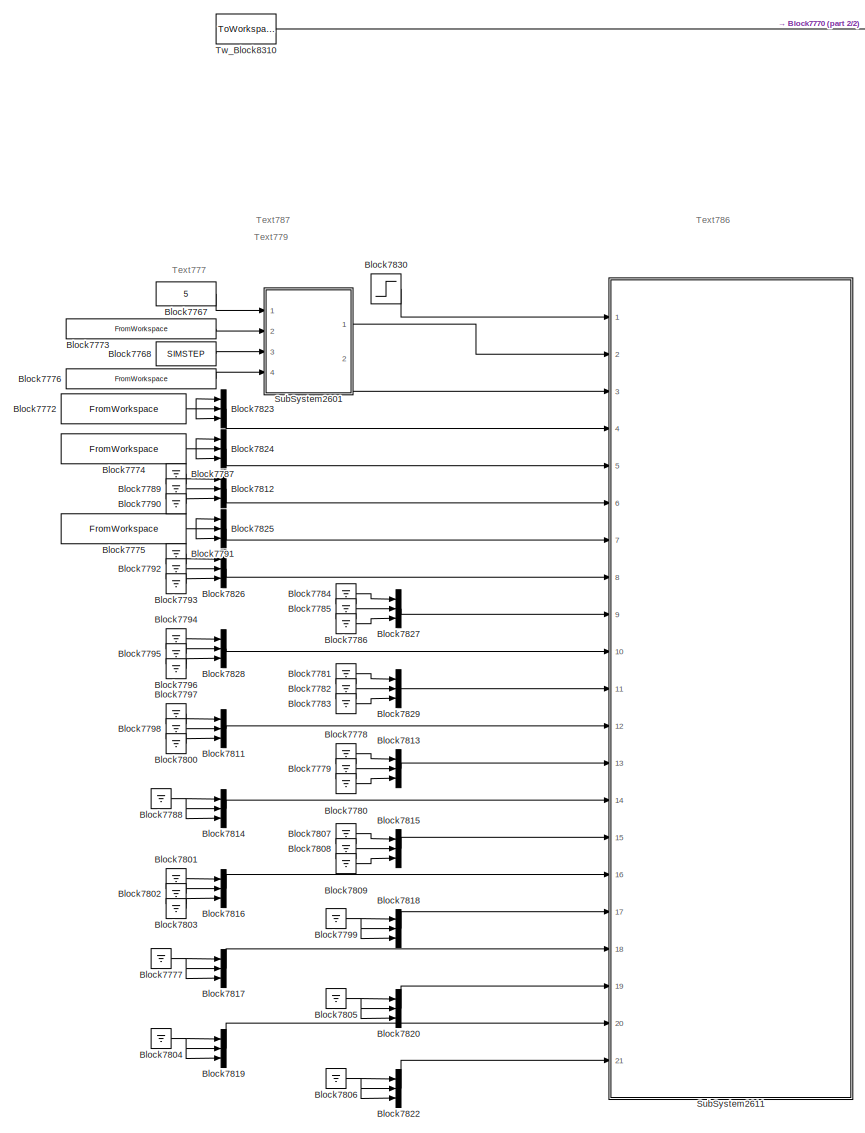
[diagram: root canvas - part 1/2, center side, full height]
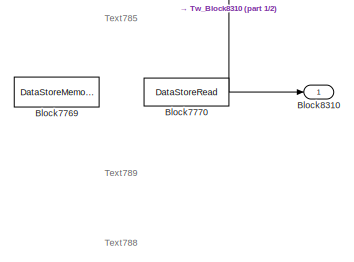
[diagram: root canvas - part 2/2, top right region]
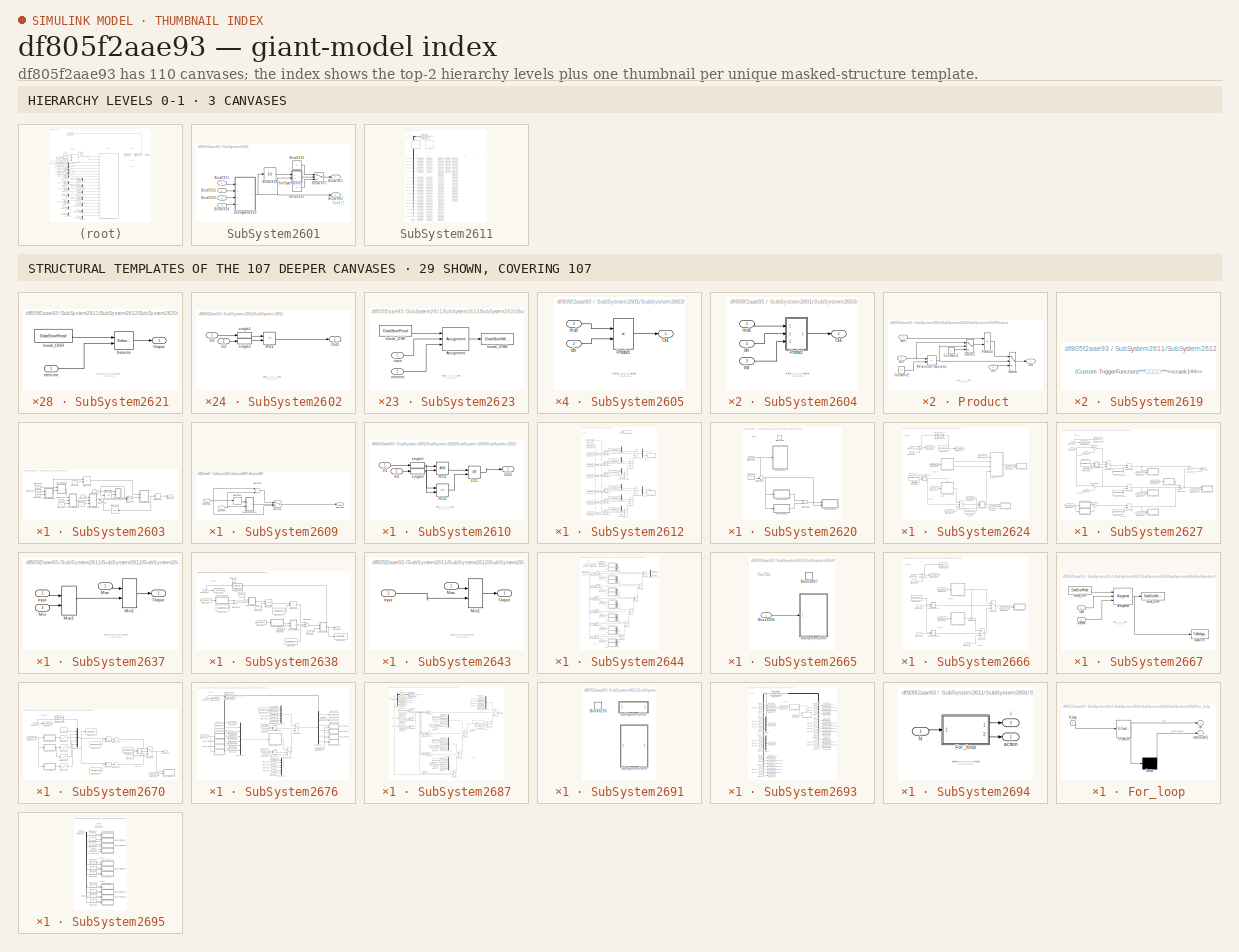
[diagram: thumbnail index - top-2 hierarchy levels (3 canvases) + 29 structural-template representatives of the remaining 107 canvases]
MODEL slx_df805f2aae93
KIND model
WORKSPACE source: MAT-file member
WORKSPACE autoc_mdd_data01: struct (value not decoded)
BLOCK [Constant] Block7767
  OutDataTypeStr = double
  SampleTime = -1
  UserDataPersistent = on
  Value = 5
BLOCK [Constant] Block7768
  OutDataTypeStr = double
  SampleTime = -1
  UserDataPersistent = on
  Value = SIMSTEP
BLOCK [DataStoreMemory] Block7769
  DataStoreName = DSM304
  InitialValue = [0 0 0]
  OutDataTypeStr = double
BLOCK [DataStoreRead] Block7770
  DataStoreName = DSM304
  Ports = [0, 1]
BLOCK [FromWorkspace] Block7772
  Interpolate = off
  OutputAfterFinalValue = Holding final value
  SampleTime = SIMSTEP
  UserDataPersistent = on
  VariableName = [ TIME , SimData14 ]
BLOCK [FromWorkspace] Block7773
  Interpolate = off
  OutputAfterFinalValue = Holding final value
  SampleTime = SIMSTEP
  UserDataPersistent = on
  VariableName = [ TIME , SimData15 ]
BLOCK [FromWorkspace] Block7774
  Interpolate = off
  OutputAfterFinalValue = Holding final value
  SampleTime = SIMSTEP
  UserDataPersistent = on
  VariableName = [ TIME , SimData16 ]
BLOCK [FromWorkspace] Block7775
  Interpolate = off
  OutputAfterFinalValue = Holding final value
  SampleTime = SIMSTEP
  UserDataPersistent = on
  VariableName = [ TIME , SimData17 ]
BLOCK [FromWorkspace] Block7776
  Interpolate = off
  OutputAfterFinalValue = Holding final value
  SampleTime = SIMSTEP
  UserDataPersistent = on
  VariableName = [ TIME , SimData18 ]
BLOCK [Ground] Block7777
BLOCK [Ground] Block7778
BLOCK [Ground] Block7779
BLOCK [Ground] Block7780
BLOCK [Ground] Block7781
BLOCK [Ground] Block7782
BLOCK [Ground] Block7783
BLOCK [Ground] Block7784
BLOCK [Ground] Block7785
BLOCK [Ground] Block7786
BLOCK [Ground] Block7787
BLOCK [Ground] Block7788
BLOCK [Ground] Block7789
BLOCK [Ground] Block7790
BLOCK [Ground] Block7791
BLOCK [Ground] Block7792
BLOCK [Ground] Block7793
BLOCK [Ground] Block7794
BLOCK [Ground] Block7795
BLOCK [Ground] Block7796
BLOCK [Ground] Block7797
BLOCK [Ground] Block7798
BLOCK [Ground] Block7799
BLOCK [Ground] Block7800
BLOCK [Ground] Block7801
BLOCK [Ground] Block7802
BLOCK [Ground] Block7803
BLOCK [Ground] Block7804
BLOCK [Ground] Block7805
BLOCK [Ground] Block7806
BLOCK [Ground] Block7807
BLOCK [Ground] Block7808
BLOCK [Ground] Block7809
BLOCK [Mux] Block7811
  DisplayOption = bar
  Inputs = 3
  Ports = [3, 1]
BLOCK [Mux] Block7812
  DisplayOption = bar
  Inputs = 3
  Ports = [3, 1]
BLOCK [Mux] Block7813
  DisplayOption = bar
  Inputs = 3
  Ports = [3, 1]
BLOCK [Mux] Block7814
  DisplayOption = bar
  Inputs = 3
  Ports = [3, 1]
BLOCK [Mux] Block7815
  DisplayOption = bar
  Inputs = 3
  Ports = [3, 1]
BLOCK [Mux] Block7816
  DisplayOption = bar
  Inputs = 3
  Ports = [3, 1]
BLOCK [Mux] Block7817
  DisplayOption = bar
  Inputs = 3
  Ports = [3, 1]
BLOCK [Mux] Block7818
  DisplayOption = bar
  Inputs = 3
  Ports = [3, 1]
BLOCK [Mux] Block7819
  DisplayOption = bar
  Inputs = 3
  Ports = [3, 1]
BLOCK [Mux] Block7820
  DisplayOption = bar
  Inputs = 3
  Ports = [3, 1]
BLOCK [Mux] Block7822
  DisplayOption = bar
  Inputs = 3
  Ports = [3, 1]
BLOCK [Mux] Block7823
  DisplayOption = bar
  Inputs = 3
  Ports = [3, 1]
BLOCK [Mux] Block7824
  DisplayOption = bar
  Inputs = 3
  Ports = [3, 1]
BLOCK [Mux] Block7825
  DisplayOption = bar
  Inputs = 3
  Ports = [3, 1]
BLOCK [Mux] Block7826
  DisplayOption = bar
  Inputs = 3
  Ports = [3, 1]
BLOCK [Mux] Block7827
  DisplayOption = bar
  Inputs = 3
  Ports = [3, 1]
BLOCK [Mux] Block7828
  DisplayOption = bar
  Inputs = 3
  Ports = [3, 1]
BLOCK [Mux] Block7829
  DisplayOption = bar
  Inputs = 3
  Ports = [3, 1]
BLOCK [Step] Block7830
  SampleTime = SIMSTEP
  Time = SIMSTEP
BLOCK [Outport] Block8310
  IconDisplay = Port number
  SamplingMode = Sample based
  SignalType = real
BLOCK [SubSystem] SubSystem2601
  Ports = [4, 2]
  RequestExecContextInheritance = off
BLOCK [Inport] SubSystem2601/Block7831
  IconDisplay = Port number
BLOCK [Inport] SubSystem2601/Block7832
  IconDisplay = Port number
  Port = 2
BLOCK [Inport] SubSystem2601/Block7833
  IconDisplay = Port number
  Port = 3
BLOCK [Inport] SubSystem2601/Block7834
  IconDisplay = Port number
  Port = 4
BLOCK [Constant] SubSystem2601/Block7835
  OutDataTypeStr = double
  SampleTime = -1
  UserDataPersistent = on
  Value = 0
BLOCK [Constant] SubSystem2601/Block7836
  OutDataTypeStr = double
  SampleTime = -1
  UserDataPersistent = on
BLOCK [Switch] SubSystem2601/Block7837
  RndMeth = Zero
  Threshold = 0.5
BLOCK [UnitDelay] SubSystem2601/Block7838
  SampleTime = -1
  UserDataPersistent = on
BLOCK [Outport] SubSystem2601/Block7861
  IconDisplay = Port number
BLOCK [Outport] SubSystem2601/Block7862
  IconDisplay = Port number
  Port = 2
BLOCK [SubSystem] SubSystem2601/SubSystem2602
  Ports = [2, 1]
  RequestExecContextInheritance = off
BLOCK [Inport] SubSystem2601/SubSystem2602/In1
  IconDisplay = Port number
  SamplingMode = Sample based
  SignalType = real
BLOCK [Inport] SubSystem2601/SubSystem2602/In2
  IconDisplay = Port number
  Port = 2
  SamplingMode = Sample based
  SignalType = real
BLOCK [Outport] SubSystem2601/SubSystem2602/Out1
  IconDisplay = Port number
  SamplingMode = Sample based
  SignalType = real
BLOCK [RelationalOperator] SubSystem2601/SubSystem2602/RO1
  Operator = ~=
  Ports = [2, 1]
BLOCK [DataTypeConversion] SubSystem2601/SubSystem2602/single1
  OutDataTypeStr = single
BLOCK [DataTypeConversion] SubSystem2601/SubSystem2602/single2
  OutDataTypeStr = single
BLOCK [SubSystem] SubSystem2601/SubSystem2603
  Ports = [4, 1]
  RequestExecContextInheritance = off
BLOCK [Inport] SubSystem2601/SubSystem2603/Block7839
  IconDisplay = Port number
BLOCK [Inport] SubSystem2601/SubSystem2603/Block7840
  IconDisplay = Port number
  Port = 2
  SamplingMode = Sample based
  SignalType = real
BLOCK [Inport] SubSystem2601/SubSystem2603/Block7841
  IconDisplay = Port number
  Port = 3
  SamplingMode = Sample based
  SignalType = real
BLOCK [Inport] SubSystem2601/SubSystem2603/Block7842
  IconDisplay = Port number
  Port = 4
  SamplingMode = Sample based
  SignalType = real
BLOCK [Constant] SubSystem2601/SubSystem2603/Block7843
  OutDataTypeStr = double
  SampleTime = -1
  UserDataPersistent = on
  Value = 60
BLOCK [Constant] SubSystem2601/SubSystem2603/Block7844
  OutDataTypeStr = double
  SampleTime = -1
  UserDataPersistent = on
  Value = 0
BLOCK [Constant] SubSystem2601/SubSystem2603/Block7845
  OutDataTypeStr = double
  SampleTime = -1
  UserDataPersistent = on
  Value = 360
BLOCK [Constant] SubSystem2601/SubSystem2603/Block7846
  OutDataTypeStr = double
  SampleTime = -1
  UserDataPersistent = on
  Value = 0
BLOCK [Constant] SubSystem2601/SubSystem2603/Block7847
  OutDataTypeStr = double
  SampleTime = -1
  UserDataPersistent = on
  Value = 2
BLOCK [Product] SubSystem2601/SubSystem2603/Block7848
  Inputs = **
  Ports = [2, 1]
BLOCK [Rounding] SubSystem2601/SubSystem2603/Block7849
  Operator = round
BLOCK [Sum] SubSystem2601/SubSystem2603/Block7850
  IconShape = round
  Inputs = |++
  OutDataTypeStr = double
  Ports = [2, 1]
  RndMeth = Zero
BLOCK [Switch] SubSystem2601/SubSystem2603/Block7851
  RndMeth = Zero
  Threshold = 0.5
BLOCK [UnitDelay] SubSystem2601/SubSystem2603/Block7852
  SampleTime = -1
  UserDataPersistent = on
BLOCK [UnitDelay] SubSystem2601/SubSystem2603/Block7853
  SampleTime = -1
  UserDataPersistent = on
BLOCK [Outport] SubSystem2601/SubSystem2603/Block7860
  IconDisplay = Port number
  SamplingMode = Sample based
  SignalType = real
BLOCK [SubSystem] SubSystem2601/SubSystem2603/SubSystem2604
  OpenFcn = warndlg('変更禁止!');
  Ports = [3, 1]
  RequestExecContextInheritance = off
  TreatAsAtomicUnit = on
  UserDataPersistent = on
BLOCK [Outport] SubSystem2601/SubSystem2603/SubSystem2604/Out
  IconDisplay = Port number
BLOCK [SubSystem] SubSystem2601/SubSystem2603/SubSystem2604/Product
  Ports = [3, 1]
  RTWSystemCode = Inline
  RequestExecContextInheritance = off
  TreatAsAtomicUnit = on
BLOCK [Constant] SubSystem2601/SubSystem2603/SubSystem2604/Product/Constant1
  OutDataTypeStr = Inherit: Inherit via back propagation
BLOCK [Constant] SubSystem2601/SubSystem2603/SubSystem2604/Product/Constant2
  OutDataTypeStr = Inherit: Inherit via back propagation
  Value = 0
BLOCK [Outport] SubSystem2601/SubSystem2603/SubSystem2604/Product/Out
  IconDisplay = Port number
BLOCK [Product] SubSystem2601/SubSystem2603/SubSystem2604/Product/Product
  Inputs = */
  Ports = [2, 1]
BLOCK [RelationalOperator] SubSystem2601/SubSystem2603/SubSystem2604/Product/Relational Operator
  Operator = ~=
  Ports = [2, 1]
BLOCK [Switch] SubSystem2601/SubSystem2603/SubSystem2604/Product/Switch
  Threshold = 0.5
BLOCK [Switch] SubSystem2601/SubSystem2603/SubSystem2604/Product/Switch1
  Threshold = 0.5
BLOCK [Inport] SubSystem2601/SubSystem2603/SubSystem2604/Product/div
  IconDisplay = Port number
  Port = 2
BLOCK [Inport] SubSystem2601/SubSystem2603/SubSystem2604/Product/init
  IconDisplay = Port number
  Port = 3
BLOCK [Inport] SubSystem2601/SubSystem2603/SubSystem2604/Product/mult
  IconDisplay = Port number
BLOCK [Inport] SubSystem2601/SubSystem2603/SubSystem2604/div
  IconDisplay = Port number
  Port = 2
BLOCK [Inport] SubSystem2601/SubSystem2603/SubSystem2604/init
  IconDisplay = Port number
  Port = 3
BLOCK [Inport] SubSystem2601/SubSystem2603/SubSystem2604/mult
  IconDisplay = Port number
BLOCK [SubSystem] SubSystem2601/SubSystem2603/SubSystem2605
  OpenFcn = warndlg('変更禁止!');
  Ports = [2, 1]
  RequestExecContextInheritance = off
  TreatAsAtomicUnit = on
  UserDataPersistent = on
BLOCK [Outport] SubSystem2601/SubSystem2603/SubSystem2605/Out
  IconDisplay = Port number
BLOCK [Product] SubSystem2601/SubSystem2603/SubSystem2605/Product
  Inputs = */
  Ports = [2, 1]
BLOCK [Inport] SubSystem2601/SubSystem2603/SubSystem2605/div
  IconDisplay = Port number
  Port = 2
BLOCK [Inport] SubSystem2601/SubSystem2603/SubSystem2605/mult
  IconDisplay = Port number
BLOCK [SubSystem] SubSystem2601/SubSystem2603/SubSystem2606
  OpenFcn = warndlg('変更禁止!');
  Ports = [3, 1]
  RequestExecContextInheritance = off
  TreatAsAtomicUnit = on
  UserDataPersistent = on
BLOCK [Outport] SubSystem2601/SubSystem2603/SubSystem2606/Out
  IconDisplay = Port number
BLOCK [SubSystem] SubSystem2601/SubSystem2603/SubSystem2606/Product
  Ports = [3, 1]
  RTWSystemCode = Inline
  RequestExecContextInheritance = off
  TreatAsAtomicUnit = on
BLOCK [Constant] SubSystem2601/SubSystem2603/SubSystem2606/Product/Constant1
  OutDataTypeStr = Inherit: Inherit via back propagation
BLOCK [Constant] SubSystem2601/SubSystem2603/SubSystem2606/Product/Constant2
  OutDataTypeStr = Inherit: Inherit via back propagation
  Value = 0
BLOCK [Outport] SubSystem2601/SubSystem2603/SubSystem2606/Product/Out
  IconDisplay = Port number
BLOCK [Product] SubSystem2601/SubSystem2603/SubSystem2606/Product/Product
  Inputs = */
  Ports = [2, 1]
BLOCK [RelationalOperator] SubSystem2601/SubSystem2603/SubSystem2606/Product/Relational Operator
  Operator = ~=
  Ports = [2, 1]
BLOCK [Switch] SubSystem2601/SubSystem2603/SubSystem2606/Product/Switch
  Threshold = 0.5
BLOCK [Switch] SubSystem2601/SubSystem2603/SubSystem2606/Product/Switch1
  Threshold = 0.5
BLOCK [Inport] SubSystem2601/SubSystem2603/SubSystem2606/Product/div
  IconDisplay = Port number
  Port = 2
BLOCK [Inport] SubSystem2601/SubSystem2603/SubSystem2606/Product/init
  IconDisplay = Port number
  Port = 3
BLOCK [Inport] SubSystem2601/SubSystem2603/SubSystem2606/Product/mult
  IconDisplay = Port number
BLOCK [Inport] SubSystem2601/SubSystem2603/SubSystem2606/div
  IconDisplay = Port number
  Port = 2
BLOCK [Inport] SubSystem2601/SubSystem2603/SubSystem2606/init
  IconDisplay = Port number
  Port = 3
BLOCK [Inport] SubSystem2601/SubSystem2603/SubSystem2606/mult
  IconDisplay = Port number
BLOCK [SubSystem] SubSystem2601/SubSystem2603/SubSystem2607
  OpenFcn = warndlg('変更禁止!');
  Ports = [2, 1]
  RequestExecContextInheritance = off
  TreatAsAtomicUnit = on
  UserDataPersistent = on
BLOCK [Outport] SubSystem2601/SubSystem2603/SubSystem2607/Out
  IconDisplay = Port number
BLOCK [Product] SubSystem2601/SubSystem2603/SubSystem2607/Product
  Inputs = */
  Ports = [2, 1]
BLOCK [Inport] SubSystem2601/SubSystem2603/SubSystem2607/div
  IconDisplay = Port number
  Port = 2
BLOCK [Inport] SubSystem2601/SubSystem2603/SubSystem2607/mult
  IconDisplay = Port number
BLOCK [SubSystem] SubSystem2601/SubSystem2603/SubSystem2608
  Ports = [2, 1]
  RequestExecContextInheritance = off
BLOCK [Inport] SubSystem2601/SubSystem2603/SubSystem2608/In1
  IconDisplay = Port number
  SamplingMode = Sample based
  SignalType = real
BLOCK [Inport] SubSystem2601/SubSystem2603/SubSystem2608/In2
  IconDisplay = Port number
  Port = 2
  SamplingMode = Sample based
  SignalType = real
BLOCK [Outport] SubSystem2601/SubSystem2603/SubSystem2608/Out1
  IconDisplay = Port number
  SamplingMode = Sample based
  SignalType = real
BLOCK [RelationalOperator] SubSystem2601/SubSystem2603/SubSystem2608/RO1
  Operator = ~=
  Ports = [2, 1]
BLOCK [DataTypeConversion] SubSystem2601/SubSystem2603/SubSystem2608/single1
  OutDataTypeStr = single
BLOCK [DataTypeConversion] SubSystem2601/SubSystem2603/SubSystem2608/single2
  OutDataTypeStr = single
BLOCK [SubSystem] SubSystem2601/SubSystem2603/SubSystem2609
  Ports = [2, 1]
  RTWSystemCode = Inline
  RequestExecContextInheritance = off
BLOCK [Inport] SubSystem2601/SubSystem2603/SubSystem2609/Block7854
  IconDisplay = Port number
  SamplingMode = Sample based
  SignalType = real
BLOCK [Inport] SubSystem2601/SubSystem2603/SubSystem2609/Block7855
  IconDisplay = Port number
  Port = 2
  SamplingMode = Sample based
  SignalType = real
BLOCK [Rounding] SubSystem2601/SubSystem2603/SubSystem2609/Block7856
  Operator = round
BLOCK [Sum] SubSystem2601/SubSystem2603/SubSystem2609/Block7857
  Inputs = +-
  OutDataTypeStr = double
  Ports = [2, 1]
  RndMeth = Zero
BLOCK [Switch] SubSystem2601/SubSystem2603/SubSystem2609/Block7858
  RndMeth = Zero
  Threshold = 0.5
BLOCK [Outport] SubSystem2601/SubSystem2603/SubSystem2609/Block7859
  IconDisplay = Port number
  SamplingMode = Sample based
  SignalType = real
BLOCK [SubSystem] SubSystem2601/SubSystem2603/SubSystem2609/SubSystem2610
  Ports = [2, 1]
  RequestExecContextInheritance = off
BLOCK [Inport] SubSystem2601/SubSystem2603/SubSystem2609/SubSystem2610/In1
  IconDisplay = Port number
  SamplingMode = Sample based
  SignalType = real
BLOCK [Inport] SubSystem2601/SubSystem2603/SubSystem2609/SubSystem2610/In2
  IconDisplay = Port number
  Port = 2
  SamplingMode = Sample based
  SignalType = real
BLOCK [Logic] SubSystem2601/SubSystem2603/SubSystem2609/SubSystem2610/LO1
  Operator = OR
  Ports = [2, 1]
BLOCK [Outport] SubSystem2601/SubSystem2603/SubSystem2609/SubSystem2610/Out1
  IconDisplay = Port number
  SamplingMode = Sample based
  SignalType = real
BLOCK [RelationalOperator] SubSystem2601/SubSystem2603/SubSystem2609/SubSystem2610/RO1
  Ports = [2, 1]
BLOCK [RelationalOperator] SubSystem2601/SubSystem2603/SubSystem2609/SubSystem2610/RO2
  Operator = ==
  Ports = [2, 1]
BLOCK [DataTypeConversion] SubSystem2601/SubSystem2603/SubSystem2609/SubSystem2610/single1
  OutDataTypeStr = single
BLOCK [DataTypeConversion] SubSystem2601/SubSystem2603/SubSystem2609/SubSystem2610/single2
  OutDataTypeStr = single
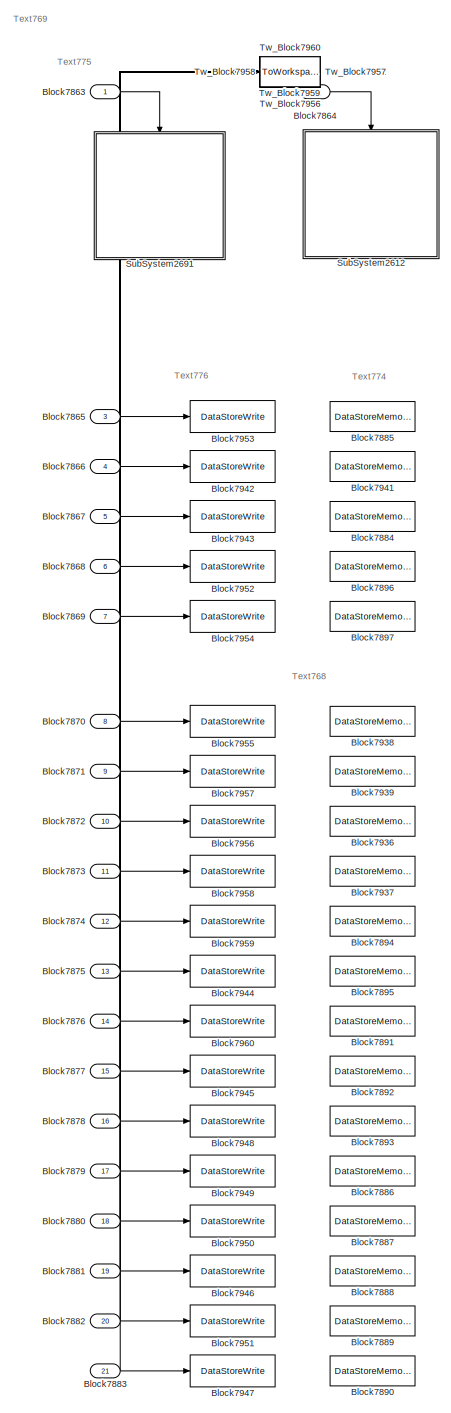
[diagram: SubSystem2611 - part 1/2, left side, full height]
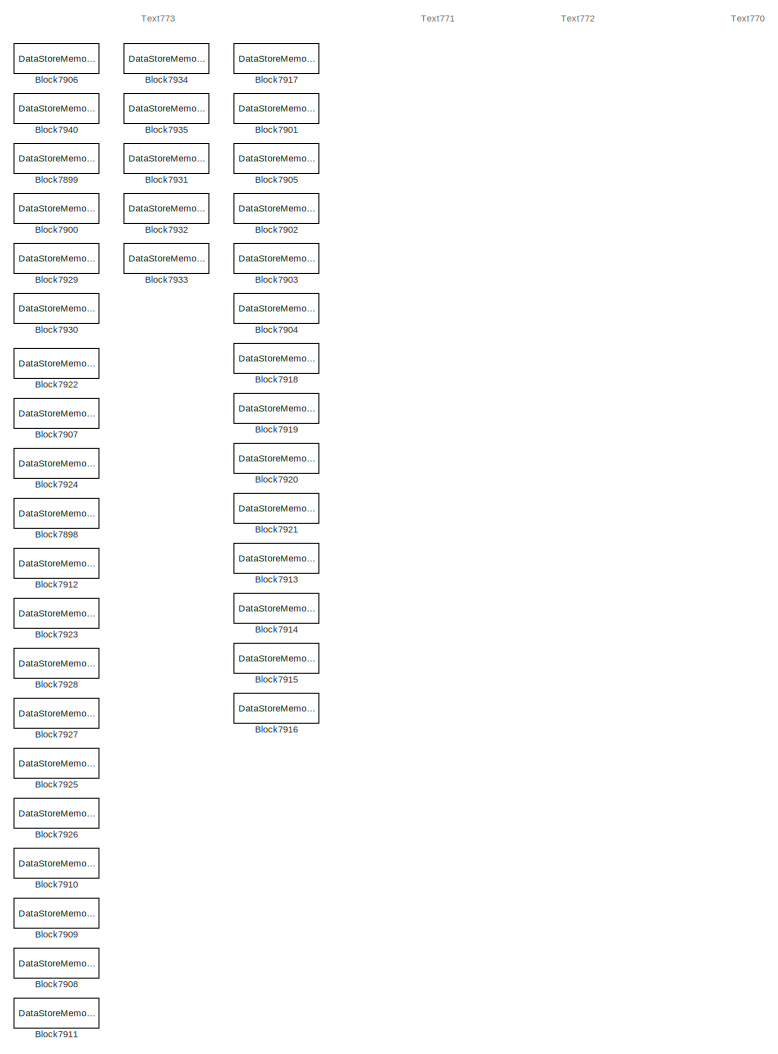
[diagram: SubSystem2611 - part 2/2, right side, full height]
BLOCK [SubSystem] SubSystem2611
  Ports = [21]
  RequestExecContextInheritance = off
BLOCK [Inport] SubSystem2611/Block7863
  IconDisplay = Port number
  SamplingMode = Sample based
  SignalType = real
BLOCK [Inport] SubSystem2611/Block7864
  IconDisplay = Port number
  Port = 2
  SamplingMode = Sample based
  SignalType = real
BLOCK [Inport] SubSystem2611/Block7865
  IconDisplay = Port number
  Port = 3
  SamplingMode = Sample based
  SignalType = real
BLOCK [Inport] SubSystem2611/Block7866
  IconDisplay = Port number
  Port = 4
  SamplingMode = Sample based
  SignalType = real
BLOCK [Inport] SubSystem2611/Block7867
  IconDisplay = Port number
  Port = 5
  SamplingMode = Sample based
  SignalType = real
BLOCK [Inport] SubSystem2611/Block7868
  IconDisplay = Port number
  Port = 6
  SamplingMode = Sample based
  SignalType = real
BLOCK [Inport] SubSystem2611/Block7869
  IconDisplay = Port number
  Port = 7
  SamplingMode = Sample based
  SignalType = real
BLOCK [Inport] SubSystem2611/Block7870
  IconDisplay = Port number
  Port = 8
  SamplingMode = Sample based
  SignalType = real
BLOCK [Inport] SubSystem2611/Block7871
  IconDisplay = Port number
  Port = 9
  SamplingMode = Sample based
  SignalType = real
BLOCK [Inport] SubSystem2611/Block7872
  IconDisplay = Port number
  Port = 10
  SamplingMode = Sample based
  SignalType = real
BLOCK [Inport] SubSystem2611/Block7873
  IconDisplay = Port number
  Port = 11
  SamplingMode = Sample based
  SignalType = real
BLOCK [Inport] SubSystem2611/Block7874
  IconDisplay = Port number
  Port = 12
  SamplingMode = Sample based
  SignalType = real
BLOCK [Inport] SubSystem2611/Block7875
  IconDisplay = Port number
  Port = 13
  SamplingMode = Sample based
  SignalType = real
BLOCK [Inport] SubSystem2611/Block7876
  IconDisplay = Port number
  Port = 14
  SamplingMode = Sample based
  SignalType = real
BLOCK [Inport] SubSystem2611/Block7877
  IconDisplay = Port number
  Port = 15
  SamplingMode = Sample based
  SignalType = real
BLOCK [Inport] SubSystem2611/Block7878
  IconDisplay = Port number
  Port = 16
  SamplingMode = Sample based
  SignalType = real
BLOCK [Inport] SubSystem2611/Block7879
  IconDisplay = Port number
  Port = 17
  SamplingMode = Sample based
  SignalType = real
BLOCK [Inport] SubSystem2611/Block7880
  IconDisplay = Port number
  Port = 18
  SamplingMode = Sample based
  SignalType = real
BLOCK [Inport] SubSystem2611/Block7881
  IconDisplay = Port number
  Port = 19
  SamplingMode = Sample based
  SignalType = real
BLOCK [Inport] SubSystem2611/Block7882
  IconDisplay = Port number
  Port = 20
  SamplingMode = Sample based
  SignalType = real
BLOCK [Inport] SubSystem2611/Block7883
  IconDisplay = Port number
  Port = 21
  SamplingMode = Sample based
  SignalType = real
BLOCK [DataStoreMemory] SubSystem2611/Block7884
  DataStoreName = DSM36
  InitialValue = [0 0 0]
  OutDataTypeStr = double
BLOCK [DataStoreMemory] SubSystem2611/Block7885
  DataStoreName = DSM43
  OutDataTypeStr = double
BLOCK [DataStoreMemory] SubSystem2611/Block7886
  DataStoreName = DSM102
  InitialValue = [0 0 0]
  OutDataTypeStr = double
BLOCK [DataStoreMemory] SubSystem2611/Block7887
  DataStoreName = DSM104
  InitialValue = [0 0 0]
  OutDataTypeStr = double
BLOCK [DataStoreMemory] SubSystem2611/Block7888
  DataStoreName = DSM106
  InitialValue = [0 0 0]
  OutDataTypeStr = double
BLOCK [DataStoreMemory] SubSystem2611/Block7889
  DataStoreName = DSM108
  InitialValue = [0 0 0]
  OutDataTypeStr = double
BLOCK [DataStoreMemory] SubSystem2611/Block7890
  DataStoreName = DSM110
  InitialValue = [0 0 0]
  OutDataTypeStr = double
BLOCK [DataStoreMemory] SubSystem2611/Block7891
  DataStoreName = DSM112
  InitialValue = [0 0 0]
  OutDataTypeStr = double
BLOCK [DataStoreMemory] SubSystem2611/Block7892
  DataStoreName = DSM115
  InitialValue = [0 0 0]
  OutDataTypeStr = double
BLOCK [DataStoreMemory] SubSystem2611/Block7893
  DataStoreName = DSM116
  InitialValue = [0 0 0]
  OutDataTypeStr = double
BLOCK [DataStoreMemory] SubSystem2611/Block7894
  DataStoreName = DSM119
  InitialValue = [0 0 0]
  OutDataTypeStr = double
BLOCK [DataStoreMemory] SubSystem2611/Block7895
  DataStoreName = DSM120
  InitialValue = [0 0 0]
  OutDataTypeStr = double
BLOCK [DataStoreMemory] SubSystem2611/Block7896
  DataStoreName = DSM147
  InitialValue = [0 0 0]
  OutDataTypeStr = double
BLOCK [DataStoreMemory] SubSystem2611/Block7897
  DataStoreName = DSM318
  InitialValue = [0 0 0]
  OutDataTypeStr = double
BLOCK [DataStoreMemory] SubSystem2611/Block7898
  DataStoreName = DSM319
  InitialValue = [0 0 0]
  OutDataTypeStr = double
BLOCK [DataStoreMemory] SubSystem2611/Block7899
  DataStoreName = DSM320
  InitialValue = [0 0 0]
  OutDataTypeStr = double
BLOCK [DataStoreMemory] SubSystem2611/Block7900
  DataStoreName = DSM321
  InitialValue = [0 0 0]
  OutDataTypeStr = double
BLOCK [DataStoreMemory] SubSystem2611/Block7901
  DataStoreName = DSM322
  OutDataTypeStr = double
BLOCK [DataStoreMemory] SubSystem2611/Block7902
  DataStoreName = DSM323
  OutDataTypeStr = double
BLOCK [DataStoreMemory] SubSystem2611/Block7903
  DataStoreName = DSM324
  OutDataTypeStr = double
BLOCK [DataStoreMemory] SubSystem2611/Block7904
  DataStoreName = DSM325
  OutDataTypeStr = double
BLOCK [DataStoreMemory] SubSystem2611/Block7905
  DataStoreName = DSM326
  OutDataTypeStr = double
BLOCK [DataStoreMemory] SubSystem2611/Block7906
  DataStoreName = DSM327
  OutDataTypeStr = double
BLOCK [DataStoreMemory] SubSystem2611/Block7907
  DataStoreName = DSM328
  OutDataTypeStr = double
BLOCK [DataStoreMemory] SubSystem2611/Block7908
  DataStoreName = DSM329
  OutDataTypeStr = double
BLOCK [DataStoreMemory] SubSystem2611/Block7909
  DataStoreName = DSM330
  OutDataTypeStr = double
BLOCK [DataStoreMemory] SubSystem2611/Block7910
  DataStoreName = DSM331
  OutDataTypeStr = double
BLOCK [DataStoreMemory] SubSystem2611/Block7911
  DataStoreName = DSM332
  OutDataTypeStr = double
BLOCK [DataStoreMemory] SubSystem2611/Block7912
  DataStoreName = DSM333
  InitialValue = [0 0 0]
  OutDataTypeStr = double
BLOCK [DataStoreMemory] SubSystem2611/Block7913
  DataStoreName = DSM334
  InitialValue = [0 0 0]
  OutDataTypeStr = double
BLOCK [DataStoreMemory] SubSystem2611/Block7914
  DataStoreName = DSM335
  InitialValue = [0 0 0]
  OutDataTypeStr = double
BLOCK [DataStoreMemory] SubSystem2611/Block7915
  DataStoreName = DSM336
  InitialValue = [0 0 0]
  OutDataTypeStr = double
BLOCK [DataStoreMemory] SubSystem2611/Block7916
  DataStoreName = DSM337
  InitialValue = [0 0 0]
  OutDataTypeStr = double
BLOCK [DataStoreMemory] SubSystem2611/Block7917
  DataStoreName = DSM338
  OutDataTypeStr = double
BLOCK [DataStoreMemory] SubSystem2611/Block7918
  DataStoreName = DSM339
  OutDataTypeStr = double
BLOCK [DataStoreMemory] SubSystem2611/Block7919
  DataStoreName = DSM340
  OutDataTypeStr = double
BLOCK [DataStoreMemory] SubSystem2611/Block7920
  DataStoreName = DSM341
  OutDataTypeStr = double
BLOCK [DataStoreMemory] SubSystem2611/Block7921
  DataStoreName = DSM342
  OutDataTypeStr = double
BLOCK [DataStoreMemory] SubSystem2611/Block7922
  DataStoreName = DSM343
  InitialValue = [ 0 0 0 0 0]
  OutDataTypeStr = double
BLOCK [DataStoreMemory] SubSystem2611/Block7923
  DataStoreName = DSM344
  OutDataTypeStr = double
BLOCK [DataStoreMemory] SubSystem2611/Block7924
  DataStoreName = DSM345
  OutDataTypeStr = double
BLOCK [DataStoreMemory] SubSystem2611/Block7925
  DataStoreName = DSM346
  InitialValue = [0 0 0]
  OutDataTypeStr = double
BLOCK [DataStoreMemory] SubSystem2611/Block7926
  DataStoreName = DSM347
  InitialValue = [0 0 0]
  OutDataTypeStr = double
BLOCK [DataStoreMemory] SubSystem2611/Block7927
  DataStoreName = DSM348
  InitialValue = [0 0 0]
  OutDataTypeStr = double
BLOCK [DataStoreMemory] SubSystem2611/Block7928
  DataStoreName = DSM349
  InitialValue = [0 0 0]
  OutDataTypeStr = double
BLOCK [DataStoreMemory] SubSystem2611/Block7929
  DataStoreName = DSM350
  InitialValue = [ 0 0 0 0 0]
  OutDataTypeStr = double
BLOCK [DataStoreMemory] SubSystem2611/Block7930
  DataStoreName = DSM351
  InitialValue = [ 0 0 0 0 0]
  OutDataTypeStr = double
BLOCK [DataStoreMemory] SubSystem2611/Block7931
  DataStoreName = DSM352
  OutDataTypeStr = double
BLOCK [DataStoreMemory] SubSystem2611/Block7932
  DataStoreName = DSM353
  OutDataTypeStr = double
BLOCK [DataStoreMemory] SubSystem2611/Block7933
  DataStoreName = DSM354
  OutDataTypeStr = double
BLOCK [DataStoreMemory] SubSystem2611/Block7934
  DataStoreName = DSM355
  OutDataTypeStr = double
BLOCK [DataStoreMemory] SubSystem2611/Block7935
  DataStoreName = DSM356
  OutDataTypeStr = double
BLOCK [DataStoreMemory] SubSystem2611/Block7936
  DataStoreName = DSM122
  InitialValue = [0 0 0]
  OutDataTypeStr = double
BLOCK [DataStoreMemory] SubSystem2611/Block7937
  DataStoreName = DSM123
  InitialValue = [0 0 0]
  OutDataTypeStr = double
BLOCK [DataStoreMemory] SubSystem2611/Block7938
  DataStoreName = DSM125
  InitialValue = [0 0 0]
  OutDataTypeStr = double
BLOCK [DataStoreMemory] SubSystem2611/Block7939
  DataStoreName = DSM126
  InitialValue = [0 0 0]
  OutDataTypeStr = double
BLOCK [DataStoreMemory] SubSystem2611/Block7940
  DataStoreName = DSM361
  OutDataTypeStr = double
BLOCK [DataStoreMemory] SubSystem2611/Block7941
  DataStoreName = DSM97
  InitialValue = [0 0 0]
  OutDataTypeStr = double
BLOCK [DataStoreWrite] SubSystem2611/Block7942
  DataStoreName = DSM97
  Ports = [1]
  Priority = 1
BLOCK [DataStoreWrite] SubSystem2611/Block7943
  DataStoreName = DSM36
  Ports = [1]
  Priority = 1
BLOCK [DataStoreWrite] SubSystem2611/Block7944
  DataStoreName = DSM120
  Ports = [1]
  Priority = 1
BLOCK [DataStoreWrite] SubSystem2611/Block7945
  DataStoreName = DSM115
  Ports = [1]
  Priority = 1
BLOCK [DataStoreWrite] SubSystem2611/Block7946
  DataStoreName = DSM106
  Ports = [1]
  Priority = 1
BLOCK [DataStoreWrite] SubSystem2611/Block7947
  DataStoreName = DSM110
  Ports = [1]
  Priority = 1
BLOCK [DataStoreWrite] SubSystem2611/Block7948
  DataStoreName = DSM116
  Ports = [1]
  Priority = 1
BLOCK [DataStoreWrite] SubSystem2611/Block7949
  DataStoreName = DSM102
  Ports = [1]
  Priority = 1
BLOCK [DataStoreWrite] SubSystem2611/Block7950
  DataStoreName = DSM104
  Ports = [1]
  Priority = 1
BLOCK [DataStoreWrite] SubSystem2611/Block7951
  DataStoreName = DSM108
  Ports = [1]
  Priority = 1
BLOCK [DataStoreWrite] SubSystem2611/Block7952
  DataStoreName = DSM147
  Ports = [1]
  Priority = 1
BLOCK [DataStoreWrite] SubSystem2611/Block7953
  DataStoreName = DSM43
  Ports = [1]
  Priority = 1
BLOCK [DataStoreWrite] SubSystem2611/Block7954
  DataStoreName = DSM318
  Ports = [1]
  Priority = 1
BLOCK [DataStoreWrite] SubSystem2611/Block7955
  DataStoreName = DSM125
  Ports = [1]
  Priority = 1
BLOCK [DataStoreWrite] SubSystem2611/Block7956
  DataStoreName = DSM122
  Ports = [1]
  Priority = 1
BLOCK [DataStoreWrite] SubSystem2611/Block7957
  DataStoreName = DSM126
  Ports = [1]
  Priority = 1
BLOCK [DataStoreWrite] SubSystem2611/Block7958
  DataStoreName = DSM123
  Ports = [1]
  Priority = 1
BLOCK [DataStoreWrite] SubSystem2611/Block7959
  DataStoreName = DSM119
  Ports = [1]
  Priority = 1
BLOCK [DataStoreWrite] SubSystem2611/Block7960
  DataStoreName = DSM112
  Ports = [1]
  Priority = 1
BLOCK [SubSystem] SubSystem2611/SubSystem2612
  AttributesFormatString = Attribute2068
  Ports = [0, 0, 0, 1]
  Priority = 3
  RTWFcnNameOpts = Use subsystem name
  RTWSystemCode = Nonreusable function
  RequestExecContextInheritance = off
  TreatAsAtomicUnit = on
BLOCK [TriggerPort] SubSystem2611/SubSystem2612/Block7961
  Ports = []
  StatesWhenEnabling = held
BLOCK [Constant] SubSystem2611/SubSystem2612/Block7962
  OutDataTypeStr = double
  SampleTime = -1
  UserDataPersistent = on
  Value = Parameter144
BLOCK [Constant] SubSystem2611/SubSystem2612/Block7963
  OutDataTypeStr = double
  SampleTime = -1
  UserDataPersistent = on
  Value = Parameter53
BLOCK [Constant] SubSystem2611/SubSystem2612/Block7964
  OutDataTypeStr = double
  SampleTime = -1
  UserDataPersistent = on
  Value = Parameter71
BLOCK [Constant] SubSystem2611/SubSystem2612/Block7965
  OutDataTypeStr = double
  SampleTime = -1
  UserDataPersistent = on
  Value = Parameter93
BLOCK [Constant] SubSystem2611/SubSystem2612/Block7966
  OutDataTypeStr = double
  SampleTime = -1
  UserDataPersistent = on
  Value = Parameter115
BLOCK [Constant] SubSystem2611/SubSystem2612/Block7967
  OutDataTypeStr = double
  SampleTime = -1
  UserDataPersistent = on
  Value = Parameter70
BLOCK [Constant] SubSystem2611/SubSystem2612/Block7968
  OutDataTypeStr = double
  SampleTime = -1
  UserDataPersistent = on
  Value = Parameter92
BLOCK [Constant] SubSystem2611/SubSystem2612/Block7969
  OutDataTypeStr = double
  SampleTime = -1
  UserDataPersistent = on
  Value = Parameter114
BLOCK [Constant] SubSystem2611/SubSystem2612/Block7970
  OutDataTypeStr = double
  SampleTime = -1
  UserDataPersistent = on
  Value = Parameter51
BLOCK [Constant] SubSystem2611/SubSystem2612/Block7971
  OutDataTypeStr = double
  SampleTime = -1
  UserDataPersistent = on
  Value = Parameter52
BLOCK [Constant] SubSystem2611/SubSystem2612/Block7972
  OutDataTypeStr = double
  SampleTime = -1
  UserDataPersistent = on
  Value = Parameter53
BLOCK [Constant] SubSystem2611/SubSystem2612/Block7973
  OutDataTypeStr = double
  SampleTime = -1
  UserDataPersistent = on
  Value = Parameter51
BLOCK [Constant] SubSystem2611/SubSystem2612/Block7974
  OutDataTypeStr = double
  SampleTime = -1
  UserDataPersistent = on
  Value = Parameter52
BLOCK [DataStoreRead] SubSystem2611/SubSystem2612/Block7975
  DataStoreName = DSM43
  Ports = [0, 1]
BLOCK [Demux] SubSystem2611/SubSystem2612/Block7976
  Outputs = 2
  Ports = [1, 2]
BLOCK [Demux] SubSystem2611/SubSystem2612/Block7977
  Outputs = 2
  Ports = [1, 2]
BLOCK [Ground] SubSystem2611/SubSystem2612/Block7978
BLOCK [Ground] SubSystem2611/SubSystem2612/Block7979
BLOCK [Mux] SubSystem2611/SubSystem2612/Block7980
  DisplayOption = bar
  Inputs = 2
  Ports = [2, 1]
BLOCK [Mux] SubSystem2611/SubSystem2612/Block7981
  DisplayOption = bar
  Inputs = 2
  Ports = [2, 1]
BLOCK [Mux] SubSystem2611/SubSystem2612/Block7982
  DisplayOption = bar
  Inputs = 2
  Ports = [2, 1]
BLOCK [Mux] SubSystem2611/SubSystem2612/Block7983
  DisplayOption = bar
  Inputs = 2
  Ports = [2, 1]
BLOCK [Mux] SubSystem2611/SubSystem2612/Block7984
  DisplayOption = bar
  Inputs = 2
  Ports = [2, 1]
BLOCK [Mux] SubSystem2611/SubSystem2612/Block7985
  DisplayOption = bar
  Inputs = 2
  Ports = [2, 1]
BLOCK [Sum] SubSystem2611/SubSystem2612/Block7986
  OutDataTypeStr = double
  Ports = [2, 1]
  RndMeth = Zero
BLOCK [Sum] SubSystem2611/SubSystem2612/Block7987
  OutDataTypeStr = double
  Ports = [2, 1]
  RndMeth = Zero
BLOCK [Sum] SubSystem2611/SubSystem2612/Block7988
  OutDataTypeStr = double
  Ports = [2, 1]
  RndMeth = Zero
BLOCK [Sum] SubSystem2611/SubSystem2612/Block7989
  OutDataTypeStr = double
  Ports = [2, 1]
  RndMeth = Zero
BLOCK [Sum] SubSystem2611/SubSystem2612/Block7990
  OutDataTypeStr = double
  Ports = [2, 1]
  RndMeth = Zero
BLOCK [Sum] SubSystem2611/SubSystem2612/Block7991
  OutDataTypeStr = double
  Ports = [2, 1]
  RndMeth = Zero
BLOCK [Switch] SubSystem2611/SubSystem2612/Block7992
  RndMeth = Zero
  Threshold = 0.5
BLOCK [Switch] SubSystem2611/SubSystem2612/Block7993
  RndMeth = Zero
  Threshold = 0.5
BLOCK [Switch] SubSystem2611/SubSystem2612/Block7994
  RndMeth = Zero
  Threshold = 0.5
BLOCK [Switch] SubSystem2611/SubSystem2612/Block7995
  RndMeth = Zero
  Threshold = 0.5
BLOCK [Switch] SubSystem2611/SubSystem2612/Block7996
  RndMeth = Zero
  Threshold = 0.5
BLOCK [Switch] SubSystem2611/SubSystem2612/Block7997
  RndMeth = Zero
  Threshold = 0.5
BLOCK [SubSystem] SubSystem2611/SubSystem2612/SubSystem2613
  Ports = [2, 1]
  RequestExecContextInheritance = off
BLOCK [Inport] SubSystem2611/SubSystem2612/SubSystem2613/In1
  IconDisplay = Port number
  SamplingMode = Sample based
  SignalType = real
BLOCK [Inport] SubSystem2611/SubSystem2612/SubSystem2613/In2
  IconDisplay = Port number
  Port = 2
  SamplingMode = Sample based
  SignalType = real
BLOCK [Outport] SubSystem2611/SubSystem2612/SubSystem2613/Out1
  IconDisplay = Port number
  SamplingMode = Sample based
  SignalType = real
BLOCK [RelationalOperator] SubSystem2611/SubSystem2612/SubSystem2613/RO1
  Operator = ==
  Ports = [2, 1]
BLOCK [DataTypeConversion] SubSystem2611/SubSystem2612/SubSystem2613/single1
  OutDataTypeStr = single
BLOCK [DataTypeConversion] SubSystem2611/SubSystem2612/SubSystem2613/single2
  OutDataTypeStr = single
BLOCK [SubSystem] SubSystem2611/SubSystem2612/SubSystem2614
  Ports = [2, 1]
  RequestExecContextInheritance = off
BLOCK [Inport] SubSystem2611/SubSystem2612/SubSystem2614/In1
  IconDisplay = Port number
  SamplingMode = Sample based
  SignalType = real
BLOCK [Inport] SubSystem2611/SubSystem2612/SubSystem2614/In2
  IconDisplay = Port number
  Port = 2
  SamplingMode = Sample based
  SignalType = real
BLOCK [Outport] SubSystem2611/SubSystem2612/SubSystem2614/Out1
  IconDisplay = Port number
  SamplingMode = Sample based
  SignalType = real
BLOCK [RelationalOperator] SubSystem2611/SubSystem2612/SubSystem2614/RO1
  Operator = ==
  Ports = [2, 1]
BLOCK [DataTypeConversion] SubSystem2611/SubSystem2612/SubSystem2614/single1
  OutDataTypeStr = single
BLOCK [DataTypeConversion] SubSystem2611/SubSystem2612/SubSystem2614/single2
  OutDataTypeStr = single
BLOCK [SubSystem] SubSystem2611/SubSystem2612/SubSystem2615
  Ports = [2, 1]
  RequestExecContextInheritance = off
BLOCK [Inport] SubSystem2611/SubSystem2612/SubSystem2615/In1
  IconDisplay = Port number
  SamplingMode = Sample based
  SignalType = real
BLOCK [Inport] SubSystem2611/SubSystem2612/SubSystem2615/In2
  IconDisplay = Port number
  Port = 2
  SamplingMode = Sample based
  SignalType = real
BLOCK [Outport] SubSystem2611/SubSystem2612/SubSystem2615/Out1
  IconDisplay = Port number
  SamplingMode = Sample based
  SignalType = real
BLOCK [RelationalOperator] SubSystem2611/SubSystem2612/SubSystem2615/RO1
  Operator = ==
  Ports = [2, 1]
BLOCK [DataTypeConversion] SubSystem2611/SubSystem2612/SubSystem2615/single1
  OutDataTypeStr = single
BLOCK [DataTypeConversion] SubSystem2611/SubSystem2612/SubSystem2615/single2
  OutDataTypeStr = single
BLOCK [SubSystem] SubSystem2611/SubSystem2612/SubSystem2616
  Ports = [2, 1]
  RequestExecContextInheritance = off
BLOCK [Inport] SubSystem2611/SubSystem2612/SubSystem2616/In1
  IconDisplay = Port number
  SamplingMode = Sample based
  SignalType = real
BLOCK [Inport] SubSystem2611/SubSystem2612/SubSystem2616/In2
  IconDisplay = Port number
  Port = 2
  SamplingMode = Sample based
  SignalType = real
BLOCK [Outport] SubSystem2611/SubSystem2612/SubSystem2616/Out1
  IconDisplay = Port number
  SamplingMode = Sample based
  SignalType = real
BLOCK [RelationalOperator] SubSystem2611/SubSystem2612/SubSystem2616/RO1
  Operator = ==
  Ports = [2, 1]
BLOCK [DataTypeConversion] SubSystem2611/SubSystem2612/SubSystem2616/single1
  OutDataTypeStr = single
BLOCK [DataTypeConversion] SubSystem2611/SubSystem2612/SubSystem2616/single2
  OutDataTypeStr = single
BLOCK [SubSystem] SubSystem2611/SubSystem2612/SubSystem2617
  Ports = [2, 1]
  RequestExecContextInheritance = off
BLOCK [Inport] SubSystem2611/SubSystem2612/SubSystem2617/In1
  IconDisplay = Port number
  SamplingMode = Sample based
  SignalType = real
BLOCK [Inport] SubSystem2611/SubSystem2612/SubSystem2617/In2
  IconDisplay = Port number
  Port = 2
  SamplingMode = Sample based
  SignalType = real
BLOCK [Outport] SubSystem2611/SubSystem2612/SubSystem2617/Out1
  IconDisplay = Port number
  SamplingMode = Sample based
  SignalType = real
BLOCK [RelationalOperator] SubSystem2611/SubSystem2612/SubSystem2617/RO1
  Operator = ==
  Ports = [2, 1]
BLOCK [DataTypeConversion] SubSystem2611/SubSystem2612/SubSystem2617/single1
  OutDataTypeStr = single
BLOCK [DataTypeConversion] SubSystem2611/SubSystem2612/SubSystem2617/single2
  OutDataTypeStr = single
BLOCK [SubSystem] SubSystem2611/SubSystem2612/SubSystem2618
  Ports = [2, 1]
  RequestExecContextInheritance = off
BLOCK [Inport] SubSystem2611/SubSystem2612/SubSystem2618/In1
  IconDisplay = Port number
  SamplingMode = Sample based
  SignalType = real
BLOCK [Inport] SubSystem2611/SubSystem2612/SubSystem2618/In2
  IconDisplay = Port number
  Port = 2
  SamplingMode = Sample based
  SignalType = real
BLOCK [Outport] SubSystem2611/SubSystem2612/SubSystem2618/Out1
  IconDisplay = Port number
  SamplingMode = Sample based
  SignalType = real
BLOCK [RelationalOperator] SubSystem2611/SubSystem2612/SubSystem2618/RO1
  Operator = ==
  Ports = [2, 1]
BLOCK [DataTypeConversion] SubSystem2611/SubSystem2612/SubSystem2618/single1
  OutDataTypeStr = single
BLOCK [DataTypeConversion] SubSystem2611/SubSystem2612/SubSystem2618/single2
  OutDataTypeStr = single
BLOCK [SubSystem] SubSystem2611/SubSystem2612/SubSystem2619
  AttributesFormatString = Attribute2082
  OpenFcn = warndlg('変更禁止!');
  Ports = []
  RequestExecContextInheritance = off
BLOCK [SubSystem] SubSystem2611/SubSystem2612/SubSystem2620
  Ports = [1, 0, 1]
  RequestExecContextInheritance = off
  TreatAsAtomicUnit = on
BLOCK [Inport] SubSystem2611/SubSystem2612/SubSystem2620/Block7998
  IconDisplay = Port number
  SamplingMode = Sample based
  SignalType = real
BLOCK [EnablePort] SubSystem2611/SubSystem2612/SubSystem2620/Block7999
  Ports = []
BLOCK [Constant] SubSystem2611/SubSystem2612/SubSystem2620/Block8000
  OutDataTypeStr = double
  SampleTime = -1
  UserDataPersistent = on
BLOCK [Sum] SubSystem2611/SubSystem2612/SubSystem2620/Block8001
  OutDataTypeStr = double
  Ports = [2, 1]
  RndMeth = Zero
BLOCK [Sum] SubSystem2611/SubSystem2612/SubSystem2620/Block8002
  IconShape = round
  Inputs = ++|
  OutDataTypeStr = double
  Ports = [2, 1]
  RndMeth = Zero
BLOCK [SubSystem] SubSystem2611/SubSystem2612/SubSystem2620/SubSystem2621
  AttributesFormatString = Attribute2084
  OpenFcn = warndlg('変更禁止!');
  Ports = [1, 1]
  Priority = 10
  RequestExecContextInheritance = off
  TreatAsAtomicUnit = on
  UserDataPersistent = on
BLOCK [DataStoreRead] SubSystem2611/SubSystem2612/SubSystem2620/SubSystem2621/Inside_DSR
  DataStoreName = DSM320
  Ports = [0, 1]
BLOCK [Outport] SubSystem2611/SubSystem2612/SubSystem2620/SubSystem2621/Output
  IconDisplay = Port number
BLOCK [Selector] SubSystem2611/SubSystem2612/SubSystem2620/SubSystem2621/Selector
  IndexOptions = Index vector (port)
  Indices = [1 3]
  Ports = [2, 1]
BLOCK [Inport] SubSystem2611/SubSystem2612/SubSystem2620/SubSystem2621/element
  IconDisplay = Port number
BLOCK [SubSystem] SubSystem2611/SubSystem2612/SubSystem2620/SubSystem2622
  AttributesFormatString = Attribute2085
  OpenFcn = warndlg('変更禁止!');
  Ports = [1, 1]
  Priority = 10
  RequestExecContextInheritance = off
  TreatAsAtomicUnit = on
  UserDataPersistent = on
BLOCK [DataStoreRead] SubSystem2611/SubSystem2612/SubSystem2620/SubSystem2622/Inside_DSR
  DataStoreName = DSM319
  Ports = [0, 1]
BLOCK [Outport] SubSystem2611/SubSystem2612/SubSystem2620/SubSystem2622/Output
  IconDisplay = Port number
BLOCK [Selector] SubSystem2611/SubSystem2612/SubSystem2620/SubSystem2622/Selector
  IndexOptions = Index vector (port)
  Indices = [1 3]
  Ports = [2, 1]
BLOCK [Inport] SubSystem2611/SubSystem2612/SubSystem2620/SubSystem2622/element
  IconDisplay = Port number
BLOCK [SubSystem] SubSystem2611/SubSystem2612/SubSystem2620/SubSystem2623
  AttributesFormatString = Attribute2086
  OpenFcn = warndlg('変更禁止!');
  Ports = [2]
  Priority = 20
  RequestExecContextInheritance = off
  TreatAsAtomicUnit = on
  UserDataPersistent = on
BLOCK [Assignment] SubSystem2611/SubSystem2612/SubSystem2620/SubSystem2623/Assignment
  IndexOptions = Index vector (port)
  OutputSizes = [1 1]
  Ports = [3, 1]
BLOCK [DataStoreRead] SubSystem2611/SubSystem2612/SubSystem2620/SubSystem2623/Inside_DSR
  DataStoreName = DSM304
  Ports = [0, 1]
BLOCK [DataStoreWrite] SubSystem2611/SubSystem2612/SubSystem2620/SubSystem2623/Inside_DSW
  DataStoreName = DSM304
  Ports = [1]
BLOCK [Inport] SubSystem2611/SubSystem2612/SubSystem2620/SubSystem2623/element
  IconDisplay = Port number
  Port = 2
BLOCK [Inport] SubSystem2611/SubSystem2612/SubSystem2620/SubSystem2623/input
  IconDisplay = Port number
BLOCK [SubSystem] SubSystem2611/SubSystem2612/SubSystem2620/SubSystem2624
  AttributesFormatString = Attribute2087
  Ports = [1]
  Priority = 1
  RTWFcnNameOpts = Use subsystem name
  RequestExecContextInheritance = off
  TreatAsAtomicUnit = on
BLOCK [Inport] SubSystem2611/SubSystem2612/SubSystem2620/SubSystem2624/Block8003
  IconDisplay = Port number
  SamplingMode = Sample based
  SignalType = real
BLOCK [Constant] SubSystem2611/SubSystem2612/SubSystem2620/SubSystem2624/Block8004
  OutDataTypeStr = double
  SampleTime = -1
  UserDataPersistent = on
  Value = Parameter143
BLOCK [Constant] SubSystem2611/SubSystem2612/SubSystem2620/SubSystem2624/Block8005
  OutDataTypeStr = double
  SampleTime = -1
  UserDataPersistent = on
BLOCK [DataStoreRead] SubSystem2611/SubSystem2612/SubSystem2620/SubSystem2624/Block8006
  DataStoreName = DSM355
  Ports = [0, 1]
BLOCK [DataStoreRead] SubSystem2611/SubSystem2612/SubSystem2620/SubSystem2624/Block8007
  DataStoreName = DSM344
  Ports = [0, 1]
BLOCK [DataStoreRead] SubSystem2611/SubSystem2612/SubSystem2620/SubSystem2624/Block8008
  DataStoreName = DSM332
  Ports = [0, 1]
BLOCK [From] SubSystem2611/SubSystem2612/SubSystem2620/SubSystem2624/Block8009
  CloseFcn = tagdialog Close
  GotoTag = TagName76
BLOCK [From] SubSystem2611/SubSystem2612/SubSystem2620/SubSystem2624/Block8010
  CloseFcn = tagdialog Close
  GotoTag = TagName76
BLOCK [From] SubSystem2611/SubSystem2612/SubSystem2620/SubSystem2624/Block8011
  CloseFcn = tagdialog Close
  GotoTag = TagName76
BLOCK [From] SubSystem2611/SubSystem2612/SubSystem2620/SubSystem2624/Block8012
  CloseFcn = tagdialog Close
  GotoTag = TagName96
BLOCK [From] SubSystem2611/SubSystem2612/SubSystem2620/SubSystem2624/Block8013
  CloseFcn = tagdialog Close
  GotoTag = TagName76
BLOCK [From] SubSystem2611/SubSystem2612/SubSystem2620/SubSystem2624/Block8014
  CloseFcn = tagdialog Close
  GotoTag = TagName96
BLOCK [From] SubSystem2611/SubSystem2612/SubSystem2620/SubSystem2624/Block8015
  CloseFcn = tagdialog Close
  GotoTag = TagName76
BLOCK [Goto] SubSystem2611/SubSystem2612/SubSystem2620/SubSystem2624/Block8016
  GotoTag = TagName76
BLOCK [Goto] SubSystem2611/SubSystem2612/SubSystem2620/SubSystem2624/Block8017
  GotoTag = TagName96
BLOCK [Sum] SubSystem2611/SubSystem2612/SubSystem2620/SubSystem2624/Block8044
  IconShape = round
  Inputs = |++
  OutDataTypeStr = double
  Ports = [2, 1]
  RndMeth = Zero
BLOCK [Switch] SubSystem2611/SubSystem2612/SubSystem2620/SubSystem2624/Block8045
  RndMeth = Zero
  Threshold = 0.5
BLOCK [SubSystem] SubSystem2611/SubSystem2612/SubSystem2620/SubSystem2624/SubSystem2625
  OpenFcn = warndlg('変更禁止!');
  Ports = [2]
  RequestExecContextInheritance = off
  TreatAsAtomicUnit = on
  UserDataPersistent = on
BLOCK [Assignment] SubSystem2611/SubSystem2612/SubSystem2620/SubSystem2624/SubSystem2625/Assignment
  IndexOptions = Index vector (port)
  OutputSizes = [1 1]
  Ports = [3, 1]
BLOCK [DataStoreRead] SubSystem2611/SubSystem2612/SubSystem2620/SubSystem2624/SubSystem2625/Inside_DSR
  DataStoreName = DSM319
  Ports = [0, 1]
BLOCK [DataStoreWrite] SubSystem2611/SubSystem2612/SubSystem2620/SubSystem2624/SubSystem2625/Inside_DSW
  DataStoreName = DSM319
  Ports = [1]
BLOCK [Inport] SubSystem2611/SubSystem2612/SubSystem2620/SubSystem2624/SubSystem2625/element
  IconDisplay = Port number
  Port = 2
BLOCK [Inport] SubSystem2611/SubSystem2612/SubSystem2620/SubSystem2624/SubSystem2625/input
  IconDisplay = Port number
BLOCK [SubSystem] SubSystem2611/SubSystem2612/SubSystem2620/SubSystem2624/SubSystem2626
  OpenFcn = warndlg('変更禁止!');
  Ports = [2]
  RequestExecContextInheritance = off
  TreatAsAtomicUnit = on
  UserDataPersistent = on
BLOCK [Assignment] SubSystem2611/SubSystem2612/SubSystem2620/SubSystem2624/SubSystem2626/Assignment
  IndexOptions = Index vector (port)
  OutputSizes = [1 1]
  Ports = [3, 1]
BLOCK [DataStoreRead] SubSystem2611/SubSystem2612/SubSystem2620/SubSystem2624/SubSystem2626/Inside_DSR
  DataStoreName = DSM333
  Ports = [0, 1]
BLOCK [DataStoreWrite] SubSystem2611/SubSystem2612/SubSystem2620/SubSystem2624/SubSystem2626/Inside_DSW
  DataStoreName = DSM333
  Ports = [1]
BLOCK [Inport] SubSystem2611/SubSystem2612/SubSystem2620/SubSystem2624/SubSystem2626/element
  IconDisplay = Port number
  Port = 2
BLOCK [Inport] SubSystem2611/SubSystem2612/SubSystem2620/SubSystem2624/SubSystem2626/input
  IconDisplay = Port number
BLOCK [SubSystem] SubSystem2611/SubSystem2612/SubSystem2620/SubSystem2624/SubSystem2627
  Ports = [4, 1]
  RequestExecContextInheritance = off
  TreatAsAtomicUnit = on
BLOCK [Inport] SubSystem2611/SubSystem2612/SubSystem2620/SubSystem2624/SubSystem2627/Block8018
  IconDisplay = Port number
  SamplingMode = Sample based
  SignalType = real
BLOCK [Inport] SubSystem2611/SubSystem2612/SubSystem2620/SubSystem2624/SubSystem2627/Block8019
  IconDisplay = Port number
  Port = 2
  SamplingMode = Sample based
  SignalType = real
BLOCK [Inport] SubSystem2611/SubSystem2612/SubSystem2620/SubSystem2624/SubSystem2627/Block8020
  IconDisplay = Port number
  Port = 3
  SamplingMode = Sample based
  SignalType = real
BLOCK [Inport] SubSystem2611/SubSystem2612/SubSystem2620/SubSystem2624/SubSystem2627/Block8021
  IconDisplay = Port number
  Port = 4
  SamplingMode = Sample based
  SignalType = real
BLOCK [Constant] SubSystem2611/SubSystem2612/SubSystem2620/SubSystem2624/SubSystem2627/Block8022
  OutDataTypeStr = double
  SampleTime = -1
  UserDataPersistent = on
  Value = Parameter143
BLOCK [DataStoreRead] SubSystem2611/SubSystem2612/SubSystem2620/SubSystem2624/SubSystem2627/Block8023
  DataStoreName = DSM345
  Ports = [0, 1]
BLOCK [DataStoreRead] SubSystem2611/SubSystem2612/SubSystem2620/SubSystem2624/SubSystem2627/Block8024
  DataStoreName = DSM331
  Ports = [0, 1]
BLOCK [DataStoreRead] SubSystem2611/SubSystem2612/SubSystem2620/SubSystem2624/SubSystem2627/Block8025
  DataStoreName = DSM330
  Ports = [0, 1]
BLOCK [DataStoreRead] SubSystem2611/SubSystem2612/SubSystem2620/SubSystem2624/SubSystem2627/Block8026
  DataStoreName = DSM329
  Ports = [0, 1]
BLOCK [From] SubSystem2611/SubSystem2612/SubSystem2620/SubSystem2624/SubSystem2627/Block8027
  CloseFcn = tagdialog Close
  GotoTag = TagName76
BLOCK [From] SubSystem2611/SubSystem2612/SubSystem2620/SubSystem2624/SubSystem2627/Block8028
  CloseFcn = tagdialog Close
  GotoTag = TagName76
BLOCK [From] SubSystem2611/SubSystem2612/SubSystem2620/SubSystem2624/SubSystem2627/Block8029
  CloseFcn = tagdialog Close
  GotoTag = TagName76
BLOCK [From] SubSystem2611/SubSystem2612/SubSystem2620/SubSystem2624/SubSystem2627/Block8030
  CloseFcn = tagdialog Close
  GotoTag = TagName76
BLOCK [From] SubSystem2611/SubSystem2612/SubSystem2620/SubSystem2624/SubSystem2627/Block8031
  CloseFcn = tagdialog Close
  GotoTag = TagName76
BLOCK [From] SubSystem2611/SubSystem2612/SubSystem2620/SubSystem2624/SubSystem2627/Block8032
  CloseFcn = tagdialog Close
  GotoTag = TagName76
BLOCK [Goto] SubSystem2611/SubSystem2612/SubSystem2620/SubSystem2624/SubSystem2627/Block8033
  GotoTag = TagName76
BLOCK [Product] SubSystem2611/SubSystem2612/SubSystem2620/SubSystem2624/SubSystem2627/Block8034
  OutDataTypeStr = double
  Ports = [2, 1]
BLOCK [Product] SubSystem2611/SubSystem2612/SubSystem2620/SubSystem2624/SubSystem2627/Block8035
  OutDataTypeStr = double
  Ports = [2, 1]
BLOCK [Product] SubSystem2611/SubSystem2612/SubSystem2620/SubSystem2624/SubSystem2627/Block8036
  OutDataTypeStr = double
  Ports = [2, 1]
BLOCK [Sum] SubSystem2611/SubSystem2612/SubSystem2620/SubSystem2624/SubSystem2627/Block8037
  IconShape = round
  Inputs = |+-
  OutDataTypeStr = double
  Ports = [2, 1]
  RndMeth = Zero
BLOCK [Sum] SubSystem2611/SubSystem2612/SubSystem2620/SubSystem2624/SubSystem2627/Block8038
  IconShape = round
  Inputs = |+-
  OutDataTypeStr = double
  Ports = [2, 1]
  RndMeth = Zero
BLOCK [Sum] SubSystem2611/SubSystem2612/SubSystem2620/SubSystem2624/SubSystem2627/Block8039
  IconShape = round
  Inputs = |+-
  OutDataTypeStr = double
  Ports = [2, 1]
  RndMeth = Zero
BLOCK [Sum] SubSystem2611/SubSystem2612/SubSystem2620/SubSystem2624/SubSystem2627/Block8040
  Inputs = +++
  OutDataTypeStr = double
  Ports = [3, 1]
  RndMeth = Zero
BLOCK [Sum] SubSystem2611/SubSystem2612/SubSystem2620/SubSystem2624/SubSystem2627/Block8041
  OutDataTypeStr = double
  Ports = [2, 1]
  RndMeth = Zero
BLOCK [Switch] SubSystem2611/SubSystem2612/SubSystem2620/SubSystem2624/SubSystem2627/Block8042
  RndMeth = Zero
  Threshold = 0.5
BLOCK [Outport] SubSystem2611/SubSystem2612/SubSystem2620/SubSystem2624/SubSystem2627/Block8043
  IconDisplay = Port number
  SamplingMode = Sample based
  SignalType = real
BLOCK [SubSystem] SubSystem2611/SubSystem2612/SubSystem2620/SubSystem2624/SubSystem2627/SubSystem2628
  OpenFcn = warndlg('変更禁止!');
  Ports = [1, 1]
  RequestExecContextInheritance = off
  TreatAsAtomicUnit = on
  UserDataPersistent = on
BLOCK [DataStoreRead] SubSystem2611/SubSystem2612/SubSystem2620/SubSystem2624/SubSystem2627/SubSystem2628/Inside_DSR
  DataStoreName = DSM147
  Ports = [0, 1]
BLOCK [Outport] SubSystem2611/SubSystem2612/SubSystem2620/SubSystem2624/SubSystem2627/SubSystem2628/Output
  IconDisplay = Port number
BLOCK [Selector] SubSystem2611/SubSystem2612/SubSystem2620/SubSystem2624/SubSystem2627/SubSystem2628/Selector
  IndexOptions = Index vector (port)
  Indices = [1 3]
  Ports = [2, 1]
BLOCK [Inport] SubSystem2611/SubSystem2612/SubSystem2620/SubSystem2624/SubSystem2627/SubSystem2628/element
  IconDisplay = Port number
BLOCK [SubSystem] SubSystem2611/SubSystem2612/SubSystem2620/SubSystem2624/SubSystem2627/SubSystem2629
  OpenFcn = warndlg('変更禁止!');
  Ports = [1, 1]
  RequestExecContextInheritance = off
  TreatAsAtomicUnit = on
  UserDataPersistent = on
BLOCK [DataStoreRead] SubSystem2611/SubSystem2612/SubSystem2620/SubSystem2624/SubSystem2627/SubSystem2629/Inside_DSR
  DataStoreName = DSM304
  Ports = [0, 1]
BLOCK [Outport] SubSystem2611/SubSystem2612/SubSystem2620/SubSystem2624/SubSystem2627/SubSystem2629/Output
  IconDisplay = Port number
BLOCK [Selector] SubSystem2611/SubSystem2612/SubSystem2620/SubSystem2624/SubSystem2627/SubSystem2629/Selector
  IndexOptions = Index vector (port)
  Indices = [1 3]
  Ports = [2, 1]
BLOCK [Inport] SubSystem2611/SubSystem2612/SubSystem2620/SubSystem2624/SubSystem2627/SubSystem2629/element
  IconDisplay = Port number
BLOCK [SubSystem] SubSystem2611/SubSystem2612/SubSystem2620/SubSystem2624/SubSystem2627/SubSystem2630
  AttributesFormatString = Attribute2091
  OpenFcn = warndlg('変更禁止!');
  Ports = [1, 1]
  Priority = 1
  RequestExecContextInheritance = off
  TreatAsAtomicUnit = on
  UserDataPersistent = on
BLOCK [DataStoreRead] SubSystem2611/SubSystem2612/SubSystem2620/SubSystem2624/SubSystem2627/SubSystem2630/Inside_DSR
  DataStoreName = DSM346
  Ports = [0, 1]
BLOCK [Outport] SubSystem2611/SubSystem2612/SubSystem2620/SubSystem2624/SubSystem2627/SubSystem2630/Output
  IconDisplay = Port number
BLOCK [Selector] SubSystem2611/SubSystem2612/SubSystem2620/SubSystem2624/SubSystem2627/SubSystem2630/Selector
  IndexOptions = Index vector (port)
  Indices = [1 3]
  Ports = [2, 1]
BLOCK [Inport] SubSystem2611/SubSystem2612/SubSystem2620/SubSystem2624/SubSystem2627/SubSystem2630/element
  IconDisplay = Port number
BLOCK [SubSystem] SubSystem2611/SubSystem2612/SubSystem2620/SubSystem2624/SubSystem2627/SubSystem2631
  AttributesFormatString = Attribute2092
  OpenFcn = warndlg('変更禁止!');
  Ports = [2]
  Priority = 10
  RequestExecContextInheritance = off
  TreatAsAtomicUnit = on
  UserDataPersistent = on
BLOCK [Assignment] SubSystem2611/SubSystem2612/SubSystem2620/SubSystem2624/SubSystem2627/SubSystem2631/Assignment
  IndexOptions = Index vector (port)
  OutputSizes = [1 1]
  Ports = [3, 1]
BLOCK [DataStoreRead] SubSystem2611/SubSystem2612/SubSystem2620/SubSystem2624/SubSystem2627/SubSystem2631/Inside_DSR
  DataStoreName = DSM346
  Ports = [0, 1]
BLOCK [DataStoreWrite] SubSystem2611/SubSystem2612/SubSystem2620/SubSystem2624/SubSystem2627/SubSystem2631/Inside_DSW
  DataStoreName = DSM346
  Ports = [1]
BLOCK [Inport] SubSystem2611/SubSystem2612/SubSystem2620/SubSystem2624/SubSystem2627/SubSystem2631/element
  IconDisplay = Port number
  Port = 2
BLOCK [Inport] SubSystem2611/SubSystem2612/SubSystem2620/SubSystem2624/SubSystem2627/SubSystem2631/input
  IconDisplay = Port number
BLOCK [SubSystem] SubSystem2611/SubSystem2612/SubSystem2620/SubSystem2624/SubSystem2627/SubSystem2632
  OpenFcn = warndlg('変更禁止!');
  Ports = [2]
  RequestExecContextInheritance = off
  TreatAsAtomicUnit = on
  UserDataPersistent = on
BLOCK [Assignment] SubSystem2611/SubSystem2612/SubSystem2620/SubSystem2624/SubSystem2627/SubSystem2632/Assignment
  IndexOptions = Index vector (port)
  OutputSizes = [1 1]
  Ports = [3, 1]
BLOCK [DataStoreRead] SubSystem2611/SubSystem2612/SubSystem2620/SubSystem2624/SubSystem2627/SubSystem2632/Inside_DSR
  DataStoreName = DSM349
  Ports = [0, 1]
BLOCK [DataStoreWrite] SubSystem2611/SubSystem2612/SubSystem2620/SubSystem2624/SubSystem2627/SubSystem2632/Inside_DSW
  DataStoreName = DSM349
  Ports = [1]
BLOCK [Inport] SubSystem2611/SubSystem2612/SubSystem2620/SubSystem2624/SubSystem2627/SubSystem2632/element
  IconDisplay = Port number
  Port = 2
BLOCK [Inport] SubSystem2611/SubSystem2612/SubSystem2620/SubSystem2624/SubSystem2627/SubSystem2632/input
  IconDisplay = Port number
BLOCK [SubSystem] SubSystem2611/SubSystem2612/SubSystem2620/SubSystem2624/SubSystem2627/SubSystem2633
  OpenFcn = warndlg('変更禁止!');
  Ports = [2]
  RequestExecContextInheritance = off
  TreatAsAtomicUnit = on
  UserDataPersistent = on
BLOCK [Assignment] SubSystem2611/SubSystem2612/SubSystem2620/SubSystem2624/SubSystem2627/SubSystem2633/Assignment
  IndexOptions = Index vector (port)
  OutputSizes = [1 1]
  Ports = [3, 1]
BLOCK [DataStoreRead] SubSystem2611/SubSystem2612/SubSystem2620/SubSystem2624/SubSystem2627/SubSystem2633/Inside_DSR
  DataStoreName = DSM348
  Ports = [0, 1]
BLOCK [DataStoreWrite] SubSystem2611/SubSystem2612/SubSystem2620/SubSystem2624/SubSystem2627/SubSystem2633/Inside_DSW
  DataStoreName = DSM348
  Ports = [1]
BLOCK [Inport] SubSystem2611/SubSystem2612/SubSystem2620/SubSystem2624/SubSystem2627/SubSystem2633/element
  IconDisplay = Port number
  Port = 2
BLOCK [Inport] SubSystem2611/SubSystem2612/SubSystem2620/SubSystem2624/SubSystem2627/SubSystem2633/input
  IconDisplay = Port number
BLOCK [SubSystem] SubSystem2611/SubSystem2612/SubSystem2620/SubSystem2624/SubSystem2627/SubSystem2634
  OpenFcn = warndlg('変更禁止!');
  Ports = [2]
  RequestExecContextInheritance = off
  TreatAsAtomicUnit = on
  UserDataPersistent = on
BLOCK [Assignment] SubSystem2611/SubSystem2612/SubSystem2620/SubSystem2624/SubSystem2627/SubSystem2634/Assignment
  IndexOptions = Index vector (port)
  OutputSizes = [1 1]
  Ports = [3, 1]
BLOCK [DataStoreRead] SubSystem2611/SubSystem2612/SubSystem2620/SubSystem2624/SubSystem2627/SubSystem2634/Inside_DSR
  DataStoreName = DSM347
  Ports = [0, 1]
BLOCK [DataStoreWrite] SubSystem2611/SubSystem2612/SubSystem2620/SubSystem2624/SubSystem2627/SubSystem2634/Inside_DSW
  DataStoreName = DSM347
  Ports = [1]
BLOCK [Inport] SubSystem2611/SubSystem2612/SubSystem2620/SubSystem2624/SubSystem2627/SubSystem2634/element
  IconDisplay = Port number
  Port = 2
BLOCK [Inport] SubSystem2611/SubSystem2612/SubSystem2620/SubSystem2624/SubSystem2627/SubSystem2634/input
  IconDisplay = Port number
BLOCK [SubSystem] SubSystem2611/SubSystem2612/SubSystem2620/SubSystem2624/SubSystem2627/SubSystem2635
  Ports = [2, 1]
  RequestExecContextInheritance = off
BLOCK [Inport] SubSystem2611/SubSystem2612/SubSystem2620/SubSystem2624/SubSystem2627/SubSystem2635/In1
  IconDisplay = Port number
  SamplingMode = Sample based
  SignalType = real
BLOCK [Inport] SubSystem2611/SubSystem2612/SubSystem2620/SubSystem2624/SubSystem2627/SubSystem2635/In2
  IconDisplay = Port number
  Port = 2
  SamplingMode = Sample based
  SignalType = real
BLOCK [Outport] SubSystem2611/SubSystem2612/SubSystem2620/SubSystem2624/SubSystem2627/SubSystem2635/Out1
  IconDisplay = Port number
  SamplingMode = Sample based
  SignalType = real
BLOCK [RelationalOperator] SubSystem2611/SubSystem2612/SubSystem2620/SubSystem2624/SubSystem2627/SubSystem2635/RO1
  Operator = ==
  Ports = [2, 1]
BLOCK [DataTypeConversion] SubSystem2611/SubSystem2612/SubSystem2620/SubSystem2624/SubSystem2627/SubSystem2635/single1
  OutDataTypeStr = single
BLOCK [DataTypeConversion] SubSystem2611/SubSystem2612/SubSystem2620/SubSystem2624/SubSystem2627/SubSystem2635/single2
  OutDataTypeStr = single
BLOCK [ToWorkspace] SubSystem2611/SubSystem2612/SubSystem2620/SubSystem2624/SubSystem2627/Tw_Block8033
  FixptAsFi = on
  MaxDataPoints = inf
  Ports = [1]
  SampleTime = -1
  Save2DSignal = 3-D array (concatenate along third dimension)
  SaveFormat = Timeseries
  VariableName = simout_Tw_Block8033_after
BLOCK [SubSystem] SubSystem2611/SubSystem2612/SubSystem2620/SubSystem2624/SubSystem2636
  Ports = [2, 1]
  RequestExecContextInheritance = off
BLOCK [Inport] SubSystem2611/SubSystem2612/SubSystem2620/SubSystem2624/SubSystem2636/In1
  IconDisplay = Port number
  SamplingMode = Sample based
  SignalType = real
BLOCK [Inport] SubSystem2611/SubSystem2612/SubSystem2620/SubSystem2624/SubSystem2636/In2
  IconDisplay = Port number
  Port = 2
  SamplingMode = Sample based
  SignalType = real
BLOCK [Outport] SubSystem2611/SubSystem2612/SubSystem2620/SubSystem2624/SubSystem2636/Out1
  IconDisplay = Port number
  SamplingMode = Sample based
  SignalType = real
BLOCK [RelationalOperator] SubSystem2611/SubSystem2612/SubSystem2620/SubSystem2624/SubSystem2636/RO1
  Operator = ==
  Ports = [2, 1]
BLOCK [DataTypeConversion] SubSystem2611/SubSystem2612/SubSystem2620/SubSystem2624/SubSystem2636/single1
  OutDataTypeStr = single
BLOCK [DataTypeConversion] SubSystem2611/SubSystem2612/SubSystem2620/SubSystem2624/SubSystem2636/single2
  OutDataTypeStr = single
BLOCK [SubSystem] SubSystem2611/SubSystem2612/SubSystem2620/SubSystem2624/SubSystem2637
  OpenFcn = warndlg('変更禁止!');
  Ports = [3, 1]
  RTWSystemCode = Inline
  RequestExecContextInheritance = off
  TreatAsAtomicUnit = on
  UserDataPersistent = on
BLOCK [Inport] SubSystem2611/SubSystem2612/SubSystem2620/SubSystem2624/SubSystem2637/Input
  IconDisplay = Port number
  Port = 2
BLOCK [Inport] SubSystem2611/SubSystem2612/SubSystem2620/SubSystem2624/SubSystem2637/Max
  IconDisplay = Port number
BLOCK [MinMax] SubSystem2611/SubSystem2612/SubSystem2620/SubSystem2624/SubSystem2637/Max1
  Function = max
  Inputs = 2
  Ports = [2, 1]
BLOCK [Inport] SubSystem2611/SubSystem2612/SubSystem2620/SubSystem2624/SubSystem2637/Min
  IconDisplay = Port number
  Port = 3
BLOCK [MinMax] SubSystem2611/SubSystem2612/SubSystem2620/SubSystem2624/SubSystem2637/Min1
  Inputs = 2
  Ports = [2, 1]
BLOCK [Outport] SubSystem2611/SubSystem2612/SubSystem2620/SubSystem2624/SubSystem2637/Output
  IconDisplay = Port number
BLOCK [SubSystem] SubSystem2611/SubSystem2612/SubSystem2620/SubSystem2624/SubSystem2638
  Ports = [1, 1, 1]
  RequestExecContextInheritance = off
  TreatAsAtomicUnit = on
BLOCK [Inport] SubSystem2611/SubSystem2612/SubSystem2620/SubSystem2624/SubSystem2638/Block8046
  IconDisplay = Port number
  SamplingMode = Sample based
  SignalType = real
BLOCK [EnablePort] SubSystem2611/SubSystem2612/SubSystem2620/SubSystem2624/SubSystem2638/Block8047
  Ports = []
BLOCK [Constant] SubSystem2611/SubSystem2612/SubSystem2620/SubSystem2624/SubSystem2638/Block8048
  OutDataTypeStr = double
  SampleTime = -1
  UserDataPersistent = on
  Value = 2
BLOCK [Constant] SubSystem2611/SubSystem2612/SubSystem2620/SubSystem2624/SubSystem2638/Block8049
  OutDataTypeStr = double
  SampleTime = -1
  UserDataPersistent = on
  Value = 0
BLOCK [Constant] SubSystem2611/SubSystem2612/SubSystem2620/SubSystem2624/SubSystem2638/Block8050
  OutDataTypeStr = double
  SampleTime = -1
  UserDataPersistent = on
  Value = 100
BLOCK [Constant] SubSystem2611/SubSystem2612/SubSystem2620/SubSystem2624/SubSystem2638/Block8051
  OutDataTypeStr = double
  SampleTime = -1
  UserDataPersistent = on
  Value = 100
BLOCK [DataStoreRead] SubSystem2611/SubSystem2612/SubSystem2620/SubSystem2624/SubSystem2638/Block8052
  DataStoreName = DSM352
  Ports = [0, 1]
BLOCK [DataStoreRead] SubSystem2611/SubSystem2612/SubSystem2620/SubSystem2624/SubSystem2638/Block8053
  DataStoreName = DSM354
  Ports = [0, 1]
BLOCK [DataStoreRead] SubSystem2611/SubSystem2612/SubSystem2620/SubSystem2624/SubSystem2638/Block8054
  DataStoreName = DSM353
  Ports = [0, 1]
BLOCK [DataStoreWrite] SubSystem2611/SubSystem2612/SubSystem2620/SubSystem2624/SubSystem2638/Block8055
  DataStoreName = DSM356
  Ports = [1]
BLOCK [From] SubSystem2611/SubSystem2612/SubSystem2620/SubSystem2624/SubSystem2638/Block8056
  CloseFcn = tagdialog Close
  GotoTag = TagName76
BLOCK [From] SubSystem2611/SubSystem2612/SubSystem2620/SubSystem2624/SubSystem2638/Block8057
  CloseFcn = tagdialog Close
  GotoTag = TagName76
BLOCK [Goto] SubSystem2611/SubSystem2612/SubSystem2620/SubSystem2624/SubSystem2638/Block8058
  GotoTag = TagName76
BLOCK [Math] SubSystem2611/SubSystem2612/SubSystem2620/SubSystem2624/SubSystem2638/Block8059
  Operator = pow
  Ports = [2, 1]
BLOCK [Product] SubSystem2611/SubSystem2612/SubSystem2620/SubSystem2624/SubSystem2638/Block8060
  OutDataTypeStr = double
  Ports = [2, 1]
BLOCK [Sum] SubSystem2611/SubSystem2612/SubSystem2620/SubSystem2624/SubSystem2638/Block8061
  Inputs = +-
  OutDataTypeStr = double
  Ports = [2, 1]
  RndMeth = Zero
BLOCK [Sum] SubSystem2611/SubSystem2612/SubSystem2620/SubSystem2624/SubSystem2638/Block8062
  Inputs = +++
  OutDataTypeStr = double
  Ports = [3, 1]
  RndMeth = Zero
BLOCK [Outport] SubSystem2611/SubSystem2612/SubSystem2620/SubSystem2624/SubSystem2638/Block8063
  IconDisplay = Port number
  SamplingMode = Sample based
  SignalType = real
BLOCK [SubSystem] SubSystem2611/SubSystem2612/SubSystem2620/SubSystem2624/SubSystem2638/SubSystem2639
  OpenFcn = warndlg('変更禁止!');
  Ports = [1, 1]
  RequestExecContextInheritance = off
  TreatAsAtomicUnit = on
  UserDataPersistent = on
BLOCK [DataStoreRead] SubSystem2611/SubSystem2612/SubSystem2620/SubSystem2624/SubSystem2638/SubSystem2639/Inside_DSR
  DataStoreName = DSM97
  Ports = [0, 1]
BLOCK [Outport] SubSystem2611/SubSystem2612/SubSystem2620/SubSystem2624/SubSystem2638/SubSystem2639/Output
  IconDisplay = Port number
BLOCK [Selector] SubSystem2611/SubSystem2612/SubSystem2620/SubSystem2624/SubSystem2638/SubSystem2639/Selector
  IndexOptions = Index vector (port)
  Indices = [1 3]
  Ports = [2, 1]
BLOCK [Inport] SubSystem2611/SubSystem2612/SubSystem2620/SubSystem2624/SubSystem2638/SubSystem2639/element
  IconDisplay = Port number
BLOCK [SubSystem] SubSystem2611/SubSystem2612/SubSystem2620/SubSystem2624/SubSystem2638/SubSystem2640
  OpenFcn = warndlg('変更禁止!');
  Ports = [1, 1]
  RequestExecContextInheritance = off
  TreatAsAtomicUnit = on
  UserDataPersistent = on
BLOCK [DataStoreRead] SubSystem2611/SubSystem2612/SubSystem2620/SubSystem2624/SubSystem2638/SubSystem2640/Inside_DSR
  DataStoreName = DSM318
  Ports = [0, 1]
BLOCK [Outport] SubSystem2611/SubSystem2612/SubSystem2620/SubSystem2624/SubSystem2638/SubSystem2640/Output
  IconDisplay = Port number
BLOCK [Selector] SubSystem2611/SubSystem2612/SubSystem2620/SubSystem2624/SubSystem2638/SubSystem2640/Selector
  IndexOptions = Index vector (port)
  Indices = [1 3]
  Ports = [2, 1]
BLOCK [Inport] SubSystem2611/SubSystem2612/SubSystem2620/SubSystem2624/SubSystem2638/SubSystem2640/element
  IconDisplay = Port number
BLOCK [SubSystem] SubSystem2611/SubSystem2612/SubSystem2620/SubSystem2624/SubSystem2638/SubSystem2641
  OpenFcn = warndlg('変更禁止!');
  Ports = [2, 1]
  RequestExecContextInheritance = off
  TreatAsAtomicUnit = on
  UserDataPersistent = on
BLOCK [Outport] SubSystem2611/SubSystem2612/SubSystem2620/SubSystem2624/SubSystem2638/SubSystem2641/Out
  IconDisplay = Port number
BLOCK [Product] SubSystem2611/SubSystem2612/SubSystem2620/SubSystem2624/SubSystem2638/SubSystem2641/Product
  Inputs = */
  Ports = [2, 1]
BLOCK [Inport] SubSystem2611/SubSystem2612/SubSystem2620/SubSystem2624/SubSystem2638/SubSystem2641/div
  IconDisplay = Port number
  Port = 2
BLOCK [Inport] SubSystem2611/SubSystem2612/SubSystem2620/SubSystem2624/SubSystem2638/SubSystem2641/mult
  IconDisplay = Port number
BLOCK [SubSystem] SubSystem2611/SubSystem2612/SubSystem2620/SubSystem2624/SubSystem2638/SubSystem2642
  OpenFcn = warndlg('変更禁止!');
  Ports = [2, 1]
  RequestExecContextInheritance = off
  TreatAsAtomicUnit = on
  UserDataPersistent = on
BLOCK [Outport] SubSystem2611/SubSystem2612/SubSystem2620/SubSystem2624/SubSystem2638/SubSystem2642/Out
  IconDisplay = Port number
BLOCK [Product] SubSystem2611/SubSystem2612/SubSystem2620/SubSystem2624/SubSystem2638/SubSystem2642/Product
  Inputs = */
  Ports = [2, 1]
BLOCK [Inport] SubSystem2611/SubSystem2612/SubSystem2620/SubSystem2624/SubSystem2638/SubSystem2642/div
  IconDisplay = Port number
  Port = 2
BLOCK [Inport] SubSystem2611/SubSystem2612/SubSystem2620/SubSystem2624/SubSystem2638/SubSystem2642/mult
  IconDisplay = Port number
BLOCK [SubSystem] SubSystem2611/SubSystem2612/SubSystem2620/SubSystem2624/SubSystem2638/SubSystem2643
  OpenFcn = warndlg('変更禁止!');
  Ports = [2, 1]
  RTWSystemCode = Inline
  RequestExecContextInheritance = off
  TreatAsAtomicUnit = on
  UserDataPersistent = on
BLOCK [Inport] SubSystem2611/SubSystem2612/SubSystem2620/SubSystem2624/SubSystem2638/SubSystem2643/Input
  IconDisplay = Port number
  Port = 2
BLOCK [Inport] SubSystem2611/SubSystem2612/SubSystem2620/SubSystem2624/SubSystem2638/SubSystem2643/Max
  IconDisplay = Port number
BLOCK [MinMax] SubSystem2611/SubSystem2612/SubSystem2620/SubSystem2624/SubSystem2638/SubSystem2643/Min1
  Inputs = 2
  Ports = [2, 1]
BLOCK [Outport] SubSystem2611/SubSystem2612/SubSystem2620/SubSystem2624/SubSystem2638/SubSystem2643/Output
  IconDisplay = Port number
BLOCK [ToWorkspace] SubSystem2611/SubSystem2612/SubSystem2620/SubSystem2624/SubSystem2638/Tw_Block8055
  FixptAsFi = on
  MaxDataPoints = inf
  Ports = [1]
  SampleTime = -1
  Save2DSignal = 3-D array (concatenate along third dimension)
  SaveFormat = Timeseries
  VariableName = simout_Tw_Block8055_after
BLOCK [ToWorkspace] SubSystem2611/SubSystem2612/SubSystem2620/SubSystem2624/SubSystem2638/Tw_Block8058
  FixptAsFi = on
  MaxDataPoints = inf
  Ports = [1]
  SampleTime = -1
  Save2DSignal = 3-D array (concatenate along third dimension)
  SaveFormat = Timeseries
  VariableName = simout_Tw_Block8058_after
BLOCK [SubSystem] SubSystem2611/SubSystem2612/SubSystem2620/SubSystem2624/SubSystem2644
  Ports = [1, 2]
  RequestExecContextInheritance = off
  TreatAsAtomicUnit = on
BLOCK [Inport] SubSystem2611/SubSystem2612/SubSystem2620/SubSystem2624/SubSystem2644/Block8064
  IconDisplay = Port number
  SamplingMode = Sample based
  SignalType = real
BLOCK [Constant] SubSystem2611/SubSystem2612/SubSystem2620/SubSystem2624/SubSystem2644/Block8065
  OutDataTypeStr = double
  SampleTime = -1
  UserDataPersistent = on
  Value = 0
BLOCK [Constant] SubSystem2611/SubSystem2612/SubSystem2620/SubSystem2624/SubSystem2644/Block8066
  OutDataTypeStr = double
  SampleTime = -1
  UserDataPersistent = on
BLOCK [Constant] SubSystem2611/SubSystem2612/SubSystem2620/SubSystem2624/SubSystem2644/Block8067
  OutDataTypeStr = double
  SampleTime = -1
  UserDataPersistent = on
  Value = 2
BLOCK [Constant] SubSystem2611/SubSystem2612/SubSystem2620/SubSystem2624/SubSystem2644/Block8068
  OutDataTypeStr = double
  SampleTime = -1
  UserDataPersistent = on
  Value = 3
BLOCK [Constant] SubSystem2611/SubSystem2612/SubSystem2620/SubSystem2624/SubSystem2644/Block8069
  OutDataTypeStr = double
  SampleTime = -1
  UserDataPersistent = on
  Value = 4
BLOCK [Constant] SubSystem2611/SubSystem2612/SubSystem2620/SubSystem2624/SubSystem2644/Block8070
  OutDataTypeStr = double
  SampleTime = -1
  UserDataPersistent = on
  Value = 5
BLOCK [DataStoreRead] SubSystem2611/SubSystem2612/SubSystem2620/SubSystem2624/SubSystem2644/Block8071
  DataStoreName = DSM361
  Ports = [0, 1]
BLOCK [Demux] SubSystem2611/SubSystem2612/SubSystem2620/SubSystem2624/SubSystem2644/Block8072
  Outputs = 2
  Ports = [1, 2]
BLOCK [From] SubSystem2611/SubSystem2612/SubSystem2620/SubSystem2624/SubSystem2644/Block8073
  CloseFcn = tagdialog Close
  GotoTag = TagName76
BLOCK [From] SubSystem2611/SubSystem2612/SubSystem2620/SubSystem2624/SubSystem2644/Block8074
  CloseFcn = tagdialog Close
  GotoTag = TagName76
BLOCK [From] SubSystem2611/SubSystem2612/SubSystem2620/SubSystem2624/SubSystem2644/Block8075
  CloseFcn = tagdialog Close
  GotoTag = TagName76
BLOCK [From] SubSystem2611/SubSystem2612/SubSystem2620/SubSystem2624/SubSystem2644/Block8076
  CloseFcn = tagdialog Close
  GotoTag = TagName76
BLOCK [From] SubSystem2611/SubSystem2612/SubSystem2620/SubSystem2624/SubSystem2644/Block8077
  CloseFcn = tagdialog Close
  GotoTag = TagName76
BLOCK [From] SubSystem2611/SubSystem2612/SubSystem2620/SubSystem2624/SubSystem2644/Block8078
  CloseFcn = tagdialog Close
  GotoTag = TagName76
BLOCK [From] SubSystem2611/SubSystem2612/SubSystem2620/SubSystem2624/SubSystem2644/Block8079
  CloseFcn = tagdialog Close
  GotoTag = TagName76
BLOCK [Goto] SubSystem2611/SubSystem2612/SubSystem2620/SubSystem2624/SubSystem2644/Block8080
  GotoTag = TagName76
BLOCK [Mux] SubSystem2611/SubSystem2612/SubSystem2620/SubSystem2624/SubSystem2644/Block8081
  DisplayOption = bar
  Inputs = 2
  Ports = [2, 1]
BLOCK [Mux] SubSystem2611/SubSystem2612/SubSystem2620/SubSystem2624/SubSystem2644/Block8082
  DisplayOption = bar
  Inputs = 2
  Ports = [2, 1]
BLOCK [Mux] SubSystem2611/SubSystem2612/SubSystem2620/SubSystem2624/SubSystem2644/Block8083
  DisplayOption = bar
  Inputs = 2
  Ports = [2, 1]
BLOCK [Mux] SubSystem2611/SubSystem2612/SubSystem2620/SubSystem2624/SubSystem2644/Block8084
  DisplayOption = bar
  Inputs = 2
  Ports = [2, 1]
BLOCK [Mux] SubSystem2611/SubSystem2612/SubSystem2620/SubSystem2624/SubSystem2644/Block8085
  DisplayOption = bar
  Inputs = 2
  Ports = [2, 1]
BLOCK [Mux] SubSystem2611/SubSystem2612/SubSystem2620/SubSystem2624/SubSystem2644/Block8086
  DisplayOption = bar
  Inputs = 2
  Ports = [2, 1]
BLOCK [Mux] SubSystem2611/SubSystem2612/SubSystem2620/SubSystem2624/SubSystem2644/Block8087
  DisplayOption = bar
  Inputs = 2
  Ports = [2, 1]
BLOCK [Switch] SubSystem2611/SubSystem2612/SubSystem2620/SubSystem2624/SubSystem2644/Block8088
  RndMeth = Zero
  Threshold = 0.5
BLOCK [Switch] SubSystem2611/SubSystem2612/SubSystem2620/SubSystem2624/SubSystem2644/Block8089
  RndMeth = Zero
  Threshold = 0.5
BLOCK [Switch] SubSystem2611/SubSystem2612/SubSystem2620/SubSystem2624/SubSystem2644/Block8090
  RndMeth = Zero
  Threshold = 0.5
BLOCK [Switch] SubSystem2611/SubSystem2612/SubSystem2620/SubSystem2624/SubSystem2644/Block8091
  RndMeth = Zero
  Threshold = 0.5
BLOCK [Switch] SubSystem2611/SubSystem2612/SubSystem2620/SubSystem2624/SubSystem2644/Block8092
  RndMeth = Zero
  Threshold = 0.5
BLOCK [Switch] SubSystem2611/SubSystem2612/SubSystem2620/SubSystem2624/SubSystem2644/Block8093
  RndMeth = Zero
  Threshold = 0.5
BLOCK [Outport] SubSystem2611/SubSystem2612/SubSystem2620/SubSystem2624/SubSystem2644/Block8094
  IconDisplay = Port number
  SamplingMode = Sample based
  SignalType = real
BLOCK [Outport] SubSystem2611/SubSystem2612/SubSystem2620/SubSystem2624/SubSystem2644/Block8095
  IconDisplay = Port number
  Port = 2
  SamplingMode = Sample based
  SignalType = real
BLOCK [SubSystem] SubSystem2611/SubSystem2612/SubSystem2620/SubSystem2624/SubSystem2644/SubSystem2645
  OpenFcn = warndlg('変更禁止!');
  Ports = [1, 1]
  RequestExecContextInheritance = off
  TreatAsAtomicUnit = on
  UserDataPersistent = on
BLOCK [DataStoreRead] SubSystem2611/SubSystem2612/SubSystem2620/SubSystem2624/SubSystem2644/SubSystem2645/Inside_DSR
  DataStoreName = DSM115
  Ports = [0, 1]
BLOCK [Outport] SubSystem2611/SubSystem2612/SubSystem2620/SubSystem2624/SubSystem2644/SubSystem2645/Output
  IconDisplay = Port number
BLOCK [Selector] SubSystem2611/SubSystem2612/SubSystem2620/SubSystem2624/SubSystem2644/SubSystem2645/Selector
  IndexOptions = Index vector (port)
  Indices = [1 3]
  Ports = [2, 1]
BLOCK [Inport] SubSystem2611/SubSystem2612/SubSystem2620/SubSystem2624/SubSystem2644/SubSystem2645/element
  IconDisplay = Port number
BLOCK [SubSystem] SubSystem2611/SubSystem2612/SubSystem2620/SubSystem2624/SubSystem2644/SubSystem2646
  OpenFcn = warndlg('変更禁止!');
  Ports = [1, 1]
  RequestExecContextInheritance = off
  TreatAsAtomicUnit = on
  UserDataPersistent = on
BLOCK [DataStoreRead] SubSystem2611/SubSystem2612/SubSystem2620/SubSystem2624/SubSystem2644/SubSystem2646/Inside_DSR
  DataStoreName = DSM119
  Ports = [0, 1]
BLOCK [Outport] SubSystem2611/SubSystem2612/SubSystem2620/SubSystem2624/SubSystem2644/SubSystem2646/Output
  IconDisplay = Port number
BLOCK [Selector] SubSystem2611/SubSystem2612/SubSystem2620/SubSystem2624/SubSystem2644/SubSystem2646/Selector
  IndexOptions = Index vector (port)
  Indices = [1 3]
  Ports = [2, 1]
BLOCK [Inport] SubSystem2611/SubSystem2612/SubSystem2620/SubSystem2624/SubSystem2644/SubSystem2646/element
  IconDisplay = Port number
BLOCK [SubSystem] SubSystem2611/SubSystem2612/SubSystem2620/SubSystem2624/SubSystem2644/SubSystem2647
  OpenFcn = warndlg('変更禁止!');
  Ports = [1, 1]
  RequestExecContextInheritance = off
  TreatAsAtomicUnit = on
  UserDataPersistent = on
BLOCK [DataStoreRead] SubSystem2611/SubSystem2612/SubSystem2620/SubSystem2624/SubSystem2644/SubSystem2647/Inside_DSR
  DataStoreName = DSM102
  Ports = [0, 1]
BLOCK [Outport] SubSystem2611/SubSystem2612/SubSystem2620/SubSystem2624/SubSystem2644/SubSystem2647/Output
  IconDisplay = Port number
BLOCK [Selector] SubSystem2611/SubSystem2612/SubSystem2620/SubSystem2624/SubSystem2644/SubSystem2647/Selector
  IndexOptions = Index vector (port)
  Indices = [1 3]
  Ports = [2, 1]
BLOCK [Inport] SubSystem2611/SubSystem2612/SubSystem2620/SubSystem2624/SubSystem2644/SubSystem2647/element
  IconDisplay = Port number
BLOCK [SubSystem] SubSystem2611/SubSystem2612/SubSystem2620/SubSystem2624/SubSystem2644/SubSystem2648
  OpenFcn = warndlg('変更禁止!');
  Ports = [1, 1]
  RequestExecContextInheritance = off
  TreatAsAtomicUnit = on
  UserDataPersistent = on
BLOCK [DataStoreRead] SubSystem2611/SubSystem2612/SubSystem2620/SubSystem2624/SubSystem2644/SubSystem2648/Inside_DSR
  DataStoreName = DSM104
  Ports = [0, 1]
BLOCK [Outport] SubSystem2611/SubSystem2612/SubSystem2620/SubSystem2624/SubSystem2644/SubSystem2648/Output
  IconDisplay = Port number
BLOCK [Selector] SubSystem2611/SubSystem2612/SubSystem2620/SubSystem2624/SubSystem2644/SubSystem2648/Selector
  IndexOptions = Index vector (port)
  Indices = [1 3]
  Ports = [2, 1]
BLOCK [Inport] SubSystem2611/SubSystem2612/SubSystem2620/SubSystem2624/SubSystem2644/SubSystem2648/element
  IconDisplay = Port number
BLOCK [SubSystem] SubSystem2611/SubSystem2612/SubSystem2620/SubSystem2624/SubSystem2644/SubSystem2649
  OpenFcn = warndlg('変更禁止!');
  Ports = [1, 1]
  RequestExecContextInheritance = off
  TreatAsAtomicUnit = on
  UserDataPersistent = on
BLOCK [DataStoreRead] SubSystem2611/SubSystem2612/SubSystem2620/SubSystem2624/SubSystem2644/SubSystem2649/Inside_DSR
  DataStoreName = DSM110
  Ports = [0, 1]
BLOCK [Outport] SubSystem2611/SubSystem2612/SubSystem2620/SubSystem2624/SubSystem2644/SubSystem2649/Output
  IconDisplay = Port number
BLOCK [Selector] SubSystem2611/SubSystem2612/SubSystem2620/SubSystem2624/SubSystem2644/SubSystem2649/Selector
  IndexOptions = Index vector (port)
  Indices = [1 3]
  Ports = [2, 1]
BLOCK [Inport] SubSystem2611/SubSystem2612/SubSystem2620/SubSystem2624/SubSystem2644/SubSystem2649/element
  IconDisplay = Port number
BLOCK [SubSystem] SubSystem2611/SubSystem2612/SubSystem2620/SubSystem2624/SubSystem2644/SubSystem2650
  OpenFcn = warndlg('変更禁止!');
  Ports = [1, 1]
  RequestExecContextInheritance = off
  TreatAsAtomicUnit = on
  UserDataPersistent = on
BLOCK [DataStoreRead] SubSystem2611/SubSystem2612/SubSystem2620/SubSystem2624/SubSystem2644/SubSystem2650/Inside_DSR
  DataStoreName = DSM112
  Ports = [0, 1]
BLOCK [Outport] SubSystem2611/SubSystem2612/SubSystem2620/SubSystem2624/SubSystem2644/SubSystem2650/Output
  IconDisplay = Port number
BLOCK [Selector] SubSystem2611/SubSystem2612/SubSystem2620/SubSystem2624/SubSystem2644/SubSystem2650/Selector
  IndexOptions = Index vector (port)
  Indices = [1 3]
  Ports = [2, 1]
BLOCK [Inport] SubSystem2611/SubSystem2612/SubSystem2620/SubSystem2624/SubSystem2644/SubSystem2650/element
  IconDisplay = Port number
BLOCK [SubSystem] SubSystem2611/SubSystem2612/SubSystem2620/SubSystem2624/SubSystem2644/SubSystem2651
  OpenFcn = warndlg('変更禁止!');
  Ports = [1, 1]
  RequestExecContextInheritance = off
  TreatAsAtomicUnit = on
  UserDataPersistent = on
BLOCK [DataStoreRead] SubSystem2611/SubSystem2612/SubSystem2620/SubSystem2624/SubSystem2644/SubSystem2651/Inside_DSR
  DataStoreName = DSM116
  Ports = [0, 1]
BLOCK [Outport] SubSystem2611/SubSystem2612/SubSystem2620/SubSystem2624/SubSystem2644/SubSystem2651/Output
  IconDisplay = Port number
BLOCK [Selector] SubSystem2611/SubSystem2612/SubSystem2620/SubSystem2624/SubSystem2644/SubSystem2651/Selector
  IndexOptions = Index vector (port)
  Indices = [1 3]
  Ports = [2, 1]
BLOCK [Inport] SubSystem2611/SubSystem2612/SubSystem2620/SubSystem2624/SubSystem2644/SubSystem2651/element
  IconDisplay = Port number
BLOCK [SubSystem] SubSystem2611/SubSystem2612/SubSystem2620/SubSystem2624/SubSystem2644/SubSystem2652
  OpenFcn = warndlg('変更禁止!');
  Ports = [1, 1]
  RequestExecContextInheritance = off
  TreatAsAtomicUnit = on
  UserDataPersistent = on
BLOCK [DataStoreRead] SubSystem2611/SubSystem2612/SubSystem2620/SubSystem2624/SubSystem2644/SubSystem2652/Inside_DSR
  DataStoreName = DSM120
  Ports = [0, 1]
BLOCK [Outport] SubSystem2611/SubSystem2612/SubSystem2620/SubSystem2624/SubSystem2644/SubSystem2652/Output
  IconDisplay = Port number
BLOCK [Selector] SubSystem2611/SubSystem2612/SubSystem2620/SubSystem2624/SubSystem2644/SubSystem2652/Selector
  IndexOptions = Index vector (port)
  Indices = [1 3]
  Ports = [2, 1]
BLOCK [Inport] SubSystem2611/SubSystem2612/SubSystem2620/SubSystem2624/SubSystem2644/SubSystem2652/element
  IconDisplay = Port number
BLOCK [SubSystem] SubSystem2611/SubSystem2612/SubSystem2620/SubSystem2624/SubSystem2644/SubSystem2653
  OpenFcn = warndlg('変更禁止!');
  Ports = [1, 1]
  RequestExecContextInheritance = off
  TreatAsAtomicUnit = on
  UserDataPersistent = on
BLOCK [DataStoreRead] SubSystem2611/SubSystem2612/SubSystem2620/SubSystem2624/SubSystem2644/SubSystem2653/Inside_DSR
  DataStoreName = DSM122
  Ports = [0, 1]
BLOCK [Outport] SubSystem2611/SubSystem2612/SubSystem2620/SubSystem2624/SubSystem2644/SubSystem2653/Output
  IconDisplay = Port number
BLOCK [Selector] SubSystem2611/SubSystem2612/SubSystem2620/SubSystem2624/SubSystem2644/SubSystem2653/Selector
  IndexOptions = Index vector (port)
  Indices = [1 3]
  Ports = [2, 1]
BLOCK [Inport] SubSystem2611/SubSystem2612/SubSystem2620/SubSystem2624/SubSystem2644/SubSystem2653/element
  IconDisplay = Port number
BLOCK [SubSystem] SubSystem2611/SubSystem2612/SubSystem2620/SubSystem2624/SubSystem2644/SubSystem2654
  OpenFcn = warndlg('変更禁止!');
  Ports = [1, 1]
  RequestExecContextInheritance = off
  TreatAsAtomicUnit = on
  UserDataPersistent = on
BLOCK [DataStoreRead] SubSystem2611/SubSystem2612/SubSystem2620/SubSystem2624/SubSystem2644/SubSystem2654/Inside_DSR
  DataStoreName = DSM125
  Ports = [0, 1]
BLOCK [Outport] SubSystem2611/SubSystem2612/SubSystem2620/SubSystem2624/SubSystem2644/SubSystem2654/Output
  IconDisplay = Port number
BLOCK [Selector] SubSystem2611/SubSystem2612/SubSystem2620/SubSystem2624/SubSystem2644/SubSystem2654/Selector
  IndexOptions = Index vector (port)
  Indices = [1 3]
  Ports = [2, 1]
BLOCK [Inport] SubSystem2611/SubSystem2612/SubSystem2620/SubSystem2624/SubSystem2644/SubSystem2654/element
  IconDisplay = Port number
BLOCK [SubSystem] SubSystem2611/SubSystem2612/SubSystem2620/SubSystem2624/SubSystem2644/SubSystem2655
  OpenFcn = warndlg('変更禁止!');
  Ports = [1, 1]
  RequestExecContextInheritance = off
  TreatAsAtomicUnit = on
  UserDataPersistent = on
BLOCK [DataStoreRead] SubSystem2611/SubSystem2612/SubSystem2620/SubSystem2624/SubSystem2644/SubSystem2655/Inside_DSR
  DataStoreName = DSM123
  Ports = [0, 1]
BLOCK [Outport] SubSystem2611/SubSystem2612/SubSystem2620/SubSystem2624/SubSystem2644/SubSystem2655/Output
  IconDisplay = Port number
BLOCK [Selector] SubSystem2611/SubSystem2612/SubSystem2620/SubSystem2624/SubSystem2644/SubSystem2655/Selector
  IndexOptions = Index vector (port)
  Indices = [1 3]
  Ports = [2, 1]
BLOCK [Inport] SubSystem2611/SubSystem2612/SubSystem2620/SubSystem2624/SubSystem2644/SubSystem2655/element
  IconDisplay = Port number
BLOCK [SubSystem] SubSystem2611/SubSystem2612/SubSystem2620/SubSystem2624/SubSystem2644/SubSystem2656
  OpenFcn = warndlg('変更禁止!');
  Ports = [1, 1]
  RequestExecContextInheritance = off
  TreatAsAtomicUnit = on
  UserDataPersistent = on
BLOCK [DataStoreRead] SubSystem2611/SubSystem2612/SubSystem2620/SubSystem2624/SubSystem2644/SubSystem2656/Inside_DSR
  DataStoreName = DSM126
  Ports = [0, 1]
BLOCK [Outport] SubSystem2611/SubSystem2612/SubSystem2620/SubSystem2624/SubSystem2644/SubSystem2656/Output
  IconDisplay = Port number
BLOCK [Selector] SubSystem2611/SubSystem2612/SubSystem2620/SubSystem2624/SubSystem2644/SubSystem2656/Selector
  IndexOptions = Index vector (port)
  Indices = [1 3]
  Ports = [2, 1]
BLOCK [Inport] SubSystem2611/SubSystem2612/SubSystem2620/SubSystem2624/SubSystem2644/SubSystem2656/element
  IconDisplay = Port number
BLOCK [SubSystem] SubSystem2611/SubSystem2612/SubSystem2620/SubSystem2624/SubSystem2644/SubSystem2657
  OpenFcn = warndlg('変更禁止!');
  Ports = [1, 1]
  RequestExecContextInheritance = off
  TreatAsAtomicUnit = on
  UserDataPersistent = on
BLOCK [DataStoreRead] SubSystem2611/SubSystem2612/SubSystem2620/SubSystem2624/SubSystem2644/SubSystem2657/Inside_DSR
  DataStoreName = DSM106
  Ports = [0, 1]
BLOCK [Outport] SubSystem2611/SubSystem2612/SubSystem2620/SubSystem2624/SubSystem2644/SubSystem2657/Output
  IconDisplay = Port number
BLOCK [Selector] SubSystem2611/SubSystem2612/SubSystem2620/SubSystem2624/SubSystem2644/SubSystem2657/Selector
  IndexOptions = Index vector (port)
  Indices = [1 3]
  Ports = [2, 1]
BLOCK [Inport] SubSystem2611/SubSystem2612/SubSystem2620/SubSystem2624/SubSystem2644/SubSystem2657/element
  IconDisplay = Port number
BLOCK [SubSystem] SubSystem2611/SubSystem2612/SubSystem2620/SubSystem2624/SubSystem2644/SubSystem2658
  OpenFcn = warndlg('変更禁止!');
  Ports = [1, 1]
  RequestExecContextInheritance = off
  TreatAsAtomicUnit = on
  UserDataPersistent = on
BLOCK [DataStoreRead] SubSystem2611/SubSystem2612/SubSystem2620/SubSystem2624/SubSystem2644/SubSystem2658/Inside_DSR
  DataStoreName = DSM108
  Ports = [0, 1]
BLOCK [Outport] SubSystem2611/SubSystem2612/SubSystem2620/SubSystem2624/SubSystem2644/SubSystem2658/Output
  IconDisplay = Port number
BLOCK [Selector] SubSystem2611/SubSystem2612/SubSystem2620/SubSystem2624/SubSystem2644/SubSystem2658/Selector
  IndexOptions = Index vector (port)
  Indices = [1 3]
  Ports = [2, 1]
BLOCK [Inport] SubSystem2611/SubSystem2612/SubSystem2620/SubSystem2624/SubSystem2644/SubSystem2658/element
  IconDisplay = Port number
BLOCK [SubSystem] SubSystem2611/SubSystem2612/SubSystem2620/SubSystem2624/SubSystem2644/SubSystem2659
  Ports = [2, 1]
  RequestExecContextInheritance = off
BLOCK [Inport] SubSystem2611/SubSystem2612/SubSystem2620/SubSystem2624/SubSystem2644/SubSystem2659/In1
  IconDisplay = Port number
  SamplingMode = Sample based
  SignalType = real
BLOCK [Inport] SubSystem2611/SubSystem2612/SubSystem2620/SubSystem2624/SubSystem2644/SubSystem2659/In2
  IconDisplay = Port number
  Port = 2
  SamplingMode = Sample based
  SignalType = real
BLOCK [Outport] SubSystem2611/SubSystem2612/SubSystem2620/SubSystem2624/SubSystem2644/SubSystem2659/Out1
  IconDisplay = Port number
  SamplingMode = Sample based
  SignalType = real
BLOCK [RelationalOperator] SubSystem2611/SubSystem2612/SubSystem2620/SubSystem2624/SubSystem2644/SubSystem2659/RO1
  Operator = ==
  Ports = [2, 1]
BLOCK [DataTypeConversion] SubSystem2611/SubSystem2612/SubSystem2620/SubSystem2624/SubSystem2644/SubSystem2659/single1
  OutDataTypeStr = single
BLOCK [DataTypeConversion] SubSystem2611/SubSystem2612/SubSystem2620/SubSystem2624/SubSystem2644/SubSystem2659/single2
  OutDataTypeStr = single
BLOCK [SubSystem] SubSystem2611/SubSystem2612/SubSystem2620/SubSystem2624/SubSystem2644/SubSystem2660
  Ports = [2, 1]
  RequestExecContextInheritance = off
BLOCK [Inport] SubSystem2611/SubSystem2612/SubSystem2620/SubSystem2624/SubSystem2644/SubSystem2660/In1
  IconDisplay = Port number
  SamplingMode = Sample based
  SignalType = real
BLOCK [Inport] SubSystem2611/SubSystem2612/SubSystem2620/SubSystem2624/SubSystem2644/SubSystem2660/In2
  IconDisplay = Port number
  Port = 2
  SamplingMode = Sample based
  SignalType = real
BLOCK [Outport] SubSystem2611/SubSystem2612/SubSystem2620/SubSystem2624/SubSystem2644/SubSystem2660/Out1
  IconDisplay = Port number
  SamplingMode = Sample based
  SignalType = real
BLOCK [RelationalOperator] SubSystem2611/SubSystem2612/SubSystem2620/SubSystem2624/SubSystem2644/SubSystem2660/RO1
  Operator = ==
  Ports = [2, 1]
BLOCK [DataTypeConversion] SubSystem2611/SubSystem2612/SubSystem2620/SubSystem2624/SubSystem2644/SubSystem2660/single1
  OutDataTypeStr = single
BLOCK [DataTypeConversion] SubSystem2611/SubSystem2612/SubSystem2620/SubSystem2624/SubSystem2644/SubSystem2660/single2
  OutDataTypeStr = single
BLOCK [SubSystem] SubSystem2611/SubSystem2612/SubSystem2620/SubSystem2624/SubSystem2644/SubSystem2661
  Ports = [2, 1]
  RequestExecContextInheritance = off
BLOCK [Inport] SubSystem2611/SubSystem2612/SubSystem2620/SubSystem2624/SubSystem2644/SubSystem2661/In1
  IconDisplay = Port number
  SamplingMode = Sample based
  SignalType = real
BLOCK [Inport] SubSystem2611/SubSystem2612/SubSystem2620/SubSystem2624/SubSystem2644/SubSystem2661/In2
  IconDisplay = Port number
  Port = 2
  SamplingMode = Sample based
  SignalType = real
BLOCK [Outport] SubSystem2611/SubSystem2612/SubSystem2620/SubSystem2624/SubSystem2644/SubSystem2661/Out1
  IconDisplay = Port number
  SamplingMode = Sample based
  SignalType = real
BLOCK [RelationalOperator] SubSystem2611/SubSystem2612/SubSystem2620/SubSystem2624/SubSystem2644/SubSystem2661/RO1
  Operator = ==
  Ports = [2, 1]
BLOCK [DataTypeConversion] SubSystem2611/SubSystem2612/SubSystem2620/SubSystem2624/SubSystem2644/SubSystem2661/single1
  OutDataTypeStr = single
BLOCK [DataTypeConversion] SubSystem2611/SubSystem2612/SubSystem2620/SubSystem2624/SubSystem2644/SubSystem2661/single2
  OutDataTypeStr = single
BLOCK [SubSystem] SubSystem2611/SubSystem2612/SubSystem2620/SubSystem2624/SubSystem2644/SubSystem2662
  Ports = [2, 1]
  RequestExecContextInheritance = off
BLOCK [Inport] SubSystem2611/SubSystem2612/SubSystem2620/SubSystem2624/SubSystem2644/SubSystem2662/In1
  IconDisplay = Port number
  SamplingMode = Sample based
  SignalType = real
BLOCK [Inport] SubSystem2611/SubSystem2612/SubSystem2620/SubSystem2624/SubSystem2644/SubSystem2662/In2
  IconDisplay = Port number
  Port = 2
  SamplingMode = Sample based
  SignalType = real
BLOCK [Outport] SubSystem2611/SubSystem2612/SubSystem2620/SubSystem2624/SubSystem2644/SubSystem2662/Out1
  IconDisplay = Port number
  SamplingMode = Sample based
  SignalType = real
BLOCK [RelationalOperator] SubSystem2611/SubSystem2612/SubSystem2620/SubSystem2624/SubSystem2644/SubSystem2662/RO1
  Operator = ==
  Ports = [2, 1]
BLOCK [DataTypeConversion] SubSystem2611/SubSystem2612/SubSystem2620/SubSystem2624/SubSystem2644/SubSystem2662/single1
  OutDataTypeStr = single
BLOCK [DataTypeConversion] SubSystem2611/SubSystem2612/SubSystem2620/SubSystem2624/SubSystem2644/SubSystem2662/single2
  OutDataTypeStr = single
BLOCK [SubSystem] SubSystem2611/SubSystem2612/SubSystem2620/SubSystem2624/SubSystem2644/SubSystem2663
  Ports = [2, 1]
  RequestExecContextInheritance = off
BLOCK [Inport] SubSystem2611/SubSystem2612/SubSystem2620/SubSystem2624/SubSystem2644/SubSystem2663/In1
  IconDisplay = Port number
  SamplingMode = Sample based
  SignalType = real
BLOCK [Inport] SubSystem2611/SubSystem2612/SubSystem2620/SubSystem2624/SubSystem2644/SubSystem2663/In2
  IconDisplay = Port number
  Port = 2
  SamplingMode = Sample based
  SignalType = real
BLOCK [Outport] SubSystem2611/SubSystem2612/SubSystem2620/SubSystem2624/SubSystem2644/SubSystem2663/Out1
  IconDisplay = Port number
  SamplingMode = Sample based
  SignalType = real
BLOCK [RelationalOperator] SubSystem2611/SubSystem2612/SubSystem2620/SubSystem2624/SubSystem2644/SubSystem2663/RO1
  Operator = ==
  Ports = [2, 1]
BLOCK [DataTypeConversion] SubSystem2611/SubSystem2612/SubSystem2620/SubSystem2624/SubSystem2644/SubSystem2663/single1
  OutDataTypeStr = single
BLOCK [DataTypeConversion] SubSystem2611/SubSystem2612/SubSystem2620/SubSystem2624/SubSystem2644/SubSystem2663/single2
  OutDataTypeStr = single
BLOCK [SubSystem] SubSystem2611/SubSystem2612/SubSystem2620/SubSystem2624/SubSystem2644/SubSystem2664
  Ports = [2, 1]
  RequestExecContextInheritance = off
BLOCK [Inport] SubSystem2611/SubSystem2612/SubSystem2620/SubSystem2624/SubSystem2644/SubSystem2664/In1
  IconDisplay = Port number
  SamplingMode = Sample based
  SignalType = real
BLOCK [Inport] SubSystem2611/SubSystem2612/SubSystem2620/SubSystem2624/SubSystem2644/SubSystem2664/In2
  IconDisplay = Port number
  Port = 2
  SamplingMode = Sample based
  SignalType = real
BLOCK [Outport] SubSystem2611/SubSystem2612/SubSystem2620/SubSystem2624/SubSystem2644/SubSystem2664/Out1
  IconDisplay = Port number
  SamplingMode = Sample based
  SignalType = real
BLOCK [RelationalOperator] SubSystem2611/SubSystem2612/SubSystem2620/SubSystem2624/SubSystem2644/SubSystem2664/RO1
  Operator = ==
  Ports = [2, 1]
BLOCK [DataTypeConversion] SubSystem2611/SubSystem2612/SubSystem2620/SubSystem2624/SubSystem2644/SubSystem2664/single1
  OutDataTypeStr = single
BLOCK [DataTypeConversion] SubSystem2611/SubSystem2612/SubSystem2620/SubSystem2624/SubSystem2644/SubSystem2664/single2
  OutDataTypeStr = single
BLOCK [ToWorkspace] SubSystem2611/SubSystem2612/SubSystem2620/SubSystem2624/SubSystem2644/Tw_Block8080
  FixptAsFi = on
  MaxDataPoints = inf
  Ports = [1]
  SampleTime = -1
  Save2DSignal = 3-D array (concatenate along third dimension)
  SaveFormat = Timeseries
  VariableName = simout_Tw_Block8080_after
BLOCK [ToWorkspace] SubSystem2611/SubSystem2612/SubSystem2620/SubSystem2624/Tw_Block8016
  FixptAsFi = on
  MaxDataPoints = inf
  Ports = [1]
  SampleTime = -1
  Save2DSignal = 3-D array (concatenate along third dimension)
  SaveFormat = Timeseries
  VariableName = simout_Tw_Block8016_after
BLOCK [ToWorkspace] SubSystem2611/SubSystem2612/SubSystem2620/SubSystem2624/Tw_Block8017
  FixptAsFi = on
  MaxDataPoints = inf
  Ports = [1]
  SampleTime = -1
  Save2DSignal = 3-D array (concatenate along third dimension)
  SaveFormat = Timeseries
  VariableName = simout_Tw_Block8017_after
BLOCK [SubSystem] SubSystem2611/SubSystem2612/SubSystem2665
  Ports = [1, 0, 1]
  RequestExecContextInheritance = off
  TreatAsAtomicUnit = on
BLOCK [Inport] SubSystem2611/SubSystem2612/SubSystem2665/Block8096
  IconDisplay = Port number
  SamplingMode = Sample based
  SignalType = real
BLOCK [EnablePort] SubSystem2611/SubSystem2612/SubSystem2665/Block8097
  Ports = []
BLOCK [SubSystem] SubSystem2611/SubSystem2612/SubSystem2665/SubSystem2666
  AttributesFormatString = Attribute2103
  Ports = [1]
  RTWFcnNameOpts = Use subsystem name
  RequestExecContextInheritance = off
  TreatAsAtomicUnit = on
BLOCK [Inport] SubSystem2611/SubSystem2612/SubSystem2665/SubSystem2666/Block8098
  IconDisplay = Port number
  SamplingMode = Sample based
  SignalType = real
BLOCK [Constant] SubSystem2611/SubSystem2612/SubSystem2665/SubSystem2666/Block8099
  OutDataTypeStr = double
  SampleTime = -1
  UserDataPersistent = on
BLOCK [Constant] SubSystem2611/SubSystem2612/SubSystem2665/SubSystem2666/Block8100
  OutDataTypeStr = double
  SampleTime = -1
  UserDataPersistent = on
  Value = 2
BLOCK [Constant] SubSystem2611/SubSystem2612/SubSystem2665/SubSystem2666/Block8101
  OutDataTypeStr = double
  SampleTime = -1
  UserDataPersistent = on
  Value = 0
BLOCK [Constant] SubSystem2611/SubSystem2612/SubSystem2665/SubSystem2666/Block8102
  OutDataTypeStr = double
  SampleTime = -1
  UserDataPersistent = on
BLOCK [DataStoreRead] SubSystem2611/SubSystem2612/SubSystem2665/SubSystem2666/Block8103
  DataStoreName = DSM327
  Ports = [0, 1]
BLOCK [From] SubSystem2611/SubSystem2612/SubSystem2665/SubSystem2666/Block8104
  CloseFcn = tagdialog Close
  GotoTag = TagName76
BLOCK [From] SubSystem2611/SubSystem2612/SubSystem2665/SubSystem2666/Block8105
  CloseFcn = tagdialog Close
  GotoTag = TagName76
BLOCK [From] SubSystem2611/SubSystem2612/SubSystem2665/SubSystem2666/Block8106
  CloseFcn = tagdialog Close
  GotoTag = TagName76
BLOCK [Goto] SubSystem2611/SubSystem2612/SubSystem2665/SubSystem2666/Block8107
  GotoTag = TagName76
BLOCK [Sum] SubSystem2611/SubSystem2612/SubSystem2665/SubSystem2666/Block8108
  IconShape = round
  Inputs = ++|
  OutDataTypeStr = double
  Ports = [2, 1]
  RndMeth = Zero
BLOCK [Sum] SubSystem2611/SubSystem2612/SubSystem2665/SubSystem2666/Block8109
  IconShape = round
  Inputs = |++
  OutDataTypeStr = double
  Ports = [2, 1]
  RndMeth = Zero
BLOCK [Switch] SubSystem2611/SubSystem2612/SubSystem2665/SubSystem2666/Block8110
  RndMeth = Zero
  Threshold = 0.5
BLOCK [Switch] SubSystem2611/SubSystem2612/SubSystem2665/SubSystem2666/Block8111
  RndMeth = Zero
  Threshold = 0.5
BLOCK [SubSystem] SubSystem2611/SubSystem2612/SubSystem2665/SubSystem2666/SubSystem2667
  OpenFcn = warndlg('変更禁止!');
  Ports = [2]
  RequestExecContextInheritance = off
  TreatAsAtomicUnit = on
  UserDataPersistent = on
BLOCK [Assignment] SubSystem2611/SubSystem2612/SubSystem2665/SubSystem2666/SubSystem2667/Assignment
  IndexOptions = Index vector (port)
  OutputSizes = [1 1]
  Ports = [3, 1]
BLOCK [DataStoreRead] SubSystem2611/SubSystem2612/SubSystem2665/SubSystem2666/SubSystem2667/Inside_DSR
  DataStoreName = DSM320
  Ports = [0, 1]
BLOCK [DataStoreWrite] SubSystem2611/SubSystem2612/SubSystem2665/SubSystem2666/SubSystem2667/Inside_DSW
  DataStoreName = DSM320
  Ports = [1]
BLOCK [ToWorkspace] SubSystem2611/SubSystem2612/SubSystem2665/SubSystem2666/SubSystem2667/block77777
  FixptAsFi = on
  MaxDataPoints = inf
  Ports = [1]
  SampleTime = -1
  Save2DSignal = 3-D array (concatenate along third dimension)
  SaveFormat = Timeseries
  VariableName = simout
BLOCK [Inport] SubSystem2611/SubSystem2612/SubSystem2665/SubSystem2666/SubSystem2667/element
  IconDisplay = Port number
  Port = 2
BLOCK [Inport] SubSystem2611/SubSystem2612/SubSystem2665/SubSystem2666/SubSystem2667/input
  IconDisplay = Port number
BLOCK [SubSystem] SubSystem2611/SubSystem2612/SubSystem2665/SubSystem2666/SubSystem2668
  Ports = [2, 1]
  RequestExecContextInheritance = off
BLOCK [Inport] SubSystem2611/SubSystem2612/SubSystem2665/SubSystem2666/SubSystem2668/In1
  IconDisplay = Port number
  SamplingMode = Sample based
  SignalType = real
BLOCK [Inport] SubSystem2611/SubSystem2612/SubSystem2665/SubSystem2666/SubSystem2668/In2
  IconDisplay = Port number
  Port = 2
  SamplingMode = Sample based
  SignalType = real
BLOCK [Outport] SubSystem2611/SubSystem2612/SubSystem2665/SubSystem2666/SubSystem2668/Out1
  IconDisplay = Port number
  SamplingMode = Sample based
  SignalType = real
BLOCK [RelationalOperator] SubSystem2611/SubSystem2612/SubSystem2665/SubSystem2666/SubSystem2668/RO1
  Operator = ==
  Ports = [2, 1]
BLOCK [DataTypeConversion] SubSystem2611/SubSystem2612/SubSystem2665/SubSystem2666/SubSystem2668/single1
  OutDataTypeStr = single
BLOCK [DataTypeConversion] SubSystem2611/SubSystem2612/SubSystem2665/SubSystem2666/SubSystem2668/single2
  OutDataTypeStr = single
BLOCK [SubSystem] SubSystem2611/SubSystem2612/SubSystem2665/SubSystem2666/SubSystem2669
  Ports = [2, 1]
  RequestExecContextInheritance = off
BLOCK [Inport] SubSystem2611/SubSystem2612/SubSystem2665/SubSystem2666/SubSystem2669/In1
  IconDisplay = Port number
  SamplingMode = Sample based
  SignalType = real
BLOCK [Inport] SubSystem2611/SubSystem2612/SubSystem2665/SubSystem2666/SubSystem2669/In2
  IconDisplay = Port number
  Port = 2
  SamplingMode = Sample based
  SignalType = real
BLOCK [Outport] SubSystem2611/SubSystem2612/SubSystem2665/SubSystem2666/SubSystem2669/Out1
  IconDisplay = Port number
  SamplingMode = Sample based
  SignalType = real
BLOCK [RelationalOperator] SubSystem2611/SubSystem2612/SubSystem2665/SubSystem2666/SubSystem2669/RO1
  Operator = ==
  Ports = [2, 1]
BLOCK [DataTypeConversion] SubSystem2611/SubSystem2612/SubSystem2665/SubSystem2666/SubSystem2669/single1
  OutDataTypeStr = single
BLOCK [DataTypeConversion] SubSystem2611/SubSystem2612/SubSystem2665/SubSystem2666/SubSystem2669/single2
  OutDataTypeStr = single
BLOCK [SubSystem] SubSystem2611/SubSystem2612/SubSystem2665/SubSystem2666/SubSystem2670
  AttributesFormatString = Attribute2108
  Ports = [1, 1]
  Priority = 1
  RequestExecContextInheritance = off
  TreatAsAtomicUnit = on
BLOCK [Inport] SubSystem2611/SubSystem2612/SubSystem2665/SubSystem2666/SubSystem2670/Block8112
  IconDisplay = Port number
  SamplingMode = Sample based
  SignalType = real
BLOCK [Constant] SubSystem2611/SubSystem2612/SubSystem2665/SubSystem2666/SubSystem2670/Block8113
  OutDataTypeStr = double
  SampleTime = -1
  UserDataPersistent = on
  Value = 0
BLOCK [Constant] SubSystem2611/SubSystem2612/SubSystem2665/SubSystem2666/SubSystem2670/Block8114
  OutDataTypeStr = double
  SampleTime = -1
  UserDataPersistent = on
BLOCK [DataStoreRead] SubSystem2611/SubSystem2612/SubSystem2665/SubSystem2666/SubSystem2670/Block8115
  DataStoreName = DSM350
  Ports = [0, 1]
BLOCK [DataStoreRead] SubSystem2611/SubSystem2612/SubSystem2665/SubSystem2666/SubSystem2670/Block8116
  DataStoreName = DSM351
  Ports = [0, 1]
BLOCK [DataStoreRead] SubSystem2611/SubSystem2612/SubSystem2665/SubSystem2666/SubSystem2670/Block8117
  DataStoreName = DSM328
  Ports = [0, 1]
BLOCK [DataStoreWrite] SubSystem2611/SubSystem2612/SubSystem2665/SubSystem2666/SubSystem2670/Block8118
  DataStoreName = DSM343
  Ports = [1]
BLOCK [From] SubSystem2611/SubSystem2612/SubSystem2665/SubSystem2666/SubSystem2670/Block8119
  CloseFcn = tagdialog Close
  GotoTag = TagName76
BLOCK [From] SubSystem2611/SubSystem2612/SubSystem2665/SubSystem2666/SubSystem2670/Block8120
  CloseFcn = tagdialog Close
  GotoTag = TagName76
BLOCK [Goto] SubSystem2611/SubSystem2612/SubSystem2665/SubSystem2666/SubSystem2670/Block8121
  GotoTag = TagName76
BLOCK [Lookup] SubSystem2611/SubSystem2612/SubSystem2665/SubSystem2666/SubSystem2670/Block8122
  AttributesFormatString = <%<OutputValues>>\nAttribute2111
  InputValues = map_mr4_01
  Table = map_mr4_02
  UserDataPersistent = on
BLOCK [Lookup] SubSystem2611/SubSystem2612/SubSystem2665/SubSystem2666/SubSystem2670/Block8123
  AttributesFormatString = <%<OutputValues>>\nAttribute2112
  InputValues = map_mr4_03
  Table = map_mr4_04
  UserDataPersistent = on
BLOCK [Lookup] SubSystem2611/SubSystem2612/SubSystem2665/SubSystem2666/SubSystem2670/Block8124
  AttributesFormatString = <%<OutputValues>>\nAttribute2113
  InputValues = map_mr4_05
  Table = map_mr4_06
  UserDataPersistent = on
BLOCK [Lookup] SubSystem2611/SubSystem2612/SubSystem2665/SubSystem2666/SubSystem2670/Block8125
  AttributesFormatString = <%<OutputValues>>\nAttribute2114
  InputValues = map_mr4_07
  Table = map_mr4_08
  UserDataPersistent = on
BLOCK [Mux] SubSystem2611/SubSystem2612/SubSystem2665/SubSystem2666/SubSystem2670/Block8126
  DisplayOption = bar
  Inputs = 5
  Ports = [5, 1]
BLOCK [Product] SubSystem2611/SubSystem2612/SubSystem2665/SubSystem2666/SubSystem2670/Block8127
  OutDataTypeStr = double
  Ports = [2, 1]
BLOCK [Product] SubSystem2611/SubSystem2612/SubSystem2665/SubSystem2666/SubSystem2670/Block8128
  OutDataTypeStr = double
  Ports = [2, 1]
BLOCK [Sum] SubSystem2611/SubSystem2612/SubSystem2665/SubSystem2666/SubSystem2670/Block8129
  IconShape = round
  Inputs = +
  OutDataTypeStr = double
  Ports = [1, 1]
  RndMeth = Zero
BLOCK [Sum] SubSystem2611/SubSystem2612/SubSystem2665/SubSystem2666/SubSystem2670/Block8130
  IconShape = round
  Inputs = +
  OutDataTypeStr = double
  Ports = [1, 1]
  RndMeth = Zero
BLOCK [Switch] SubSystem2611/SubSystem2612/SubSystem2665/SubSystem2666/SubSystem2670/Block8131
  RndMeth = Zero
  Threshold = 0.5
BLOCK [Outport] SubSystem2611/SubSystem2612/SubSystem2665/SubSystem2666/SubSystem2670/Block8132
  IconDisplay = Port number
  SamplingMode = Sample based
  SignalType = real
BLOCK [SubSystem] SubSystem2611/SubSystem2612/SubSystem2665/SubSystem2666/SubSystem2670/SubSystem2671
  OpenFcn = warndlg('変更禁止!');
  Ports = [1, 1]
  RequestExecContextInheritance = off
  TreatAsAtomicUnit = on
  UserDataPersistent = on
BLOCK [DataStoreRead] SubSystem2611/SubSystem2612/SubSystem2665/SubSystem2666/SubSystem2670/SubSystem2671/Inside_DSR
  DataStoreName = DSM97
  Ports = [0, 1]
BLOCK [Outport] SubSystem2611/SubSystem2612/SubSystem2665/SubSystem2666/SubSystem2670/SubSystem2671/Output
  IconDisplay = Port number
BLOCK [Selector] SubSystem2611/SubSystem2612/SubSystem2665/SubSystem2666/SubSystem2670/SubSystem2671/Selector
  IndexOptions = Index vector (port)
  Indices = [1 3]
  Ports = [2, 1]
BLOCK [Inport] SubSystem2611/SubSystem2612/SubSystem2665/SubSystem2666/SubSystem2670/SubSystem2671/element
  IconDisplay = Port number
BLOCK [SubSystem] SubSystem2611/SubSystem2612/SubSystem2665/SubSystem2666/SubSystem2670/SubSystem2672
  OpenFcn = warndlg('変更禁止!');
  Ports = [1, 1]
  RequestExecContextInheritance = off
  TreatAsAtomicUnit = on
  UserDataPersistent = on
BLOCK [DataStoreRead] SubSystem2611/SubSystem2612/SubSystem2665/SubSystem2666/SubSystem2670/SubSystem2672/Inside_DSR
  DataStoreName = DSM318
  Ports = [0, 1]
BLOCK [Outport] SubSystem2611/SubSystem2612/SubSystem2665/SubSystem2666/SubSystem2670/SubSystem2672/Output
  IconDisplay = Port number
BLOCK [Selector] SubSystem2611/SubSystem2612/SubSystem2665/SubSystem2666/SubSystem2670/SubSystem2672/Selector
  IndexOptions = Index vector (port)
  Indices = [1 3]
  Ports = [2, 1]
BLOCK [Inport] SubSystem2611/SubSystem2612/SubSystem2665/SubSystem2666/SubSystem2670/SubSystem2672/element
  IconDisplay = Port number
BLOCK [SubSystem] SubSystem2611/SubSystem2612/SubSystem2665/SubSystem2666/SubSystem2670/SubSystem2673
  OpenFcn = warndlg('変更禁止!');
  Ports = [1, 1]
  RequestExecContextInheritance = off
  TreatAsAtomicUnit = on
  UserDataPersistent = on
BLOCK [DataStoreRead] SubSystem2611/SubSystem2612/SubSystem2665/SubSystem2666/SubSystem2670/SubSystem2673/Inside_DSR
  DataStoreName = DSM36
  Ports = [0, 1]
BLOCK [Outport] SubSystem2611/SubSystem2612/SubSystem2665/SubSystem2666/SubSystem2670/SubSystem2673/Output
  IconDisplay = Port number
BLOCK [Selector] SubSystem2611/SubSystem2612/SubSystem2665/SubSystem2666/SubSystem2670/SubSystem2673/Selector
  IndexOptions = Index vector (port)
  Indices = [1 3]
  Ports = [2, 1]
BLOCK [Inport] SubSystem2611/SubSystem2612/SubSystem2665/SubSystem2666/SubSystem2670/SubSystem2673/element
  IconDisplay = Port number
BLOCK [SubSystem] SubSystem2611/SubSystem2612/SubSystem2665/SubSystem2666/SubSystem2670/SubSystem2674
  OpenFcn = warndlg('変更禁止!');
  Ports = [2]
  RequestExecContextInheritance = off
  TreatAsAtomicUnit = on
  UserDataPersistent = on
BLOCK [Assignment] SubSystem2611/SubSystem2612/SubSystem2665/SubSystem2666/SubSystem2670/SubSystem2674/Assignment
  IndexOptions = Index vector (port)
  OutputSizes = [1 1]
  Ports = [3, 1]
BLOCK [DataStoreRead] SubSystem2611/SubSystem2612/SubSystem2665/SubSystem2666/SubSystem2670/SubSystem2674/Inside_DSR
  DataStoreName = DSM321
  Ports = [0, 1]
BLOCK [DataStoreWrite] SubSystem2611/SubSystem2612/SubSystem2665/SubSystem2666/SubSystem2670/SubSystem2674/Inside_DSW
  DataStoreName = DSM321
  Ports = [1]
BLOCK [Inport] SubSystem2611/SubSystem2612/SubSystem2665/SubSystem2666/SubSystem2670/SubSystem2674/element
  IconDisplay = Port number
  Port = 2
BLOCK [Inport] SubSystem2611/SubSystem2612/SubSystem2665/SubSystem2666/SubSystem2670/SubSystem2674/input
  IconDisplay = Port number
BLOCK [SubSystem] SubSystem2611/SubSystem2612/SubSystem2665/SubSystem2666/SubSystem2670/SubSystem2675
  Ports = [2, 1]
  RequestExecContextInheritance = off
BLOCK [Inport] SubSystem2611/SubSystem2612/SubSystem2665/SubSystem2666/SubSystem2670/SubSystem2675/In1
  IconDisplay = Port number
  SamplingMode = Sample based
  SignalType = real
BLOCK [Inport] SubSystem2611/SubSystem2612/SubSystem2665/SubSystem2666/SubSystem2670/SubSystem2675/In2
  IconDisplay = Port number
  Port = 2
  SamplingMode = Sample based
  SignalType = real
BLOCK [Outport] SubSystem2611/SubSystem2612/SubSystem2665/SubSystem2666/SubSystem2670/SubSystem2675/Out1
  IconDisplay = Port number
  SamplingMode = Sample based
  SignalType = real
BLOCK [RelationalOperator] SubSystem2611/SubSystem2612/SubSystem2665/SubSystem2666/SubSystem2670/SubSystem2675/RO1
  Operator = ==
  Ports = [2, 1]
BLOCK [DataTypeConversion] SubSystem2611/SubSystem2612/SubSystem2665/SubSystem2666/SubSystem2670/SubSystem2675/single1
  OutDataTypeStr = single
BLOCK [DataTypeConversion] SubSystem2611/SubSystem2612/SubSystem2665/SubSystem2666/SubSystem2670/SubSystem2675/single2
  OutDataTypeStr = single
BLOCK [ToWorkspace] SubSystem2611/SubSystem2612/SubSystem2665/SubSystem2666/SubSystem2670/Tw_Block8118
  FixptAsFi = on
  MaxDataPoints = inf
  Ports = [1]
  SampleTime = -1
  Save2DSignal = 3-D array (concatenate along third dimension)
  SaveFormat = Timeseries
  VariableName = simout_Tw_Block8118_after
BLOCK [ToWorkspace] SubSystem2611/SubSystem2612/SubSystem2665/SubSystem2666/SubSystem2670/Tw_Block8121
  FixptAsFi = on
  MaxDataPoints = inf
  Ports = [1]
  SampleTime = -1
  Save2DSignal = 3-D array (concatenate along third dimension)
  SaveFormat = Timeseries
  VariableName = simout_Tw_Block8121_after
BLOCK [SubSystem] SubSystem2611/SubSystem2612/SubSystem2665/SubSystem2666/SubSystem2676
  AttributesFormatString = Attribute2115
  Ports = [1, 1]
  Priority = 10
  RequestExecContextInheritance = off
  TreatAsAtomicUnit = on
BLOCK [Inport] SubSystem2611/SubSystem2612/SubSystem2665/SubSystem2666/SubSystem2676/Block8133
  IconDisplay = Port number
  SamplingMode = Sample based
  SignalType = real
BLOCK [Constant] SubSystem2611/SubSystem2612/SubSystem2665/SubSystem2666/SubSystem2676/Block8134
  OutDataTypeStr = double
  SampleTime = -1
  UserDataPersistent = on
  Value = 0
BLOCK [Constant] SubSystem2611/SubSystem2612/SubSystem2665/SubSystem2666/SubSystem2676/Block8135
  OutDataTypeStr = double
  SampleTime = -1
  UserDataPersistent = on
BLOCK [Constant] SubSystem2611/SubSystem2612/SubSystem2665/SubSystem2666/SubSystem2676/Block8136
  OutDataTypeStr = double
  SampleTime = -1
  UserDataPersistent = on
  Value = 0
BLOCK [Constant] SubSystem2611/SubSystem2612/SubSystem2665/SubSystem2666/SubSystem2676/Block8137
  OutDataTypeStr = double
  SampleTime = -1
  UserDataPersistent = on
  Value = 0
BLOCK [Constant] SubSystem2611/SubSystem2612/SubSystem2665/SubSystem2666/SubSystem2676/Block8138
  OutDataTypeStr = double
  SampleTime = -1
  UserDataPersistent = on
  Value = 0
BLOCK [Constant] SubSystem2611/SubSystem2612/SubSystem2665/SubSystem2666/SubSystem2676/Block8139
  OutDataTypeStr = double
  SampleTime = -1
  UserDataPersistent = on
  Value = 0
BLOCK [Constant] SubSystem2611/SubSystem2612/SubSystem2665/SubSystem2666/SubSystem2676/Block8140
  OutDataTypeStr = double
  SampleTime = -1
  UserDataPersistent = on
  Value = 2
BLOCK [DataStoreRead] SubSystem2611/SubSystem2612/SubSystem2665/SubSystem2666/SubSystem2676/Block8141
  DataStoreName = DSM338
  Ports = [0, 1]
BLOCK [DataStoreRead] SubSystem2611/SubSystem2612/SubSystem2665/SubSystem2666/SubSystem2676/Block8142
  DataStoreName = DSM322
  Ports = [0, 1]
BLOCK [DataStoreRead] SubSystem2611/SubSystem2612/SubSystem2665/SubSystem2666/SubSystem2676/Block8143
  DataStoreName = DSM326
  Ports = [0, 1]
BLOCK [DataStoreWrite] SubSystem2611/SubSystem2612/SubSystem2665/SubSystem2666/SubSystem2676/Block8144
  DataStoreName = DSM338
  Ports = [1]
BLOCK [DataStoreWrite] SubSystem2611/SubSystem2612/SubSystem2665/SubSystem2666/SubSystem2676/Block8145
  DataStoreName = DSM322
  Ports = [1]
BLOCK [Demux] SubSystem2611/SubSystem2612/SubSystem2665/SubSystem2666/SubSystem2676/Block8146
  Outputs = 6
  Ports = [1, 6]
BLOCK [From] SubSystem2611/SubSystem2612/SubSystem2665/SubSystem2666/SubSystem2676/Block8147
  CloseFcn = tagdialog Close
  GotoTag = TagName84
BLOCK [From] SubSystem2611/SubSystem2612/SubSystem2665/SubSystem2666/SubSystem2676/Block8148
  CloseFcn = tagdialog Close
  GotoTag = TagName76
BLOCK [From] SubSystem2611/SubSystem2612/SubSystem2665/SubSystem2666/SubSystem2676/Block8149
  CloseFcn = tagdialog Close
  GotoTag = TagName84
BLOCK [From] SubSystem2611/SubSystem2612/SubSystem2665/SubSystem2666/SubSystem2676/Block8150
  CloseFcn = tagdialog Close
  GotoTag = TagName80
BLOCK [From] SubSystem2611/SubSystem2612/SubSystem2665/SubSystem2666/SubSystem2676/Block8151
  CloseFcn = tagdialog Close
  GotoTag = TagName81
BLOCK [From] SubSystem2611/SubSystem2612/SubSystem2665/SubSystem2666/SubSystem2676/Block8152
  CloseFcn = tagdialog Close
  GotoTag = TagName82
BLOCK [From] SubSystem2611/SubSystem2612/SubSystem2665/SubSystem2666/SubSystem2676/Block8153
  CloseFcn = tagdialog Close
  GotoTag = TagName83
BLOCK [From] SubSystem2611/SubSystem2612/SubSystem2665/SubSystem2666/SubSystem2676/Block8154
  CloseFcn = tagdialog Close
  GotoTag = TagName76
BLOCK [From] SubSystem2611/SubSystem2612/SubSystem2665/SubSystem2666/SubSystem2676/Block8155
  CloseFcn = tagdialog Close
  GotoTag = TagName84
BLOCK [From] SubSystem2611/SubSystem2612/SubSystem2665/SubSystem2666/SubSystem2676/Block8156
  CloseFcn = tagdialog Close
  GotoTag = TagName84
BLOCK [Goto] SubSystem2611/SubSystem2612/SubSystem2665/SubSystem2666/SubSystem2676/Block8157
  GotoTag = TagName76
BLOCK [Goto] SubSystem2611/SubSystem2612/SubSystem2665/SubSystem2666/SubSystem2676/Block8158
  GotoTag = TagName80
BLOCK [Goto] SubSystem2611/SubSystem2612/SubSystem2665/SubSystem2666/SubSystem2676/Block8159
  GotoTag = TagName81
BLOCK [Goto] SubSystem2611/SubSystem2612/SubSystem2665/SubSystem2666/SubSystem2676/Block8160
  GotoTag = TagName82
BLOCK [Goto] SubSystem2611/SubSystem2612/SubSystem2665/SubSystem2666/SubSystem2676/Block8161
  GotoTag = TagName83
BLOCK [Goto] SubSystem2611/SubSystem2612/SubSystem2665/SubSystem2666/SubSystem2676/Block8162
  GotoTag = TagName84
BLOCK [Mux] SubSystem2611/SubSystem2612/SubSystem2665/SubSystem2666/SubSystem2676/Block8163
  DisplayOption = bar
  Inputs = 6
  Ports = [6, 1]
BLOCK [Mux] SubSystem2611/SubSystem2612/SubSystem2665/SubSystem2666/SubSystem2676/Block8164
  DisplayOption = bar
  Inputs = 6
  Ports = [6, 1]
BLOCK [Mux] SubSystem2611/SubSystem2612/SubSystem2665/SubSystem2666/SubSystem2676/Block8165
  DisplayOption = bar
  Inputs = 6
  Ports = [6, 1]
BLOCK [Switch] SubSystem2611/SubSystem2612/SubSystem2665/SubSystem2666/SubSystem2676/Block8166
  RndMeth = Zero
  Threshold = 0.5
BLOCK [Switch] SubSystem2611/SubSystem2612/SubSystem2665/SubSystem2666/SubSystem2676/Block8167
  RndMeth = Zero
  Threshold = 0.5
BLOCK [Outport] SubSystem2611/SubSystem2612/SubSystem2665/SubSystem2666/SubSystem2676/Block8232
  IconDisplay = Port number
  SamplingMode = Sample based
  SignalType = real
BLOCK [SubSystem] SubSystem2611/SubSystem2612/SubSystem2665/SubSystem2666/SubSystem2676/SubSystem2677
  OpenFcn = warndlg('変更禁止!');
  Ports = [1, 1]
  RequestExecContextInheritance = off
  TreatAsAtomicUnit = on
  UserDataPersistent = on
BLOCK [DataStoreRead] SubSystem2611/SubSystem2612/SubSystem2665/SubSystem2666/SubSystem2676/SubSystem2677/Inside_DSR
  DataStoreName = DSM334
  Ports = [0, 1]
BLOCK [Outport] SubSystem2611/SubSystem2612/SubSystem2665/SubSystem2666/SubSystem2676/SubSystem2677/Output
  IconDisplay = Port number
BLOCK [Selector] SubSystem2611/SubSystem2612/SubSystem2665/SubSystem2666/SubSystem2676/SubSystem2677/Selector
  IndexOptions = Index vector (port)
  Indices = [1 3]
  Ports = [2, 1]
BLOCK [Inport] SubSystem2611/SubSystem2612/SubSystem2665/SubSystem2666/SubSystem2676/SubSystem2677/element
  IconDisplay = Port number
BLOCK [SubSystem] SubSystem2611/SubSystem2612/SubSystem2665/SubSystem2666/SubSystem2676/SubSystem2678
  OpenFcn = warndlg('変更禁止!');
  Ports = [1, 1]
  RequestExecContextInheritance = off
  TreatAsAtomicUnit = on
  UserDataPersistent = on
BLOCK [DataStoreRead] SubSystem2611/SubSystem2612/SubSystem2665/SubSystem2666/SubSystem2676/SubSystem2678/Inside_DSR
  DataStoreName = DSM335
  Ports = [0, 1]
BLOCK [Outport] SubSystem2611/SubSystem2612/SubSystem2665/SubSystem2666/SubSystem2676/SubSystem2678/Output
  IconDisplay = Port number
BLOCK [Selector] SubSystem2611/SubSystem2612/SubSystem2665/SubSystem2666/SubSystem2676/SubSystem2678/Selector
  IndexOptions = Index vector (port)
  Indices = [1 3]
  Ports = [2, 1]
BLOCK [Inport] SubSystem2611/SubSystem2612/SubSystem2665/SubSystem2666/SubSystem2676/SubSystem2678/element
  IconDisplay = Port number
BLOCK [SubSystem] SubSystem2611/SubSystem2612/SubSystem2665/SubSystem2666/SubSystem2676/SubSystem2679
  OpenFcn = warndlg('変更禁止!');
  Ports = [1, 1]
  RequestExecContextInheritance = off
  TreatAsAtomicUnit = on
  UserDataPersistent = on
BLOCK [DataStoreRead] SubSystem2611/SubSystem2612/SubSystem2665/SubSystem2666/SubSystem2676/SubSystem2679/Inside_DSR
  DataStoreName = DSM336
  Ports = [0, 1]
BLOCK [Outport] SubSystem2611/SubSystem2612/SubSystem2665/SubSystem2666/SubSystem2676/SubSystem2679/Output
  IconDisplay = Port number
BLOCK [Selector] SubSystem2611/SubSystem2612/SubSystem2665/SubSystem2666/SubSystem2676/SubSystem2679/Selector
  IndexOptions = Index vector (port)
  Indices = [1 3]
  Ports = [2, 1]
BLOCK [Inport] SubSystem2611/SubSystem2612/SubSystem2665/SubSystem2666/SubSystem2676/SubSystem2679/element
  IconDisplay = Port number
BLOCK [SubSystem] SubSystem2611/SubSystem2612/SubSystem2665/SubSystem2666/SubSystem2676/SubSystem2680
  OpenFcn = warndlg('変更禁止!');
  Ports = [1, 1]
  RequestExecContextInheritance = off
  TreatAsAtomicUnit = on
  UserDataPersistent = on
BLOCK [DataStoreRead] SubSystem2611/SubSystem2612/SubSystem2665/SubSystem2666/SubSystem2676/SubSystem2680/Inside_DSR
  DataStoreName = DSM337
  Ports = [0, 1]
BLOCK [Outport] SubSystem2611/SubSystem2612/SubSystem2665/SubSystem2666/SubSystem2676/SubSystem2680/Output
  IconDisplay = Port number
BLOCK [Selector] SubSystem2611/SubSystem2612/SubSystem2665/SubSystem2666/SubSystem2676/SubSystem2680/Selector
  IndexOptions = Index vector (port)
  Indices = [1 3]
  Ports = [2, 1]
BLOCK [Inport] SubSystem2611/SubSystem2612/SubSystem2665/SubSystem2666/SubSystem2676/SubSystem2680/element
  IconDisplay = Port number
BLOCK [SubSystem] SubSystem2611/SubSystem2612/SubSystem2665/SubSystem2666/SubSystem2676/SubSystem2681
  OpenFcn = warndlg('変更禁止!');
  Ports = [2]
  RequestExecContextInheritance = off
  TreatAsAtomicUnit = on
  UserDataPersistent = on
BLOCK [Assignment] SubSystem2611/SubSystem2612/SubSystem2665/SubSystem2666/SubSystem2676/SubSystem2681/Assignment
  IndexOptions = Index vector (port)
  OutputSizes = [1 1]
  Ports = [3, 1]
BLOCK [DataStoreRead] SubSystem2611/SubSystem2612/SubSystem2665/SubSystem2666/SubSystem2676/SubSystem2681/Inside_DSR
  DataStoreName = DSM334
  Ports = [0, 1]
BLOCK [DataStoreWrite] SubSystem2611/SubSystem2612/SubSystem2665/SubSystem2666/SubSystem2676/SubSystem2681/Inside_DSW
  DataStoreName = DSM334
  Ports = [1]
BLOCK [Inport] SubSystem2611/SubSystem2612/SubSystem2665/SubSystem2666/SubSystem2676/SubSystem2681/element
  IconDisplay = Port number
  Port = 2
BLOCK [Inport] SubSystem2611/SubSystem2612/SubSystem2665/SubSystem2666/SubSystem2676/SubSystem2681/input
  IconDisplay = Port number
BLOCK [SubSystem] SubSystem2611/SubSystem2612/SubSystem2665/SubSystem2666/SubSystem2676/SubSystem2682
  OpenFcn = warndlg('変更禁止!');
  Ports = [2]
  RequestExecContextInheritance = off
  TreatAsAtomicUnit = on
  UserDataPersistent = on
BLOCK [Assignment] SubSystem2611/SubSystem2612/SubSystem2665/SubSystem2666/SubSystem2676/SubSystem2682/Assignment
  IndexOptions = Index vector (port)
  OutputSizes = [1 1]
  Ports = [3, 1]
BLOCK [DataStoreRead] SubSystem2611/SubSystem2612/SubSystem2665/SubSystem2666/SubSystem2676/SubSystem2682/Inside_DSR
  DataStoreName = DSM335
  Ports = [0, 1]
BLOCK [DataStoreWrite] SubSystem2611/SubSystem2612/SubSystem2665/SubSystem2666/SubSystem2676/SubSystem2682/Inside_DSW
  DataStoreName = DSM335
  Ports = [1]
BLOCK [Inport] SubSystem2611/SubSystem2612/SubSystem2665/SubSystem2666/SubSystem2676/SubSystem2682/element
  IconDisplay = Port number
  Port = 2
BLOCK [Inport] SubSystem2611/SubSystem2612/SubSystem2665/SubSystem2666/SubSystem2676/SubSystem2682/input
  IconDisplay = Port number
BLOCK [SubSystem] SubSystem2611/SubSystem2612/SubSystem2665/SubSystem2666/SubSystem2676/SubSystem2683
  OpenFcn = warndlg('変更禁止!');
  Ports = [2]
  RequestExecContextInheritance = off
  TreatAsAtomicUnit = on
  UserDataPersistent = on
BLOCK [Assignment] SubSystem2611/SubSystem2612/SubSystem2665/SubSystem2666/SubSystem2676/SubSystem2683/Assignment
  IndexOptions = Index vector (port)
  OutputSizes = [1 1]
  Ports = [3, 1]
BLOCK [DataStoreRead] SubSystem2611/SubSystem2612/SubSystem2665/SubSystem2666/SubSystem2676/SubSystem2683/Inside_DSR
  DataStoreName = DSM336
  Ports = [0, 1]
BLOCK [DataStoreWrite] SubSystem2611/SubSystem2612/SubSystem2665/SubSystem2666/SubSystem2676/SubSystem2683/Inside_DSW
  DataStoreName = DSM336
  Ports = [1]
BLOCK [Inport] SubSystem2611/SubSystem2612/SubSystem2665/SubSystem2666/SubSystem2676/SubSystem2683/element
  IconDisplay = Port number
  Port = 2
BLOCK [Inport] SubSystem2611/SubSystem2612/SubSystem2665/SubSystem2666/SubSystem2676/SubSystem2683/input
  IconDisplay = Port number
BLOCK [SubSystem] SubSystem2611/SubSystem2612/SubSystem2665/SubSystem2666/SubSystem2676/SubSystem2684
  OpenFcn = warndlg('変更禁止!');
  Ports = [2]
  RequestExecContextInheritance = off
  TreatAsAtomicUnit = on
  UserDataPersistent = on
BLOCK [Assignment] SubSystem2611/SubSystem2612/SubSystem2665/SubSystem2666/SubSystem2676/SubSystem2684/Assignment
  IndexOptions = Index vector (port)
  OutputSizes = [1 1]
  Ports = [3, 1]
BLOCK [DataStoreRead] SubSystem2611/SubSystem2612/SubSystem2665/SubSystem2666/SubSystem2676/SubSystem2684/Inside_DSR
  DataStoreName = DSM337
  Ports = [0, 1]
BLOCK [DataStoreWrite] SubSystem2611/SubSystem2612/SubSystem2665/SubSystem2666/SubSystem2676/SubSystem2684/Inside_DSW
  DataStoreName = DSM337
  Ports = [1]
BLOCK [Inport] SubSystem2611/SubSystem2612/SubSystem2665/SubSystem2666/SubSystem2676/SubSystem2684/element
  IconDisplay = Port number
  Port = 2
BLOCK [Inport] SubSystem2611/SubSystem2612/SubSystem2665/SubSystem2666/SubSystem2676/SubSystem2684/input
  IconDisplay = Port number
BLOCK [SubSystem] SubSystem2611/SubSystem2612/SubSystem2665/SubSystem2666/SubSystem2676/SubSystem2685
  Ports = [2, 1]
  RequestExecContextInheritance = off
BLOCK [Inport] SubSystem2611/SubSystem2612/SubSystem2665/SubSystem2666/SubSystem2676/SubSystem2685/In1
  IconDisplay = Port number
  SamplingMode = Sample based
  SignalType = real
BLOCK [Inport] SubSystem2611/SubSystem2612/SubSystem2665/SubSystem2666/SubSystem2676/SubSystem2685/In2
  IconDisplay = Port number
  Port = 2
  SamplingMode = Sample based
  SignalType = real
BLOCK [Outport] SubSystem2611/SubSystem2612/SubSystem2665/SubSystem2666/SubSystem2676/SubSystem2685/Out1
  IconDisplay = Port number
  SamplingMode = Sample based
  SignalType = real
BLOCK [RelationalOperator] SubSystem2611/SubSystem2612/SubSystem2665/SubSystem2666/SubSystem2676/SubSystem2685/RO1
  Operator = ==
  Ports = [2, 1]
BLOCK [DataTypeConversion] SubSystem2611/SubSystem2612/SubSystem2665/SubSystem2666/SubSystem2676/SubSystem2685/single1
  OutDataTypeStr = single
BLOCK [DataTypeConversion] SubSystem2611/SubSystem2612/SubSystem2665/SubSystem2666/SubSystem2676/SubSystem2685/single2
  OutDataTypeStr = single
BLOCK [SubSystem] SubSystem2611/SubSystem2612/SubSystem2665/SubSystem2666/SubSystem2676/SubSystem2686
  Ports = [2, 1]
  RequestExecContextInheritance = off
BLOCK [Inport] SubSystem2611/SubSystem2612/SubSystem2665/SubSystem2666/SubSystem2676/SubSystem2686/In1
  IconDisplay = Port number
  SamplingMode = Sample based
  SignalType = real
BLOCK [Inport] SubSystem2611/SubSystem2612/SubSystem2665/SubSystem2666/SubSystem2676/SubSystem2686/In2
  IconDisplay = Port number
  Port = 2
  SamplingMode = Sample based
  SignalType = real
BLOCK [Outport] SubSystem2611/SubSystem2612/SubSystem2665/SubSystem2666/SubSystem2676/SubSystem2686/Out1
  IconDisplay = Port number
  SamplingMode = Sample based
  SignalType = real
BLOCK [RelationalOperator] SubSystem2611/SubSystem2612/SubSystem2665/SubSystem2666/SubSystem2676/SubSystem2686/RO1
  Operator = ==
  Ports = [2, 1]
BLOCK [DataTypeConversion] SubSystem2611/SubSystem2612/SubSystem2665/SubSystem2666/SubSystem2676/SubSystem2686/single1
  OutDataTypeStr = single
BLOCK [DataTypeConversion] SubSystem2611/SubSystem2612/SubSystem2665/SubSystem2666/SubSystem2676/SubSystem2686/single2
  OutDataTypeStr = single
BLOCK [SubSystem] SubSystem2611/SubSystem2612/SubSystem2665/SubSystem2666/SubSystem2676/SubSystem2687
  Ports = [1, 1]
  RequestExecContextInheritance = off
  TreatAsAtomicUnit = on
BLOCK [Inport] SubSystem2611/SubSystem2612/SubSystem2665/SubSystem2666/SubSystem2676/SubSystem2687/Block8168
  IconDisplay = Port number
  SamplingMode = Sample based
  SignalType = real
BLOCK [Assignment] SubSystem2611/SubSystem2612/SubSystem2665/SubSystem2666/SubSystem2676/SubSystem2687/Block8169
  IndexOptions = Index vector (port)
  OutputSizes = [1 1]
  Ports = [3, 1]
BLOCK [Constant] SubSystem2611/SubSystem2612/SubSystem2665/SubSystem2666/SubSystem2676/SubSystem2687/Block8170
  OutDataTypeStr = double
  SampleTime = -1
  UserDataPersistent = on
  Value = 3
BLOCK [Constant] SubSystem2611/SubSystem2612/SubSystem2665/SubSystem2666/SubSystem2676/SubSystem2687/Block8171
  OutDataTypeStr = double
  SampleTime = -1
  UserDataPersistent = on
BLOCK [Constant] SubSystem2611/SubSystem2612/SubSystem2665/SubSystem2666/SubSystem2676/SubSystem2687/Block8172
  OutDataTypeStr = double
  SampleTime = -1
  UserDataPersistent = on
BLOCK [Constant] SubSystem2611/SubSystem2612/SubSystem2665/SubSystem2666/SubSystem2676/SubSystem2687/Block8173
  OutDataTypeStr = double
  SampleTime = -1
  UserDataPersistent = on
  Value = 0
BLOCK [Constant] SubSystem2611/SubSystem2612/SubSystem2665/SubSystem2666/SubSystem2676/SubSystem2687/Block8174
  OutDataTypeStr = double
  SampleTime = -1
  UserDataPersistent = on
BLOCK [Constant] SubSystem2611/SubSystem2612/SubSystem2665/SubSystem2666/SubSystem2676/SubSystem2687/Block8175
  OutDataTypeStr = double
  SampleTime = -1
  UserDataPersistent = on
BLOCK [DataStoreRead] SubSystem2611/SubSystem2612/SubSystem2665/SubSystem2666/SubSystem2676/SubSystem2687/Block8176
  DataStoreName = DSM325
  Ports = [0, 1]
BLOCK [DataStoreRead] SubSystem2611/SubSystem2612/SubSystem2665/SubSystem2666/SubSystem2676/SubSystem2687/Block8177
  DataStoreName = DSM324
  Ports = [0, 1]
BLOCK [DataStoreRead] SubSystem2611/SubSystem2612/SubSystem2665/SubSystem2666/SubSystem2676/SubSystem2687/Block8178
  DataStoreName = DSM323
  Ports = [0, 1]
BLOCK [DataStoreRead] SubSystem2611/SubSystem2612/SubSystem2665/SubSystem2666/SubSystem2676/SubSystem2687/Block8179
  DataStoreName = DSM340
  Ports = [0, 1]
BLOCK [DataStoreRead] SubSystem2611/SubSystem2612/SubSystem2665/SubSystem2666/SubSystem2676/SubSystem2687/Block8180
  DataStoreName = DSM341
  Ports = [0, 1]
BLOCK [DataStoreRead] SubSystem2611/SubSystem2612/SubSystem2665/SubSystem2666/SubSystem2676/SubSystem2687/Block8181
  DataStoreName = DSM342
  Ports = [0, 1]
BLOCK [Demux] SubSystem2611/SubSystem2612/SubSystem2665/SubSystem2666/SubSystem2676/SubSystem2687/Block8182
  Outputs = 6
  Ports = [1, 6]
BLOCK [From] SubSystem2611/SubSystem2612/SubSystem2665/SubSystem2666/SubSystem2676/SubSystem2687/Block8183
  CloseFcn = tagdialog Close
  GotoTag = TagName81
BLOCK [From] SubSystem2611/SubSystem2612/SubSystem2665/SubSystem2666/SubSystem2676/SubSystem2687/Block8184
  CloseFcn = tagdialog Close
  GotoTag = TagName82
BLOCK [From] SubSystem2611/SubSystem2612/SubSystem2665/SubSystem2666/SubSystem2676/SubSystem2687/Block8185
  CloseFcn = tagdialog Close
  GotoTag = TagName81
BLOCK [From] SubSystem2611/SubSystem2612/SubSystem2665/SubSystem2666/SubSystem2676/SubSystem2687/Block8186
  CloseFcn = tagdialog Close
  GotoTag = TagName83
BLOCK [From] SubSystem2611/SubSystem2612/SubSystem2665/SubSystem2666/SubSystem2676/SubSystem2687/Block8187
  CloseFcn = tagdialog Close
  GotoTag = TagName84
BLOCK [From] SubSystem2611/SubSystem2612/SubSystem2665/SubSystem2666/SubSystem2676/SubSystem2687/Block8188
  CloseFcn = tagdialog Close
  GotoTag = TagName80
BLOCK [From] SubSystem2611/SubSystem2612/SubSystem2665/SubSystem2666/SubSystem2676/SubSystem2687/Block8189
  CloseFcn = tagdialog Close
  GotoTag = TagName81
BLOCK [From] SubSystem2611/SubSystem2612/SubSystem2665/SubSystem2666/SubSystem2676/SubSystem2687/Block8190
  CloseFcn = tagdialog Close
  GotoTag = TagName83
BLOCK [From] SubSystem2611/SubSystem2612/SubSystem2665/SubSystem2666/SubSystem2676/SubSystem2687/Block8191
  CloseFcn = tagdialog Close
  GotoTag = TagName82
BLOCK [From] SubSystem2611/SubSystem2612/SubSystem2665/SubSystem2666/SubSystem2676/SubSystem2687/Block8192
  CloseFcn = tagdialog Close
  GotoTag = TagName80
BLOCK [From] SubSystem2611/SubSystem2612/SubSystem2665/SubSystem2666/SubSystem2676/SubSystem2687/Block8193
  CloseFcn = tagdialog Close
  GotoTag = TagName82
BLOCK [From] SubSystem2611/SubSystem2612/SubSystem2665/SubSystem2666/SubSystem2676/SubSystem2687/Block8194
  CloseFcn = tagdialog Close
  GotoTag = TagName83
BLOCK [From] SubSystem2611/SubSystem2612/SubSystem2665/SubSystem2666/SubSystem2676/SubSystem2687/Block8195
  CloseFcn = tagdialog Close
  GotoTag = TagName80
BLOCK [From] SubSystem2611/SubSystem2612/SubSystem2665/SubSystem2666/SubSystem2676/SubSystem2687/Block8196
  CloseFcn = tagdialog Close
  GotoTag = TagName81
BLOCK [From] SubSystem2611/SubSystem2612/SubSystem2665/SubSystem2666/SubSystem2676/SubSystem2687/Block8197
  CloseFcn = tagdialog Close
  GotoTag = TagName82
BLOCK [From] SubSystem2611/SubSystem2612/SubSystem2665/SubSystem2666/SubSystem2676/SubSystem2687/Block8198
  CloseFcn = tagdialog Close
  GotoTag = TagName83
BLOCK [From] SubSystem2611/SubSystem2612/SubSystem2665/SubSystem2666/SubSystem2676/SubSystem2687/Block8199
  CloseFcn = tagdialog Close
  GotoTag = TagName83
BLOCK [From] SubSystem2611/SubSystem2612/SubSystem2665/SubSystem2666/SubSystem2676/SubSystem2687/Block8200
  CloseFcn = tagdialog Close
  GotoTag = TagName69
BLOCK [From] SubSystem2611/SubSystem2612/SubSystem2665/SubSystem2666/SubSystem2676/SubSystem2687/Block8201
  CloseFcn = tagdialog Close
  GotoTag = TagName80
BLOCK [From] SubSystem2611/SubSystem2612/SubSystem2665/SubSystem2666/SubSystem2676/SubSystem2687/Block8202
  CloseFcn = tagdialog Close
  GotoTag = TagName84
BLOCK [From] SubSystem2611/SubSystem2612/SubSystem2665/SubSystem2666/SubSystem2676/SubSystem2687/Block8203
  CloseFcn = tagdialog Close
  GotoTag = TagName84
BLOCK [From] SubSystem2611/SubSystem2612/SubSystem2665/SubSystem2666/SubSystem2676/SubSystem2687/Block8204
  CloseFcn = tagdialog Close
  GotoTag = TagName81
BLOCK [From] SubSystem2611/SubSystem2612/SubSystem2665/SubSystem2666/SubSystem2676/SubSystem2687/Block8205
  CloseFcn = tagdialog Close
  GotoTag = TagName82
BLOCK [Goto] SubSystem2611/SubSystem2612/SubSystem2665/SubSystem2666/SubSystem2676/SubSystem2687/Block8206
  GotoTag = TagName69
BLOCK [Goto] SubSystem2611/SubSystem2612/SubSystem2665/SubSystem2666/SubSystem2676/SubSystem2687/Block8207
  GotoTag = TagName80
BLOCK [Goto] SubSystem2611/SubSystem2612/SubSystem2665/SubSystem2666/SubSystem2676/SubSystem2687/Block8208
  GotoTag = TagName81
BLOCK [Goto] SubSystem2611/SubSystem2612/SubSystem2665/SubSystem2666/SubSystem2676/SubSystem2687/Block8209
  GotoTag = TagName82
BLOCK [Goto] SubSystem2611/SubSystem2612/SubSystem2665/SubSystem2666/SubSystem2676/SubSystem2687/Block8210
  GotoTag = TagName83
BLOCK [Goto] SubSystem2611/SubSystem2612/SubSystem2665/SubSystem2666/SubSystem2676/SubSystem2687/Block8211
  GotoTag = TagName84
BLOCK [Logic] SubSystem2611/SubSystem2612/SubSystem2665/SubSystem2666/SubSystem2676/SubSystem2687/Block8212
  Inputs = 3
  Ports = [3, 1]
BLOCK [Logic] SubSystem2611/SubSystem2612/SubSystem2665/SubSystem2666/SubSystem2676/SubSystem2687/Block8213
  Ports = [2, 1]
BLOCK [Logic] SubSystem2611/SubSystem2612/SubSystem2665/SubSystem2666/SubSystem2676/SubSystem2687/Block8214
  Operator = NOT
  Ports = [1, 1]
BLOCK [Logic] SubSystem2611/SubSystem2612/SubSystem2665/SubSystem2666/SubSystem2676/SubSystem2687/Block8215
  Operator = NOT
  Ports = [1, 1]
BLOCK [Logic] SubSystem2611/SubSystem2612/SubSystem2665/SubSystem2666/SubSystem2676/SubSystem2687/Block8216
  Inputs = 3
  Ports = [3, 1]
BLOCK [Logic] SubSystem2611/SubSystem2612/SubSystem2665/SubSystem2666/SubSystem2676/SubSystem2687/Block8217
  Operator = NOT
  Ports = [1, 1]
BLOCK [Mux] SubSystem2611/SubSystem2612/SubSystem2665/SubSystem2666/SubSystem2676/SubSystem2687/Block8218
  DisplayOption = bar
  Inputs = 6
  Ports = [6, 1]
BLOCK [Mux] SubSystem2611/SubSystem2612/SubSystem2665/SubSystem2666/SubSystem2676/SubSystem2687/Block8219
  DisplayOption = bar
  Inputs = 6
  Ports = [6, 1]
BLOCK [Mux] SubSystem2611/SubSystem2612/SubSystem2665/SubSystem2666/SubSystem2676/SubSystem2687/Block8220
  DisplayOption = bar
  Inputs = 6
  Ports = [6, 1]
BLOCK [Mux] SubSystem2611/SubSystem2612/SubSystem2665/SubSystem2666/SubSystem2676/SubSystem2687/Block8221
  DisplayOption = bar
  Inputs = 6
  Ports = [6, 1]
BLOCK [Selector] SubSystem2611/SubSystem2612/SubSystem2665/SubSystem2666/SubSystem2676/SubSystem2687/Block8222
  IndexOptions = Index vector (port)
  Indices = [1 3]
  Ports = [2, 1]
BLOCK [Sum] SubSystem2611/SubSystem2612/SubSystem2665/SubSystem2666/SubSystem2676/SubSystem2687/Block8223
  IconShape = round
  Inputs = |++
  OutDataTypeStr = double
  Ports = [2, 1]
  RndMeth = Zero
BLOCK [Sum] SubSystem2611/SubSystem2612/SubSystem2665/SubSystem2666/SubSystem2676/SubSystem2687/Block8224
  IconShape = round
  Inputs = |++
  OutDataTypeStr = double
  Ports = [2, 1]
  RndMeth = Zero
BLOCK [Sum] SubSystem2611/SubSystem2612/SubSystem2665/SubSystem2666/SubSystem2676/SubSystem2687/Block8225
  IconShape = round
  Inputs = |++
  OutDataTypeStr = double
  Ports = [2, 1]
  RndMeth = Zero
BLOCK [Sum] SubSystem2611/SubSystem2612/SubSystem2665/SubSystem2666/SubSystem2676/SubSystem2687/Block8226
  IconShape = round
  Inputs = |++
  OutDataTypeStr = double
  Ports = [2, 1]
  RndMeth = Zero
BLOCK [Switch] SubSystem2611/SubSystem2612/SubSystem2665/SubSystem2666/SubSystem2676/SubSystem2687/Block8227
  RndMeth = Zero
  Threshold = 0.5
BLOCK [Switch] SubSystem2611/SubSystem2612/SubSystem2665/SubSystem2666/SubSystem2676/SubSystem2687/Block8228
  RndMeth = Zero
  Threshold = 0.5
BLOCK [Switch] SubSystem2611/SubSystem2612/SubSystem2665/SubSystem2666/SubSystem2676/SubSystem2687/Block8229
  RndMeth = Zero
  Threshold = 0.5
BLOCK [Switch] SubSystem2611/SubSystem2612/SubSystem2665/SubSystem2666/SubSystem2676/SubSystem2687/Block8230
  RndMeth = Zero
  Threshold = 0.5
BLOCK [Outport] SubSystem2611/SubSystem2612/SubSystem2665/SubSystem2666/SubSystem2676/SubSystem2687/Block8231
  IconDisplay = Port number
BLOCK [SubSystem] SubSystem2611/SubSystem2612/SubSystem2665/SubSystem2666/SubSystem2676/SubSystem2687/SubSystem2688
  Ports = [2, 1]
  RequestExecContextInheritance = off
BLOCK [Inport] SubSystem2611/SubSystem2612/SubSystem2665/SubSystem2666/SubSystem2676/SubSystem2687/SubSystem2688/In1
  IconDisplay = Port number
  SamplingMode = Sample based
  SignalType = real
BLOCK [Inport] SubSystem2611/SubSystem2612/SubSystem2665/SubSystem2666/SubSystem2676/SubSystem2687/SubSystem2688/In2
  IconDisplay = Port number
  Port = 2
  SamplingMode = Sample based
  SignalType = real
BLOCK [Outport] SubSystem2611/SubSystem2612/SubSystem2665/SubSystem2666/SubSystem2676/SubSystem2687/SubSystem2688/Out1
  IconDisplay = Port number
  SamplingMode = Sample based
  SignalType = real
BLOCK [RelationalOperator] SubSystem2611/SubSystem2612/SubSystem2665/SubSystem2666/SubSystem2676/SubSystem2687/SubSystem2688/RO1
  Operator = ==
  Ports = [2, 1]
BLOCK [DataTypeConversion] SubSystem2611/SubSystem2612/SubSystem2665/SubSystem2666/SubSystem2676/SubSystem2687/SubSystem2688/single1
  OutDataTypeStr = single
BLOCK [DataTypeConversion] SubSystem2611/SubSystem2612/SubSystem2665/SubSystem2666/SubSystem2676/SubSystem2687/SubSystem2688/single2
  OutDataTypeStr = single
BLOCK [SubSystem] SubSystem2611/SubSystem2612/SubSystem2665/SubSystem2666/SubSystem2676/SubSystem2687/SubSystem2689
  Ports = [2, 1]
  RequestExecContextInheritance = off
BLOCK [Inport] SubSystem2611/SubSystem2612/SubSystem2665/SubSystem2666/SubSystem2676/SubSystem2687/SubSystem2689/In1
  IconDisplay = Port number
  SamplingMode = Sample based
  SignalType = real
BLOCK [Inport] SubSystem2611/SubSystem2612/SubSystem2665/SubSystem2666/SubSystem2676/SubSystem2687/SubSystem2689/In2
  IconDisplay = Port number
  Port = 2
  SamplingMode = Sample based
  SignalType = real
BLOCK [Outport] SubSystem2611/SubSystem2612/SubSystem2665/SubSystem2666/SubSystem2676/SubSystem2687/SubSystem2689/Out1
  IconDisplay = Port number
  SamplingMode = Sample based
  SignalType = real
BLOCK [RelationalOperator] SubSystem2611/SubSystem2612/SubSystem2665/SubSystem2666/SubSystem2676/SubSystem2687/SubSystem2689/RO1
  Operator = ==
  Ports = [2, 1]
BLOCK [DataTypeConversion] SubSystem2611/SubSystem2612/SubSystem2665/SubSystem2666/SubSystem2676/SubSystem2687/SubSystem2689/single1
  OutDataTypeStr = single
BLOCK [DataTypeConversion] SubSystem2611/SubSystem2612/SubSystem2665/SubSystem2666/SubSystem2676/SubSystem2687/SubSystem2689/single2
  OutDataTypeStr = single
BLOCK [SubSystem] SubSystem2611/SubSystem2612/SubSystem2665/SubSystem2666/SubSystem2676/SubSystem2687/SubSystem2690
  Ports = [2, 1]
  RequestExecContextInheritance = off
BLOCK [Inport] SubSystem2611/SubSystem2612/SubSystem2665/SubSystem2666/SubSystem2676/SubSystem2687/SubSystem2690/In1
  IconDisplay = Port number
  SamplingMode = Sample based
  SignalType = real
BLOCK [Inport] SubSystem2611/SubSystem2612/SubSystem2665/SubSystem2666/SubSystem2676/SubSystem2687/SubSystem2690/In2
  IconDisplay = Port number
  Port = 2
  SamplingMode = Sample based
  SignalType = real
BLOCK [Outport] SubSystem2611/SubSystem2612/SubSystem2665/SubSystem2666/SubSystem2676/SubSystem2687/SubSystem2690/Out1
  IconDisplay = Port number
  SamplingMode = Sample based
  SignalType = real
BLOCK [RelationalOperator] SubSystem2611/SubSystem2612/SubSystem2665/SubSystem2666/SubSystem2676/SubSystem2687/SubSystem2690/RO1
  Operator = ==
  Ports = [2, 1]
BLOCK [DataTypeConversion] SubSystem2611/SubSystem2612/SubSystem2665/SubSystem2666/SubSystem2676/SubSystem2687/SubSystem2690/single1
  OutDataTypeStr = single
BLOCK [DataTypeConversion] SubSystem2611/SubSystem2612/SubSystem2665/SubSystem2666/SubSystem2676/SubSystem2687/SubSystem2690/single2
  OutDataTypeStr = single
BLOCK [ToWorkspace] SubSystem2611/SubSystem2612/SubSystem2665/SubSystem2666/SubSystem2676/SubSystem2687/Tw_Block8206
  FixptAsFi = on
  MaxDataPoints = inf
  Ports = [1]
  SampleTime = -1
  Save2DSignal = 3-D array (concatenate along third dimension)
  SaveFormat = Timeseries
  VariableName = simout_Tw_Block8206_after
BLOCK [ToWorkspace] SubSystem2611/SubSystem2612/SubSystem2665/SubSystem2666/SubSystem2676/SubSystem2687/Tw_Block8207
  FixptAsFi = on
  MaxDataPoints = inf
  Ports = [1]
  SampleTime = -1
  Save2DSignal = 3-D array (concatenate along third dimension)
  SaveFormat = Timeseries
  VariableName = simout_Tw_Block8207_after
BLOCK [ToWorkspace] SubSystem2611/SubSystem2612/SubSystem2665/SubSystem2666/SubSystem2676/SubSystem2687/Tw_Block8208
  FixptAsFi = on
  MaxDataPoints = inf
  Ports = [1]
  SampleTime = -1
  Save2DSignal = 3-D array (concatenate along third dimension)
  SaveFormat = Timeseries
  VariableName = simout_Tw_Block8208_after
BLOCK [ToWorkspace] SubSystem2611/SubSystem2612/SubSystem2665/SubSystem2666/SubSystem2676/SubSystem2687/Tw_Block8209
  FixptAsFi = on
  MaxDataPoints = inf
  Ports = [1]
  SampleTime = -1
  Save2DSignal = 3-D array (concatenate along third dimension)
  SaveFormat = Timeseries
  VariableName = simout_Tw_Block8209_after
BLOCK [ToWorkspace] SubSystem2611/SubSystem2612/SubSystem2665/SubSystem2666/SubSystem2676/SubSystem2687/Tw_Block8210
  FixptAsFi = on
  MaxDataPoints = inf
  Ports = [1]
  SampleTime = -1
  Save2DSignal = 3-D array (concatenate along third dimension)
  SaveFormat = Timeseries
  VariableName = simout_Tw_Block8210_after
BLOCK [ToWorkspace] SubSystem2611/SubSystem2612/SubSystem2665/SubSystem2666/SubSystem2676/SubSystem2687/Tw_Block8211
  FixptAsFi = on
  MaxDataPoints = inf
  Ports = [1]
  SampleTime = -1
  Save2DSignal = 3-D array (concatenate along third dimension)
  SaveFormat = Timeseries
  VariableName = simout_Tw_Block8211_after
BLOCK [ToWorkspace] SubSystem2611/SubSystem2612/SubSystem2665/SubSystem2666/SubSystem2676/Tw_Block8144
  FixptAsFi = on
  MaxDataPoints = inf
  Ports = [1]
  SampleTime = -1
  Save2DSignal = 3-D array (concatenate along third dimension)
  SaveFormat = Timeseries
  VariableName = simout_Tw_Block8144_after
BLOCK [ToWorkspace] SubSystem2611/SubSystem2612/SubSystem2665/SubSystem2666/SubSystem2676/Tw_Block8145
  FixptAsFi = on
  MaxDataPoints = inf
  Ports = [1]
  SampleTime = -1
  Save2DSignal = 3-D array (concatenate along third dimension)
  SaveFormat = Timeseries
  VariableName = simout_Tw_Block8145_after
BLOCK [ToWorkspace] SubSystem2611/SubSystem2612/SubSystem2665/SubSystem2666/SubSystem2676/Tw_Block8157
  FixptAsFi = on
  MaxDataPoints = inf
  Ports = [1]
  SampleTime = -1
  Save2DSignal = 3-D array (concatenate along third dimension)
  SaveFormat = Timeseries
  VariableName = simout_Tw_Block8157_after
BLOCK [ToWorkspace] SubSystem2611/SubSystem2612/SubSystem2665/SubSystem2666/SubSystem2676/Tw_Block8158
  FixptAsFi = on
  MaxDataPoints = inf
  Ports = [1]
  SampleTime = -1
  Save2DSignal = 3-D array (concatenate along third dimension)
  SaveFormat = Timeseries
  VariableName = simout_Tw_Block8158_after
BLOCK [ToWorkspace] SubSystem2611/SubSystem2612/SubSystem2665/SubSystem2666/SubSystem2676/Tw_Block8159
  FixptAsFi = on
  MaxDataPoints = inf
  Ports = [1]
  SampleTime = -1
  Save2DSignal = 3-D array (concatenate along third dimension)
  SaveFormat = Timeseries
  VariableName = simout_Tw_Block8159_after
BLOCK [ToWorkspace] SubSystem2611/SubSystem2612/SubSystem2665/SubSystem2666/SubSystem2676/Tw_Block8160
  FixptAsFi = on
  MaxDataPoints = inf
  Ports = [1]
  SampleTime = -1
  Save2DSignal = 3-D array (concatenate along third dimension)
  SaveFormat = Timeseries
  VariableName = simout_Tw_Block8160_after
BLOCK [ToWorkspace] SubSystem2611/SubSystem2612/SubSystem2665/SubSystem2666/SubSystem2676/Tw_Block8161
  FixptAsFi = on
  MaxDataPoints = inf
  Ports = [1]
  SampleTime = -1
  Save2DSignal = 3-D array (concatenate along third dimension)
  SaveFormat = Timeseries
  VariableName = simout_Tw_Block8161_after
BLOCK [ToWorkspace] SubSystem2611/SubSystem2612/SubSystem2665/SubSystem2666/SubSystem2676/Tw_Block8162
  FixptAsFi = on
  MaxDataPoints = inf
  Ports = [1]
  SampleTime = -1
  Save2DSignal = 3-D array (concatenate along third dimension)
  SaveFormat = Timeseries
  VariableName = simout_Tw_Block8162_after
BLOCK [ToWorkspace] SubSystem2611/SubSystem2612/SubSystem2665/SubSystem2666/Tw_Block8107
  FixptAsFi = on
  MaxDataPoints = inf
  Ports = [1]
  SampleTime = -1
  Save2DSignal = 3-D array (concatenate along third dimension)
  SaveFormat = Timeseries
  VariableName = simout_Tw_Block8107_after
BLOCK [SubSystem] SubSystem2611/SubSystem2691
  AttributesFormatString = Attribute2129
  Ports = [0, 0, 0, 1]
  Priority = 2
  RTWFcnNameOpts = Use subsystem name
  RTWSystemCode = Nonreusable function
  RequestExecContextInheritance = off
  TreatAsAtomicUnit = on
BLOCK [TriggerPort] SubSystem2611/SubSystem2691/Block8233
  Ports = []
  StatesWhenEnabling = held
BLOCK [SubSystem] SubSystem2611/SubSystem2691/SubSystem2692
  AttributesFormatString = Attribute2130
  OpenFcn = warndlg('変更禁止!');
  Ports = []
  RequestExecContextInheritance = off
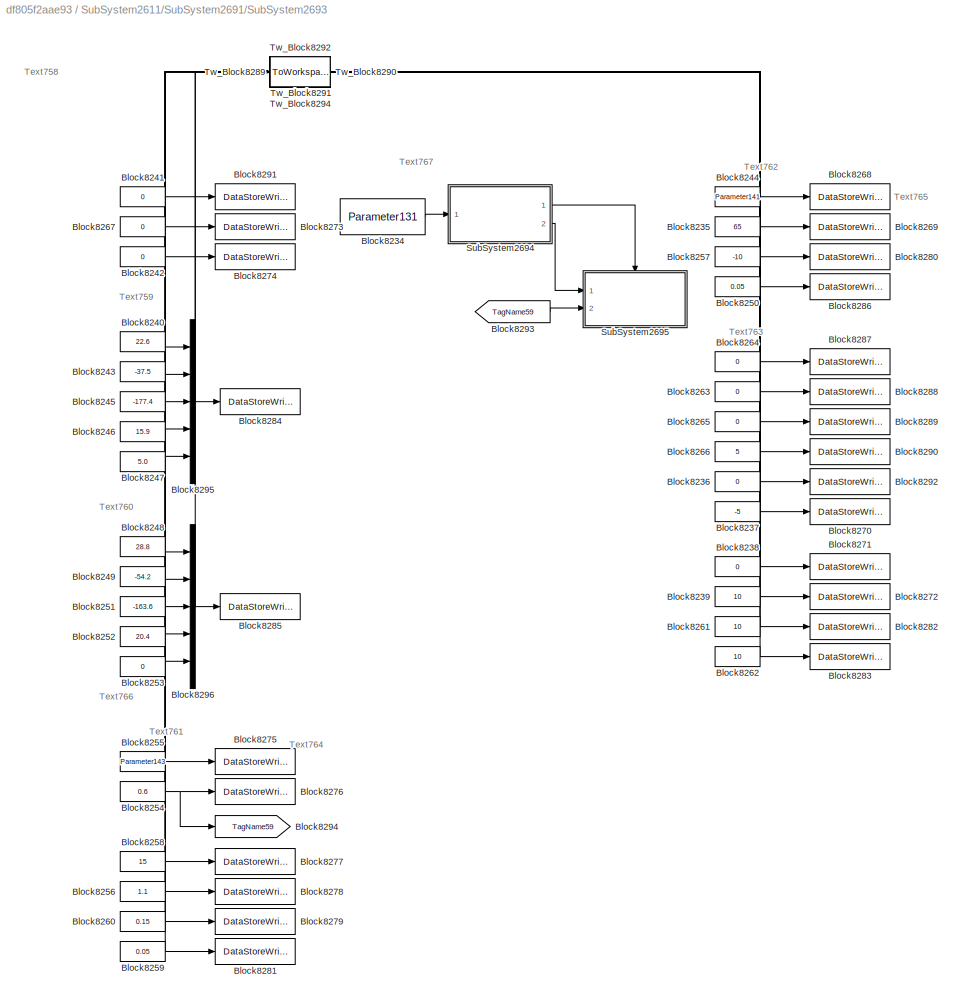
BLOCK [SubSystem] SubSystem2611/SubSystem2691/SubSystem2693
  AttributesFormatString = Attribute2131
  Ports = []
  RTWFcnNameOpts = Use subsystem name
  RequestExecContextInheritance = off
  TreatAsAtomicUnit = on
BLOCK [Constant] SubSystem2611/SubSystem2691/SubSystem2693/Block8234
  OutDataTypeStr = double
  SampleTime = -1
  UserDataPersistent = on
  Value = Parameter131
BLOCK [Constant] SubSystem2611/SubSystem2691/SubSystem2693/Block8235
  OutDataTypeStr = double
  SampleTime = -1
  UserDataPersistent = on
  Value = 65
BLOCK [Constant] SubSystem2611/SubSystem2691/SubSystem2693/Block8236
  OutDataTypeStr = double
  SampleTime = -1
  UserDataPersistent = on
  Value = 0
BLOCK [Constant] SubSystem2611/SubSystem2691/SubSystem2693/Block8237
  OutDataTypeStr = double
  SampleTime = -1
  UserDataPersistent = on
  Value = -5
BLOCK [Constant] SubSystem2611/SubSystem2691/SubSystem2693/Block8238
  OutDataTypeStr = double
  SampleTime = -1
  UserDataPersistent = on
  Value = 0
BLOCK [Constant] SubSystem2611/SubSystem2691/SubSystem2693/Block8239
  OutDataTypeStr = double
  SampleTime = -1
  UserDataPersistent = on
  Value = 10
BLOCK [Constant] SubSystem2611/SubSystem2691/SubSystem2693/Block8240
  OutDataTypeStr = double
  SampleTime = -1
  UserDataPersistent = on
  Value = 22.6
BLOCK [Constant] SubSystem2611/SubSystem2691/SubSystem2693/Block8241
  OutDataTypeStr = double
  SampleTime = -1
  UserDataPersistent = on
  Value = 0
BLOCK [Constant] SubSystem2611/SubSystem2691/SubSystem2693/Block8242
  OutDataTypeStr = double
  SampleTime = -1
  UserDataPersistent = on
  Value = 0
BLOCK [Constant] SubSystem2611/SubSystem2691/SubSystem2693/Block8243
  OutDataTypeStr = double
  SampleTime = -1
  UserDataPersistent = on
  Value = -37.5
BLOCK [Constant] SubSystem2611/SubSystem2691/SubSystem2693/Block8244
  OutDataTypeStr = double
  SampleTime = -1
  UserDataPersistent = on
  Value = Parameter141
BLOCK [Constant] SubSystem2611/SubSystem2691/SubSystem2693/Block8245
  OutDataTypeStr = double
  SampleTime = -1
  UserDataPersistent = on
  Value = -177.4
BLOCK [Constant] SubSystem2611/SubSystem2691/SubSystem2693/Block8246
  OutDataTypeStr = double
  SampleTime = -1
  UserDataPersistent = on
  Value = 15.9
BLOCK [Constant] SubSystem2611/SubSystem2691/SubSystem2693/Block8247
  OutDataTypeStr = double
  SampleTime = -1
  UserDataPersistent = on
  Value = 5.0
BLOCK [Constant] SubSystem2611/SubSystem2691/SubSystem2693/Block8248
  OutDataTypeStr = double
  SampleTime = -1
  UserDataPersistent = on
  Value = 28.8
BLOCK [Constant] SubSystem2611/SubSystem2691/SubSystem2693/Block8249
  OutDataTypeStr = double
  SampleTime = -1
  UserDataPersistent = on
  Value = -54.2
BLOCK [Constant] SubSystem2611/SubSystem2691/SubSystem2693/Block8250
  OutDataTypeStr = double
  SampleTime = -1
  UserDataPersistent = on
  Value = 0.05
BLOCK [Constant] SubSystem2611/SubSystem2691/SubSystem2693/Block8251
  OutDataTypeStr = double
  SampleTime = -1
  UserDataPersistent = on
  Value = -163.6
BLOCK [Constant] SubSystem2611/SubSystem2691/SubSystem2693/Block8252
  OutDataTypeStr = double
  SampleTime = -1
  UserDataPersistent = on
  Value = 20.4
BLOCK [Constant] SubSystem2611/SubSystem2691/SubSystem2693/Block8253
  OutDataTypeStr = double
  SampleTime = -1
  UserDataPersistent = on
  Value = 0
BLOCK [Constant] SubSystem2611/SubSystem2691/SubSystem2693/Block8254
  OutDataTypeStr = double
  SampleTime = -1
  UserDataPersistent = on
  Value = 0.6
BLOCK [Constant] SubSystem2611/SubSystem2691/SubSystem2693/Block8255
  OutDataTypeStr = double
  SampleTime = -1
  UserDataPersistent = on
  Value = Parameter143
BLOCK [Constant] SubSystem2611/SubSystem2691/SubSystem2693/Block8256
  OutDataTypeStr = double
  SampleTime = -1
  UserDataPersistent = on
  Value = 1.1
BLOCK [Constant] SubSystem2611/SubSystem2691/SubSystem2693/Block8257
  OutDataTypeStr = double
  SampleTime = -1
  UserDataPersistent = on
  Value = -10
BLOCK [Constant] SubSystem2611/SubSystem2691/SubSystem2693/Block8258
  OutDataTypeStr = double
  SampleTime = -1
  UserDataPersistent = on
  Value = 15
BLOCK [Constant] SubSystem2611/SubSystem2691/SubSystem2693/Block8259
  OutDataTypeStr = double
  SampleTime = -1
  UserDataPersistent = on
  Value = 0.05
BLOCK [Constant] SubSystem2611/SubSystem2691/SubSystem2693/Block8260
  OutDataTypeStr = double
  SampleTime = -1
  UserDataPersistent = on
  Value = 0.15
BLOCK [Constant] SubSystem2611/SubSystem2691/SubSystem2693/Block8261
  OutDataTypeStr = double
  SampleTime = -1
  UserDataPersistent = on
  Value = 10
BLOCK [Constant] SubSystem2611/SubSystem2691/SubSystem2693/Block8262
  OutDataTypeStr = double
  SampleTime = -1
  UserDataPersistent = on
  Value = 10
BLOCK [Constant] SubSystem2611/SubSystem2691/SubSystem2693/Block8263
  OutDataTypeStr = double
  SampleTime = -1
  UserDataPersistent = on
  Value = 0
BLOCK [Constant] SubSystem2611/SubSystem2691/SubSystem2693/Block8264
  OutDataTypeStr = double
  SampleTime = -1
  UserDataPersistent = on
  Value = 0
BLOCK [Constant] SubSystem2611/SubSystem2691/SubSystem2693/Block8265
  OutDataTypeStr = double
  SampleTime = -1
  UserDataPersistent = on
  Value = 0
BLOCK [Constant] SubSystem2611/SubSystem2691/SubSystem2693/Block8266
  OutDataTypeStr = double
  SampleTime = -1
  UserDataPersistent = on
  Value = 5
BLOCK [Constant] SubSystem2611/SubSystem2691/SubSystem2693/Block8267
  OutDataTypeStr = double
  SampleTime = -1
  UserDataPersistent = on
  Value = 0
BLOCK [DataStoreWrite] SubSystem2611/SubSystem2691/SubSystem2693/Block8268
  DataStoreName = DSM355
  Ports = [1]
BLOCK [DataStoreWrite] SubSystem2611/SubSystem2691/SubSystem2693/Block8269
  DataStoreName = DSM352
  Ports = [1]
BLOCK [DataStoreWrite] SubSystem2611/SubSystem2691/SubSystem2693/Block8270
  DataStoreName = DSM325
  Ports = [1]
BLOCK [DataStoreWrite] SubSystem2611/SubSystem2691/SubSystem2693/Block8271
  DataStoreName = DSM339
  Ports = [1]
BLOCK [DataStoreWrite] SubSystem2611/SubSystem2691/SubSystem2693/Block8272
  DataStoreName = DSM340
  Ports = [1]
BLOCK [DataStoreWrite] SubSystem2611/SubSystem2691/SubSystem2693/Block8273
  DataStoreName = DSM361
  Ports = [1]
BLOCK [DataStoreWrite] SubSystem2611/SubSystem2691/SubSystem2693/Block8274
  DataStoreName = DSM328
  Ports = [1]
BLOCK [DataStoreWrite] SubSystem2611/SubSystem2691/SubSystem2693/Block8275
  DataStoreName = DSM345
  Ports = [1]
BLOCK [DataStoreWrite] SubSystem2611/SubSystem2691/SubSystem2693/Block8276
  DataStoreName = DSM344
  Ports = [1]
BLOCK [DataStoreWrite] SubSystem2611/SubSystem2691/SubSystem2693/Block8277
  DataStoreName = DSM331
  Ports = [1]
BLOCK [DataStoreWrite] SubSystem2611/SubSystem2691/SubSystem2693/Block8278
  DataStoreName = DSM330
  Ports = [1]
BLOCK [DataStoreWrite] SubSystem2611/SubSystem2691/SubSystem2693/Block8279
  DataStoreName = DSM329
  Ports = [1]
BLOCK [DataStoreWrite] SubSystem2611/SubSystem2691/SubSystem2693/Block8280
  DataStoreName = DSM353
  Ports = [1]
BLOCK [DataStoreWrite] SubSystem2611/SubSystem2691/SubSystem2693/Block8281
  DataStoreName = DSM332
  Ports = [1]
BLOCK [DataStoreWrite] SubSystem2611/SubSystem2691/SubSystem2693/Block8282
  DataStoreName = DSM341
  Ports = [1]
BLOCK [DataStoreWrite] SubSystem2611/SubSystem2691/SubSystem2693/Block8283
  DataStoreName = DSM342
  Ports = [1]
BLOCK [DataStoreWrite] SubSystem2611/SubSystem2691/SubSystem2693/Block8284
  DataStoreName = DSM350
  Ports = [1]
BLOCK [DataStoreWrite] SubSystem2611/SubSystem2691/SubSystem2693/Block8285
  DataStoreName = DSM351
  Ports = [1]
BLOCK [DataStoreWrite] SubSystem2611/SubSystem2691/SubSystem2693/Block8286
  DataStoreName = DSM354
  Ports = [1]
BLOCK [DataStoreWrite] SubSystem2611/SubSystem2691/SubSystem2693/Block8287
  DataStoreName = DSM338
  Ports = [1]
BLOCK [DataStoreWrite] SubSystem2611/SubSystem2691/SubSystem2693/Block8288
  DataStoreName = DSM322
  Ports = [1]
BLOCK [DataStoreWrite] SubSystem2611/SubSystem2691/SubSystem2693/Block8289
  DataStoreName = DSM326
  Ports = [1]
BLOCK [DataStoreWrite] SubSystem2611/SubSystem2691/SubSystem2693/Block8290
  DataStoreName = DSM323
  Ports = [1]
BLOCK [DataStoreWrite] SubSystem2611/SubSystem2691/SubSystem2693/Block8291
  DataStoreName = DSM327
  Ports = [1]
BLOCK [DataStoreWrite] SubSystem2611/SubSystem2691/SubSystem2693/Block8292
  DataStoreName = DSM324
  Ports = [1]
BLOCK [From] SubSystem2611/SubSystem2691/SubSystem2693/Block8293
  CloseFcn = tagdialog Close
  GotoTag = TagName59
BLOCK [Goto] SubSystem2611/SubSystem2691/SubSystem2693/Block8294
  GotoTag = TagName59
BLOCK [Mux] SubSystem2611/SubSystem2691/SubSystem2693/Block8295
  DisplayOption = bar
  Inputs = 5
  Ports = [5, 1]
BLOCK [Mux] SubSystem2611/SubSystem2691/SubSystem2693/Block8296
  DisplayOption = bar
  Inputs = 5
  Ports = [5, 1]
BLOCK [SubSystem] SubSystem2611/SubSystem2691/SubSystem2693/SubSystem2694
  OpenFcn = warndlg('変更禁止!');
  Ports = [1, 2]
  RTWSystemCode = Inline
  RequestExecContextInheritance = off
  TreatAsAtomicUnit = on
BLOCK [SubSystem] SubSystem2611/SubSystem2691/SubSystem2693/SubSystem2694/For_loop
  ErrorFcn = Stateflow.Translate.translate
  PermitHierarchicalResolution = ExplicitOnly
  Ports = [1, 2]
  RequestExecContextInheritance = off
  SFBlockType = Chart
  TreatAsAtomicUnit = on
BLOCK [Demux] SubSystem2611/SubSystem2691/SubSystem2693/SubSystem2694/For_loop/ Demux 
  Outputs = 1
  Ports = [1, 1]
BLOCK [S-Function] SubSystem2611/SubSystem2691/SubSystem2693/SubSystem2694/For_loop/ SFunction 
  EnableBusSupport = on
  FunctionName = sf_sfun
  PortCounts = [1 2]
  Ports = [1, 2]
  Tag = Stateflow S-Function addTw_mdl5 2
BLOCK [Inport] SubSystem2611/SubSystem2691/SubSystem2693/SubSystem2694/For_loop/N_Loop
  IconDisplay = Port number
BLOCK [Outport] SubSystem2611/SubSystem2691/SubSystem2693/SubSystem2694/For_loop/function_call()
  IconDisplay = Port number
  Port = 2
BLOCK [Outport] SubSystem2611/SubSystem2691/SubSystem2693/SubSystem2694/For_loop/idx
  IconDisplay = Port number
BLOCK [Inport] SubSystem2611/SubSystem2691/SubSystem2693/SubSystem2694/N
  IconDisplay = Port number
  SamplingMode = Sample based
  SignalType = real
BLOCK [Outport] SubSystem2611/SubSystem2691/SubSystem2693/SubSystem2694/action
  IconDisplay = Port number
  SamplingMode = Sample based
  SignalType = real
BLOCK [Outport] SubSystem2611/SubSystem2691/SubSystem2693/SubSystem2694/i
  IconDisplay = Port number
  Port = 2
  SamplingMode = Sample based
  SignalType = real
BLOCK [SubSystem] SubSystem2611/SubSystem2691/SubSystem2693/SubSystem2695
  Ports = [2, 0, 0, 1]
  RequestExecContextInheritance = off
  TreatAsAtomicUnit = on
BLOCK [Inport] SubSystem2611/SubSystem2691/SubSystem2693/SubSystem2695/Block8297
  IconDisplay = Port number
  SamplingMode = Sample based
  SignalType = real
BLOCK [Inport] SubSystem2611/SubSystem2691/SubSystem2693/SubSystem2695/Block8298
  IconDisplay = Port number
  Port = 2
  SamplingMode = Sample based
  SignalType = real
BLOCK [TriggerPort] SubSystem2611/SubSystem2691/SubSystem2693/SubSystem2695/Block8299
  Ports = []
  StatesWhenEnabling = held
  TriggerType = function-call
BLOCK [Constant] SubSystem2611/SubSystem2691/SubSystem2693/SubSystem2695/Block8300
  OutDataTypeStr = double
  SampleTime = -1
  UserDataPersistent = on
  Value = 0
BLOCK [Constant] SubSystem2611/SubSystem2691/SubSystem2693/SubSystem2695/Block8301
  OutDataTypeStr = double
  SampleTime = -1
  UserDataPersistent = on
  Value = 0
BLOCK [Constant] SubSystem2611/SubSystem2691/SubSystem2693/SubSystem2695/Block8302
  OutDataTypeStr = double
  SampleTime = -1
  UserDataPersistent = on
  Value = 20
BLOCK [Constant] SubSystem2611/SubSystem2691/SubSystem2693/SubSystem2695/Block8303
  OutDataTypeStr = double
  SampleTime = -1
  UserDataPersistent = on
  Value = 100
BLOCK [Constant] SubSystem2611/SubSystem2691/SubSystem2693/SubSystem2695/Block8304
  OutDataTypeStr = double
  SampleTime = -1
  UserDataPersistent = on
  Value = 0
BLOCK [Constant] SubSystem2611/SubSystem2691/SubSystem2693/SubSystem2695/Block8305
  OutDataTypeStr = double
  SampleTime = -1
  UserDataPersistent = on
  Value = 0
BLOCK [Constant] SubSystem2611/SubSystem2691/SubSystem2693/SubSystem2695/Block8306
  OutDataTypeStr = double
  SampleTime = -1
  UserDataPersistent = on
  Value = 0
BLOCK [Constant] SubSystem2611/SubSystem2691/SubSystem2693/SubSystem2695/Block8307
  OutDataTypeStr = double
  SampleTime = -1
  UserDataPersistent = on
  Value = 0
BLOCK [Constant] SubSystem2611/SubSystem2691/SubSystem2693/SubSystem2695/Block8308
  OutDataTypeStr = double
  SampleTime = -1
  UserDataPersistent = on
  Value = 0
BLOCK [Constant] SubSystem2611/SubSystem2691/SubSystem2693/SubSystem2695/Block8309
  OutDataTypeStr = double
  SampleTime = -1
  UserDataPersistent = on
  Value = 0
BLOCK [SubSystem] SubSystem2611/SubSystem2691/SubSystem2693/SubSystem2695/SubSystem2696
  OpenFcn = warndlg('変更禁止!');
  Ports = [2]
  RequestExecContextInheritance = off
  TreatAsAtomicUnit = on
  UserDataPersistent = on
BLOCK [Assignment] SubSystem2611/SubSystem2691/SubSystem2693/SubSystem2695/SubSystem2696/Assignment
  IndexOptions = Index vector (port)
  OutputSizes = [1 1]
  Ports = [3, 1]
BLOCK [DataStoreRead] SubSystem2611/SubSystem2691/SubSystem2693/SubSystem2695/SubSystem2696/Inside_DSR
  DataStoreName = DSM320
  Ports = [0, 1]
BLOCK [DataStoreWrite] SubSystem2611/SubSystem2691/SubSystem2693/SubSystem2695/SubSystem2696/Inside_DSW
  DataStoreName = DSM320
  Ports = [1]
BLOCK [Inport] SubSystem2611/SubSystem2691/SubSystem2693/SubSystem2695/SubSystem2696/element
  IconDisplay = Port number
  Port = 2
BLOCK [Inport] SubSystem2611/SubSystem2691/SubSystem2693/SubSystem2695/SubSystem2696/input
  IconDisplay = Port number
BLOCK [SubSystem] SubSystem2611/SubSystem2691/SubSystem2693/SubSystem2695/SubSystem2697
  OpenFcn = warndlg('変更禁止!');
  Ports = [2]
  RequestExecContextInheritance = off
  TreatAsAtomicUnit = on
  UserDataPersistent = on
BLOCK [Assignment] SubSystem2611/SubSystem2691/SubSystem2693/SubSystem2695/SubSystem2697/Assignment
  IndexOptions = Index vector (port)
  OutputSizes = [1 1]
  Ports = [3, 1]
BLOCK [DataStoreRead] SubSystem2611/SubSystem2691/SubSystem2693/SubSystem2695/SubSystem2697/Inside_DSR
  DataStoreName = DSM319
  Ports = [0, 1]
BLOCK [DataStoreWrite] SubSystem2611/SubSystem2691/SubSystem2693/SubSystem2695/SubSystem2697/Inside_DSW
  DataStoreName = DSM319
  Ports = [1]
BLOCK [Inport] SubSystem2611/SubSystem2691/SubSystem2693/SubSystem2695/SubSystem2697/element
  IconDisplay = Port number
  Port = 2
BLOCK [Inport] SubSystem2611/SubSystem2691/SubSystem2693/SubSystem2695/SubSystem2697/input
  IconDisplay = Port number
BLOCK [SubSystem] SubSystem2611/SubSystem2691/SubSystem2693/SubSystem2695/SubSystem2698
  OpenFcn = warndlg('変更禁止!');
  Ports = [2]
  RequestExecContextInheritance = off
  TreatAsAtomicUnit = on
  UserDataPersistent = on
BLOCK [Assignment] SubSystem2611/SubSystem2691/SubSystem2693/SubSystem2695/SubSystem2698/Assignment
  IndexOptions = Index vector (port)
  OutputSizes = [1 1]
  Ports = [3, 1]
BLOCK [DataStoreRead] SubSystem2611/SubSystem2691/SubSystem2693/SubSystem2695/SubSystem2698/Inside_DSR
  DataStoreName = DSM336
  Ports = [0, 1]
BLOCK [DataStoreWrite] SubSystem2611/SubSystem2691/SubSystem2693/SubSystem2695/SubSystem2698/Inside_DSW
  DataStoreName = DSM336
  Ports = [1]
BLOCK [Inport] SubSystem2611/SubSystem2691/SubSystem2693/SubSystem2695/SubSystem2698/element
  IconDisplay = Port number
  Port = 2
BLOCK [Inport] SubSystem2611/SubSystem2691/SubSystem2693/SubSystem2695/SubSystem2698/input
  IconDisplay = Port number
BLOCK [SubSystem] SubSystem2611/SubSystem2691/SubSystem2693/SubSystem2695/SubSystem2699
  OpenFcn = warndlg('変更禁止!');
  Ports = [2]
  RequestExecContextInheritance = off
  TreatAsAtomicUnit = on
  UserDataPersistent = on
BLOCK [Assignment] SubSystem2611/SubSystem2691/SubSystem2693/SubSystem2695/SubSystem2699/Assignment
  IndexOptions = Index vector (port)
  OutputSizes = [1 1]
  Ports = [3, 1]
BLOCK [DataStoreRead] SubSystem2611/SubSystem2691/SubSystem2693/SubSystem2695/SubSystem2699/Inside_DSR
  DataStoreName = DSM318
  Ports = [0, 1]
BLOCK [DataStoreWrite] SubSystem2611/SubSystem2691/SubSystem2693/SubSystem2695/SubSystem2699/Inside_DSW
  DataStoreName = DSM318
  Ports = [1]
BLOCK [Inport] SubSystem2611/SubSystem2691/SubSystem2693/SubSystem2695/SubSystem2699/element
  IconDisplay = Port number
  Port = 2
BLOCK [Inport] SubSystem2611/SubSystem2691/SubSystem2693/SubSystem2695/SubSystem2699/input
  IconDisplay = Port number
BLOCK [SubSystem] SubSystem2611/SubSystem2691/SubSystem2693/SubSystem2695/SubSystem2700
  OpenFcn = warndlg('変更禁止!');
  Ports = [2]
  RequestExecContextInheritance = off
  TreatAsAtomicUnit = on
  UserDataPersistent = on
BLOCK [Assignment] SubSystem2611/SubSystem2691/SubSystem2693/SubSystem2695/SubSystem2700/Assignment
  IndexOptions = Index vector (port)
  OutputSizes = [1 1]
  Ports = [3, 1]
BLOCK [DataStoreRead] SubSystem2611/SubSystem2691/SubSystem2693/SubSystem2695/SubSystem2700/Inside_DSR
  DataStoreName = DSM333
  Ports = [0, 1]
BLOCK [DataStoreWrite] SubSystem2611/SubSystem2691/SubSystem2693/SubSystem2695/SubSystem2700/Inside_DSW
  DataStoreName = DSM333
  Ports = [1]
BLOCK [Inport] SubSystem2611/SubSystem2691/SubSystem2693/SubSystem2695/SubSystem2700/element
  IconDisplay = Port number
  Port = 2
BLOCK [Inport] SubSystem2611/SubSystem2691/SubSystem2693/SubSystem2695/SubSystem2700/input
  IconDisplay = Port number
BLOCK [SubSystem] SubSystem2611/SubSystem2691/SubSystem2693/SubSystem2695/SubSystem2701
  OpenFcn = warndlg('変更禁止!');
  Ports = [2]
  RequestExecContextInheritance = off
  TreatAsAtomicUnit = on
  UserDataPersistent = on
BLOCK [Assignment] SubSystem2611/SubSystem2691/SubSystem2693/SubSystem2695/SubSystem2701/Assignment
  IndexOptions = Index vector (port)
  OutputSizes = [1 1]
  Ports = [3, 1]
BLOCK [DataStoreRead] SubSystem2611/SubSystem2691/SubSystem2693/SubSystem2695/SubSystem2701/Inside_DSR
  DataStoreName = DSM337
  Ports = [0, 1]
BLOCK [DataStoreWrite] SubSystem2611/SubSystem2691/SubSystem2693/SubSystem2695/SubSystem2701/Inside_DSW
  DataStoreName = DSM337
  Ports = [1]
BLOCK [Inport] SubSystem2611/SubSystem2691/SubSystem2693/SubSystem2695/SubSystem2701/element
  IconDisplay = Port number
  Port = 2
BLOCK [Inport] SubSystem2611/SubSystem2691/SubSystem2693/SubSystem2695/SubSystem2701/input
  IconDisplay = Port number
BLOCK [SubSystem] SubSystem2611/SubSystem2691/SubSystem2693/SubSystem2695/SubSystem2702
  OpenFcn = warndlg('変更禁止!');
  Ports = [2]
  RequestExecContextInheritance = off
  TreatAsAtomicUnit = on
  UserDataPersistent = on
BLOCK [Assignment] SubSystem2611/SubSystem2691/SubSystem2693/SubSystem2695/SubSystem2702/Assignment
  IndexOptions = Index vector (port)
  OutputSizes = [1 1]
  Ports = [3, 1]
BLOCK [DataStoreRead] SubSystem2611/SubSystem2691/SubSystem2693/SubSystem2695/SubSystem2702/Inside_DSR
  DataStoreName = DSM334
  Ports = [0, 1]
BLOCK [DataStoreWrite] SubSystem2611/SubSystem2691/SubSystem2693/SubSystem2695/SubSystem2702/Inside_DSW
  DataStoreName = DSM334
  Ports = [1]
BLOCK [Inport] SubSystem2611/SubSystem2691/SubSystem2693/SubSystem2695/SubSystem2702/element
  IconDisplay = Port number
  Port = 2
BLOCK [Inport] SubSystem2611/SubSystem2691/SubSystem2693/SubSystem2695/SubSystem2702/input
  IconDisplay = Port number
BLOCK [SubSystem] SubSystem2611/SubSystem2691/SubSystem2693/SubSystem2695/SubSystem2703
  OpenFcn = warndlg('変更禁止!');
  Ports = [2]
  RequestExecContextInheritance = off
  TreatAsAtomicUnit = on
  UserDataPersistent = on
BLOCK [Assignment] SubSystem2611/SubSystem2691/SubSystem2693/SubSystem2695/SubSystem2703/Assignment
  IndexOptions = Index vector (port)
  OutputSizes = [1 1]
  Ports = [3, 1]
BLOCK [DataStoreRead] SubSystem2611/SubSystem2691/SubSystem2693/SubSystem2695/SubSystem2703/Inside_DSR
  DataStoreName = DSM335
  Ports = [0, 1]
BLOCK [DataStoreWrite] SubSystem2611/SubSystem2691/SubSystem2693/SubSystem2695/SubSystem2703/Inside_DSW
  DataStoreName = DSM335
  Ports = [1]
BLOCK [Inport] SubSystem2611/SubSystem2691/SubSystem2693/SubSystem2695/SubSystem2703/element
  IconDisplay = Port number
  Port = 2
BLOCK [Inport] SubSystem2611/SubSystem2691/SubSystem2693/SubSystem2695/SubSystem2703/input
  IconDisplay = Port number
BLOCK [SubSystem] SubSystem2611/SubSystem2691/SubSystem2693/SubSystem2695/SubSystem2704
  OpenFcn = warndlg('変更禁止!');
  Ports = [2]
  RequestExecContextInheritance = off
  TreatAsAtomicUnit = on
  UserDataPersistent = on
BLOCK [Assignment] SubSystem2611/SubSystem2691/SubSystem2693/SubSystem2695/SubSystem2704/Assignment
  IndexOptions = Index vector (port)
  OutputSizes = [1 1]
  Ports = [3, 1]
BLOCK [DataStoreRead] SubSystem2611/SubSystem2691/SubSystem2693/SubSystem2695/SubSystem2704/Inside_DSR
  DataStoreName = DSM348
  Ports = [0, 1]
BLOCK [DataStoreWrite] SubSystem2611/SubSystem2691/SubSystem2693/SubSystem2695/SubSystem2704/Inside_DSW
  DataStoreName = DSM348
  Ports = [1]
BLOCK [Inport] SubSystem2611/SubSystem2691/SubSystem2693/SubSystem2695/SubSystem2704/element
  IconDisplay = Port number
  Port = 2
BLOCK [Inport] SubSystem2611/SubSystem2691/SubSystem2693/SubSystem2695/SubSystem2704/input
  IconDisplay = Port number
BLOCK [SubSystem] SubSystem2611/SubSystem2691/SubSystem2693/SubSystem2695/SubSystem2705
  OpenFcn = warndlg('変更禁止!');
  Ports = [2]
  RequestExecContextInheritance = off
  TreatAsAtomicUnit = on
  UserDataPersistent = on
BLOCK [Assignment] SubSystem2611/SubSystem2691/SubSystem2693/SubSystem2695/SubSystem2705/Assignment
  IndexOptions = Index vector (port)
  OutputSizes = [1 1]
  Ports = [3, 1]
BLOCK [DataStoreRead] SubSystem2611/SubSystem2691/SubSystem2693/SubSystem2695/SubSystem2705/Inside_DSR
  DataStoreName = DSM349
  Ports = [0, 1]
BLOCK [DataStoreWrite] SubSystem2611/SubSystem2691/SubSystem2693/SubSystem2695/SubSystem2705/Inside_DSW
  DataStoreName = DSM349
  Ports = [1]
BLOCK [Inport] SubSystem2611/SubSystem2691/SubSystem2693/SubSystem2695/SubSystem2705/element
  IconDisplay = Port number
  Port = 2
BLOCK [Inport] SubSystem2611/SubSystem2691/SubSystem2693/SubSystem2695/SubSystem2705/input
  IconDisplay = Port number
BLOCK [SubSystem] SubSystem2611/SubSystem2691/SubSystem2693/SubSystem2695/SubSystem2706
  OpenFcn = warndlg('変更禁止!');
  Ports = [2]
  RequestExecContextInheritance = off
  TreatAsAtomicUnit = on
  UserDataPersistent = on
BLOCK [Assignment] SubSystem2611/SubSystem2691/SubSystem2693/SubSystem2695/SubSystem2706/Assignment
  IndexOptions = Index vector (port)
  OutputSizes = [1 1]
  Ports = [3, 1]
BLOCK [DataStoreRead] SubSystem2611/SubSystem2691/SubSystem2693/SubSystem2695/SubSystem2706/Inside_DSR
  DataStoreName = DSM347
  Ports = [0, 1]
BLOCK [DataStoreWrite] SubSystem2611/SubSystem2691/SubSystem2693/SubSystem2695/SubSystem2706/Inside_DSW
  DataStoreName = DSM347
  Ports = [1]
BLOCK [Inport] SubSystem2611/SubSystem2691/SubSystem2693/SubSystem2695/SubSystem2706/element
  IconDisplay = Port number
  Port = 2
BLOCK [Inport] SubSystem2611/SubSystem2691/SubSystem2693/SubSystem2695/SubSystem2706/input
  IconDisplay = Port number
BLOCK [ToWorkspace] SubSystem2611/SubSystem2691/SubSystem2693/Tw_Block8268
  FixptAsFi = on
  MaxDataPoints = inf
  Ports = [1]
  SampleTime = -1
  Save2DSignal = 3-D array (concatenate along third dimension)
  SaveFormat = Timeseries
  VariableName = simout_Tw_Block8268_after
BLOCK [ToWorkspace] SubSystem2611/SubSystem2691/SubSystem2693/Tw_Block8269
  FixptAsFi = on
  MaxDataPoints = inf
  Ports = [1]
  SampleTime = -1
  Save2DSignal = 3-D array (concatenate along third dimension)
  SaveFormat = Timeseries
  VariableName = simout_Tw_Block8269_after
BLOCK [ToWorkspace] SubSystem2611/SubSystem2691/SubSystem2693/Tw_Block8270
  FixptAsFi = on
  MaxDataPoints = inf
  Ports = [1]
  SampleTime = -1
  Save2DSignal = 3-D array (concatenate along third dimension)
  SaveFormat = Timeseries
  VariableName = simout_Tw_Block8270_after
BLOCK [ToWorkspace] SubSystem2611/SubSystem2691/SubSystem2693/Tw_Block8271
  FixptAsFi = on
  MaxDataPoints = inf
  Ports = [1]
  SampleTime = -1
  Save2DSignal = 3-D array (concatenate along third dimension)
  SaveFormat = Timeseries
  VariableName = simout_Tw_Block8271_after
BLOCK [ToWorkspace] SubSystem2611/SubSystem2691/SubSystem2693/Tw_Block8272
  FixptAsFi = on
  MaxDataPoints = inf
  Ports = [1]
  SampleTime = -1
  Save2DSignal = 3-D array (concatenate along third dimension)
  SaveFormat = Timeseries
  VariableName = simout_Tw_Block8272_after
BLOCK [ToWorkspace] SubSystem2611/SubSystem2691/SubSystem2693/Tw_Block8273
  FixptAsFi = on
  MaxDataPoints = inf
  Ports = [1]
  SampleTime = -1
  Save2DSignal = 3-D array (concatenate along third dimension)
  SaveFormat = Timeseries
  VariableName = simout_Tw_Block8273_after
BLOCK [ToWorkspace] SubSystem2611/SubSystem2691/SubSystem2693/Tw_Block8274
  FixptAsFi = on
  MaxDataPoints = inf
  Ports = [1]
  SampleTime = -1
  Save2DSignal = 3-D array (concatenate along third dimension)
  SaveFormat = Timeseries
  VariableName = simout_Tw_Block8274_after
BLOCK [ToWorkspace] SubSystem2611/SubSystem2691/SubSystem2693/Tw_Block8275
  FixptAsFi = on
  MaxDataPoints = inf
  Ports = [1]
  SampleTime = -1
  Save2DSignal = 3-D array (concatenate along third dimension)
  SaveFormat = Timeseries
  VariableName = simout_Tw_Block8275_after
BLOCK [ToWorkspace] SubSystem2611/SubSystem2691/SubSystem2693/Tw_Block8276
  FixptAsFi = on
  MaxDataPoints = inf
  Ports = [1]
  SampleTime = -1
  Save2DSignal = 3-D array (concatenate along third dimension)
  SaveFormat = Timeseries
  VariableName = simout_Tw_Block8276_after
BLOCK [ToWorkspace] SubSystem2611/SubSystem2691/SubSystem2693/Tw_Block8277
  FixptAsFi = on
  MaxDataPoints = inf
  Ports = [1]
  SampleTime = -1
  Save2DSignal = 3-D array (concatenate along third dimension)
  SaveFormat = Timeseries
  VariableName = simout_Tw_Block8277_after
BLOCK [ToWorkspace] SubSystem2611/SubSystem2691/SubSystem2693/Tw_Block8278
  FixptAsFi = on
  MaxDataPoints = inf
  Ports = [1]
  SampleTime = -1
  Save2DSignal = 3-D array (concatenate along third dimension)
  SaveFormat = Timeseries
  VariableName = simout_Tw_Block8278_after
BLOCK [ToWorkspace] SubSystem2611/SubSystem2691/SubSystem2693/Tw_Block8279
  FixptAsFi = on
  MaxDataPoints = inf
  Ports = [1]
  SampleTime = -1
  Save2DSignal = 3-D array (concatenate along third dimension)
  SaveFormat = Timeseries
  VariableName = simout_Tw_Block8279_after
BLOCK [ToWorkspace] SubSystem2611/SubSystem2691/SubSystem2693/Tw_Block8280
  FixptAsFi = on
  MaxDataPoints = inf
  Ports = [1]
  SampleTime = -1
  Save2DSignal = 3-D array (concatenate along third dimension)
  SaveFormat = Timeseries
  VariableName = simout_Tw_Block8280_after
BLOCK [ToWorkspace] SubSystem2611/SubSystem2691/SubSystem2693/Tw_Block8281
  FixptAsFi = on
  MaxDataPoints = inf
  Ports = [1]
  SampleTime = -1
  Save2DSignal = 3-D array (concatenate along third dimension)
  SaveFormat = Timeseries
  VariableName = simout_Tw_Block8281_after
BLOCK [ToWorkspace] SubSystem2611/SubSystem2691/SubSystem2693/Tw_Block8282
  FixptAsFi = on
  MaxDataPoints = inf
  Ports = [1]
  SampleTime = -1
  Save2DSignal = 3-D array (concatenate along third dimension)
  SaveFormat = Timeseries
  VariableName = simout_Tw_Block8282_after
BLOCK [ToWorkspace] SubSystem2611/SubSystem2691/SubSystem2693/Tw_Block8283
  FixptAsFi = on
  MaxDataPoints = inf
  Ports = [1]
  SampleTime = -1
  Save2DSignal = 3-D array (concatenate along third dimension)
  SaveFormat = Timeseries
  VariableName = simout_Tw_Block8283_after
BLOCK [ToWorkspace] SubSystem2611/SubSystem2691/SubSystem2693/Tw_Block8284
  FixptAsFi = on
  MaxDataPoints = inf
  Ports = [1]
  SampleTime = -1
  Save2DSignal = 3-D array (concatenate along third dimension)
  SaveFormat = Timeseries
  VariableName = simout_Tw_Block8284_after
BLOCK [ToWorkspace] SubSystem2611/SubSystem2691/SubSystem2693/Tw_Block8285
  FixptAsFi = on
  MaxDataPoints = inf
  Ports = [1]
  SampleTime = -1
  Save2DSignal = 3-D array (concatenate along third dimension)
  SaveFormat = Timeseries
  VariableName = simout_Tw_Block8285_after
BLOCK [ToWorkspace] SubSystem2611/SubSystem2691/SubSystem2693/Tw_Block8286
  FixptAsFi = on
  MaxDataPoints = inf
  Ports = [1]
  SampleTime = -1
  Save2DSignal = 3-D array (concatenate along third dimension)
  SaveFormat = Timeseries
  VariableName = simout_Tw_Block8286_after
BLOCK [ToWorkspace] SubSystem2611/SubSystem2691/SubSystem2693/Tw_Block8287
  FixptAsFi = on
  MaxDataPoints = inf
  Ports = [1]
  SampleTime = -1
  Save2DSignal = 3-D array (concatenate along third dimension)
  SaveFormat = Timeseries
  VariableName = simout_Tw_Block8287_after
BLOCK [ToWorkspace] SubSystem2611/SubSystem2691/SubSystem2693/Tw_Block8288
  FixptAsFi = on
  MaxDataPoints = inf
  Ports = [1]
  SampleTime = -1
  Save2DSignal = 3-D array (concatenate along third dimension)
  SaveFormat = Timeseries
  VariableName = simout_Tw_Block8288_after
BLOCK [ToWorkspace] SubSystem2611/SubSystem2691/SubSystem2693/Tw_Block8289
  FixptAsFi = on
  MaxDataPoints = inf
  Ports = [1]
  SampleTime = -1
  Save2DSignal = 3-D array (concatenate along third dimension)
  SaveFormat = Timeseries
  VariableName = simout_Tw_Block8289_after
BLOCK [ToWorkspace] SubSystem2611/SubSystem2691/SubSystem2693/Tw_Block8290
  FixptAsFi = on
  MaxDataPoints = inf
  Ports = [1]
  SampleTime = -1
  Save2DSignal = 3-D array (concatenate along third dimension)
  SaveFormat = Timeseries
  VariableName = simout_Tw_Block8290_after
BLOCK [ToWorkspace] SubSystem2611/SubSystem2691/SubSystem2693/Tw_Block8291
  FixptAsFi = on
  MaxDataPoints = inf
  Ports = [1]
  SampleTime = -1
  Save2DSignal = 3-D array (concatenate along third dimension)
  SaveFormat = Timeseries
  VariableName = simout_Tw_Block8291_after
BLOCK [ToWorkspace] SubSystem2611/SubSystem2691/SubSystem2693/Tw_Block8292
  FixptAsFi = on
  MaxDataPoints = inf
  Ports = [1]
  SampleTime = -1
  Save2DSignal = 3-D array (concatenate along third dimension)
  SaveFormat = Timeseries
  VariableName = simout_Tw_Block8292_after
BLOCK [ToWorkspace] SubSystem2611/SubSystem2691/SubSystem2693/Tw_Block8294
  FixptAsFi = on
  MaxDataPoints = inf
  Ports = [1]
  SampleTime = -1
  Save2DSignal = 3-D array (concatenate along third dimension)
  SaveFormat = Timeseries
  VariableName = simout_Tw_Block8294_after
BLOCK [ToWorkspace] SubSystem2611/Tw_Block7942
  FixptAsFi = on
  MaxDataPoints = inf
  Ports = [1]
  SampleTime = -1
  Save2DSignal = 3-D array (concatenate along third dimension)
  SaveFormat = Timeseries
  VariableName = simout_Tw_Block7942_after
BLOCK [ToWorkspace] SubSystem2611/Tw_Block7943
  FixptAsFi = on
  MaxDataPoints = inf
  Ports = [1]
  SampleTime = -1
  Save2DSignal = 3-D array (concatenate along third dimension)
  SaveFormat = Timeseries
  VariableName = simout_Tw_Block7943_after
BLOCK [ToWorkspace] SubSystem2611/Tw_Block7944
  FixptAsFi = on
  MaxDataPoints = inf
  Ports = [1]
  SampleTime = -1
  Save2DSignal = 3-D array (concatenate along third dimension)
  SaveFormat = Timeseries
  VariableName = simout_Tw_Block7944_after
BLOCK [ToWorkspace] SubSystem2611/Tw_Block7945
  FixptAsFi = on
  MaxDataPoints = inf
  Ports = [1]
  SampleTime = -1
  Save2DSignal = 3-D array (concatenate along third dimension)
  SaveFormat = Timeseries
  VariableName = simout_Tw_Block7945_after
BLOCK [ToWorkspace] SubSystem2611/Tw_Block7946
  FixptAsFi = on
  MaxDataPoints = inf
  Ports = [1]
  SampleTime = -1
  Save2DSignal = 3-D array (concatenate along third dimension)
  SaveFormat = Timeseries
  VariableName = simout_Tw_Block7946_after
BLOCK [ToWorkspace] SubSystem2611/Tw_Block7947
  FixptAsFi = on
  MaxDataPoints = inf
  Ports = [1]
  SampleTime = -1
  Save2DSignal = 3-D array (concatenate along third dimension)
  SaveFormat = Timeseries
  VariableName = simout_Tw_Block7947_after
BLOCK [ToWorkspace] SubSystem2611/Tw_Block7948
  FixptAsFi = on
  MaxDataPoints = inf
  Ports = [1]
  SampleTime = -1
  Save2DSignal = 3-D array (concatenate along third dimension)
  SaveFormat = Timeseries
  VariableName = simout_Tw_Block7948_after
BLOCK [ToWorkspace] SubSystem2611/Tw_Block7949
  FixptAsFi = on
  MaxDataPoints = inf
  Ports = [1]
  SampleTime = -1
  Save2DSignal = 3-D array (concatenate along third dimension)
  SaveFormat = Timeseries
  VariableName = simout_Tw_Block7949_after
BLOCK [ToWorkspace] SubSystem2611/Tw_Block7950
  FixptAsFi = on
  MaxDataPoints = inf
  Ports = [1]
  SampleTime = -1
  Save2DSignal = 3-D array (concatenate along third dimension)
  SaveFormat = Timeseries
  VariableName = simout_Tw_Block7950_after
BLOCK [ToWorkspace] SubSystem2611/Tw_Block7951
  FixptAsFi = on
  MaxDataPoints = inf
  Ports = [1]
  SampleTime = -1
  Save2DSignal = 3-D array (concatenate along third dimension)
  SaveFormat = Timeseries
  VariableName = simout_Tw_Block7951_after
BLOCK [ToWorkspace] SubSystem2611/Tw_Block7952
  FixptAsFi = on
  MaxDataPoints = inf
  Ports = [1]
  SampleTime = -1
  Save2DSignal = 3-D array (concatenate along third dimension)
  SaveFormat = Timeseries
  VariableName = simout_Tw_Block7952_after
BLOCK [ToWorkspace] SubSystem2611/Tw_Block7953
  FixptAsFi = on
  MaxDataPoints = inf
  Ports = [1]
  SampleTime = -1
  Save2DSignal = 3-D array (concatenate along third dimension)
  SaveFormat = Timeseries
  VariableName = simout_Tw_Block7953_after
BLOCK [ToWorkspace] SubSystem2611/Tw_Block7954
  FixptAsFi = on
  MaxDataPoints = inf
  Ports = [1]
  SampleTime = -1
  Save2DSignal = 3-D array (concatenate along third dimension)
  SaveFormat = Timeseries
  VariableName = simout_Tw_Block7954_after
BLOCK [ToWorkspace] SubSystem2611/Tw_Block7955
  FixptAsFi = on
  MaxDataPoints = inf
  Ports = [1]
  SampleTime = -1
  Save2DSignal = 3-D array (concatenate along third dimension)
  SaveFormat = Timeseries
  VariableName = simout_Tw_Block7955_after
BLOCK [ToWorkspace] SubSystem2611/Tw_Block7956
  FixptAsFi = on
  MaxDataPoints = inf
  Ports = [1]
  SampleTime = -1
  Save2DSignal = 3-D array (concatenate along third dimension)
  SaveFormat = Timeseries
  VariableName = simout_Tw_Block7956_after
BLOCK [ToWorkspace] SubSystem2611/Tw_Block7957
  FixptAsFi = on
  MaxDataPoints = inf
  Ports = [1]
  SampleTime = -1
  Save2DSignal = 3-D array (concatenate along third dimension)
  SaveFormat = Timeseries
  VariableName = simout_Tw_Block7957_after
BLOCK [ToWorkspace] SubSystem2611/Tw_Block7958
  FixptAsFi = on
  MaxDataPoints = inf
  Ports = [1]
  SampleTime = -1
  Save2DSignal = 3-D array (concatenate along third dimension)
  SaveFormat = Timeseries
  VariableName = simout_Tw_Block7958_after
BLOCK [ToWorkspace] SubSystem2611/Tw_Block7959
  FixptAsFi = on
  MaxDataPoints = inf
  Ports = [1]
  SampleTime = -1
  Save2DSignal = 3-D array (concatenate along third dimension)
  SaveFormat = Timeseries
  VariableName = simout_Tw_Block7959_after
BLOCK [ToWorkspace] SubSystem2611/Tw_Block7960
  FixptAsFi = on
  MaxDataPoints = inf
  Ports = [1]
  SampleTime = -1
  Save2DSignal = 3-D array (concatenate along third dimension)
  SaveFormat = Timeseries
  VariableName = simout_Tw_Block7960_after
BLOCK [ToWorkspace] Tw_Block8310
  FixptAsFi = on
  MaxDataPoints = inf
  Ports = [1]
  SampleTime = -1
  Save2DSignal = 3-D array (concatenate along third dimension)
  SaveFormat = Timeseries
  VariableName = simout_Tw_Block8310_after
ANNOTATION (root): Text777
ANNOTATION (root): Text779
ANNOTATION (root): Text785
ANNOTATION (root): Text786
ANNOTATION (root): Text787
ANNOTATION (root): Text788
ANNOTATION (root): Text789
ANNOTATION SubSystem2601: Text717
ANNOTATION SubSystem2601/SubSystem2602: ***編集禁止***
ANNOTATION SubSystem2601/SubSystem2603/SubSystem2604: ***編集禁止***
ANNOTATION SubSystem2601/SubSystem2603/SubSystem2604/Product: ***編集禁止***
ANNOTATION SubSystem2601/SubSystem2603/SubSystem2605: ***編集禁止***
ANNOTATION SubSystem2601/SubSystem2603/SubSystem2606: ***編集禁止***
ANNOTATION SubSystem2601/SubSystem2603/SubSystem2606/Product: ***編集禁止***
ANNOTATION SubSystem2601/SubSystem2603/SubSystem2607: ***編集禁止***
ANNOTATION SubSystem2601/SubSystem2603/SubSystem2608: ***編集禁止***
ANNOTATION SubSystem2601/SubSystem2603/SubSystem2609/SubSystem2610: ***編集禁止***
ANNOTATION SubSystem2611: Text768
ANNOTATION SubSystem2611: Text769
ANNOTATION SubSystem2611: Text770
ANNOTATION SubSystem2611: Text771
ANNOTATION SubSystem2611: Text772
ANNOTATION SubSystem2611: Text773
ANNOTATION SubSystem2611: Text774
ANNOTATION SubSystem2611: Text775
ANNOTATION SubSystem2611: Text776
ANNOTATION SubSystem2611/SubSystem2612: Text753
ANNOTATION SubSystem2611/SubSystem2612: Text754
ANNOTATION SubSystem2611/SubSystem2612: Text755
ANNOTATION SubSystem2611/SubSystem2612/SubSystem2613: ***編集禁止***
ANNOTATION SubSystem2611/SubSystem2612/SubSystem2614: ***編集禁止***
ANNOTATION SubSystem2611/SubSystem2612/SubSystem2615: ***編集禁止***
ANNOTATION SubSystem2611/SubSystem2612/SubSystem2616: ***編集禁止***
ANNOTATION SubSystem2611/SubSystem2612/SubSystem2617: ***編集禁止***
ANNOTATION SubSystem2611/SubSystem2612/SubSystem2618: ***編集禁止***
ANNOTATION SubSystem2611/SubSystem2612/SubSystem2619: (Custom TriggerFunction)***編集禁止*** >
ANNOTATION SubSystem2611/SubSystem2612/SubSystem2620: Text741
ANNOTATION SubSystem2611/SubSystem2612/SubSystem2620/SubSystem2621: ***編集禁止***
ANNOTATION SubSystem2611/SubSystem2612/SubSystem2620/SubSystem2622: ***編集禁止***
ANNOTATION SubSystem2611/SubSystem2612/SubSystem2620/SubSystem2623: ***編集禁止***
ANNOTATION SubSystem2611/SubSystem2612/SubSystem2620/SubSystem2624: Text734
ANNOTATION SubSystem2611/SubSystem2612/SubSystem2620/SubSystem2624: Text735
ANNOTATION SubSystem2611/SubSystem2612/SubSystem2620/SubSystem2624: Text736
ANNOTATION SubSystem2611/SubSystem2612/SubSystem2620/SubSystem2624: Text737
ANNOTATION SubSystem2611/SubSystem2612/SubSystem2620/SubSystem2624: Text738
ANNOTATION SubSystem2611/SubSystem2612/SubSystem2620/SubSystem2624: Text739
ANNOTATION SubSystem2611/SubSystem2612/SubSystem2620/SubSystem2624: Text740
ANNOTATION SubSystem2611/SubSystem2612/SubSystem2620/SubSystem2624/SubSystem2625: ***編集禁止***
ANNOTATION SubSystem2611/SubSystem2612/SubSystem2620/SubSystem2624/SubSystem2626: ***編集禁止***
ANNOTATION SubSystem2611/SubSystem2612/SubSystem2620/SubSystem2624/SubSystem2627: Text718
ANNOTATION SubSystem2611/SubSystem2612/SubSystem2620/SubSystem2624/SubSystem2627: Text719
ANNOTATION SubSystem2611/SubSystem2612/SubSystem2620/SubSystem2624/SubSystem2627: Text720
ANNOTATION SubSystem2611/SubSystem2612/SubSystem2620/SubSystem2624/SubSystem2627: Text721
ANNOTATION SubSystem2611/SubSystem2612/SubSystem2620/SubSystem2624/SubSystem2627: Text722
ANNOTATION SubSystem2611/SubSystem2612/SubSystem2620/SubSystem2624/SubSystem2627: Text723
ANNOTATION SubSystem2611/SubSystem2612/SubSystem2620/SubSystem2624/SubSystem2627: Text724
ANNOTATION SubSystem2611/SubSystem2612/SubSystem2620/SubSystem2624/SubSystem2627/SubSystem2628: ***編集禁止***
ANNOTATION SubSystem2611/SubSystem2612/SubSystem2620/SubSystem2624/SubSystem2627/SubSystem2629: ***編集禁止***
ANNOTATION SubSystem2611/SubSystem2612/SubSystem2620/SubSystem2624/SubSystem2627/SubSystem2630: ***編集禁止***
ANNOTATION SubSystem2611/SubSystem2612/SubSystem2620/SubSystem2624/SubSystem2627/SubSystem2631: ***編集禁止***
ANNOTATION SubSystem2611/SubSystem2612/SubSystem2620/SubSystem2624/SubSystem2627/SubSystem2632: ***編集禁止***
ANNOTATION SubSystem2611/SubSystem2612/SubSystem2620/SubSystem2624/SubSystem2627/SubSystem2633: ***編集禁止***
ANNOTATION SubSystem2611/SubSystem2612/SubSystem2620/SubSystem2624/SubSystem2627/SubSystem2634: ***編集禁止***
ANNOTATION SubSystem2611/SubSystem2612/SubSystem2620/SubSystem2624/SubSystem2627/SubSystem2635: ***編集禁止***
ANNOTATION SubSystem2611/SubSystem2612/SubSystem2620/SubSystem2624/SubSystem2636: ***編集禁止***
ANNOTATION SubSystem2611/SubSystem2612/SubSystem2620/SubSystem2624/SubSystem2637: ***編集禁止***
ANNOTATION SubSystem2611/SubSystem2612/SubSystem2620/SubSystem2624/SubSystem2638: Text725
ANNOTATION SubSystem2611/SubSystem2612/SubSystem2620/SubSystem2624/SubSystem2638/SubSystem2639: ***編集禁止***
ANNOTATION SubSystem2611/SubSystem2612/SubSystem2620/SubSystem2624/SubSystem2638/SubSystem2640: ***編集禁止***
ANNOTATION SubSystem2611/SubSystem2612/SubSystem2620/SubSystem2624/SubSystem2638/SubSystem2641: ***編集禁止***
ANNOTATION SubSystem2611/SubSystem2612/SubSystem2620/SubSystem2624/SubSystem2638/SubSystem2642: ***編集禁止***
ANNOTATION SubSystem2611/SubSystem2612/SubSystem2620/SubSystem2624/SubSystem2638/SubSystem2643: ***編集禁止***
ANNOTATION SubSystem2611/SubSystem2612/SubSystem2620/SubSystem2624/SubSystem2644: Text726
ANNOTATION SubSystem2611/SubSystem2612/SubSystem2620/SubSystem2624/SubSystem2644: Text727
ANNOTATION SubSystem2611/SubSystem2612/SubSystem2620/SubSystem2624/SubSystem2644: Text728
ANNOTATION SubSystem2611/SubSystem2612/SubSystem2620/SubSystem2624/SubSystem2644: Text729
ANNOTATION SubSystem2611/SubSystem2612/SubSystem2620/SubSystem2624/SubSystem2644: Text730
ANNOTATION SubSystem2611/SubSystem2612/SubSystem2620/SubSystem2624/SubSystem2644: Text731
ANNOTATION SubSystem2611/SubSystem2612/SubSystem2620/SubSystem2624/SubSystem2644: Text732
ANNOTATION SubSystem2611/SubSystem2612/SubSystem2620/SubSystem2624/SubSystem2644: Text733
ANNOTATION SubSystem2611/SubSystem2612/SubSystem2620/SubSystem2624/SubSystem2644/SubSystem2645: ***編集禁止***
ANNOTATION SubSystem2611/SubSystem2612/SubSystem2620/SubSystem2624/SubSystem2644/SubSystem2646: ***編集禁止***
ANNOTATION SubSystem2611/SubSystem2612/SubSystem2620/SubSystem2624/SubSystem2644/SubSystem2647: ***編集禁止***
ANNOTATION SubSystem2611/SubSystem2612/SubSystem2620/SubSystem2624/SubSystem2644/SubSystem2648: ***編集禁止***
ANNOTATION SubSystem2611/SubSystem2612/SubSystem2620/SubSystem2624/SubSystem2644/SubSystem2649: ***編集禁止***
ANNOTATION SubSystem2611/SubSystem2612/SubSystem2620/SubSystem2624/SubSystem2644/SubSystem2650: ***編集禁止***
ANNOTATION SubSystem2611/SubSystem2612/SubSystem2620/SubSystem2624/SubSystem2644/SubSystem2651: ***編集禁止***
ANNOTATION SubSystem2611/SubSystem2612/SubSystem2620/SubSystem2624/SubSystem2644/SubSystem2652: ***編集禁止***
ANNOTATION SubSystem2611/SubSystem2612/SubSystem2620/SubSystem2624/SubSystem2644/SubSystem2653: ***編集禁止***
ANNOTATION SubSystem2611/SubSystem2612/SubSystem2620/SubSystem2624/SubSystem2644/SubSystem2654: ***編集禁止***
ANNOTATION SubSystem2611/SubSystem2612/SubSystem2620/SubSystem2624/SubSystem2644/SubSystem2655: ***編集禁止***
ANNOTATION SubSystem2611/SubSystem2612/SubSystem2620/SubSystem2624/SubSystem2644/SubSystem2656: ***編集禁止***
ANNOTATION SubSystem2611/SubSystem2612/SubSystem2620/SubSystem2624/SubSystem2644/SubSystem2657: ***編集禁止***
ANNOTATION SubSystem2611/SubSystem2612/SubSystem2620/SubSystem2624/SubSystem2644/SubSystem2658: ***編集禁止***
ANNOTATION SubSystem2611/SubSystem2612/SubSystem2620/SubSystem2624/SubSystem2644/SubSystem2659: ***編集禁止***
ANNOTATION SubSystem2611/SubSystem2612/SubSystem2620/SubSystem2624/SubSystem2644/SubSystem2660: ***編集禁止***
ANNOTATION SubSystem2611/SubSystem2612/SubSystem2620/SubSystem2624/SubSystem2644/SubSystem2661: ***編集禁止***
ANNOTATION SubSystem2611/SubSystem2612/SubSystem2620/SubSystem2624/SubSystem2644/SubSystem2662: ***編集禁止***
ANNOTATION SubSystem2611/SubSystem2612/SubSystem2620/SubSystem2624/SubSystem2644/SubSystem2663: ***編集禁止***
ANNOTATION SubSystem2611/SubSystem2612/SubSystem2620/SubSystem2624/SubSystem2644/SubSystem2664: ***編集禁止***
ANNOTATION SubSystem2611/SubSystem2612/SubSystem2665: Text752
ANNOTATION SubSystem2611/SubSystem2612/SubSystem2665/SubSystem2666: Text748
ANNOTATION SubSystem2611/SubSystem2612/SubSystem2665/SubSystem2666: Text749
ANNOTATION SubSystem2611/SubSystem2612/SubSystem2665/SubSystem2666: Text750
ANNOTATION SubSystem2611/SubSystem2612/SubSystem2665/SubSystem2666: Text751
ANNOTATION SubSystem2611/SubSystem2612/SubSystem2665/SubSystem2666/SubSystem2667: ***編集禁止***
ANNOTATION SubSystem2611/SubSystem2612/SubSystem2665/SubSystem2666/SubSystem2668: ***編集禁止***
ANNOTATION SubSystem2611/SubSystem2612/SubSystem2665/SubSystem2666/SubSystem2669: ***編集禁止***
ANNOTATION SubSystem2611/SubSystem2612/SubSystem2665/SubSystem2666/SubSystem2670: Text742
ANNOTATION SubSystem2611/SubSystem2612/SubSystem2665/SubSystem2666/SubSystem2670: Text743
ANNOTATION SubSystem2611/SubSystem2612/SubSystem2665/SubSystem2666/SubSystem2670/SubSystem2671: ***編集禁止***
ANNOTATION SubSystem2611/SubSystem2612/SubSystem2665/SubSystem2666/SubSystem2670/SubSystem2672: ***編集禁止***
ANNOTATION SubSystem2611/SubSystem2612/SubSystem2665/SubSystem2666/SubSystem2670/SubSystem2673: ***編集禁止***
ANNOTATION SubSystem2611/SubSystem2612/SubSystem2665/SubSystem2666/SubSystem2670/SubSystem2674: ***編集禁止***
ANNOTATION SubSystem2611/SubSystem2612/SubSystem2665/SubSystem2666/SubSystem2670/SubSystem2675: ***編集禁止***
ANNOTATION SubSystem2611/SubSystem2612/SubSystem2665/SubSystem2666/SubSystem2676: Text747
ANNOTATION SubSystem2611/SubSystem2612/SubSystem2665/SubSystem2666/SubSystem2676/SubSystem2677: ***編集禁止***
ANNOTATION SubSystem2611/SubSystem2612/SubSystem2665/SubSystem2666/SubSystem2676/SubSystem2678: ***編集禁止***
ANNOTATION SubSystem2611/SubSystem2612/SubSystem2665/SubSystem2666/SubSystem2676/SubSystem2679: ***編集禁止***
ANNOTATION SubSystem2611/SubSystem2612/SubSystem2665/SubSystem2666/SubSystem2676/SubSystem2680: ***編集禁止***
ANNOTATION SubSystem2611/SubSystem2612/SubSystem2665/SubSystem2666/SubSystem2676/SubSystem2681: ***編集禁止***
ANNOTATION SubSystem2611/SubSystem2612/SubSystem2665/SubSystem2666/SubSystem2676/SubSystem2682: ***編集禁止***
ANNOTATION SubSystem2611/SubSystem2612/SubSystem2665/SubSystem2666/SubSystem2676/SubSystem2683: ***編集禁止***
ANNOTATION SubSystem2611/SubSystem2612/SubSystem2665/SubSystem2666/SubSystem2676/SubSystem2684: ***編集禁止***
ANNOTATION SubSystem2611/SubSystem2612/SubSystem2665/SubSystem2666/SubSystem2676/SubSystem2685: ***編集禁止***
ANNOTATION SubSystem2611/SubSystem2612/SubSystem2665/SubSystem2666/SubSystem2676/SubSystem2686: ***編集禁止***
ANNOTATION SubSystem2611/SubSystem2612/SubSystem2665/SubSystem2666/SubSystem2676/SubSystem2687: Text744
ANNOTATION SubSystem2611/SubSystem2612/SubSystem2665/SubSystem2666/SubSystem2676/SubSystem2687: Text745
ANNOTATION SubSystem2611/SubSystem2612/SubSystem2665/SubSystem2666/SubSystem2676/SubSystem2687: Text746
ANNOTATION SubSystem2611/SubSystem2612/SubSystem2665/SubSystem2666/SubSystem2676/SubSystem2687/SubSystem2688: ***編集禁止***
ANNOTATION SubSystem2611/SubSystem2612/SubSystem2665/SubSystem2666/SubSystem2676/SubSystem2687/SubSystem2689: ***編集禁止***
ANNOTATION SubSystem2611/SubSystem2612/SubSystem2665/SubSystem2666/SubSystem2676/SubSystem2687/SubSystem2690: ***編集禁止***
ANNOTATION SubSystem2611/SubSystem2691/SubSystem2692: (Custom TriggerFunction)***編集禁止*** >
ANNOTATION SubSystem2611/SubSystem2691/SubSystem2693: Text758
ANNOTATION SubSystem2611/SubSystem2691/SubSystem2693: Text759
ANNOTATION SubSystem2611/SubSystem2691/SubSystem2693: Text760
ANNOTATION SubSystem2611/SubSystem2691/SubSystem2693: Text761
ANNOTATION SubSystem2611/SubSystem2691/SubSystem2693: Text762
ANNOTATION SubSystem2611/SubSystem2691/SubSystem2693: Text763
ANNOTATION SubSystem2611/SubSystem2691/SubSystem2693: Text764
ANNOTATION SubSystem2611/SubSystem2691/SubSystem2693: Text765
ANNOTATION SubSystem2611/SubSystem2691/SubSystem2693: Text766
ANNOTATION SubSystem2611/SubSystem2691/SubSystem2693: Text767
ANNOTATION SubSystem2611/SubSystem2691/SubSystem2693/SubSystem2694: ***編集禁止***
ANNOTATION SubSystem2611/SubSystem2691/SubSystem2693/SubSystem2695: Text756
ANNOTATION SubSystem2611/SubSystem2691/SubSystem2693/SubSystem2695: Text757
ANNOTATION SubSystem2611/SubSystem2691/SubSystem2693/SubSystem2695/SubSystem2696: ***編集禁止***
ANNOTATION SubSystem2611/SubSystem2691/SubSystem2693/SubSystem2695/SubSystem2697: ***編集禁止***
ANNOTATION SubSystem2611/SubSystem2691/SubSystem2693/SubSystem2695/SubSystem2698: ***編集禁止***
ANNOTATION SubSystem2611/SubSystem2691/SubSystem2693/SubSystem2695/SubSystem2699: ***編集禁止***
ANNOTATION SubSystem2611/SubSystem2691/SubSystem2693/SubSystem2695/SubSystem2700: ***編集禁止***
ANNOTATION SubSystem2611/SubSystem2691/SubSystem2693/SubSystem2695/SubSystem2701: ***編集禁止***
ANNOTATION SubSystem2611/SubSystem2691/SubSystem2693/SubSystem2695/SubSystem2702: ***編集禁止***
ANNOTATION SubSystem2611/SubSystem2691/SubSystem2693/SubSystem2695/SubSystem2703: ***編集禁止***
ANNOTATION SubSystem2611/SubSystem2691/SubSystem2693/SubSystem2695/SubSystem2704: ***編集禁止***
ANNOTATION SubSystem2611/SubSystem2691/SubSystem2693/SubSystem2695/SubSystem2705: ***編集禁止***
ANNOTATION SubSystem2611/SubSystem2691/SubSystem2693/SubSystem2695/SubSystem2706: ***編集禁止***
LINE Block7767:1 -> SubSystem2601:1
LINE Block7768:1 -> SubSystem2601:3
NET Block7770:1 -> Block8310:1, Tw_Block8310:1
NET Block7772:1 -> Block7823:1, Block7823:2, Block7823:3
LINE Block7773:1 -> SubSystem2601:2
NET Block7774:1 -> Block7824:1, Block7824:2, Block7824:3
NET Block7775:1 -> Block7825:1, Block7825:2, Block7825:3
LINE Block7776:1 -> SubSystem2601:4
NET Block7777:1 -> Block7817:1, Block7817:2, Block7817:3
LINE Block7778:1 -> Block7813:1
LINE Block7779:1 -> Block7813:2
LINE Block7780:1 -> Block7813:3
LINE Block7781:1 -> Block7829:1
LINE Block7782:1 -> Block7829:2
LINE Block7783:1 -> Block7829:3
LINE Block7784:1 -> Block7827:1
LINE Block7785:1 -> Block7827:2
LINE Block7786:1 -> Block7827:3
LINE Block7787:1 -> Block7812:1
NET Block7788:1 -> Block7814:1, Block7814:2, Block7814:3
LINE Block7789:1 -> Block7812:2
LINE Block7790:1 -> Block7812:3
LINE Block7791:1 -> Block7826:1
LINE Block7792:1 -> Block7826:2
LINE Block7793:1 -> Block7826:3
LINE Block7794:1 -> Block7828:1
LINE Block7795:1 -> Block7828:2
LINE Block7796:1 -> Block7828:3
LINE Block7797:1 -> Block7811:1
LINE Block7798:1 -> Block7811:2
NET Block7799:1 -> Block7818:1, Block7818:2, Block7818:3
LINE Block7800:1 -> Block7811:3
LINE Block7801:1 -> Block7816:1
LINE Block7802:1 -> Block7816:2
LINE Block7803:1 -> Block7816:3
NET Block7804:1 -> Block7819:1, Block7819:2, Block7819:3
NET Block7805:1 -> Block7820:1, Block7820:2, Block7820:3
NET Block7806:1 -> Block7822:1, Block7822:2, Block7822:3
LINE Block7807:1 -> Block7815:1
LINE Block7808:1 -> Block7815:2
LINE Block7809:1 -> Block7815:3
LINE Block7811:1 -> SubSystem2611:12
LINE Block7812:1 -> SubSystem2611:6
LINE Block7813:1 -> SubSystem2611:13
LINE Block7814:1 -> SubSystem2611:14
LINE Block7815:1 -> SubSystem2611:15
LINE Block7816:1 -> SubSystem2611:16
LINE Block7817:1 -> SubSystem2611:18
LINE Block7818:1 -> SubSystem2611:17
LINE Block7819:1 -> SubSystem2611:20
LINE Block7820:1 -> SubSystem2611:19
LINE Block7822:1 -> SubSystem2611:21
LINE Block7823:1 -> SubSystem2611:4
LINE Block7824:1 -> SubSystem2611:5
LINE Block7825:1 -> SubSystem2611:7
LINE Block7826:1 -> SubSystem2611:8
LINE Block7827:1 -> SubSystem2611:9
LINE Block7828:1 -> SubSystem2611:10
LINE Block7829:1 -> SubSystem2611:11
LINE Block7830:1 -> SubSystem2611:1
LINE SubSystem2601/Block7831:1 -> SubSystem2601/SubSystem2603:1
LINE SubSystem2601/Block7832:1 -> SubSystem2601/SubSystem2603:2
LINE SubSystem2601/Block7833:1 -> SubSystem2601/SubSystem2603:3
LINE SubSystem2601/Block7834:1 -> SubSystem2601/SubSystem2603:4
LINE SubSystem2601/Block7835:1 -> SubSystem2601/Block7837:3
LINE SubSystem2601/Block7836:1 -> SubSystem2601/Block7837:1
LINE SubSystem2601/Block7837:1 -> SubSystem2601/Block7861:1
LINE SubSystem2601/Block7838:1 -> SubSystem2601/SubSystem2602:1
LINE SubSystem2601/SubSystem2602/In1:1 -> SubSystem2601/SubSystem2602/single1:1
LINE SubSystem2601/SubSystem2602/In2:1 -> SubSystem2601/SubSystem2602/single2:1
LINE SubSystem2601/SubSystem2602/RO1:1 -> SubSystem2601/SubSystem2602/Out1:1
LINE SubSystem2601/SubSystem2602/single1:1 -> SubSystem2601/SubSystem2602/RO1:1
LINE SubSystem2601/SubSystem2602/single2:1 -> SubSystem2601/SubSystem2602/RO1:2
LINE SubSystem2601/SubSystem2602:1 -> SubSystem2601/Block7837:2
LINE SubSystem2601/SubSystem2603/Block7839:1 -> SubSystem2601/SubSystem2603/SubSystem2607:2
LINE SubSystem2601/SubSystem2603/Block7840:1 -> SubSystem2601/SubSystem2603/SubSystem2604:2
LINE SubSystem2601/SubSystem2603/Block7841:1 -> SubSystem2601/SubSystem2603/SubSystem2606:1
NET SubSystem2601/SubSystem2603/Block7842:1 -> SubSystem2601/SubSystem2603/Block7851:1, SubSystem2601/SubSystem2603/Block7853:1, SubSystem2601/SubSystem2603/SubSystem2608:1
LINE SubSystem2601/SubSystem2603/Block7843:1 -> SubSystem2601/SubSystem2603/SubSystem2605:1
LINE SubSystem2601/SubSystem2603/Block7844:1 -> SubSystem2601/SubSystem2603/SubSystem2604:3
LINE SubSystem2601/SubSystem2603/Block7845:1 -> SubSystem2601/SubSystem2603/SubSystem2607:1
LINE SubSystem2601/SubSystem2603/Block7846:1 -> SubSystem2601/SubSystem2603/SubSystem2606:3
LINE SubSystem2601/SubSystem2603/Block7847:1 -> SubSystem2601/SubSystem2603/Block7848:2
LINE SubSystem2601/SubSystem2603/Block7848:1 -> SubSystem2601/SubSystem2603/SubSystem2609:1
LINE SubSystem2601/SubSystem2603/Block7849:1 -> SubSystem2601/SubSystem2603/Block7860:1
LINE SubSystem2601/SubSystem2603/Block7850:1 -> SubSystem2601/SubSystem2603/Block7851:3
LINE SubSystem2601/SubSystem2603/Block7851:1 -> SubSystem2601/SubSystem2603/SubSystem2609:2
LINE SubSystem2601/SubSystem2603/Block7852:1 -> SubSystem2601/SubSystem2603/Block7850:2
LINE SubSystem2601/SubSystem2603/Block7853:1 -> SubSystem2601/SubSystem2603/SubSystem2608:2
LINE SubSystem2601/SubSystem2603/SubSystem2604/Product/Constant1:1 -> SubSystem2601/SubSystem2603/SubSystem2604/Product/Switch1:3
LINE SubSystem2601/SubSystem2603/SubSystem2604/Product/Constant2:1 -> SubSystem2601/SubSystem2603/SubSystem2604/Product/Relational Operator:2
LINE SubSystem2601/SubSystem2603/SubSystem2604/Product/Product:1 -> SubSystem2601/SubSystem2603/SubSystem2604/Product/Switch:1
NET SubSystem2601/SubSystem2603/SubSystem2604/Product/Relational Operator:1 -> SubSystem2601/SubSystem2603/SubSystem2604/Product/Switch1:2, SubSystem2601/SubSystem2603/SubSystem2604/Product/Switch:2
LINE SubSystem2601/SubSystem2603/SubSystem2604/Product/Switch1:1 -> SubSystem2601/SubSystem2603/SubSystem2604/Product/Product:2
LINE SubSystem2601/SubSystem2603/SubSystem2604/Product/Switch:1 -> SubSystem2601/SubSystem2603/SubSystem2604/Product/Out:1
NET SubSystem2601/SubSystem2603/SubSystem2604/Product/div:1 -> SubSystem2601/SubSystem2603/SubSystem2604/Product/Relational Operator:1, SubSystem2601/SubSystem2603/SubSystem2604/Product/Switch1:1
LINE SubSystem2601/SubSystem2603/SubSystem2604/Product/init:1 -> SubSystem2601/SubSystem2603/SubSystem2604/Product/Switch:3
LINE SubSystem2601/SubSystem2603/SubSystem2604/Product/mult:1 -> SubSystem2601/SubSystem2603/SubSystem2604/Product/Product:1
LINE SubSystem2601/SubSystem2603/SubSystem2604/Product:1 -> SubSystem2601/SubSystem2603/SubSystem2604/Out:1
LINE SubSystem2601/SubSystem2603/SubSystem2604/div:1 -> SubSystem2601/SubSystem2603/SubSystem2604/Product:2
LINE SubSystem2601/SubSystem2603/SubSystem2604/init:1 -> SubSystem2601/SubSystem2603/SubSystem2604/Product:3
LINE SubSystem2601/SubSystem2603/SubSystem2604/mult:1 -> SubSystem2601/SubSystem2603/SubSystem2604/Product:1
LINE SubSystem2601/SubSystem2603/SubSystem2604:1 -> SubSystem2601/SubSystem2603/SubSystem2606:2
LINE SubSystem2601/SubSystem2603/SubSystem2605/Product:1 -> SubSystem2601/SubSystem2603/SubSystem2605/Out:1
LINE SubSystem2601/SubSystem2603/SubSystem2605/div:1 -> SubSystem2601/SubSystem2603/SubSystem2605/Product:2
LINE SubSystem2601/SubSystem2603/SubSystem2605/mult:1 -> SubSystem2601/SubSystem2603/SubSystem2605/Product:1
LINE SubSystem2601/SubSystem2603/SubSystem2605:1 -> SubSystem2601/SubSystem2603/SubSystem2604:1
LINE SubSystem2601/SubSystem2603/SubSystem2606/Product/Constant1:1 -> SubSystem2601/SubSystem2603/SubSystem2606/Product/Switch1:3
LINE SubSystem2601/SubSystem2603/SubSystem2606/Product/Constant2:1 -> SubSystem2601/SubSystem2603/SubSystem2606/Product/Relational Operator:2
LINE SubSystem2601/SubSystem2603/SubSystem2606/Product/Product:1 -> SubSystem2601/SubSystem2603/SubSystem2606/Product/Switch:1
NET SubSystem2601/SubSystem2603/SubSystem2606/Product/Relational Operator:1 -> SubSystem2601/SubSystem2603/SubSystem2606/Product/Switch1:2, SubSystem2601/SubSystem2603/SubSystem2606/Product/Switch:2
LINE SubSystem2601/SubSystem2603/SubSystem2606/Product/Switch1:1 -> SubSystem2601/SubSystem2603/SubSystem2606/Product/Product:2
LINE SubSystem2601/SubSystem2603/SubSystem2606/Product/Switch:1 -> SubSystem2601/SubSystem2603/SubSystem2606/Product/Out:1
NET SubSystem2601/SubSystem2603/SubSystem2606/Product/div:1 -> SubSystem2601/SubSystem2603/SubSystem2606/Product/Relational Operator:1, SubSystem2601/SubSystem2603/SubSystem2606/Product/Switch1:1
LINE SubSystem2601/SubSystem2603/SubSystem2606/Product/init:1 -> SubSystem2601/SubSystem2603/SubSystem2606/Product/Switch:3
LINE SubSystem2601/SubSystem2603/SubSystem2606/Product/mult:1 -> SubSystem2601/SubSystem2603/SubSystem2606/Product/Product:1
LINE SubSystem2601/SubSystem2603/SubSystem2606/Product:1 -> SubSystem2601/SubSystem2603/SubSystem2606/Out:1
LINE SubSystem2601/SubSystem2603/SubSystem2606/div:1 -> SubSystem2601/SubSystem2603/SubSystem2606/Product:2
LINE SubSystem2601/SubSystem2603/SubSystem2606/init:1 -> SubSystem2601/SubSystem2603/SubSystem2606/Product:3
LINE SubSystem2601/SubSystem2603/SubSystem2606/mult:1 -> SubSystem2601/SubSystem2603/SubSystem2606/Product:1
LINE SubSystem2601/SubSystem2603/SubSystem2606:1 -> SubSystem2601/SubSystem2603/Block7850:1
LINE SubSystem2601/SubSystem2603/SubSystem2607/Product:1 -> SubSystem2601/SubSystem2603/SubSystem2607/Out:1
LINE SubSystem2601/SubSystem2603/SubSystem2607/div:1 -> SubSystem2601/SubSystem2603/SubSystem2607/Product:2
LINE SubSystem2601/SubSystem2603/SubSystem2607/mult:1 -> SubSystem2601/SubSystem2603/SubSystem2607/Product:1
NET SubSystem2601/SubSystem2603/SubSystem2607:1 -> SubSystem2601/SubSystem2603/Block7848:1, SubSystem2601/SubSystem2603/SubSystem2605:2
LINE SubSystem2601/SubSystem2603/SubSystem2608/In1:1 -> SubSystem2601/SubSystem2603/SubSystem2608/single1:1
LINE SubSystem2601/SubSystem2603/SubSystem2608/In2:1 -> SubSystem2601/SubSystem2603/SubSystem2608/single2:1
LINE SubSystem2601/SubSystem2603/SubSystem2608/RO1:1 -> SubSystem2601/SubSystem2603/SubSystem2608/Out1:1
LINE SubSystem2601/SubSystem2603/SubSystem2608/single1:1 -> SubSystem2601/SubSystem2603/SubSystem2608/RO1:1
LINE SubSystem2601/SubSystem2603/SubSystem2608/single2:1 -> SubSystem2601/SubSystem2603/SubSystem2608/RO1:2
LINE SubSystem2601/SubSystem2603/SubSystem2608:1 -> SubSystem2601/SubSystem2603/Block7851:2
NET SubSystem2601/SubSystem2603/SubSystem2609/Block7854:1 -> SubSystem2601/SubSystem2603/SubSystem2609/Block7857:2, SubSystem2601/SubSystem2603/SubSystem2609/SubSystem2610:2
NET SubSystem2601/SubSystem2603/SubSystem2609/Block7855:1 -> SubSystem2601/SubSystem2603/SubSystem2609/Block7856:1, SubSystem2601/SubSystem2603/SubSystem2609/Block7857:1, SubSystem2601/SubSystem2603/SubSystem2609/Block7858:3
LINE SubSystem2601/SubSystem2603/SubSystem2609/Block7856:1 -> SubSystem2601/SubSystem2603/SubSystem2609/SubSystem2610:1
LINE SubSystem2601/SubSystem2603/SubSystem2609/Block7857:1 -> SubSystem2601/SubSystem2603/SubSystem2609/Block7858:1
LINE SubSystem2601/SubSystem2603/SubSystem2609/Block7858:1 -> SubSystem2601/SubSystem2603/SubSystem2609/Block7859:1
LINE SubSystem2601/SubSystem2603/SubSystem2609/SubSystem2610/In1:1 -> SubSystem2601/SubSystem2603/SubSystem2609/SubSystem2610/single1:1
LINE SubSystem2601/SubSystem2603/SubSystem2609/SubSystem2610/In2:1 -> SubSystem2601/SubSystem2603/SubSystem2609/SubSystem2610/single2:1
LINE SubSystem2601/SubSystem2603/SubSystem2609/SubSystem2610/LO1:1 -> SubSystem2601/SubSystem2603/SubSystem2609/SubSystem2610/Out1:1
LINE SubSystem2601/SubSystem2603/SubSystem2609/SubSystem2610/RO1:1 -> SubSystem2601/SubSystem2603/SubSystem2609/SubSystem2610/LO1:1
LINE SubSystem2601/SubSystem2603/SubSystem2609/SubSystem2610/RO2:1 -> SubSystem2601/SubSystem2603/SubSystem2609/SubSystem2610/LO1:2
NET SubSystem2601/SubSystem2603/SubSystem2609/SubSystem2610/single1:1 -> SubSystem2601/SubSystem2603/SubSystem2609/SubSystem2610/RO1:1, SubSystem2601/SubSystem2603/SubSystem2609/SubSystem2610/RO2:1
NET SubSystem2601/SubSystem2603/SubSystem2609/SubSystem2610/single2:1 -> SubSystem2601/SubSystem2603/SubSystem2609/SubSystem2610/RO1:2, SubSystem2601/SubSystem2603/SubSystem2609/SubSystem2610/RO2:2
LINE SubSystem2601/SubSystem2603/SubSystem2609/SubSystem2610:1 -> SubSystem2601/SubSystem2603/SubSystem2609/Block7858:2
NET SubSystem2601/SubSystem2603/SubSystem2609:1 -> SubSystem2601/SubSystem2603/Block7849:1, SubSystem2601/SubSystem2603/Block7852:1
NET SubSystem2601/SubSystem2603:1 -> SubSystem2601/Block7838:1, SubSystem2601/Block7862:1, SubSystem2601/SubSystem2602:2
LINE SubSystem2601:1 -> SubSystem2611:2
LINE SubSystem2601:2 -> SubSystem2611:3
LINE SubSystem2611/Block7863:1 -> SubSystem2611/SubSystem2691:trigger
LINE SubSystem2611/Block7864:1 -> SubSystem2611/SubSystem2612:trigger
NET SubSystem2611/Block7865:1 -> SubSystem2611/Block7953:1, SubSystem2611/Tw_Block7953:1
NET SubSystem2611/Block7866:1 -> SubSystem2611/Block7942:1, SubSystem2611/Tw_Block7942:1
NET SubSystem2611/Block7867:1 -> SubSystem2611/Block7943:1, SubSystem2611/Tw_Block7943:1
NET SubSystem2611/Block7868:1 -> SubSystem2611/Block7952:1, SubSystem2611/Tw_Block7952:1
NET SubSystem2611/Block7869:1 -> SubSystem2611/Block7954:1, SubSystem2611/Tw_Block7954:1
NET SubSystem2611/Block7870:1 -> SubSystem2611/Block7955:1, SubSystem2611/Tw_Block7955:1
NET SubSystem2611/Block7871:1 -> SubSystem2611/Block7957:1, SubSystem2611/Tw_Block7957:1
NET SubSystem2611/Block7872:1 -> SubSystem2611/Block7956:1, SubSystem2611/Tw_Block7956:1
NET SubSystem2611/Block7873:1 -> SubSystem2611/Block7958:1, SubSystem2611/Tw_Block7958:1
NET SubSystem2611/Block7874:1 -> SubSystem2611/Block7959:1, SubSystem2611/Tw_Block7959:1
NET SubSystem2611/Block7875:1 -> SubSystem2611/Block7944:1, SubSystem2611/Tw_Block7944:1
NET SubSystem2611/Block7876:1 -> SubSystem2611/Block7960:1, SubSystem2611/Tw_Block7960:1
NET SubSystem2611/Block7877:1 -> SubSystem2611/Block7945:1, SubSystem2611/Tw_Block7945:1
NET SubSystem2611/Block7878:1 -> SubSystem2611/Block7948:1, SubSystem2611/Tw_Block7948:1
NET SubSystem2611/Block7879:1 -> SubSystem2611/Block7949:1, SubSystem2611/Tw_Block7949:1
NET SubSystem2611/Block7880:1 -> SubSystem2611/Block7950:1, SubSystem2611/Tw_Block7950:1
NET SubSystem2611/Block7881:1 -> SubSystem2611/Block7946:1, SubSystem2611/Tw_Block7946:1
NET SubSystem2611/Block7882:1 -> SubSystem2611/Block7951:1, SubSystem2611/Tw_Block7951:1
NET SubSystem2611/Block7883:1 -> SubSystem2611/Block7947:1, SubSystem2611/Tw_Block7947:1
NET SubSystem2611/SubSystem2612/Block7962:1 -> SubSystem2611/SubSystem2612/Block7986:1, SubSystem2611/SubSystem2612/Block7987:1, SubSystem2611/SubSystem2612/Block7988:1, SubSystem2611/SubSystem2612/Block7989:1, SubSystem2611/SubSystem2612/Block7990:1, SubSystem2611/SubSystem2612/Block7991:1
LINE SubSystem2611/SubSystem2612/Block7963:1 -> SubSystem2611/SubSystem2612/Block7985:2
LINE SubSystem2611/SubSystem2612/Block7964:1 -> SubSystem2611/SubSystem2612/Block7988:2
LINE SubSystem2611/SubSystem2612/Block7965:1 -> SubSystem2611/SubSystem2612/Block7989:2
LINE SubSystem2611/SubSystem2612/Block7966:1 -> SubSystem2611/SubSystem2612/Block7986:2
LINE SubSystem2611/SubSystem2612/Block7967:1 -> SubSystem2611/SubSystem2612/Block7990:2
LINE SubSystem2611/SubSystem2612/Block7968:1 -> SubSystem2611/SubSystem2612/Block7991:2
LINE SubSystem2611/SubSystem2612/Block7969:1 -> SubSystem2611/SubSystem2612/Block7987:2
LINE SubSystem2611/SubSystem2612/Block7970:1 -> SubSystem2611/SubSystem2612/Block7980:2
LINE SubSystem2611/SubSystem2612/Block7971:1 -> SubSystem2611/SubSystem2612/Block7981:2
LINE SubSystem2611/SubSystem2612/Block7972:1 -> SubSystem2611/SubSystem2612/Block7982:2
LINE SubSystem2611/SubSystem2612/Block7973:1 -> SubSystem2611/SubSystem2612/Block7983:2
LINE SubSystem2611/SubSystem2612/Block7974:1 -> SubSystem2611/SubSystem2612/Block7984:2
NET SubSystem2611/SubSystem2612/Block7975:1 -> SubSystem2611/SubSystem2612/SubSystem2613:1, SubSystem2611/SubSystem2612/SubSystem2614:1, SubSystem2611/SubSystem2612/SubSystem2615:1, SubSystem2611/SubSystem2612/SubSystem2616:1, SubSystem2611/SubSystem2612/SubSystem2617:1, SubSystem2611/SubSystem2612/SubSystem2618:1
LINE SubSystem2611/SubSystem2612/Block7976:1 -> SubSystem2611/SubSystem2612/SubSystem2665:enable
LINE SubSystem2611/SubSystem2612/Block7976:2 -> SubSystem2611/SubSystem2612/SubSystem2665:1
LINE SubSystem2611/SubSystem2612/Block7977:1 -> SubSystem2611/SubSystem2612/SubSystem2620:enable
LINE SubSystem2611/SubSystem2612/Block7977:2 -> SubSystem2611/SubSystem2612/SubSystem2620:1
LINE SubSystem2611/SubSystem2612/Block7978:1 -> SubSystem2611/SubSystem2612/Block7996:3
LINE SubSystem2611/SubSystem2612/Block7979:1 -> SubSystem2611/SubSystem2612/Block7993:3
LINE SubSystem2611/SubSystem2612/Block7980:1 -> SubSystem2611/SubSystem2612/Block7992:1
LINE SubSystem2611/SubSystem2612/Block7981:1 -> SubSystem2611/SubSystem2612/Block7994:1
LINE SubSystem2611/SubSystem2612/Block7982:1 -> SubSystem2611/SubSystem2612/Block7993:1
LINE SubSystem2611/SubSystem2612/Block7983:1 -> SubSystem2611/SubSystem2612/Block7995:1
LINE SubSystem2611/SubSystem2612/Block7984:1 -> SubSystem2611/SubSystem2612/Block7997:1
LINE SubSystem2611/SubSystem2612/Block7985:1 -> SubSystem2611/SubSystem2612/Block7996:1
LINE SubSystem2611/SubSystem2612/Block7986:1 -> SubSystem2611/SubSystem2612/SubSystem2615:2
LINE SubSystem2611/SubSystem2612/Block7987:1 -> SubSystem2611/SubSystem2612/SubSystem2618:2
LINE SubSystem2611/SubSystem2612/Block7988:1 -> SubSystem2611/SubSystem2612/SubSystem2613:2
LINE SubSystem2611/SubSystem2612/Block7989:1 -> SubSystem2611/SubSystem2612/SubSystem2614:2
LINE SubSystem2611/SubSystem2612/Block7990:1 -> SubSystem2611/SubSystem2612/SubSystem2616:2
LINE SubSystem2611/SubSystem2612/Block7991:1 -> SubSystem2611/SubSystem2612/SubSystem2617:2
LINE SubSystem2611/SubSystem2612/Block7992:1 -> SubSystem2611/SubSystem2612/Block7976:1
LINE SubSystem2611/SubSystem2612/Block7993:1 -> SubSystem2611/SubSystem2612/Block7994:3
LINE SubSystem2611/SubSystem2612/Block7994:1 -> SubSystem2611/SubSystem2612/Block7992:3
LINE SubSystem2611/SubSystem2612/Block7995:1 -> SubSystem2611/SubSystem2612/Block7977:1
LINE SubSystem2611/SubSystem2612/Block7996:1 -> SubSystem2611/SubSystem2612/Block7997:3
LINE SubSystem2611/SubSystem2612/Block7997:1 -> SubSystem2611/SubSystem2612/Block7995:3
LINE SubSystem2611/SubSystem2612/SubSystem2613/In1:1 -> SubSystem2611/SubSystem2612/SubSystem2613/single1:1
LINE SubSystem2611/SubSystem2612/SubSystem2613/In2:1 -> SubSystem2611/SubSystem2612/SubSystem2613/single2:1
LINE SubSystem2611/SubSystem2612/SubSystem2613/RO1:1 -> SubSystem2611/SubSystem2612/SubSystem2613/Out1:1
LINE SubSystem2611/SubSystem2612/SubSystem2613/single1:1 -> SubSystem2611/SubSystem2612/SubSystem2613/RO1:1
LINE SubSystem2611/SubSystem2612/SubSystem2613/single2:1 -> SubSystem2611/SubSystem2612/SubSystem2613/RO1:2
NET SubSystem2611/SubSystem2612/SubSystem2613:1 -> SubSystem2611/SubSystem2612/Block7983:1, SubSystem2611/SubSystem2612/Block7995:2
LINE SubSystem2611/SubSystem2612/SubSystem2614/In1:1 -> SubSystem2611/SubSystem2612/SubSystem2614/single1:1
LINE SubSystem2611/SubSystem2612/SubSystem2614/In2:1 -> SubSystem2611/SubSystem2612/SubSystem2614/single2:1
LINE SubSystem2611/SubSystem2612/SubSystem2614/RO1:1 -> SubSystem2611/SubSystem2612/SubSystem2614/Out1:1
LINE SubSystem2611/SubSystem2612/SubSystem2614/single1:1 -> SubSystem2611/SubSystem2612/SubSystem2614/RO1:1
LINE SubSystem2611/SubSystem2612/SubSystem2614/single2:1 -> SubSystem2611/SubSystem2612/SubSystem2614/RO1:2
NET SubSystem2611/SubSystem2612/SubSystem2614:1 -> SubSystem2611/SubSystem2612/Block7984:1, SubSystem2611/SubSystem2612/Block7997:2
LINE SubSystem2611/SubSystem2612/SubSystem2615/In1:1 -> SubSystem2611/SubSystem2612/SubSystem2615/single1:1
LINE SubSystem2611/SubSystem2612/SubSystem2615/In2:1 -> SubSystem2611/SubSystem2612/SubSystem2615/single2:1
LINE SubSystem2611/SubSystem2612/SubSystem2615/RO1:1 -> SubSystem2611/SubSystem2612/SubSystem2615/Out1:1
LINE SubSystem2611/SubSystem2612/SubSystem2615/single1:1 -> SubSystem2611/SubSystem2612/SubSystem2615/RO1:1
LINE SubSystem2611/SubSystem2612/SubSystem2615/single2:1 -> SubSystem2611/SubSystem2612/SubSystem2615/RO1:2
NET SubSystem2611/SubSystem2612/SubSystem2615:1 -> SubSystem2611/SubSystem2612/Block7985:1, SubSystem2611/SubSystem2612/Block7996:2
LINE SubSystem2611/SubSystem2612/SubSystem2616/In1:1 -> SubSystem2611/SubSystem2612/SubSystem2616/single1:1
LINE SubSystem2611/SubSystem2612/SubSystem2616/In2:1 -> SubSystem2611/SubSystem2612/SubSystem2616/single2:1
LINE SubSystem2611/SubSystem2612/SubSystem2616/RO1:1 -> SubSystem2611/SubSystem2612/SubSystem2616/Out1:1
LINE SubSystem2611/SubSystem2612/SubSystem2616/single1:1 -> SubSystem2611/SubSystem2612/SubSystem2616/RO1:1
LINE SubSystem2611/SubSystem2612/SubSystem2616/single2:1 -> SubSystem2611/SubSystem2612/SubSystem2616/RO1:2
NET SubSystem2611/SubSystem2612/SubSystem2616:1 -> SubSystem2611/SubSystem2612/Block7980:1, SubSystem2611/SubSystem2612/Block7992:2
LINE SubSystem2611/SubSystem2612/SubSystem2617/In1:1 -> SubSystem2611/SubSystem2612/SubSystem2617/single1:1
LINE SubSystem2611/SubSystem2612/SubSystem2617/In2:1 -> SubSystem2611/SubSystem2612/SubSystem2617/single2:1
LINE SubSystem2611/SubSystem2612/SubSystem2617/RO1:1 -> SubSystem2611/SubSystem2612/SubSystem2617/Out1:1
LINE SubSystem2611/SubSystem2612/SubSystem2617/single1:1 -> SubSystem2611/SubSystem2612/SubSystem2617/RO1:1
LINE SubSystem2611/SubSystem2612/SubSystem2617/single2:1 -> SubSystem2611/SubSystem2612/SubSystem2617/RO1:2
NET SubSystem2611/SubSystem2612/SubSystem2617:1 -> SubSystem2611/SubSystem2612/Block7981:1, SubSystem2611/SubSystem2612/Block7994:2
LINE SubSystem2611/SubSystem2612/SubSystem2618/In1:1 -> SubSystem2611/SubSystem2612/SubSystem2618/single1:1
LINE SubSystem2611/SubSystem2612/SubSystem2618/In2:1 -> SubSystem2611/SubSystem2612/SubSystem2618/single2:1
LINE SubSystem2611/SubSystem2612/SubSystem2618/RO1:1 -> SubSystem2611/SubSystem2612/SubSystem2618/Out1:1
LINE SubSystem2611/SubSystem2612/SubSystem2618/single1:1 -> SubSystem2611/SubSystem2612/SubSystem2618/RO1:1
LINE SubSystem2611/SubSystem2612/SubSystem2618/single2:1 -> SubSystem2611/SubSystem2612/SubSystem2618/RO1:2
NET SubSystem2611/SubSystem2612/SubSystem2618:1 -> SubSystem2611/SubSystem2612/Block7982:1, SubSystem2611/SubSystem2612/Block7993:2
NET SubSystem2611/SubSystem2612/SubSystem2620/Block7998:1 -> SubSystem2611/SubSystem2612/SubSystem2620/Block8002:1, SubSystem2611/SubSystem2612/SubSystem2620/SubSystem2624:1
LINE SubSystem2611/SubSystem2612/SubSystem2620/Block8000:1 -> SubSystem2611/SubSystem2612/SubSystem2620/Block8002:2
LINE SubSystem2611/SubSystem2612/SubSystem2620/Block8001:1 -> SubSystem2611/SubSystem2612/SubSystem2620/SubSystem2623:1
NET SubSystem2611/SubSystem2612/SubSystem2620/Block8002:1 -> SubSystem2611/SubSystem2612/SubSystem2620/SubSystem2621:1, SubSystem2611/SubSystem2612/SubSystem2620/SubSystem2622:1, SubSystem2611/SubSystem2612/SubSystem2620/SubSystem2623:2
LINE SubSystem2611/SubSystem2612/SubSystem2620/SubSystem2621/Inside_DSR:1 -> SubSystem2611/SubSystem2612/SubSystem2620/SubSystem2621/Selector:1
LINE SubSystem2611/SubSystem2612/SubSystem2620/SubSystem2621/Selector:1 -> SubSystem2611/SubSystem2612/SubSystem2620/SubSystem2621/Output:1
LINE SubSystem2611/SubSystem2612/SubSystem2620/SubSystem2621/element:1 -> SubSystem2611/SubSystem2612/SubSystem2620/SubSystem2621/Selector:2
LINE SubSystem2611/SubSystem2612/SubSystem2620/SubSystem2621:1 -> SubSystem2611/SubSystem2612/SubSystem2620/Block8001:1
LINE SubSystem2611/SubSystem2612/SubSystem2620/SubSystem2622/Inside_DSR:1 -> SubSystem2611/SubSystem2612/SubSystem2620/SubSystem2622/Selector:1
LINE SubSystem2611/SubSystem2612/SubSystem2620/SubSystem2622/Selector:1 -> SubSystem2611/SubSystem2612/SubSystem2620/SubSystem2622/Output:1
LINE SubSystem2611/SubSystem2612/SubSystem2620/SubSystem2622/element:1 -> SubSystem2611/SubSystem2612/SubSystem2620/SubSystem2622/Selector:2
LINE SubSystem2611/SubSystem2612/SubSystem2620/SubSystem2622:1 -> SubSystem2611/SubSystem2612/SubSystem2620/Block8001:2
LINE SubSystem2611/SubSystem2612/SubSystem2620/SubSystem2623/Assignment:1 -> SubSystem2611/SubSystem2612/SubSystem2620/SubSystem2623/Inside_DSW:1
LINE SubSystem2611/SubSystem2612/SubSystem2620/SubSystem2623/Inside_DSR:1 -> SubSystem2611/SubSystem2612/SubSystem2620/SubSystem2623/Assignment:1
LINE SubSystem2611/SubSystem2612/SubSystem2620/SubSystem2623/element:1 -> SubSystem2611/SubSystem2612/SubSystem2620/SubSystem2623/Assignment:3
LINE SubSystem2611/SubSystem2612/SubSystem2620/SubSystem2623/input:1 -> SubSystem2611/SubSystem2612/SubSystem2620/SubSystem2623/Assignment:2
LINE SubSystem2611/SubSystem2612/SubSystem2620/SubSystem2624/Block8003:1 -> SubSystem2611/SubSystem2612/SubSystem2620/SubSystem2624/Block8044:1
LINE SubSystem2611/SubSystem2612/SubSystem2620/SubSystem2624/Block8004:1 -> SubSystem2611/SubSystem2612/SubSystem2620/SubSystem2624/SubSystem2636:2
LINE SubSystem2611/SubSystem2612/SubSystem2620/SubSystem2624/Block8005:1 -> SubSystem2611/SubSystem2612/SubSystem2620/SubSystem2624/Block8044:2
LINE SubSystem2611/SubSystem2612/SubSystem2620/SubSystem2624/Block8006:1 -> SubSystem2611/SubSystem2612/SubSystem2620/SubSystem2624/SubSystem2636:1
NET SubSystem2611/SubSystem2612/SubSystem2620/SubSystem2624/Block8007:1 -> SubSystem2611/SubSystem2612/SubSystem2620/SubSystem2624/Block8017:1, SubSystem2611/SubSystem2612/SubSystem2620/SubSystem2624/Tw_Block8017:1
LINE SubSystem2611/SubSystem2612/SubSystem2620/SubSystem2624/Block8008:1 -> SubSystem2611/SubSystem2612/SubSystem2620/SubSystem2624/SubSystem2637:3
LINE SubSystem2611/SubSystem2612/SubSystem2620/SubSystem2624/Block8009:1 -> SubSystem2611/SubSystem2612/SubSystem2620/SubSystem2624/SubSystem2644:1
LINE SubSystem2611/SubSystem2612/SubSystem2620/SubSystem2624/Block8010:1 -> SubSystem2611/SubSystem2612/SubSystem2620/SubSystem2624/SubSystem2638:1
LINE SubSystem2611/SubSystem2612/SubSystem2620/SubSystem2624/Block8011:1 -> SubSystem2611/SubSystem2612/SubSystem2620/SubSystem2624/SubSystem2626:2
LINE SubSystem2611/SubSystem2612/SubSystem2620/SubSystem2624/Block8012:1 -> SubSystem2611/SubSystem2612/SubSystem2620/SubSystem2624/Block8045:3
LINE SubSystem2611/SubSystem2612/SubSystem2620/SubSystem2624/Block8013:1 -> SubSystem2611/SubSystem2612/SubSystem2620/SubSystem2624/SubSystem2627:1
LINE SubSystem2611/SubSystem2612/SubSystem2620/SubSystem2624/Block8014:1 -> SubSystem2611/SubSystem2612/SubSystem2620/SubSystem2624/SubSystem2637:1
LINE SubSystem2611/SubSystem2612/SubSystem2620/SubSystem2624/Block8015:1 -> SubSystem2611/SubSystem2612/SubSystem2620/SubSystem2624/SubSystem2625:2
NET SubSystem2611/SubSystem2612/SubSystem2620/SubSystem2624/Block8044:1 -> SubSystem2611/SubSystem2612/SubSystem2620/SubSystem2624/Block8016:1, SubSystem2611/SubSystem2612/SubSystem2620/SubSystem2624/Tw_Block8016:1
LINE SubSystem2611/SubSystem2612/SubSystem2620/SubSystem2624/Block8045:1 -> SubSystem2611/SubSystem2612/SubSystem2620/SubSystem2624/SubSystem2637:2
LINE SubSystem2611/SubSystem2612/SubSystem2620/SubSystem2624/SubSystem2625/Assignment:1 -> SubSystem2611/SubSystem2612/SubSystem2620/SubSystem2624/SubSystem2625/Inside_DSW:1
LINE SubSystem2611/SubSystem2612/SubSystem2620/SubSystem2624/SubSystem2625/Inside_DSR:1 -> SubSystem2611/SubSystem2612/SubSystem2620/SubSystem2624/SubSystem2625/Assignment:1
LINE SubSystem2611/SubSystem2612/SubSystem2620/SubSystem2624/SubSystem2625/element:1 -> SubSystem2611/SubSystem2612/SubSystem2620/SubSystem2624/SubSystem2625/Assignment:3
LINE SubSystem2611/SubSystem2612/SubSystem2620/SubSystem2624/SubSystem2625/input:1 -> SubSystem2611/SubSystem2612/SubSystem2620/SubSystem2624/SubSystem2625/Assignment:2
LINE SubSystem2611/SubSystem2612/SubSystem2620/SubSystem2624/SubSystem2626/Assignment:1 -> SubSystem2611/SubSystem2612/SubSystem2620/SubSystem2624/SubSystem2626/Inside_DSW:1
LINE SubSystem2611/SubSystem2612/SubSystem2620/SubSystem2624/SubSystem2626/Inside_DSR:1 -> SubSystem2611/SubSystem2612/SubSystem2620/SubSystem2624/SubSystem2626/Assignment:1
LINE SubSystem2611/SubSystem2612/SubSystem2620/SubSystem2624/SubSystem2626/element:1 -> SubSystem2611/SubSystem2612/SubSystem2620/SubSystem2624/SubSystem2626/Assignment:3
LINE SubSystem2611/SubSystem2612/SubSystem2620/SubSystem2624/SubSystem2626/input:1 -> SubSystem2611/SubSystem2612/SubSystem2620/SubSystem2624/SubSystem2626/Assignment:2
NET SubSystem2611/SubSystem2612/SubSystem2620/SubSystem2624/SubSystem2627/Block8018:1 -> SubSystem2611/SubSystem2612/SubSystem2620/SubSystem2624/SubSystem2627/Block8033:1, SubSystem2611/SubSystem2612/SubSystem2620/SubSystem2624/SubSystem2627/Tw_Block8033:1
LINE SubSystem2611/SubSystem2612/SubSystem2620/SubSystem2624/SubSystem2627/Block8019:1 -> SubSystem2611/SubSystem2612/SubSystem2620/SubSystem2624/SubSystem2627/Block8038:2
LINE SubSystem2611/SubSystem2612/SubSystem2620/SubSystem2624/SubSystem2627/Block8020:1 -> SubSystem2611/SubSystem2612/SubSystem2620/SubSystem2624/SubSystem2627/Block8037:2
NET SubSystem2611/SubSystem2612/SubSystem2620/SubSystem2624/SubSystem2627/Block8021:1 -> SubSystem2611/SubSystem2612/SubSystem2620/SubSystem2624/SubSystem2627/Block8037:1, SubSystem2611/SubSystem2612/SubSystem2620/SubSystem2624/SubSystem2627/Block8038:1
LINE SubSystem2611/SubSystem2612/SubSystem2620/SubSystem2624/SubSystem2627/Block8022:1 -> SubSystem2611/SubSystem2612/SubSystem2620/SubSystem2624/SubSystem2627/SubSystem2635:2
LINE SubSystem2611/SubSystem2612/SubSystem2620/SubSystem2624/SubSystem2627/Block8023:1 -> SubSystem2611/SubSystem2612/SubSystem2620/SubSystem2624/SubSystem2627/SubSystem2635:1
LINE SubSystem2611/SubSystem2612/SubSystem2620/SubSystem2624/SubSystem2627/Block8024:1 -> SubSystem2611/SubSystem2612/SubSystem2620/SubSystem2624/SubSystem2627/Block8034:2
LINE SubSystem2611/SubSystem2612/SubSystem2620/SubSystem2624/SubSystem2627/Block8025:1 -> SubSystem2611/SubSystem2612/SubSystem2620/SubSystem2624/SubSystem2627/Block8035:2
LINE SubSystem2611/SubSystem2612/SubSystem2620/SubSystem2624/SubSystem2627/Block8026:1 -> SubSystem2611/SubSystem2612/SubSystem2620/SubSystem2624/SubSystem2627/Block8036:2
LINE SubSystem2611/SubSystem2612/SubSystem2620/SubSystem2624/SubSystem2627/Block8027:1 -> SubSystem2611/SubSystem2612/SubSystem2620/SubSystem2624/SubSystem2627/SubSystem2633:2
LINE SubSystem2611/SubSystem2612/SubSystem2620/SubSystem2624/SubSystem2627/Block8028:1 -> SubSystem2611/SubSystem2612/SubSystem2620/SubSystem2624/SubSystem2627/SubSystem2634:2
NET SubSystem2611/SubSystem2612/SubSystem2620/SubSystem2624/SubSystem2627/Block8029:1 -> SubSystem2611/SubSystem2612/SubSystem2620/SubSystem2624/SubSystem2627/SubSystem2628:1, SubSystem2611/SubSystem2612/SubSystem2620/SubSystem2624/SubSystem2627/SubSystem2629:1
LINE SubSystem2611/SubSystem2612/SubSystem2620/SubSystem2624/SubSystem2627/Block8030:1 -> SubSystem2611/SubSystem2612/SubSystem2620/SubSystem2624/SubSystem2627/SubSystem2630:1
LINE SubSystem2611/SubSystem2612/SubSystem2620/SubSystem2624/SubSystem2627/Block8031:1 -> SubSystem2611/SubSystem2612/SubSystem2620/SubSystem2624/SubSystem2627/SubSystem2631:2
LINE SubSystem2611/SubSystem2612/SubSystem2620/SubSystem2624/SubSystem2627/Block8032:1 -> SubSystem2611/SubSystem2612/SubSystem2620/SubSystem2624/SubSystem2627/SubSystem2632:2
NET SubSystem2611/SubSystem2612/SubSystem2620/SubSystem2624/SubSystem2627/Block8034:1 -> SubSystem2611/SubSystem2612/SubSystem2620/SubSystem2624/SubSystem2627/Block8041:1, SubSystem2611/SubSystem2612/SubSystem2620/SubSystem2624/SubSystem2627/SubSystem2632:1
NET SubSystem2611/SubSystem2612/SubSystem2620/SubSystem2624/SubSystem2627/Block8035:1 -> SubSystem2611/SubSystem2612/SubSystem2620/SubSystem2624/SubSystem2627/Block8040:2, SubSystem2611/SubSystem2612/SubSystem2620/SubSystem2624/SubSystem2627/SubSystem2633:1
NET SubSystem2611/SubSystem2612/SubSystem2620/SubSystem2624/SubSystem2627/Block8036:1 -> SubSystem2611/SubSystem2612/SubSystem2620/SubSystem2624/SubSystem2627/Block8040:3, SubSystem2611/SubSystem2612/SubSystem2620/SubSystem2624/SubSystem2627/SubSystem2634:1
LINE SubSystem2611/SubSystem2612/SubSystem2620/SubSystem2624/SubSystem2627/Block8037:1 -> SubSystem2611/SubSystem2612/SubSystem2620/SubSystem2624/SubSystem2627/Block8042:1
NET SubSystem2611/SubSystem2612/SubSystem2620/SubSystem2624/SubSystem2627/Block8038:1 -> SubSystem2611/SubSystem2612/SubSystem2620/SubSystem2624/SubSystem2627/Block8035:1, SubSystem2611/SubSystem2612/SubSystem2620/SubSystem2624/SubSystem2627/Block8042:3
LINE SubSystem2611/SubSystem2612/SubSystem2620/SubSystem2624/SubSystem2627/Block8039:1 -> SubSystem2611/SubSystem2612/SubSystem2620/SubSystem2624/SubSystem2627/Block8036:1
NET SubSystem2611/SubSystem2612/SubSystem2620/SubSystem2624/SubSystem2627/Block8040:1 -> SubSystem2611/SubSystem2612/SubSystem2620/SubSystem2624/SubSystem2627/Block8041:2, SubSystem2611/SubSystem2612/SubSystem2620/SubSystem2624/SubSystem2627/SubSystem2631:1
LINE SubSystem2611/SubSystem2612/SubSystem2620/SubSystem2624/SubSystem2627/Block8041:1 -> SubSystem2611/SubSystem2612/SubSystem2620/SubSystem2624/SubSystem2627/Block8043:1
LINE SubSystem2611/SubSystem2612/SubSystem2620/SubSystem2624/SubSystem2627/Block8042:1 -> SubSystem2611/SubSystem2612/SubSystem2620/SubSystem2624/SubSystem2627/Block8034:1
LINE SubSystem2611/SubSystem2612/SubSystem2620/SubSystem2624/SubSystem2627/SubSystem2628/Inside_DSR:1 -> SubSystem2611/SubSystem2612/SubSystem2620/SubSystem2624/SubSystem2627/SubSystem2628/Selector:1
LINE SubSystem2611/SubSystem2612/SubSystem2620/SubSystem2624/SubSystem2627/SubSystem2628/Selector:1 -> SubSystem2611/SubSystem2612/SubSystem2620/SubSystem2624/SubSystem2627/SubSystem2628/Output:1
LINE SubSystem2611/SubSystem2612/SubSystem2620/SubSystem2624/SubSystem2627/SubSystem2628/element:1 -> SubSystem2611/SubSystem2612/SubSystem2620/SubSystem2624/SubSystem2627/SubSystem2628/Selector:2
LINE SubSystem2611/SubSystem2612/SubSystem2620/SubSystem2624/SubSystem2627/SubSystem2628:1 -> SubSystem2611/SubSystem2612/SubSystem2620/SubSystem2624/SubSystem2627/Block8039:1
LINE SubSystem2611/SubSystem2612/SubSystem2620/SubSystem2624/SubSystem2627/SubSystem2629/Inside_DSR:1 -> SubSystem2611/SubSystem2612/SubSystem2620/SubSystem2624/SubSystem2627/SubSystem2629/Selector:1
LINE SubSystem2611/SubSystem2612/SubSystem2620/SubSystem2624/SubSystem2627/SubSystem2629/Selector:1 -> SubSystem2611/SubSystem2612/SubSystem2620/SubSystem2624/SubSystem2627/SubSystem2629/Output:1
LINE SubSystem2611/SubSystem2612/SubSystem2620/SubSystem2624/SubSystem2627/SubSystem2629/element:1 -> SubSystem2611/SubSystem2612/SubSystem2620/SubSystem2624/SubSystem2627/SubSystem2629/Selector:2
LINE SubSystem2611/SubSystem2612/SubSystem2620/SubSystem2624/SubSystem2627/SubSystem2629:1 -> SubSystem2611/SubSystem2612/SubSystem2620/SubSystem2624/SubSystem2627/Block8039:2
LINE SubSystem2611/SubSystem2612/SubSystem2620/SubSystem2624/SubSystem2627/SubSystem2630/Inside_DSR:1 -> SubSystem2611/SubSystem2612/SubSystem2620/SubSystem2624/SubSystem2627/SubSystem2630/Selector:1
LINE SubSystem2611/SubSystem2612/SubSystem2620/SubSystem2624/SubSystem2627/SubSystem2630/Selector:1 -> SubSystem2611/SubSystem2612/SubSystem2620/SubSystem2624/SubSystem2627/SubSystem2630/Output:1
LINE SubSystem2611/SubSystem2612/SubSystem2620/SubSystem2624/SubSystem2627/SubSystem2630/element:1 -> SubSystem2611/SubSystem2612/SubSystem2620/SubSystem2624/SubSystem2627/SubSystem2630/Selector:2
LINE SubSystem2611/SubSystem2612/SubSystem2620/SubSystem2624/SubSystem2627/SubSystem2630:1 -> SubSystem2611/SubSystem2612/SubSystem2620/SubSystem2624/SubSystem2627/Block8040:1
LINE SubSystem2611/SubSystem2612/SubSystem2620/SubSystem2624/SubSystem2627/SubSystem2631/Assignment:1 -> SubSystem2611/SubSystem2612/SubSystem2620/SubSystem2624/SubSystem2627/SubSystem2631/Inside_DSW:1
LINE SubSystem2611/SubSystem2612/SubSystem2620/SubSystem2624/SubSystem2627/SubSystem2631/Inside_DSR:1 -> SubSystem2611/SubSystem2612/SubSystem2620/SubSystem2624/SubSystem2627/SubSystem2631/Assignment:1
LINE SubSystem2611/SubSystem2612/SubSystem2620/SubSystem2624/SubSystem2627/SubSystem2631/element:1 -> SubSystem2611/SubSystem2612/SubSystem2620/SubSystem2624/SubSystem2627/SubSystem2631/Assignment:3
LINE SubSystem2611/SubSystem2612/SubSystem2620/SubSystem2624/SubSystem2627/SubSystem2631/input:1 -> SubSystem2611/SubSystem2612/SubSystem2620/SubSystem2624/SubSystem2627/SubSystem2631/Assignment:2
LINE SubSystem2611/SubSystem2612/SubSystem2620/SubSystem2624/SubSystem2627/SubSystem2632/Assignment:1 -> SubSystem2611/SubSystem2612/SubSystem2620/SubSystem2624/SubSystem2627/SubSystem2632/Inside_DSW:1
LINE SubSystem2611/SubSystem2612/SubSystem2620/SubSystem2624/SubSystem2627/SubSystem2632/Inside_DSR:1 -> SubSystem2611/SubSystem2612/SubSystem2620/SubSystem2624/SubSystem2627/SubSystem2632/Assignment:1
LINE SubSystem2611/SubSystem2612/SubSystem2620/SubSystem2624/SubSystem2627/SubSystem2632/element:1 -> SubSystem2611/SubSystem2612/SubSystem2620/SubSystem2624/SubSystem2627/SubSystem2632/Assignment:3
LINE SubSystem2611/SubSystem2612/SubSystem2620/SubSystem2624/SubSystem2627/SubSystem2632/input:1 -> SubSystem2611/SubSystem2612/SubSystem2620/SubSystem2624/SubSystem2627/SubSystem2632/Assignment:2
LINE SubSystem2611/SubSystem2612/SubSystem2620/SubSystem2624/SubSystem2627/SubSystem2633/Assignment:1 -> SubSystem2611/SubSystem2612/SubSystem2620/SubSystem2624/SubSystem2627/SubSystem2633/Inside_DSW:1
LINE SubSystem2611/SubSystem2612/SubSystem2620/SubSystem2624/SubSystem2627/SubSystem2633/Inside_DSR:1 -> SubSystem2611/SubSystem2612/SubSystem2620/SubSystem2624/SubSystem2627/SubSystem2633/Assignment:1
LINE SubSystem2611/SubSystem2612/SubSystem2620/SubSystem2624/SubSystem2627/SubSystem2633/element:1 -> SubSystem2611/SubSystem2612/SubSystem2620/SubSystem2624/SubSystem2627/SubSystem2633/Assignment:3
LINE SubSystem2611/SubSystem2612/SubSystem2620/SubSystem2624/SubSystem2627/SubSystem2633/input:1 -> SubSystem2611/SubSystem2612/SubSystem2620/SubSystem2624/SubSystem2627/SubSystem2633/Assignment:2
LINE SubSystem2611/SubSystem2612/SubSystem2620/SubSystem2624/SubSystem2627/SubSystem2634/Assignment:1 -> SubSystem2611/SubSystem2612/SubSystem2620/SubSystem2624/SubSystem2627/SubSystem2634/Inside_DSW:1
LINE SubSystem2611/SubSystem2612/SubSystem2620/SubSystem2624/SubSystem2627/SubSystem2634/Inside_DSR:1 -> SubSystem2611/SubSystem2612/SubSystem2620/SubSystem2624/SubSystem2627/SubSystem2634/Assignment:1
LINE SubSystem2611/SubSystem2612/SubSystem2620/SubSystem2624/SubSystem2627/SubSystem2634/element:1 -> SubSystem2611/SubSystem2612/SubSystem2620/SubSystem2624/SubSystem2627/SubSystem2634/Assignment:3
LINE SubSystem2611/SubSystem2612/SubSystem2620/SubSystem2624/SubSystem2627/SubSystem2634/input:1 -> SubSystem2611/SubSystem2612/SubSystem2620/SubSystem2624/SubSystem2627/SubSystem2634/Assignment:2
LINE SubSystem2611/SubSystem2612/SubSystem2620/SubSystem2624/SubSystem2627/SubSystem2635/In1:1 -> SubSystem2611/SubSystem2612/SubSystem2620/SubSystem2624/SubSystem2627/SubSystem2635/single1:1
LINE SubSystem2611/SubSystem2612/SubSystem2620/SubSystem2624/SubSystem2627/SubSystem2635/In2:1 -> SubSystem2611/SubSystem2612/SubSystem2620/SubSystem2624/SubSystem2627/SubSystem2635/single2:1
LINE SubSystem2611/SubSystem2612/SubSystem2620/SubSystem2624/SubSystem2627/SubSystem2635/RO1:1 -> SubSystem2611/SubSystem2612/SubSystem2620/SubSystem2624/SubSystem2627/SubSystem2635/Out1:1
LINE SubSystem2611/SubSystem2612/SubSystem2620/SubSystem2624/SubSystem2627/SubSystem2635/single1:1 -> SubSystem2611/SubSystem2612/SubSystem2620/SubSystem2624/SubSystem2627/SubSystem2635/RO1:1
LINE SubSystem2611/SubSystem2612/SubSystem2620/SubSystem2624/SubSystem2627/SubSystem2635/single2:1 -> SubSystem2611/SubSystem2612/SubSystem2620/SubSystem2624/SubSystem2627/SubSystem2635/RO1:2
LINE SubSystem2611/SubSystem2612/SubSystem2620/SubSystem2624/SubSystem2627/SubSystem2635:1 -> SubSystem2611/SubSystem2612/SubSystem2620/SubSystem2624/SubSystem2627/Block8042:2
LINE SubSystem2611/SubSystem2612/SubSystem2620/SubSystem2624/SubSystem2627:1 -> SubSystem2611/SubSystem2612/SubSystem2620/SubSystem2624/SubSystem2625:1
LINE SubSystem2611/SubSystem2612/SubSystem2620/SubSystem2624/SubSystem2636/In1:1 -> SubSystem2611/SubSystem2612/SubSystem2620/SubSystem2624/SubSystem2636/single1:1
LINE SubSystem2611/SubSystem2612/SubSystem2620/SubSystem2624/SubSystem2636/In2:1 -> SubSystem2611/SubSystem2612/SubSystem2620/SubSystem2624/SubSystem2636/single2:1
LINE SubSystem2611/SubSystem2612/SubSystem2620/SubSystem2624/SubSystem2636/RO1:1 -> SubSystem2611/SubSystem2612/SubSystem2620/SubSystem2624/SubSystem2636/Out1:1
LINE SubSystem2611/SubSystem2612/SubSystem2620/SubSystem2624/SubSystem2636/single1:1 -> SubSystem2611/SubSystem2612/SubSystem2620/SubSystem2624/SubSystem2636/RO1:1
LINE SubSystem2611/SubSystem2612/SubSystem2620/SubSystem2624/SubSystem2636/single2:1 -> SubSystem2611/SubSystem2612/SubSystem2620/SubSystem2624/SubSystem2636/RO1:2
NET SubSystem2611/SubSystem2612/SubSystem2620/SubSystem2624/SubSystem2636:1 -> SubSystem2611/SubSystem2612/SubSystem2620/SubSystem2624/Block8045:2, SubSystem2611/SubSystem2612/SubSystem2620/SubSystem2624/SubSystem2638:enable
LINE SubSystem2611/SubSystem2612/SubSystem2620/SubSystem2624/SubSystem2637/Input:1 -> SubSystem2611/SubSystem2612/SubSystem2620/SubSystem2624/SubSystem2637/Max1:1
LINE SubSystem2611/SubSystem2612/SubSystem2620/SubSystem2624/SubSystem2637/Max1:1 -> SubSystem2611/SubSystem2612/SubSystem2620/SubSystem2624/SubSystem2637/Min1:2
LINE SubSystem2611/SubSystem2612/SubSystem2620/SubSystem2624/SubSystem2637/Max:1 -> SubSystem2611/SubSystem2612/SubSystem2620/SubSystem2624/SubSystem2637/Min1:1
LINE SubSystem2611/SubSystem2612/SubSystem2620/SubSystem2624/SubSystem2637/Min1:1 -> SubSystem2611/SubSystem2612/SubSystem2620/SubSystem2624/SubSystem2637/Output:1
LINE SubSystem2611/SubSystem2612/SubSystem2620/SubSystem2624/SubSystem2637/Min:1 -> SubSystem2611/SubSystem2612/SubSystem2620/SubSystem2624/SubSystem2637/Max1:2
NET SubSystem2611/SubSystem2612/SubSystem2620/SubSystem2624/SubSystem2637:1 -> SubSystem2611/SubSystem2612/SubSystem2620/SubSystem2624/SubSystem2626:1, SubSystem2611/SubSystem2612/SubSystem2620/SubSystem2624/SubSystem2627:4
NET SubSystem2611/SubSystem2612/SubSystem2620/SubSystem2624/SubSystem2638/Block8046:1 -> SubSystem2611/SubSystem2612/SubSystem2620/SubSystem2624/SubSystem2638/Block8058:1, SubSystem2611/SubSystem2612/SubSystem2620/SubSystem2624/SubSystem2638/Tw_Block8058:1
LINE SubSystem2611/SubSystem2612/SubSystem2620/SubSystem2624/SubSystem2638/Block8048:1 -> SubSystem2611/SubSystem2612/SubSystem2620/SubSystem2624/SubSystem2638/Block8059:2
LINE SubSystem2611/SubSystem2612/SubSystem2620/SubSystem2624/SubSystem2638/Block8049:1 -> SubSystem2611/SubSystem2612/SubSystem2620/SubSystem2624/SubSystem2638/SubSystem2643:1
LINE SubSystem2611/SubSystem2612/SubSystem2620/SubSystem2624/SubSystem2638/Block8050:1 -> SubSystem2611/SubSystem2612/SubSystem2620/SubSystem2624/SubSystem2638/SubSystem2641:2
LINE SubSystem2611/SubSystem2612/SubSystem2620/SubSystem2624/SubSystem2638/Block8051:1 -> SubSystem2611/SubSystem2612/SubSystem2620/SubSystem2624/SubSystem2638/SubSystem2642:2
LINE SubSystem2611/SubSystem2612/SubSystem2620/SubSystem2624/SubSystem2638/Block8052:1 -> SubSystem2611/SubSystem2612/SubSystem2620/SubSystem2624/SubSystem2638/Block8061:2
LINE SubSystem2611/SubSystem2612/SubSystem2620/SubSystem2624/SubSystem2638/Block8053:1 -> SubSystem2611/SubSystem2612/SubSystem2620/SubSystem2624/SubSystem2638/Block8060:2
LINE SubSystem2611/SubSystem2612/SubSystem2620/SubSystem2624/SubSystem2638/Block8054:1 -> SubSystem2611/SubSystem2612/SubSystem2620/SubSystem2624/SubSystem2638/Block8062:3
LINE SubSystem2611/SubSystem2612/SubSystem2620/SubSystem2624/SubSystem2638/Block8056:1 -> SubSystem2611/SubSystem2612/SubSystem2620/SubSystem2624/SubSystem2638/SubSystem2639:1
LINE SubSystem2611/SubSystem2612/SubSystem2620/SubSystem2624/SubSystem2638/Block8057:1 -> SubSystem2611/SubSystem2612/SubSystem2620/SubSystem2624/SubSystem2638/SubSystem2640:1
LINE SubSystem2611/SubSystem2612/SubSystem2620/SubSystem2624/SubSystem2638/Block8059:1 -> SubSystem2611/SubSystem2612/SubSystem2620/SubSystem2624/SubSystem2638/Block8060:1
LINE SubSystem2611/SubSystem2612/SubSystem2620/SubSystem2624/SubSystem2638/Block8060:1 -> SubSystem2611/SubSystem2612/SubSystem2620/SubSystem2624/SubSystem2638/Block8062:1
LINE SubSystem2611/SubSystem2612/SubSystem2620/SubSystem2624/SubSystem2638/Block8061:1 -> SubSystem2611/SubSystem2612/SubSystem2620/SubSystem2624/SubSystem2638/SubSystem2643:2
LINE SubSystem2611/SubSystem2612/SubSystem2620/SubSystem2624/SubSystem2638/Block8062:1 -> SubSystem2611/SubSystem2612/SubSystem2620/SubSystem2624/SubSystem2638/SubSystem2642:1
LINE SubSystem2611/SubSystem2612/SubSystem2620/SubSystem2624/SubSystem2638/SubSystem2639/Inside_DSR:1 -> SubSystem2611/SubSystem2612/SubSystem2620/SubSystem2624/SubSystem2638/SubSystem2639/Selector:1
LINE SubSystem2611/SubSystem2612/SubSystem2620/SubSystem2624/SubSystem2638/SubSystem2639/Selector:1 -> SubSystem2611/SubSystem2612/SubSystem2620/SubSystem2624/SubSystem2638/SubSystem2639/Output:1
LINE SubSystem2611/SubSystem2612/SubSystem2620/SubSystem2624/SubSystem2638/SubSystem2639/element:1 -> SubSystem2611/SubSystem2612/SubSystem2620/SubSystem2624/SubSystem2638/SubSystem2639/Selector:2
LINE SubSystem2611/SubSystem2612/SubSystem2620/SubSystem2624/SubSystem2638/SubSystem2639:1 -> SubSystem2611/SubSystem2612/SubSystem2620/SubSystem2624/SubSystem2638/SubSystem2641:1
LINE SubSystem2611/SubSystem2612/SubSystem2620/SubSystem2624/SubSystem2638/SubSystem2640/Inside_DSR:1 -> SubSystem2611/SubSystem2612/SubSystem2620/SubSystem2624/SubSystem2638/SubSystem2640/Selector:1
LINE SubSystem2611/SubSystem2612/SubSystem2620/SubSystem2624/SubSystem2638/SubSystem2640/Selector:1 -> SubSystem2611/SubSystem2612/SubSystem2620/SubSystem2624/SubSystem2638/SubSystem2640/Output:1
LINE SubSystem2611/SubSystem2612/SubSystem2620/SubSystem2624/SubSystem2638/SubSystem2640/element:1 -> SubSystem2611/SubSystem2612/SubSystem2620/SubSystem2624/SubSystem2638/SubSystem2640/Selector:2
LINE SubSystem2611/SubSystem2612/SubSystem2620/SubSystem2624/SubSystem2638/SubSystem2640:1 -> SubSystem2611/SubSystem2612/SubSystem2620/SubSystem2624/SubSystem2638/Block8061:1
LINE SubSystem2611/SubSystem2612/SubSystem2620/SubSystem2624/SubSystem2638/SubSystem2641/Product:1 -> SubSystem2611/SubSystem2612/SubSystem2620/SubSystem2624/SubSystem2638/SubSystem2641/Out:1
LINE SubSystem2611/SubSystem2612/SubSystem2620/SubSystem2624/SubSystem2638/SubSystem2641/div:1 -> SubSystem2611/SubSystem2612/SubSystem2620/SubSystem2624/SubSystem2638/SubSystem2641/Product:2
LINE SubSystem2611/SubSystem2612/SubSystem2620/SubSystem2624/SubSystem2638/SubSystem2641/mult:1 -> SubSystem2611/SubSystem2612/SubSystem2620/SubSystem2624/SubSystem2638/SubSystem2641/Product:1
LINE SubSystem2611/SubSystem2612/SubSystem2620/SubSystem2624/SubSystem2638/SubSystem2641:1 -> SubSystem2611/SubSystem2612/SubSystem2620/SubSystem2624/SubSystem2638/Block8062:2
LINE SubSystem2611/SubSystem2612/SubSystem2620/SubSystem2624/SubSystem2638/SubSystem2642/Product:1 -> SubSystem2611/SubSystem2612/SubSystem2620/SubSystem2624/SubSystem2638/SubSystem2642/Out:1
LINE SubSystem2611/SubSystem2612/SubSystem2620/SubSystem2624/SubSystem2638/SubSystem2642/div:1 -> SubSystem2611/SubSystem2612/SubSystem2620/SubSystem2624/SubSystem2638/SubSystem2642/Product:2
LINE SubSystem2611/SubSystem2612/SubSystem2620/SubSystem2624/SubSystem2638/SubSystem2642/mult:1 -> SubSystem2611/SubSystem2612/SubSystem2620/SubSystem2624/SubSystem2638/SubSystem2642/Product:1
NET SubSystem2611/SubSystem2612/SubSystem2620/SubSystem2624/SubSystem2638/SubSystem2642:1 -> SubSystem2611/SubSystem2612/SubSystem2620/SubSystem2624/SubSystem2638/Block8055:1, SubSystem2611/SubSystem2612/SubSystem2620/SubSystem2624/SubSystem2638/Block8063:1, SubSystem2611/SubSystem2612/SubSystem2620/SubSystem2624/SubSystem2638/Tw_Block8055:1
LINE SubSystem2611/SubSystem2612/SubSystem2620/SubSystem2624/SubSystem2638/SubSystem2643/Input:1 -> SubSystem2611/SubSystem2612/SubSystem2620/SubSystem2624/SubSystem2638/SubSystem2643/Min1:2
LINE SubSystem2611/SubSystem2612/SubSystem2620/SubSystem2624/SubSystem2638/SubSystem2643/Max:1 -> SubSystem2611/SubSystem2612/SubSystem2620/SubSystem2624/SubSystem2638/SubSystem2643/Min1:1
LINE SubSystem2611/SubSystem2612/SubSystem2620/SubSystem2624/SubSystem2638/SubSystem2643/Min1:1 -> SubSystem2611/SubSystem2612/SubSystem2620/SubSystem2624/SubSystem2638/SubSystem2643/Output:1
LINE SubSystem2611/SubSystem2612/SubSystem2620/SubSystem2624/SubSystem2638/SubSystem2643:1 -> SubSystem2611/SubSystem2612/SubSystem2620/SubSystem2624/SubSystem2638/Block8059:1
LINE SubSystem2611/SubSystem2612/SubSystem2620/SubSystem2624/SubSystem2638:1 -> SubSystem2611/SubSystem2612/SubSystem2620/SubSystem2624/Block8045:1
NET SubSystem2611/SubSystem2612/SubSystem2620/SubSystem2624/SubSystem2644/Block8064:1 -> SubSystem2611/SubSystem2612/SubSystem2620/SubSystem2624/SubSystem2644/Block8080:1, SubSystem2611/SubSystem2612/SubSystem2620/SubSystem2624/SubSystem2644/Tw_Block8080:1
LINE SubSystem2611/SubSystem2612/SubSystem2620/SubSystem2624/SubSystem2644/Block8065:1 -> SubSystem2611/SubSystem2612/SubSystem2620/SubSystem2624/SubSystem2644/SubSystem2664:2
LINE SubSystem2611/SubSystem2612/SubSystem2620/SubSystem2624/SubSystem2644/Block8066:1 -> SubSystem2611/SubSystem2612/SubSystem2620/SubSystem2624/SubSystem2644/SubSystem2659:2
LINE SubSystem2611/SubSystem2612/SubSystem2620/SubSystem2624/SubSystem2644/Block8067:1 -> SubSystem2611/SubSystem2612/SubSystem2620/SubSystem2624/SubSystem2644/SubSystem2661:2
LINE SubSystem2611/SubSystem2612/SubSystem2620/SubSystem2624/SubSystem2644/Block8068:1 -> SubSystem2611/SubSystem2612/SubSystem2620/SubSystem2624/SubSystem2644/SubSystem2660:2
LINE SubSystem2611/SubSystem2612/SubSystem2620/SubSystem2624/SubSystem2644/Block8069:1 -> SubSystem2611/SubSystem2612/SubSystem2620/SubSystem2624/SubSystem2644/SubSystem2662:2
LINE SubSystem2611/SubSystem2612/SubSystem2620/SubSystem2624/SubSystem2644/Block8070:1 -> SubSystem2611/SubSystem2612/SubSystem2620/SubSystem2624/SubSystem2644/SubSystem2663:2
NET SubSystem2611/SubSystem2612/SubSystem2620/SubSystem2624/SubSystem2644/Block8071:1 -> SubSystem2611/SubSystem2612/SubSystem2620/SubSystem2624/SubSystem2644/SubSystem2659:1, SubSystem2611/SubSystem2612/SubSystem2620/SubSystem2624/SubSystem2644/SubSystem2660:1, SubSystem2611/SubSystem2612/SubSystem2620/SubSystem2624/SubSystem2644/SubSystem2661:1, SubSystem2611/SubSystem2612/SubSystem2620/SubSystem2624/SubSystem2644/SubSystem2662:1, SubSystem2611/SubSystem2612/SubSystem2620/SubSystem2624/SubSystem2644/SubSystem2663:1, SubSystem2611/SubSystem2612/SubSystem2620/SubSystem2624/SubSystem2644/SubSystem2664:1
LINE SubSystem2611/SubSystem2612/SubSystem2620/SubSystem2624/SubSystem2644/Block8072:1 -> SubSystem2611/SubSystem2612/SubSystem2620/SubSystem2624/SubSystem2644/Block8094:1
LINE SubSystem2611/SubSystem2612/SubSystem2620/SubSystem2624/SubSystem2644/Block8072:2 -> SubSystem2611/SubSystem2612/SubSystem2620/SubSystem2624/SubSystem2644/Block8095:1
NET SubSystem2611/SubSystem2612/SubSystem2620/SubSystem2624/SubSystem2644/Block8073:1 -> SubSystem2611/SubSystem2612/SubSystem2620/SubSystem2624/SubSystem2644/SubSystem2651:1, SubSystem2611/SubSystem2612/SubSystem2620/SubSystem2624/SubSystem2644/SubSystem2652:1
NET SubSystem2611/SubSystem2612/SubSystem2620/SubSystem2624/SubSystem2644/Block8074:1 -> SubSystem2611/SubSystem2612/SubSystem2620/SubSystem2624/SubSystem2644/SubSystem2655:1, SubSystem2611/SubSystem2612/SubSystem2620/SubSystem2624/SubSystem2644/SubSystem2656:1
NET SubSystem2611/SubSystem2612/SubSystem2620/SubSystem2624/SubSystem2644/Block8075:1 -> SubSystem2611/SubSystem2612/SubSystem2620/SubSystem2624/SubSystem2644/SubSystem2645:1, SubSystem2611/SubSystem2612/SubSystem2620/SubSystem2624/SubSystem2644/SubSystem2646:1
NET SubSystem2611/SubSystem2612/SubSystem2620/SubSystem2624/SubSystem2644/Block8076:1 -> SubSystem2611/SubSystem2612/SubSystem2620/SubSystem2624/SubSystem2644/SubSystem2653:1, SubSystem2611/SubSystem2612/SubSystem2620/SubSystem2624/SubSystem2644/SubSystem2654:1
NET SubSystem2611/SubSystem2612/SubSystem2620/SubSystem2624/SubSystem2644/Block8077:1 -> SubSystem2611/SubSystem2612/SubSystem2620/SubSystem2624/SubSystem2644/SubSystem2657:1, SubSystem2611/SubSystem2612/SubSystem2620/SubSystem2624/SubSystem2644/SubSystem2658:1
NET SubSystem2611/SubSystem2612/SubSystem2620/SubSystem2624/SubSystem2644/Block8078:1 -> SubSystem2611/SubSystem2612/SubSystem2620/SubSystem2624/SubSystem2644/SubSystem2649:1, SubSystem2611/SubSystem2612/SubSystem2620/SubSystem2624/SubSystem2644/SubSystem2650:1
NET SubSystem2611/SubSystem2612/SubSystem2620/SubSystem2624/SubSystem2644/Block8079:1 -> SubSystem2611/SubSystem2612/SubSystem2620/SubSystem2624/SubSystem2644/SubSystem2647:1, SubSystem2611/SubSystem2612/SubSystem2620/SubSystem2624/SubSystem2644/SubSystem2648:1
LINE SubSystem2611/SubSystem2612/SubSystem2620/SubSystem2624/SubSystem2644/Block8081:1 -> SubSystem2611/SubSystem2612/SubSystem2620/SubSystem2624/SubSystem2644/Block8088:1
LINE SubSystem2611/SubSystem2612/SubSystem2620/SubSystem2624/SubSystem2644/Block8082:1 -> SubSystem2611/SubSystem2612/SubSystem2620/SubSystem2624/SubSystem2644/Block8089:1
LINE SubSystem2611/SubSystem2612/SubSystem2620/SubSystem2624/SubSystem2644/Block8083:1 -> SubSystem2611/SubSystem2612/SubSystem2620/SubSystem2624/SubSystem2644/Block8090:1
LINE SubSystem2611/SubSystem2612/SubSystem2620/SubSystem2624/SubSystem2644/Block8084:1 -> SubSystem2611/SubSystem2612/SubSystem2620/SubSystem2624/SubSystem2644/Block8091:1
LINE SubSystem2611/SubSystem2612/SubSystem2620/SubSystem2624/SubSystem2644/Block8085:1 -> SubSystem2611/SubSystem2612/SubSystem2620/SubSystem2624/SubSystem2644/Block8092:1
LINE SubSystem2611/SubSystem2612/SubSystem2620/SubSystem2624/SubSystem2644/Block8086:1 -> SubSystem2611/SubSystem2612/SubSystem2620/SubSystem2624/SubSystem2644/Block8093:1
LINE SubSystem2611/SubSystem2612/SubSystem2620/SubSystem2624/SubSystem2644/Block8087:1 -> SubSystem2611/SubSystem2612/SubSystem2620/SubSystem2624/SubSystem2644/Block8093:3
LINE SubSystem2611/SubSystem2612/SubSystem2620/SubSystem2624/SubSystem2644/Block8088:1 -> SubSystem2611/SubSystem2612/SubSystem2620/SubSystem2624/SubSystem2644/Block8072:1
LINE SubSystem2611/SubSystem2612/SubSystem2620/SubSystem2624/SubSystem2644/Block8089:1 -> SubSystem2611/SubSystem2612/SubSystem2620/SubSystem2624/SubSystem2644/Block8088:3
LINE SubSystem2611/SubSystem2612/SubSystem2620/SubSystem2624/SubSystem2644/Block8090:1 -> SubSystem2611/SubSystem2612/SubSystem2620/SubSystem2624/SubSystem2644/Block8089:3
LINE SubSystem2611/SubSystem2612/SubSystem2620/SubSystem2624/SubSystem2644/Block8091:1 -> SubSystem2611/SubSystem2612/SubSystem2620/SubSystem2624/SubSystem2644/Block8090:3
LINE SubSystem2611/SubSystem2612/SubSystem2620/SubSystem2624/SubSystem2644/Block8092:1 -> SubSystem2611/SubSystem2612/SubSystem2620/SubSystem2624/SubSystem2644/Block8091:3
LINE SubSystem2611/SubSystem2612/SubSystem2620/SubSystem2624/SubSystem2644/Block8093:1 -> SubSystem2611/SubSystem2612/SubSystem2620/SubSystem2624/SubSystem2644/Block8092:3
LINE SubSystem2611/SubSystem2612/SubSystem2620/SubSystem2624/SubSystem2644/SubSystem2645/Inside_DSR:1 -> SubSystem2611/SubSystem2612/SubSystem2620/SubSystem2624/SubSystem2644/SubSystem2645/Selector:1
LINE SubSystem2611/SubSystem2612/SubSystem2620/SubSystem2624/SubSystem2644/SubSystem2645/Selector:1 -> SubSystem2611/SubSystem2612/SubSystem2620/SubSystem2624/SubSystem2644/SubSystem2645/Output:1
LINE SubSystem2611/SubSystem2612/SubSystem2620/SubSystem2624/SubSystem2644/SubSystem2645/element:1 -> SubSystem2611/SubSystem2612/SubSystem2620/SubSystem2624/SubSystem2644/SubSystem2645/Selector:2
LINE SubSystem2611/SubSystem2612/SubSystem2620/SubSystem2624/SubSystem2644/SubSystem2645:1 -> SubSystem2611/SubSystem2612/SubSystem2620/SubSystem2624/SubSystem2644/Block8081:1
LINE SubSystem2611/SubSystem2612/SubSystem2620/SubSystem2624/SubSystem2644/SubSystem2646/Inside_DSR:1 -> SubSystem2611/SubSystem2612/SubSystem2620/SubSystem2624/SubSystem2644/SubSystem2646/Selector:1
LINE SubSystem2611/SubSystem2612/SubSystem2620/SubSystem2624/SubSystem2644/SubSystem2646/Selector:1 -> SubSystem2611/SubSystem2612/SubSystem2620/SubSystem2624/SubSystem2644/SubSystem2646/Output:1
LINE SubSystem2611/SubSystem2612/SubSystem2620/SubSystem2624/SubSystem2644/SubSystem2646/element:1 -> SubSystem2611/SubSystem2612/SubSystem2620/SubSystem2624/SubSystem2644/SubSystem2646/Selector:2
LINE SubSystem2611/SubSystem2612/SubSystem2620/SubSystem2624/SubSystem2644/SubSystem2646:1 -> SubSystem2611/SubSystem2612/SubSystem2620/SubSystem2624/SubSystem2644/Block8081:2
LINE SubSystem2611/SubSystem2612/SubSystem2620/SubSystem2624/SubSystem2644/SubSystem2647/Inside_DSR:1 -> SubSystem2611/SubSystem2612/SubSystem2620/SubSystem2624/SubSystem2644/SubSystem2647/Selector:1
LINE SubSystem2611/SubSystem2612/SubSystem2620/SubSystem2624/SubSystem2644/SubSystem2647/Selector:1 -> SubSystem2611/SubSystem2612/SubSystem2620/SubSystem2624/SubSystem2644/SubSystem2647/Output:1
LINE SubSystem2611/SubSystem2612/SubSystem2620/SubSystem2624/SubSystem2644/SubSystem2647/element:1 -> SubSystem2611/SubSystem2612/SubSystem2620/SubSystem2624/SubSystem2644/SubSystem2647/Selector:2
LINE SubSystem2611/SubSystem2612/SubSystem2620/SubSystem2624/SubSystem2644/SubSystem2647:1 -> SubSystem2611/SubSystem2612/SubSystem2620/SubSystem2624/SubSystem2644/Block8086:1
LINE SubSystem2611/SubSystem2612/SubSystem2620/SubSystem2624/SubSystem2644/SubSystem2648/Inside_DSR:1 -> SubSystem2611/SubSystem2612/SubSystem2620/SubSystem2624/SubSystem2644/SubSystem2648/Selector:1
LINE SubSystem2611/SubSystem2612/SubSystem2620/SubSystem2624/SubSystem2644/SubSystem2648/Selector:1 -> SubSystem2611/SubSystem2612/SubSystem2620/SubSystem2624/SubSystem2644/SubSystem2648/Output:1
LINE SubSystem2611/SubSystem2612/SubSystem2620/SubSystem2624/SubSystem2644/SubSystem2648/element:1 -> SubSystem2611/SubSystem2612/SubSystem2620/SubSystem2624/SubSystem2644/SubSystem2648/Selector:2
LINE SubSystem2611/SubSystem2612/SubSystem2620/SubSystem2624/SubSystem2644/SubSystem2648:1 -> SubSystem2611/SubSystem2612/SubSystem2620/SubSystem2624/SubSystem2644/Block8086:2
LINE SubSystem2611/SubSystem2612/SubSystem2620/SubSystem2624/SubSystem2644/SubSystem2649/Inside_DSR:1 -> SubSystem2611/SubSystem2612/SubSystem2620/SubSystem2624/SubSystem2644/SubSystem2649/Selector:1
LINE SubSystem2611/SubSystem2612/SubSystem2620/SubSystem2624/SubSystem2644/SubSystem2649/Selector:1 -> SubSystem2611/SubSystem2612/SubSystem2620/SubSystem2624/SubSystem2644/SubSystem2649/Output:1
LINE SubSystem2611/SubSystem2612/SubSystem2620/SubSystem2624/SubSystem2644/SubSystem2649/element:1 -> SubSystem2611/SubSystem2612/SubSystem2620/SubSystem2624/SubSystem2644/SubSystem2649/Selector:2
LINE SubSystem2611/SubSystem2612/SubSystem2620/SubSystem2624/SubSystem2644/SubSystem2649:1 -> SubSystem2611/SubSystem2612/SubSystem2620/SubSystem2624/SubSystem2644/Block8087:1
LINE SubSystem2611/SubSystem2612/SubSystem2620/SubSystem2624/SubSystem2644/SubSystem2650/Inside_DSR:1 -> SubSystem2611/SubSystem2612/SubSystem2620/SubSystem2624/SubSystem2644/SubSystem2650/Selector:1
LINE SubSystem2611/SubSystem2612/SubSystem2620/SubSystem2624/SubSystem2644/SubSystem2650/Selector:1 -> SubSystem2611/SubSystem2612/SubSystem2620/SubSystem2624/SubSystem2644/SubSystem2650/Output:1
LINE SubSystem2611/SubSystem2612/SubSystem2620/SubSystem2624/SubSystem2644/SubSystem2650/element:1 -> SubSystem2611/SubSystem2612/SubSystem2620/SubSystem2624/SubSystem2644/SubSystem2650/Selector:2
LINE SubSystem2611/SubSystem2612/SubSystem2620/SubSystem2624/SubSystem2644/SubSystem2650:1 -> SubSystem2611/SubSystem2612/SubSystem2620/SubSystem2624/SubSystem2644/Block8087:2
LINE SubSystem2611/SubSystem2612/SubSystem2620/SubSystem2624/SubSystem2644/SubSystem2651/Inside_DSR:1 -> SubSystem2611/SubSystem2612/SubSystem2620/SubSystem2624/SubSystem2644/SubSystem2651/Selector:1
LINE SubSystem2611/SubSystem2612/SubSystem2620/SubSystem2624/SubSystem2644/SubSystem2651/Selector:1 -> SubSystem2611/SubSystem2612/SubSystem2620/SubSystem2624/SubSystem2644/SubSystem2651/Output:1
LINE SubSystem2611/SubSystem2612/SubSystem2620/SubSystem2624/SubSystem2644/SubSystem2651/element:1 -> SubSystem2611/SubSystem2612/SubSystem2620/SubSystem2624/SubSystem2644/SubSystem2651/Selector:2
LINE SubSystem2611/SubSystem2612/SubSystem2620/SubSystem2624/SubSystem2644/SubSystem2651:1 -> SubSystem2611/SubSystem2612/SubSystem2620/SubSystem2624/SubSystem2644/Block8082:1
LINE SubSystem2611/SubSystem2612/SubSystem2620/SubSystem2624/SubSystem2644/SubSystem2652/Inside_DSR:1 -> SubSystem2611/SubSystem2612/SubSystem2620/SubSystem2624/SubSystem2644/SubSystem2652/Selector:1
LINE SubSystem2611/SubSystem2612/SubSystem2620/SubSystem2624/SubSystem2644/SubSystem2652/Selector:1 -> SubSystem2611/SubSystem2612/SubSystem2620/SubSystem2624/SubSystem2644/SubSystem2652/Output:1
LINE SubSystem2611/SubSystem2612/SubSystem2620/SubSystem2624/SubSystem2644/SubSystem2652/element:1 -> SubSystem2611/SubSystem2612/SubSystem2620/SubSystem2624/SubSystem2644/SubSystem2652/Selector:2
LINE SubSystem2611/SubSystem2612/SubSystem2620/SubSystem2624/SubSystem2644/SubSystem2652:1 -> SubSystem2611/SubSystem2612/SubSystem2620/SubSystem2624/SubSystem2644/Block8082:2
LINE SubSystem2611/SubSystem2612/SubSystem2620/SubSystem2624/SubSystem2644/SubSystem2653/Inside_DSR:1 -> SubSystem2611/SubSystem2612/SubSystem2620/SubSystem2624/SubSystem2644/SubSystem2653/Selector:1
LINE SubSystem2611/SubSystem2612/SubSystem2620/SubSystem2624/SubSystem2644/SubSystem2653/Selector:1 -> SubSystem2611/SubSystem2612/SubSystem2620/SubSystem2624/SubSystem2644/SubSystem2653/Output:1
LINE SubSystem2611/SubSystem2612/SubSystem2620/SubSystem2624/SubSystem2644/SubSystem2653/element:1 -> SubSystem2611/SubSystem2612/SubSystem2620/SubSystem2624/SubSystem2644/SubSystem2653/Selector:2
LINE SubSystem2611/SubSystem2612/SubSystem2620/SubSystem2624/SubSystem2644/SubSystem2653:1 -> SubSystem2611/SubSystem2612/SubSystem2620/SubSystem2624/SubSystem2644/Block8083:1
LINE SubSystem2611/SubSystem2612/SubSystem2620/SubSystem2624/SubSystem2644/SubSystem2654/Inside_DSR:1 -> SubSystem2611/SubSystem2612/SubSystem2620/SubSystem2624/SubSystem2644/SubSystem2654/Selector:1
LINE SubSystem2611/SubSystem2612/SubSystem2620/SubSystem2624/SubSystem2644/SubSystem2654/Selector:1 -> SubSystem2611/SubSystem2612/SubSystem2620/SubSystem2624/SubSystem2644/SubSystem2654/Output:1
LINE SubSystem2611/SubSystem2612/SubSystem2620/SubSystem2624/SubSystem2644/SubSystem2654/element:1 -> SubSystem2611/SubSystem2612/SubSystem2620/SubSystem2624/SubSystem2644/SubSystem2654/Selector:2
LINE SubSystem2611/SubSystem2612/SubSystem2620/SubSystem2624/SubSystem2644/SubSystem2654:1 -> SubSystem2611/SubSystem2612/SubSystem2620/SubSystem2624/SubSystem2644/Block8083:2
LINE SubSystem2611/SubSystem2612/SubSystem2620/SubSystem2624/SubSystem2644/SubSystem2655/Inside_DSR:1 -> SubSystem2611/SubSystem2612/SubSystem2620/SubSystem2624/SubSystem2644/SubSystem2655/Selector:1
LINE SubSystem2611/SubSystem2612/SubSystem2620/SubSystem2624/SubSystem2644/SubSystem2655/Selector:1 -> SubSystem2611/SubSystem2612/SubSystem2620/SubSystem2624/SubSystem2644/SubSystem2655/Output:1
LINE SubSystem2611/SubSystem2612/SubSystem2620/SubSystem2624/SubSystem2644/SubSystem2655/element:1 -> SubSystem2611/SubSystem2612/SubSystem2620/SubSystem2624/SubSystem2644/SubSystem2655/Selector:2
LINE SubSystem2611/SubSystem2612/SubSystem2620/SubSystem2624/SubSystem2644/SubSystem2655:1 -> SubSystem2611/SubSystem2612/SubSystem2620/SubSystem2624/SubSystem2644/Block8084:1
LINE SubSystem2611/SubSystem2612/SubSystem2620/SubSystem2624/SubSystem2644/SubSystem2656/Inside_DSR:1 -> SubSystem2611/SubSystem2612/SubSystem2620/SubSystem2624/SubSystem2644/SubSystem2656/Selector:1
LINE SubSystem2611/SubSystem2612/SubSystem2620/SubSystem2624/SubSystem2644/SubSystem2656/Selector:1 -> SubSystem2611/SubSystem2612/SubSystem2620/SubSystem2624/SubSystem2644/SubSystem2656/Output:1
LINE SubSystem2611/SubSystem2612/SubSystem2620/SubSystem2624/SubSystem2644/SubSystem2656/element:1 -> SubSystem2611/SubSystem2612/SubSystem2620/SubSystem2624/SubSystem2644/SubSystem2656/Selector:2
LINE SubSystem2611/SubSystem2612/SubSystem2620/SubSystem2624/SubSystem2644/SubSystem2656:1 -> SubSystem2611/SubSystem2612/SubSystem2620/SubSystem2624/SubSystem2644/Block8084:2
LINE SubSystem2611/SubSystem2612/SubSystem2620/SubSystem2624/SubSystem2644/SubSystem2657/Inside_DSR:1 -> SubSystem2611/SubSystem2612/SubSystem2620/SubSystem2624/SubSystem2644/SubSystem2657/Selector:1
LINE SubSystem2611/SubSystem2612/SubSystem2620/SubSystem2624/SubSystem2644/SubSystem2657/Selector:1 -> SubSystem2611/SubSystem2612/SubSystem2620/SubSystem2624/SubSystem2644/SubSystem2657/Output:1
LINE SubSystem2611/SubSystem2612/SubSystem2620/SubSystem2624/SubSystem2644/SubSystem2657/element:1 -> SubSystem2611/SubSystem2612/SubSystem2620/SubSystem2624/SubSystem2644/SubSystem2657/Selector:2
LINE SubSystem2611/SubSystem2612/SubSystem2620/SubSystem2624/SubSystem2644/SubSystem2657:1 -> SubSystem2611/SubSystem2612/SubSystem2620/SubSystem2624/SubSystem2644/Block8085:1
LINE SubSystem2611/SubSystem2612/SubSystem2620/SubSystem2624/SubSystem2644/SubSystem2658/Inside_DSR:1 -> SubSystem2611/SubSystem2612/SubSystem2620/SubSystem2624/SubSystem2644/SubSystem2658/Selector:1
LINE SubSystem2611/SubSystem2612/SubSystem2620/SubSystem2624/SubSystem2644/SubSystem2658/Selector:1 -> SubSystem2611/SubSystem2612/SubSystem2620/SubSystem2624/SubSystem2644/SubSystem2658/Output:1
LINE SubSystem2611/SubSystem2612/SubSystem2620/SubSystem2624/SubSystem2644/SubSystem2658/element:1 -> SubSystem2611/SubSystem2612/SubSystem2620/SubSystem2624/SubSystem2644/SubSystem2658/Selector:2
LINE SubSystem2611/SubSystem2612/SubSystem2620/SubSystem2624/SubSystem2644/SubSystem2658:1 -> SubSystem2611/SubSystem2612/SubSystem2620/SubSystem2624/SubSystem2644/Block8085:2
LINE SubSystem2611/SubSystem2612/SubSystem2620/SubSystem2624/SubSystem2644/SubSystem2659/In1:1 -> SubSystem2611/SubSystem2612/SubSystem2620/SubSystem2624/SubSystem2644/SubSystem2659/single1:1
LINE SubSystem2611/SubSystem2612/SubSystem2620/SubSystem2624/SubSystem2644/SubSystem2659/In2:1 -> SubSystem2611/SubSystem2612/SubSystem2620/SubSystem2624/SubSystem2644/SubSystem2659/single2:1
LINE SubSystem2611/SubSystem2612/SubSystem2620/SubSystem2624/SubSystem2644/SubSystem2659/RO1:1 -> SubSystem2611/SubSystem2612/SubSystem2620/SubSystem2624/SubSystem2644/SubSystem2659/Out1:1
LINE SubSystem2611/SubSystem2612/SubSystem2620/SubSystem2624/SubSystem2644/SubSystem2659/single1:1 -> SubSystem2611/SubSystem2612/SubSystem2620/SubSystem2624/SubSystem2644/SubSystem2659/RO1:1
LINE SubSystem2611/SubSystem2612/SubSystem2620/SubSystem2624/SubSystem2644/SubSystem2659/single2:1 -> SubSystem2611/SubSystem2612/SubSystem2620/SubSystem2624/SubSystem2644/SubSystem2659/RO1:2
LINE SubSystem2611/SubSystem2612/SubSystem2620/SubSystem2624/SubSystem2644/SubSystem2659:1 -> SubSystem2611/SubSystem2612/SubSystem2620/SubSystem2624/SubSystem2644/Block8089:2
LINE SubSystem2611/SubSystem2612/SubSystem2620/SubSystem2624/SubSystem2644/SubSystem2660/In1:1 -> SubSystem2611/SubSystem2612/SubSystem2620/SubSystem2624/SubSystem2644/SubSystem2660/single1:1
LINE SubSystem2611/SubSystem2612/SubSystem2620/SubSystem2624/SubSystem2644/SubSystem2660/In2:1 -> SubSystem2611/SubSystem2612/SubSystem2620/SubSystem2624/SubSystem2644/SubSystem2660/single2:1
LINE SubSystem2611/SubSystem2612/SubSystem2620/SubSystem2624/SubSystem2644/SubSystem2660/RO1:1 -> SubSystem2611/SubSystem2612/SubSystem2620/SubSystem2624/SubSystem2644/SubSystem2660/Out1:1
LINE SubSystem2611/SubSystem2612/SubSystem2620/SubSystem2624/SubSystem2644/SubSystem2660/single1:1 -> SubSystem2611/SubSystem2612/SubSystem2620/SubSystem2624/SubSystem2644/SubSystem2660/RO1:1
LINE SubSystem2611/SubSystem2612/SubSystem2620/SubSystem2624/SubSystem2644/SubSystem2660/single2:1 -> SubSystem2611/SubSystem2612/SubSystem2620/SubSystem2624/SubSystem2644/SubSystem2660/RO1:2
LINE SubSystem2611/SubSystem2612/SubSystem2620/SubSystem2624/SubSystem2644/SubSystem2660:1 -> SubSystem2611/SubSystem2612/SubSystem2620/SubSystem2624/SubSystem2644/Block8091:2
LINE SubSystem2611/SubSystem2612/SubSystem2620/SubSystem2624/SubSystem2644/SubSystem2661/In1:1 -> SubSystem2611/SubSystem2612/SubSystem2620/SubSystem2624/SubSystem2644/SubSystem2661/single1:1
LINE SubSystem2611/SubSystem2612/SubSystem2620/SubSystem2624/SubSystem2644/SubSystem2661/In2:1 -> SubSystem2611/SubSystem2612/SubSystem2620/SubSystem2624/SubSystem2644/SubSystem2661/single2:1
LINE SubSystem2611/SubSystem2612/SubSystem2620/SubSystem2624/SubSystem2644/SubSystem2661/RO1:1 -> SubSystem2611/SubSystem2612/SubSystem2620/SubSystem2624/SubSystem2644/SubSystem2661/Out1:1
LINE SubSystem2611/SubSystem2612/SubSystem2620/SubSystem2624/SubSystem2644/SubSystem2661/single1:1 -> SubSystem2611/SubSystem2612/SubSystem2620/SubSystem2624/SubSystem2644/SubSystem2661/RO1:1
LINE SubSystem2611/SubSystem2612/SubSystem2620/SubSystem2624/SubSystem2644/SubSystem2661/single2:1 -> SubSystem2611/SubSystem2612/SubSystem2620/SubSystem2624/SubSystem2644/SubSystem2661/RO1:2
LINE SubSystem2611/SubSystem2612/SubSystem2620/SubSystem2624/SubSystem2644/SubSystem2661:1 -> SubSystem2611/SubSystem2612/SubSystem2620/SubSystem2624/SubSystem2644/Block8090:2
LINE SubSystem2611/SubSystem2612/SubSystem2620/SubSystem2624/SubSystem2644/SubSystem2662/In1:1 -> SubSystem2611/SubSystem2612/SubSystem2620/SubSystem2624/SubSystem2644/SubSystem2662/single1:1
LINE SubSystem2611/SubSystem2612/SubSystem2620/SubSystem2624/SubSystem2644/SubSystem2662/In2:1 -> SubSystem2611/SubSystem2612/SubSystem2620/SubSystem2624/SubSystem2644/SubSystem2662/single2:1
LINE SubSystem2611/SubSystem2612/SubSystem2620/SubSystem2624/SubSystem2644/SubSystem2662/RO1:1 -> SubSystem2611/SubSystem2612/SubSystem2620/SubSystem2624/SubSystem2644/SubSystem2662/Out1:1
LINE SubSystem2611/SubSystem2612/SubSystem2620/SubSystem2624/SubSystem2644/SubSystem2662/single1:1 -> SubSystem2611/SubSystem2612/SubSystem2620/SubSystem2624/SubSystem2644/SubSystem2662/RO1:1
LINE SubSystem2611/SubSystem2612/SubSystem2620/SubSystem2624/SubSystem2644/SubSystem2662/single2:1 -> SubSystem2611/SubSystem2612/SubSystem2620/SubSystem2624/SubSystem2644/SubSystem2662/RO1:2
LINE SubSystem2611/SubSystem2612/SubSystem2620/SubSystem2624/SubSystem2644/SubSystem2662:1 -> SubSystem2611/SubSystem2612/SubSystem2620/SubSystem2624/SubSystem2644/Block8092:2
LINE SubSystem2611/SubSystem2612/SubSystem2620/SubSystem2624/SubSystem2644/SubSystem2663/In1:1 -> SubSystem2611/SubSystem2612/SubSystem2620/SubSystem2624/SubSystem2644/SubSystem2663/single1:1
LINE SubSystem2611/SubSystem2612/SubSystem2620/SubSystem2624/SubSystem2644/SubSystem2663/In2:1 -> SubSystem2611/SubSystem2612/SubSystem2620/SubSystem2624/SubSystem2644/SubSystem2663/single2:1
LINE SubSystem2611/SubSystem2612/SubSystem2620/SubSystem2624/SubSystem2644/SubSystem2663/RO1:1 -> SubSystem2611/SubSystem2612/SubSystem2620/SubSystem2624/SubSystem2644/SubSystem2663/Out1:1
LINE SubSystem2611/SubSystem2612/SubSystem2620/SubSystem2624/SubSystem2644/SubSystem2663/single1:1 -> SubSystem2611/SubSystem2612/SubSystem2620/SubSystem2624/SubSystem2644/SubSystem2663/RO1:1
LINE SubSystem2611/SubSystem2612/SubSystem2620/SubSystem2624/SubSystem2644/SubSystem2663/single2:1 -> SubSystem2611/SubSystem2612/SubSystem2620/SubSystem2624/SubSystem2644/SubSystem2663/RO1:2
LINE SubSystem2611/SubSystem2612/SubSystem2620/SubSystem2624/SubSystem2644/SubSystem2663:1 -> SubSystem2611/SubSystem2612/SubSystem2620/SubSystem2624/SubSystem2644/Block8093:2
LINE SubSystem2611/SubSystem2612/SubSystem2620/SubSystem2624/SubSystem2644/SubSystem2664/In1:1 -> SubSystem2611/SubSystem2612/SubSystem2620/SubSystem2624/SubSystem2644/SubSystem2664/single1:1
LINE SubSystem2611/SubSystem2612/SubSystem2620/SubSystem2624/SubSystem2644/SubSystem2664/In2:1 -> SubSystem2611/SubSystem2612/SubSystem2620/SubSystem2624/SubSystem2644/SubSystem2664/single2:1
LINE SubSystem2611/SubSystem2612/SubSystem2620/SubSystem2624/SubSystem2644/SubSystem2664/RO1:1 -> SubSystem2611/SubSystem2612/SubSystem2620/SubSystem2624/SubSystem2644/SubSystem2664/Out1:1
LINE SubSystem2611/SubSystem2612/SubSystem2620/SubSystem2624/SubSystem2644/SubSystem2664/single1:1 -> SubSystem2611/SubSystem2612/SubSystem2620/SubSystem2624/SubSystem2644/SubSystem2664/RO1:1
LINE SubSystem2611/SubSystem2612/SubSystem2620/SubSystem2624/SubSystem2644/SubSystem2664/single2:1 -> SubSystem2611/SubSystem2612/SubSystem2620/SubSystem2624/SubSystem2644/SubSystem2664/RO1:2
LINE SubSystem2611/SubSystem2612/SubSystem2620/SubSystem2624/SubSystem2644/SubSystem2664:1 -> SubSystem2611/SubSystem2612/SubSystem2620/SubSystem2624/SubSystem2644/Block8088:2
LINE SubSystem2611/SubSystem2612/SubSystem2620/SubSystem2624/SubSystem2644:1 -> SubSystem2611/SubSystem2612/SubSystem2620/SubSystem2624/SubSystem2627:2
LINE SubSystem2611/SubSystem2612/SubSystem2620/SubSystem2624/SubSystem2644:2 -> SubSystem2611/SubSystem2612/SubSystem2620/SubSystem2624/SubSystem2627:3
LINE SubSystem2611/SubSystem2612/SubSystem2665/Block8096:1 -> SubSystem2611/SubSystem2612/SubSystem2665/SubSystem2666:1
LINE SubSystem2611/SubSystem2612/SubSystem2665/SubSystem2666/Block8098:1 -> SubSystem2611/SubSystem2612/SubSystem2665/SubSystem2666/Block8109:1
LINE SubSystem2611/SubSystem2612/SubSystem2665/SubSystem2666/Block8099:1 -> SubSystem2611/SubSystem2612/SubSystem2665/SubSystem2666/SubSystem2669:2
LINE SubSystem2611/SubSystem2612/SubSystem2665/SubSystem2666/Block8100:1 -> SubSystem2611/SubSystem2612/SubSystem2665/SubSystem2666/SubSystem2668:2
LINE SubSystem2611/SubSystem2612/SubSystem2665/SubSystem2666/Block8101:1 -> SubSystem2611/SubSystem2612/SubSystem2665/SubSystem2666/Block8111:3
LINE SubSystem2611/SubSystem2612/SubSystem2665/SubSystem2666/Block8102:1 -> SubSystem2611/SubSystem2612/SubSystem2665/SubSystem2666/Block8109:2
NET SubSystem2611/SubSystem2612/SubSystem2665/SubSystem2666/Block8103:1 -> SubSystem2611/SubSystem2612/SubSystem2665/SubSystem2666/SubSystem2668:1, SubSystem2611/SubSystem2612/SubSystem2665/SubSystem2666/SubSystem2669:1
LINE SubSystem2611/SubSystem2612/SubSystem2665/SubSystem2666/Block8104:1 -> SubSystem2611/SubSystem2612/SubSystem2665/SubSystem2666/SubSystem2667:2
LINE SubSystem2611/SubSystem2612/SubSystem2665/SubSystem2666/Block8105:1 -> SubSystem2611/SubSystem2612/SubSystem2665/SubSystem2666/SubSystem2670:1
LINE SubSystem2611/SubSystem2612/SubSystem2665/SubSystem2666/Block8106:1 -> SubSystem2611/SubSystem2612/SubSystem2665/SubSystem2666/SubSystem2676:1
LINE SubSystem2611/SubSystem2612/SubSystem2665/SubSystem2666/Block8108:1 -> SubSystem2611/SubSystem2612/SubSystem2665/SubSystem2666/Block8111:1
NET SubSystem2611/SubSystem2612/SubSystem2665/SubSystem2666/Block8109:1 -> SubSystem2611/SubSystem2612/SubSystem2665/SubSystem2666/Block8107:1, SubSystem2611/SubSystem2612/SubSystem2665/SubSystem2666/Tw_Block8107:1
LINE SubSystem2611/SubSystem2612/SubSystem2665/SubSystem2666/Block8110:1 -> SubSystem2611/SubSystem2612/SubSystem2665/SubSystem2666/SubSystem2667:1
LINE SubSystem2611/SubSystem2612/SubSystem2665/SubSystem2666/Block8111:1 -> SubSystem2611/SubSystem2612/SubSystem2665/SubSystem2666/Block8110:3
NET SubSystem2611/SubSystem2612/SubSystem2665/SubSystem2666/SubSystem2667/Assignment:1 -> SubSystem2611/SubSystem2612/SubSystem2665/SubSystem2666/SubSystem2667/Inside_DSW:1, SubSystem2611/SubSystem2612/SubSystem2665/SubSystem2666/SubSystem2667/block77777:1
LINE SubSystem2611/SubSystem2612/SubSystem2665/SubSystem2666/SubSystem2667/Inside_DSR:1 -> SubSystem2611/SubSystem2612/SubSystem2665/SubSystem2666/SubSystem2667/Assignment:1
LINE SubSystem2611/SubSystem2612/SubSystem2665/SubSystem2666/SubSystem2667/element:1 -> SubSystem2611/SubSystem2612/SubSystem2665/SubSystem2666/SubSystem2667/Assignment:3
LINE SubSystem2611/SubSystem2612/SubSystem2665/SubSystem2666/SubSystem2667/input:1 -> SubSystem2611/SubSystem2612/SubSystem2665/SubSystem2666/SubSystem2667/Assignment:2
LINE SubSystem2611/SubSystem2612/SubSystem2665/SubSystem2666/SubSystem2668/In1:1 -> SubSystem2611/SubSystem2612/SubSystem2665/SubSystem2666/SubSystem2668/single1:1
LINE SubSystem2611/SubSystem2612/SubSystem2665/SubSystem2666/SubSystem2668/In2:1 -> SubSystem2611/SubSystem2612/SubSystem2665/SubSystem2666/SubSystem2668/single2:1
LINE SubSystem2611/SubSystem2612/SubSystem2665/SubSystem2666/SubSystem2668/RO1:1 -> SubSystem2611/SubSystem2612/SubSystem2665/SubSystem2666/SubSystem2668/Out1:1
LINE SubSystem2611/SubSystem2612/SubSystem2665/SubSystem2666/SubSystem2668/single1:1 -> SubSystem2611/SubSystem2612/SubSystem2665/SubSystem2666/SubSystem2668/RO1:1
LINE SubSystem2611/SubSystem2612/SubSystem2665/SubSystem2666/SubSystem2668/single2:1 -> SubSystem2611/SubSystem2612/SubSystem2665/SubSystem2666/SubSystem2668/RO1:2
LINE SubSystem2611/SubSystem2612/SubSystem2665/SubSystem2666/SubSystem2668:1 -> SubSystem2611/SubSystem2612/SubSystem2665/SubSystem2666/Block8111:2
LINE SubSystem2611/SubSystem2612/SubSystem2665/SubSystem2666/SubSystem2669/In1:1 -> SubSystem2611/SubSystem2612/SubSystem2665/SubSystem2666/SubSystem2669/single1:1
LINE SubSystem2611/SubSystem2612/SubSystem2665/SubSystem2666/SubSystem2669/In2:1 -> SubSystem2611/SubSystem2612/SubSystem2665/SubSystem2666/SubSystem2669/single2:1
LINE SubSystem2611/SubSystem2612/SubSystem2665/SubSystem2666/SubSystem2669/RO1:1 -> SubSystem2611/SubSystem2612/SubSystem2665/SubSystem2666/SubSystem2669/Out1:1
LINE SubSystem2611/SubSystem2612/SubSystem2665/SubSystem2666/SubSystem2669/single1:1 -> SubSystem2611/SubSystem2612/SubSystem2665/SubSystem2666/SubSystem2669/RO1:1
LINE SubSystem2611/SubSystem2612/SubSystem2665/SubSystem2666/SubSystem2669/single2:1 -> SubSystem2611/SubSystem2612/SubSystem2665/SubSystem2666/SubSystem2669/RO1:2
LINE SubSystem2611/SubSystem2612/SubSystem2665/SubSystem2666/SubSystem2669:1 -> SubSystem2611/SubSystem2612/SubSystem2665/SubSystem2666/Block8110:2
NET SubSystem2611/SubSystem2612/SubSystem2665/SubSystem2666/SubSystem2670/Block8112:1 -> SubSystem2611/SubSystem2612/SubSystem2665/SubSystem2666/SubSystem2670/Block8121:1, SubSystem2611/SubSystem2612/SubSystem2665/SubSystem2666/SubSystem2670/Tw_Block8121:1
LINE SubSystem2611/SubSystem2612/SubSystem2665/SubSystem2666/SubSystem2670/Block8113:1 -> SubSystem2611/SubSystem2612/SubSystem2665/SubSystem2666/SubSystem2670/SubSystem2675:2
LINE SubSystem2611/SubSystem2612/SubSystem2665/SubSystem2666/SubSystem2670/Block8114:1 -> SubSystem2611/SubSystem2612/SubSystem2665/SubSystem2666/SubSystem2670/Block8126:1
LINE SubSystem2611/SubSystem2612/SubSystem2665/SubSystem2666/SubSystem2670/Block8115:1 -> SubSystem2611/SubSystem2612/SubSystem2665/SubSystem2666/SubSystem2670/Block8128:2
LINE SubSystem2611/SubSystem2612/SubSystem2665/SubSystem2666/SubSystem2670/Block8116:1 -> SubSystem2611/SubSystem2612/SubSystem2665/SubSystem2666/SubSystem2670/Block8127:2
LINE SubSystem2611/SubSystem2612/SubSystem2665/SubSystem2666/SubSystem2670/Block8117:1 -> SubSystem2611/SubSystem2612/SubSystem2665/SubSystem2666/SubSystem2670/SubSystem2675:1
NET SubSystem2611/SubSystem2612/SubSystem2665/SubSystem2666/SubSystem2670/Block8119:1 -> SubSystem2611/SubSystem2612/SubSystem2665/SubSystem2666/SubSystem2670/SubSystem2671:1, SubSystem2611/SubSystem2612/SubSystem2665/SubSystem2666/SubSystem2670/SubSystem2672:1, SubSystem2611/SubSystem2612/SubSystem2665/SubSystem2666/SubSystem2670/SubSystem2673:1
LINE SubSystem2611/SubSystem2612/SubSystem2665/SubSystem2666/SubSystem2670/Block8120:1 -> SubSystem2611/SubSystem2612/SubSystem2665/SubSystem2666/SubSystem2670/SubSystem2674:2
LINE SubSystem2611/SubSystem2612/SubSystem2665/SubSystem2666/SubSystem2670/Block8122:1 -> SubSystem2611/SubSystem2612/SubSystem2665/SubSystem2666/SubSystem2670/Block8126:2
LINE SubSystem2611/SubSystem2612/SubSystem2665/SubSystem2666/SubSystem2670/Block8123:1 -> SubSystem2611/SubSystem2612/SubSystem2665/SubSystem2666/SubSystem2670/Block8126:3
LINE SubSystem2611/SubSystem2612/SubSystem2665/SubSystem2666/SubSystem2670/Block8124:1 -> SubSystem2611/SubSystem2612/SubSystem2665/SubSystem2666/SubSystem2670/Block8126:4
LINE SubSystem2611/SubSystem2612/SubSystem2665/SubSystem2666/SubSystem2670/Block8125:1 -> SubSystem2611/SubSystem2612/SubSystem2665/SubSystem2666/SubSystem2670/Block8126:5
NET SubSystem2611/SubSystem2612/SubSystem2665/SubSystem2666/SubSystem2670/Block8126:1 -> SubSystem2611/SubSystem2612/SubSystem2665/SubSystem2666/SubSystem2670/Block8118:1, SubSystem2611/SubSystem2612/SubSystem2665/SubSystem2666/SubSystem2670/Block8127:1, SubSystem2611/SubSystem2612/SubSystem2665/SubSystem2666/SubSystem2670/Block8128:1, SubSystem2611/SubSystem2612/SubSystem2665/SubSystem2666/SubSystem2670/Tw_Block8118:1
LINE SubSystem2611/SubSystem2612/SubSystem2665/SubSystem2666/SubSystem2670/Block8127:1 -> SubSystem2611/SubSystem2612/SubSystem2665/SubSystem2666/SubSystem2670/Block8130:1
LINE SubSystem2611/SubSystem2612/SubSystem2665/SubSystem2666/SubSystem2670/Block8128:1 -> SubSystem2611/SubSystem2612/SubSystem2665/SubSystem2666/SubSystem2670/Block8129:1
LINE SubSystem2611/SubSystem2612/SubSystem2665/SubSystem2666/SubSystem2670/Block8129:1 -> SubSystem2611/SubSystem2612/SubSystem2665/SubSystem2666/SubSystem2670/Block8131:1
LINE SubSystem2611/SubSystem2612/SubSystem2665/SubSystem2666/SubSystem2670/Block8130:1 -> SubSystem2611/SubSystem2612/SubSystem2665/SubSystem2666/SubSystem2670/Block8131:3
NET SubSystem2611/SubSystem2612/SubSystem2665/SubSystem2666/SubSystem2670/Block8131:1 -> SubSystem2611/SubSystem2612/SubSystem2665/SubSystem2666/SubSystem2670/Block8132:1, SubSystem2611/SubSystem2612/SubSystem2665/SubSystem2666/SubSystem2670/SubSystem2674:1
LINE SubSystem2611/SubSystem2612/SubSystem2665/SubSystem2666/SubSystem2670/SubSystem2671/Inside_DSR:1 -> SubSystem2611/SubSystem2612/SubSystem2665/SubSystem2666/SubSystem2670/SubSystem2671/Selector:1
LINE SubSystem2611/SubSystem2612/SubSystem2665/SubSystem2666/SubSystem2670/SubSystem2671/Selector:1 -> SubSystem2611/SubSystem2612/SubSystem2665/SubSystem2666/SubSystem2670/SubSystem2671/Output:1
LINE SubSystem2611/SubSystem2612/SubSystem2665/SubSystem2666/SubSystem2670/SubSystem2671/element:1 -> SubSystem2611/SubSystem2612/SubSystem2665/SubSystem2666/SubSystem2670/SubSystem2671/Selector:2
LINE SubSystem2611/SubSystem2612/SubSystem2665/SubSystem2666/SubSystem2670/SubSystem2671:1 -> SubSystem2611/SubSystem2612/SubSystem2665/SubSystem2666/SubSystem2670/Block8122:1
LINE SubSystem2611/SubSystem2612/SubSystem2665/SubSystem2666/SubSystem2670/SubSystem2672/Inside_DSR:1 -> SubSystem2611/SubSystem2612/SubSystem2665/SubSystem2666/SubSystem2670/SubSystem2672/Selector:1
LINE SubSystem2611/SubSystem2612/SubSystem2665/SubSystem2666/SubSystem2670/SubSystem2672/Selector:1 -> SubSystem2611/SubSystem2612/SubSystem2665/SubSystem2666/SubSystem2670/SubSystem2672/Output:1
LINE SubSystem2611/SubSystem2612/SubSystem2665/SubSystem2666/SubSystem2670/SubSystem2672/element:1 -> SubSystem2611/SubSystem2612/SubSystem2665/SubSystem2666/SubSystem2670/SubSystem2672/Selector:2
NET SubSystem2611/SubSystem2612/SubSystem2665/SubSystem2666/SubSystem2670/SubSystem2672:1 -> SubSystem2611/SubSystem2612/SubSystem2665/SubSystem2666/SubSystem2670/Block8123:1, SubSystem2611/SubSystem2612/SubSystem2665/SubSystem2666/SubSystem2670/Block8124:1
LINE SubSystem2611/SubSystem2612/SubSystem2665/SubSystem2666/SubSystem2670/SubSystem2673/Inside_DSR:1 -> SubSystem2611/SubSystem2612/SubSystem2665/SubSystem2666/SubSystem2670/SubSystem2673/Selector:1
LINE SubSystem2611/SubSystem2612/SubSystem2665/SubSystem2666/SubSystem2670/SubSystem2673/Selector:1 -> SubSystem2611/SubSystem2612/SubSystem2665/SubSystem2666/SubSystem2670/SubSystem2673/Output:1
LINE SubSystem2611/SubSystem2612/SubSystem2665/SubSystem2666/SubSystem2670/SubSystem2673/element:1 -> SubSystem2611/SubSystem2612/SubSystem2665/SubSystem2666/SubSystem2670/SubSystem2673/Selector:2
LINE SubSystem2611/SubSystem2612/SubSystem2665/SubSystem2666/SubSystem2670/SubSystem2673:1 -> SubSystem2611/SubSystem2612/SubSystem2665/SubSystem2666/SubSystem2670/Block8125:1
LINE SubSystem2611/SubSystem2612/SubSystem2665/SubSystem2666/SubSystem2670/SubSystem2674/Assignment:1 -> SubSystem2611/SubSystem2612/SubSystem2665/SubSystem2666/SubSystem2670/SubSystem2674/Inside_DSW:1
LINE SubSystem2611/SubSystem2612/SubSystem2665/SubSystem2666/SubSystem2670/SubSystem2674/Inside_DSR:1 -> SubSystem2611/SubSystem2612/SubSystem2665/SubSystem2666/SubSystem2670/SubSystem2674/Assignment:1
LINE SubSystem2611/SubSystem2612/SubSystem2665/SubSystem2666/SubSystem2670/SubSystem2674/element:1 -> SubSystem2611/SubSystem2612/SubSystem2665/SubSystem2666/SubSystem2670/SubSystem2674/Assignment:3
LINE SubSystem2611/SubSystem2612/SubSystem2665/SubSystem2666/SubSystem2670/SubSystem2674/input:1 -> SubSystem2611/SubSystem2612/SubSystem2665/SubSystem2666/SubSystem2670/SubSystem2674/Assignment:2
LINE SubSystem2611/SubSystem2612/SubSystem2665/SubSystem2666/SubSystem2670/SubSystem2675/In1:1 -> SubSystem2611/SubSystem2612/SubSystem2665/SubSystem2666/SubSystem2670/SubSystem2675/single1:1
LINE SubSystem2611/SubSystem2612/SubSystem2665/SubSystem2666/SubSystem2670/SubSystem2675/In2:1 -> SubSystem2611/SubSystem2612/SubSystem2665/SubSystem2666/SubSystem2670/SubSystem2675/single2:1
LINE SubSystem2611/SubSystem2612/SubSystem2665/SubSystem2666/SubSystem2670/SubSystem2675/RO1:1 -> SubSystem2611/SubSystem2612/SubSystem2665/SubSystem2666/SubSystem2670/SubSystem2675/Out1:1
LINE SubSystem2611/SubSystem2612/SubSystem2665/SubSystem2666/SubSystem2670/SubSystem2675/single1:1 -> SubSystem2611/SubSystem2612/SubSystem2665/SubSystem2666/SubSystem2670/SubSystem2675/RO1:1
LINE SubSystem2611/SubSystem2612/SubSystem2665/SubSystem2666/SubSystem2670/SubSystem2675/single2:1 -> SubSystem2611/SubSystem2612/SubSystem2665/SubSystem2666/SubSystem2670/SubSystem2675/RO1:2
LINE SubSystem2611/SubSystem2612/SubSystem2665/SubSystem2666/SubSystem2670/SubSystem2675:1 -> SubSystem2611/SubSystem2612/SubSystem2665/SubSystem2666/SubSystem2670/Block8131:2
NET SubSystem2611/SubSystem2612/SubSystem2665/SubSystem2666/SubSystem2670:1 -> SubSystem2611/SubSystem2612/SubSystem2665/SubSystem2666/Block8108:1, SubSystem2611/SubSystem2612/SubSystem2665/SubSystem2666/Block8110:1
NET SubSystem2611/SubSystem2612/SubSystem2665/SubSystem2666/SubSystem2676/Block8133:1 -> SubSystem2611/SubSystem2612/SubSystem2665/SubSystem2666/SubSystem2676/Block8157:1, SubSystem2611/SubSystem2612/SubSystem2665/SubSystem2666/SubSystem2676/Tw_Block8157:1
LINE SubSystem2611/SubSystem2612/SubSystem2665/SubSystem2666/SubSystem2676/Block8134:1 -> SubSystem2611/SubSystem2612/SubSystem2665/SubSystem2666/SubSystem2676/Block8165:3
LINE SubSystem2611/SubSystem2612/SubSystem2665/SubSystem2666/SubSystem2676/Block8135:1 -> SubSystem2611/SubSystem2612/SubSystem2665/SubSystem2666/SubSystem2676/SubSystem2685:2
LINE SubSystem2611/SubSystem2612/SubSystem2665/SubSystem2666/SubSystem2676/Block8136:1 -> SubSystem2611/SubSystem2612/SubSystem2665/SubSystem2666/SubSystem2676/Block8165:4
LINE SubSystem2611/SubSystem2612/SubSystem2665/SubSystem2666/SubSystem2676/Block8137:1 -> SubSystem2611/SubSystem2612/SubSystem2665/SubSystem2666/SubSystem2676/Block8165:5
LINE SubSystem2611/SubSystem2612/SubSystem2665/SubSystem2666/SubSystem2676/Block8138:1 -> SubSystem2611/SubSystem2612/SubSystem2665/SubSystem2666/SubSystem2676/Block8165:6
LINE SubSystem2611/SubSystem2612/SubSystem2665/SubSystem2666/SubSystem2676/Block8139:1 -> SubSystem2611/SubSystem2612/SubSystem2665/SubSystem2666/SubSystem2676/Block8165:2
LINE SubSystem2611/SubSystem2612/SubSystem2665/SubSystem2666/SubSystem2676/Block8140:1 -> SubSystem2611/SubSystem2612/SubSystem2665/SubSystem2666/SubSystem2676/SubSystem2686:2
NET SubSystem2611/SubSystem2612/SubSystem2665/SubSystem2666/SubSystem2676/Block8141:1 -> SubSystem2611/SubSystem2612/SubSystem2665/SubSystem2666/SubSystem2676/Block8162:1, SubSystem2611/SubSystem2612/SubSystem2665/SubSystem2666/SubSystem2676/Block8164:1, SubSystem2611/SubSystem2612/SubSystem2665/SubSystem2666/SubSystem2676/Tw_Block8162:1
LINE SubSystem2611/SubSystem2612/SubSystem2665/SubSystem2666/SubSystem2676/Block8142:1 -> SubSystem2611/SubSystem2612/SubSystem2665/SubSystem2666/SubSystem2676/Block8164:2
LINE SubSystem2611/SubSystem2612/SubSystem2665/SubSystem2666/SubSystem2676/Block8143:1 -> SubSystem2611/SubSystem2612/SubSystem2665/SubSystem2666/SubSystem2676/Block8163:2
NET SubSystem2611/SubSystem2612/SubSystem2665/SubSystem2666/SubSystem2676/Block8146:1 -> SubSystem2611/SubSystem2612/SubSystem2665/SubSystem2666/SubSystem2676/Block8144:1, SubSystem2611/SubSystem2612/SubSystem2665/SubSystem2666/SubSystem2676/Tw_Block8144:1
NET SubSystem2611/SubSystem2612/SubSystem2665/SubSystem2666/SubSystem2676/Block8146:2 -> SubSystem2611/SubSystem2612/SubSystem2665/SubSystem2666/SubSystem2676/Block8145:1, SubSystem2611/SubSystem2612/SubSystem2665/SubSystem2666/SubSystem2676/Block8232:1, SubSystem2611/SubSystem2612/SubSystem2665/SubSystem2666/SubSystem2676/Tw_Block8145:1
LINE SubSystem2611/SubSystem2612/SubSystem2665/SubSystem2666/SubSystem2676/Block8146:3 -> SubSystem2611/SubSystem2612/SubSystem2665/SubSystem2666/SubSystem2676/SubSystem2681:1
LINE SubSystem2611/SubSystem2612/SubSystem2665/SubSystem2666/SubSystem2676/Block8146:4 -> SubSystem2611/SubSystem2612/SubSystem2665/SubSystem2666/SubSystem2676/SubSystem2682:1
LINE SubSystem2611/SubSystem2612/SubSystem2665/SubSystem2666/SubSystem2676/Block8146:5 -> SubSystem2611/SubSystem2612/SubSystem2665/SubSystem2666/SubSystem2676/SubSystem2683:1
LINE SubSystem2611/SubSystem2612/SubSystem2665/SubSystem2666/SubSystem2676/Block8146:6 -> SubSystem2611/SubSystem2612/SubSystem2665/SubSystem2666/SubSystem2676/SubSystem2684:1
LINE SubSystem2611/SubSystem2612/SubSystem2665/SubSystem2666/SubSystem2676/Block8147:1 -> SubSystem2611/SubSystem2612/SubSystem2665/SubSystem2666/SubSystem2676/Block8165:1
NET SubSystem2611/SubSystem2612/SubSystem2665/SubSystem2666/SubSystem2676/Block8148:1 -> SubSystem2611/SubSystem2612/SubSystem2665/SubSystem2666/SubSystem2676/SubSystem2677:1, SubSystem2611/SubSystem2612/SubSystem2665/SubSystem2666/SubSystem2676/SubSystem2678:1, SubSystem2611/SubSystem2612/SubSystem2665/SubSystem2666/SubSystem2676/SubSystem2679:1, SubSystem2611/SubSystem2612/SubSystem2665/SubSystem2666/SubSystem2676/SubSystem2680:1
LINE SubSystem2611/SubSystem2612/SubSystem2665/SubSystem2666/SubSystem2676/Block8149:1 -> SubSystem2611/SubSystem2612/SubSystem2665/SubSystem2666/SubSystem2676/Block8163:1
LINE SubSystem2611/SubSystem2612/SubSystem2665/SubSystem2666/SubSystem2676/Block8150:1 -> SubSystem2611/SubSystem2612/SubSystem2665/SubSystem2666/SubSystem2676/Block8163:3
LINE SubSystem2611/SubSystem2612/SubSystem2665/SubSystem2666/SubSystem2676/Block8151:1 -> SubSystem2611/SubSystem2612/SubSystem2665/SubSystem2666/SubSystem2676/Block8163:4
LINE SubSystem2611/SubSystem2612/SubSystem2665/SubSystem2666/SubSystem2676/Block8152:1 -> SubSystem2611/SubSystem2612/SubSystem2665/SubSystem2666/SubSystem2676/Block8163:5
LINE SubSystem2611/SubSystem2612/SubSystem2665/SubSystem2666/SubSystem2676/Block8153:1 -> SubSystem2611/SubSystem2612/SubSystem2665/SubSystem2666/SubSystem2676/Block8163:6
NET SubSystem2611/SubSystem2612/SubSystem2665/SubSystem2666/SubSystem2676/Block8154:1 -> SubSystem2611/SubSystem2612/SubSystem2665/SubSystem2666/SubSystem2676/SubSystem2681:2, SubSystem2611/SubSystem2612/SubSystem2665/SubSystem2666/SubSystem2676/SubSystem2682:2, SubSystem2611/SubSystem2612/SubSystem2665/SubSystem2666/SubSystem2676/SubSystem2683:2, SubSystem2611/SubSystem2612/SubSystem2665/SubSystem2666/SubSystem2676/SubSystem2684:2
LINE SubSystem2611/SubSystem2612/SubSystem2665/SubSystem2666/SubSystem2676/Block8155:1 -> SubSystem2611/SubSystem2612/SubSystem2665/SubSystem2666/SubSystem2676/SubSystem2685:1
LINE SubSystem2611/SubSystem2612/SubSystem2665/SubSystem2666/SubSystem2676/Block8156:1 -> SubSystem2611/SubSystem2612/SubSystem2665/SubSystem2666/SubSystem2676/SubSystem2686:1
LINE SubSystem2611/SubSystem2612/SubSystem2665/SubSystem2666/SubSystem2676/Block8163:1 -> SubSystem2611/SubSystem2612/SubSystem2665/SubSystem2666/SubSystem2676/Block8166:1
LINE SubSystem2611/SubSystem2612/SubSystem2665/SubSystem2666/SubSystem2676/Block8164:1 -> SubSystem2611/SubSystem2612/SubSystem2665/SubSystem2666/SubSystem2676/SubSystem2687:1
LINE SubSystem2611/SubSystem2612/SubSystem2665/SubSystem2666/SubSystem2676/Block8165:1 -> SubSystem2611/SubSystem2612/SubSystem2665/SubSystem2666/SubSystem2676/Block8167:3
LINE SubSystem2611/SubSystem2612/SubSystem2665/SubSystem2666/SubSystem2676/Block8166:1 -> SubSystem2611/SubSystem2612/SubSystem2665/SubSystem2666/SubSystem2676/Block8146:1
LINE SubSystem2611/SubSystem2612/SubSystem2665/SubSystem2666/SubSystem2676/Block8167:1 -> SubSystem2611/SubSystem2612/SubSystem2665/SubSystem2666/SubSystem2676/Block8166:3
LINE SubSystem2611/SubSystem2612/SubSystem2665/SubSystem2666/SubSystem2676/SubSystem2677/Inside_DSR:1 -> SubSystem2611/SubSystem2612/SubSystem2665/SubSystem2666/SubSystem2676/SubSystem2677/Selector:1
LINE SubSystem2611/SubSystem2612/SubSystem2665/SubSystem2666/SubSystem2676/SubSystem2677/Selector:1 -> SubSystem2611/SubSystem2612/SubSystem2665/SubSystem2666/SubSystem2676/SubSystem2677/Output:1
LINE SubSystem2611/SubSystem2612/SubSystem2665/SubSystem2666/SubSystem2676/SubSystem2677/element:1 -> SubSystem2611/SubSystem2612/SubSystem2665/SubSystem2666/SubSystem2676/SubSystem2677/Selector:2
NET SubSystem2611/SubSystem2612/SubSystem2665/SubSystem2666/SubSystem2676/SubSystem2677:1 -> SubSystem2611/SubSystem2612/SubSystem2665/SubSystem2666/SubSystem2676/Block8158:1, SubSystem2611/SubSystem2612/SubSystem2665/SubSystem2666/SubSystem2676/Block8164:3, SubSystem2611/SubSystem2612/SubSystem2665/SubSystem2666/SubSystem2676/Tw_Block8158:1
LINE SubSystem2611/SubSystem2612/SubSystem2665/SubSystem2666/SubSystem2676/SubSystem2678/Inside_DSR:1 -> SubSystem2611/SubSystem2612/SubSystem2665/SubSystem2666/SubSystem2676/SubSystem2678/Selector:1
LINE SubSystem2611/SubSystem2612/SubSystem2665/SubSystem2666/SubSystem2676/SubSystem2678/Selector:1 -> SubSystem2611/SubSystem2612/SubSystem2665/SubSystem2666/SubSystem2676/SubSystem2678/Output:1
LINE SubSystem2611/SubSystem2612/SubSystem2665/SubSystem2666/SubSystem2676/SubSystem2678/element:1 -> SubSystem2611/SubSystem2612/SubSystem2665/SubSystem2666/SubSystem2676/SubSystem2678/Selector:2
NET SubSystem2611/SubSystem2612/SubSystem2665/SubSystem2666/SubSystem2676/SubSystem2678:1 -> SubSystem2611/SubSystem2612/SubSystem2665/SubSystem2666/SubSystem2676/Block8159:1, SubSystem2611/SubSystem2612/SubSystem2665/SubSystem2666/SubSystem2676/Block8164:4, SubSystem2611/SubSystem2612/SubSystem2665/SubSystem2666/SubSystem2676/Tw_Block8159:1
LINE SubSystem2611/SubSystem2612/SubSystem2665/SubSystem2666/SubSystem2676/SubSystem2679/Inside_DSR:1 -> SubSystem2611/SubSystem2612/SubSystem2665/SubSystem2666/SubSystem2676/SubSystem2679/Selector:1
LINE SubSystem2611/SubSystem2612/SubSystem2665/SubSystem2666/SubSystem2676/SubSystem2679/Selector:1 -> SubSystem2611/SubSystem2612/SubSystem2665/SubSystem2666/SubSystem2676/SubSystem2679/Output:1
LINE SubSystem2611/SubSystem2612/SubSystem2665/SubSystem2666/SubSystem2676/SubSystem2679/element:1 -> SubSystem2611/SubSystem2612/SubSystem2665/SubSystem2666/SubSystem2676/SubSystem2679/Selector:2
NET SubSystem2611/SubSystem2612/SubSystem2665/SubSystem2666/SubSystem2676/SubSystem2679:1 -> SubSystem2611/SubSystem2612/SubSystem2665/SubSystem2666/SubSystem2676/Block8160:1, SubSystem2611/SubSystem2612/SubSystem2665/SubSystem2666/SubSystem2676/Block8164:5, SubSystem2611/SubSystem2612/SubSystem2665/SubSystem2666/SubSystem2676/Tw_Block8160:1
LINE SubSystem2611/SubSystem2612/SubSystem2665/SubSystem2666/SubSystem2676/SubSystem2680/Inside_DSR:1 -> SubSystem2611/SubSystem2612/SubSystem2665/SubSystem2666/SubSystem2676/SubSystem2680/Selector:1
LINE SubSystem2611/SubSystem2612/SubSystem2665/SubSystem2666/SubSystem2676/SubSystem2680/Selector:1 -> SubSystem2611/SubSystem2612/SubSystem2665/SubSystem2666/SubSystem2676/SubSystem2680/Output:1
LINE SubSystem2611/SubSystem2612/SubSystem2665/SubSystem2666/SubSystem2676/SubSystem2680/element:1 -> SubSystem2611/SubSystem2612/SubSystem2665/SubSystem2666/SubSystem2676/SubSystem2680/Selector:2
NET SubSystem2611/SubSystem2612/SubSystem2665/SubSystem2666/SubSystem2676/SubSystem2680:1 -> SubSystem2611/SubSystem2612/SubSystem2665/SubSystem2666/SubSystem2676/Block8161:1, SubSystem2611/SubSystem2612/SubSystem2665/SubSystem2666/SubSystem2676/Block8164:6, SubSystem2611/SubSystem2612/SubSystem2665/SubSystem2666/SubSystem2676/Tw_Block8161:1
LINE SubSystem2611/SubSystem2612/SubSystem2665/SubSystem2666/SubSystem2676/SubSystem2681/Assignment:1 -> SubSystem2611/SubSystem2612/SubSystem2665/SubSystem2666/SubSystem2676/SubSystem2681/Inside_DSW:1
LINE SubSystem2611/SubSystem2612/SubSystem2665/SubSystem2666/SubSystem2676/SubSystem2681/Inside_DSR:1 -> SubSystem2611/SubSystem2612/SubSystem2665/SubSystem2666/SubSystem2676/SubSystem2681/Assignment:1
LINE SubSystem2611/SubSystem2612/SubSystem2665/SubSystem2666/SubSystem2676/SubSystem2681/element:1 -> SubSystem2611/SubSystem2612/SubSystem2665/SubSystem2666/SubSystem2676/SubSystem2681/Assignment:3
LINE SubSystem2611/SubSystem2612/SubSystem2665/SubSystem2666/SubSystem2676/SubSystem2681/input:1 -> SubSystem2611/SubSystem2612/SubSystem2665/SubSystem2666/SubSystem2676/SubSystem2681/Assignment:2
LINE SubSystem2611/SubSystem2612/SubSystem2665/SubSystem2666/SubSystem2676/SubSystem2682/Assignment:1 -> SubSystem2611/SubSystem2612/SubSystem2665/SubSystem2666/SubSystem2676/SubSystem2682/Inside_DSW:1
LINE SubSystem2611/SubSystem2612/SubSystem2665/SubSystem2666/SubSystem2676/SubSystem2682/Inside_DSR:1 -> SubSystem2611/SubSystem2612/SubSystem2665/SubSystem2666/SubSystem2676/SubSystem2682/Assignment:1
LINE SubSystem2611/SubSystem2612/SubSystem2665/SubSystem2666/SubSystem2676/SubSystem2682/element:1 -> SubSystem2611/SubSystem2612/SubSystem2665/SubSystem2666/SubSystem2676/SubSystem2682/Assignment:3
LINE SubSystem2611/SubSystem2612/SubSystem2665/SubSystem2666/SubSystem2676/SubSystem2682/input:1 -> SubSystem2611/SubSystem2612/SubSystem2665/SubSystem2666/SubSystem2676/SubSystem2682/Assignment:2
LINE SubSystem2611/SubSystem2612/SubSystem2665/SubSystem2666/SubSystem2676/SubSystem2683/Assignment:1 -> SubSystem2611/SubSystem2612/SubSystem2665/SubSystem2666/SubSystem2676/SubSystem2683/Inside_DSW:1
LINE SubSystem2611/SubSystem2612/SubSystem2665/SubSystem2666/SubSystem2676/SubSystem2683/Inside_DSR:1 -> SubSystem2611/SubSystem2612/SubSystem2665/SubSystem2666/SubSystem2676/SubSystem2683/Assignment:1
LINE SubSystem2611/SubSystem2612/SubSystem2665/SubSystem2666/SubSystem2676/SubSystem2683/element:1 -> SubSystem2611/SubSystem2612/SubSystem2665/SubSystem2666/SubSystem2676/SubSystem2683/Assignment:3
LINE SubSystem2611/SubSystem2612/SubSystem2665/SubSystem2666/SubSystem2676/SubSystem2683/input:1 -> SubSystem2611/SubSystem2612/SubSystem2665/SubSystem2666/SubSystem2676/SubSystem2683/Assignment:2
LINE SubSystem2611/SubSystem2612/SubSystem2665/SubSystem2666/SubSystem2676/SubSystem2684/Assignment:1 -> SubSystem2611/SubSystem2612/SubSystem2665/SubSystem2666/SubSystem2676/SubSystem2684/Inside_DSW:1
LINE SubSystem2611/SubSystem2612/SubSystem2665/SubSystem2666/SubSystem2676/SubSystem2684/Inside_DSR:1 -> SubSystem2611/SubSystem2612/SubSystem2665/SubSystem2666/SubSystem2676/SubSystem2684/Assignment:1
LINE SubSystem2611/SubSystem2612/SubSystem2665/SubSystem2666/SubSystem2676/SubSystem2684/element:1 -> SubSystem2611/SubSystem2612/SubSystem2665/SubSystem2666/SubSystem2676/SubSystem2684/Assignment:3
LINE SubSystem2611/SubSystem2612/SubSystem2665/SubSystem2666/SubSystem2676/SubSystem2684/input:1 -> SubSystem2611/SubSystem2612/SubSystem2665/SubSystem2666/SubSystem2676/SubSystem2684/Assignment:2
LINE SubSystem2611/SubSystem2612/SubSystem2665/SubSystem2666/SubSystem2676/SubSystem2685/In1:1 -> SubSystem2611/SubSystem2612/SubSystem2665/SubSystem2666/SubSystem2676/SubSystem2685/single1:1
LINE SubSystem2611/SubSystem2612/SubSystem2665/SubSystem2666/SubSystem2676/SubSystem2685/In2:1 -> SubSystem2611/SubSystem2612/SubSystem2665/SubSystem2666/SubSystem2676/SubSystem2685/single2:1
LINE SubSystem2611/SubSystem2612/SubSystem2665/SubSystem2666/SubSystem2676/SubSystem2685/RO1:1 -> SubSystem2611/SubSystem2612/SubSystem2665/SubSystem2666/SubSystem2676/SubSystem2685/Out1:1
LINE SubSystem2611/SubSystem2612/SubSystem2665/SubSystem2666/SubSystem2676/SubSystem2685/single1:1 -> SubSystem2611/SubSystem2612/SubSystem2665/SubSystem2666/SubSystem2676/SubSystem2685/RO1:1
LINE SubSystem2611/SubSystem2612/SubSystem2665/SubSystem2666/SubSystem2676/SubSystem2685/single2:1 -> SubSystem2611/SubSystem2612/SubSystem2665/SubSystem2666/SubSystem2676/SubSystem2685/RO1:2
LINE SubSystem2611/SubSystem2612/SubSystem2665/SubSystem2666/SubSystem2676/SubSystem2685:1 -> SubSystem2611/SubSystem2612/SubSystem2665/SubSystem2666/SubSystem2676/Block8166:2
LINE SubSystem2611/SubSystem2612/SubSystem2665/SubSystem2666/SubSystem2676/SubSystem2686/In1:1 -> SubSystem2611/SubSystem2612/SubSystem2665/SubSystem2666/SubSystem2676/SubSystem2686/single1:1
LINE SubSystem2611/SubSystem2612/SubSystem2665/SubSystem2666/SubSystem2676/SubSystem2686/In2:1 -> SubSystem2611/SubSystem2612/SubSystem2665/SubSystem2666/SubSystem2676/SubSystem2686/single2:1
LINE SubSystem2611/SubSystem2612/SubSystem2665/SubSystem2666/SubSystem2676/SubSystem2686/RO1:1 -> SubSystem2611/SubSystem2612/SubSystem2665/SubSystem2666/SubSystem2676/SubSystem2686/Out1:1
LINE SubSystem2611/SubSystem2612/SubSystem2665/SubSystem2666/SubSystem2676/SubSystem2686/single1:1 -> SubSystem2611/SubSystem2612/SubSystem2665/SubSystem2666/SubSystem2676/SubSystem2686/RO1:1
LINE SubSystem2611/SubSystem2612/SubSystem2665/SubSystem2666/SubSystem2676/SubSystem2686/single2:1 -> SubSystem2611/SubSystem2612/SubSystem2665/SubSystem2666/SubSystem2676/SubSystem2686/RO1:2
LINE SubSystem2611/SubSystem2612/SubSystem2665/SubSystem2666/SubSystem2676/SubSystem2686:1 -> SubSystem2611/SubSystem2612/SubSystem2665/SubSystem2666/SubSystem2676/Block8167:2
NET SubSystem2611/SubSystem2612/SubSystem2665/SubSystem2666/SubSystem2676/SubSystem2687/Block8168:1 -> SubSystem2611/SubSystem2612/SubSystem2665/SubSystem2666/SubSystem2676/SubSystem2687/Block8182:1, SubSystem2611/SubSystem2612/SubSystem2665/SubSystem2666/SubSystem2676/SubSystem2687/Block8229:3
LINE SubSystem2611/SubSystem2612/SubSystem2665/SubSystem2666/SubSystem2676/SubSystem2687/Block8169:1 -> SubSystem2611/SubSystem2612/SubSystem2665/SubSystem2666/SubSystem2676/SubSystem2687/Block8227:3
NET SubSystem2611/SubSystem2612/SubSystem2665/SubSystem2666/SubSystem2676/SubSystem2687/Block8170:1 -> SubSystem2611/SubSystem2612/SubSystem2665/SubSystem2666/SubSystem2676/SubSystem2687/Block8169:3, SubSystem2611/SubSystem2612/SubSystem2665/SubSystem2666/SubSystem2676/SubSystem2687/Block8222:2
LINE SubSystem2611/SubSystem2612/SubSystem2665/SubSystem2666/SubSystem2676/SubSystem2687/Block8171:1 -> SubSystem2611/SubSystem2612/SubSystem2665/SubSystem2666/SubSystem2676/SubSystem2687/Block8224:2
LINE SubSystem2611/SubSystem2612/SubSystem2665/SubSystem2666/SubSystem2676/SubSystem2687/Block8172:1 -> SubSystem2611/SubSystem2612/SubSystem2665/SubSystem2666/SubSystem2676/SubSystem2687/Block8225:2
LINE SubSystem2611/SubSystem2612/SubSystem2665/SubSystem2666/SubSystem2676/SubSystem2687/Block8173:1 -> SubSystem2611/SubSystem2612/SubSystem2665/SubSystem2666/SubSystem2676/SubSystem2687/Block8218:1
LINE SubSystem2611/SubSystem2612/SubSystem2665/SubSystem2666/SubSystem2676/SubSystem2687/Block8174:1 -> SubSystem2611/SubSystem2612/SubSystem2665/SubSystem2666/SubSystem2676/SubSystem2687/Block8223:2
LINE SubSystem2611/SubSystem2612/SubSystem2665/SubSystem2666/SubSystem2676/SubSystem2687/Block8175:1 -> SubSystem2611/SubSystem2612/SubSystem2665/SubSystem2666/SubSystem2676/SubSystem2687/Block8226:2
LINE SubSystem2611/SubSystem2612/SubSystem2665/SubSystem2666/SubSystem2676/SubSystem2687/Block8176:1 -> SubSystem2611/SubSystem2612/SubSystem2665/SubSystem2666/SubSystem2676/SubSystem2687/Block8219:2
LINE SubSystem2611/SubSystem2612/SubSystem2665/SubSystem2666/SubSystem2676/SubSystem2687/Block8177:1 -> SubSystem2611/SubSystem2612/SubSystem2665/SubSystem2666/SubSystem2676/SubSystem2687/Block8220:2
LINE SubSystem2611/SubSystem2612/SubSystem2665/SubSystem2666/SubSystem2676/SubSystem2687/Block8178:1 -> SubSystem2611/SubSystem2612/SubSystem2665/SubSystem2666/SubSystem2676/SubSystem2687/Block8221:2
LINE SubSystem2611/SubSystem2612/SubSystem2665/SubSystem2666/SubSystem2676/SubSystem2687/Block8179:1 -> SubSystem2611/SubSystem2612/SubSystem2665/SubSystem2666/SubSystem2676/SubSystem2687/SubSystem2688:1
LINE SubSystem2611/SubSystem2612/SubSystem2665/SubSystem2666/SubSystem2676/SubSystem2687/Block8180:1 -> SubSystem2611/SubSystem2612/SubSystem2665/SubSystem2666/SubSystem2676/SubSystem2687/SubSystem2689:1
LINE SubSystem2611/SubSystem2612/SubSystem2665/SubSystem2666/SubSystem2676/SubSystem2687/Block8181:1 -> SubSystem2611/SubSystem2612/SubSystem2665/SubSystem2666/SubSystem2676/SubSystem2687/SubSystem2690:1
NET SubSystem2611/SubSystem2612/SubSystem2665/SubSystem2666/SubSystem2676/SubSystem2687/Block8182:1 -> SubSystem2611/SubSystem2612/SubSystem2665/SubSystem2666/SubSystem2676/SubSystem2687/Block8211:1, SubSystem2611/SubSystem2612/SubSystem2665/SubSystem2666/SubSystem2676/SubSystem2687/Tw_Block8211:1
NET SubSystem2611/SubSystem2612/SubSystem2665/SubSystem2666/SubSystem2676/SubSystem2687/Block8182:2 -> SubSystem2611/SubSystem2612/SubSystem2665/SubSystem2666/SubSystem2676/SubSystem2687/Block8206:1, SubSystem2611/SubSystem2612/SubSystem2665/SubSystem2666/SubSystem2676/SubSystem2687/Tw_Block8206:1
NET SubSystem2611/SubSystem2612/SubSystem2665/SubSystem2666/SubSystem2676/SubSystem2687/Block8182:3 -> SubSystem2611/SubSystem2612/SubSystem2665/SubSystem2666/SubSystem2676/SubSystem2687/Block8207:1, SubSystem2611/SubSystem2612/SubSystem2665/SubSystem2666/SubSystem2676/SubSystem2687/Tw_Block8207:1
NET SubSystem2611/SubSystem2612/SubSystem2665/SubSystem2666/SubSystem2676/SubSystem2687/Block8182:4 -> SubSystem2611/SubSystem2612/SubSystem2665/SubSystem2666/SubSystem2676/SubSystem2687/Block8208:1, SubSystem2611/SubSystem2612/SubSystem2665/SubSystem2666/SubSystem2676/SubSystem2687/Tw_Block8208:1
NET SubSystem2611/SubSystem2612/SubSystem2665/SubSystem2666/SubSystem2676/SubSystem2687/Block8182:5 -> SubSystem2611/SubSystem2612/SubSystem2665/SubSystem2666/SubSystem2676/SubSystem2687/Block8209:1, SubSystem2611/SubSystem2612/SubSystem2665/SubSystem2666/SubSystem2676/SubSystem2687/Tw_Block8209:1
NET SubSystem2611/SubSystem2612/SubSystem2665/SubSystem2666/SubSystem2676/SubSystem2687/Block8182:6 -> SubSystem2611/SubSystem2612/SubSystem2665/SubSystem2666/SubSystem2676/SubSystem2687/Block8210:1, SubSystem2611/SubSystem2612/SubSystem2665/SubSystem2666/SubSystem2676/SubSystem2687/Tw_Block8210:1
LINE SubSystem2611/SubSystem2612/SubSystem2665/SubSystem2666/SubSystem2676/SubSystem2687/Block8183:1 -> SubSystem2611/SubSystem2612/SubSystem2665/SubSystem2666/SubSystem2676/SubSystem2687/SubSystem2688:2
LINE SubSystem2611/SubSystem2612/SubSystem2665/SubSystem2666/SubSystem2676/SubSystem2687/Block8184:1 -> SubSystem2611/SubSystem2612/SubSystem2665/SubSystem2666/SubSystem2676/SubSystem2687/Block8225:1
LINE SubSystem2611/SubSystem2612/SubSystem2665/SubSystem2666/SubSystem2676/SubSystem2687/Block8185:1 -> SubSystem2611/SubSystem2612/SubSystem2665/SubSystem2666/SubSystem2676/SubSystem2687/Block8226:1
LINE SubSystem2611/SubSystem2612/SubSystem2665/SubSystem2666/SubSystem2676/SubSystem2687/Block8186:1 -> SubSystem2611/SubSystem2612/SubSystem2665/SubSystem2666/SubSystem2676/SubSystem2687/Block8223:1
LINE SubSystem2611/SubSystem2612/SubSystem2665/SubSystem2666/SubSystem2676/SubSystem2687/Block8187:1 -> SubSystem2611/SubSystem2612/SubSystem2665/SubSystem2666/SubSystem2676/SubSystem2687/Block8219:1
LINE SubSystem2611/SubSystem2612/SubSystem2665/SubSystem2666/SubSystem2676/SubSystem2687/Block8188:1 -> SubSystem2611/SubSystem2612/SubSystem2665/SubSystem2666/SubSystem2676/SubSystem2687/Block8220:3
LINE SubSystem2611/SubSystem2612/SubSystem2665/SubSystem2666/SubSystem2676/SubSystem2687/Block8189:1 -> SubSystem2611/SubSystem2612/SubSystem2665/SubSystem2666/SubSystem2676/SubSystem2687/Block8220:4
LINE SubSystem2611/SubSystem2612/SubSystem2665/SubSystem2666/SubSystem2676/SubSystem2687/Block8190:1 -> SubSystem2611/SubSystem2612/SubSystem2665/SubSystem2666/SubSystem2676/SubSystem2687/Block8220:6
LINE SubSystem2611/SubSystem2612/SubSystem2665/SubSystem2666/SubSystem2676/SubSystem2687/Block8191:1 -> SubSystem2611/SubSystem2612/SubSystem2665/SubSystem2666/SubSystem2676/SubSystem2687/SubSystem2689:2
LINE SubSystem2611/SubSystem2612/SubSystem2665/SubSystem2666/SubSystem2676/SubSystem2687/Block8192:1 -> SubSystem2611/SubSystem2612/SubSystem2665/SubSystem2666/SubSystem2676/SubSystem2687/Block8221:3
LINE SubSystem2611/SubSystem2612/SubSystem2665/SubSystem2666/SubSystem2676/SubSystem2687/Block8193:1 -> SubSystem2611/SubSystem2612/SubSystem2665/SubSystem2666/SubSystem2676/SubSystem2687/Block8221:5
LINE SubSystem2611/SubSystem2612/SubSystem2665/SubSystem2666/SubSystem2676/SubSystem2687/Block8194:1 -> SubSystem2611/SubSystem2612/SubSystem2665/SubSystem2666/SubSystem2676/SubSystem2687/Block8221:6
LINE SubSystem2611/SubSystem2612/SubSystem2665/SubSystem2666/SubSystem2676/SubSystem2687/Block8195:1 -> SubSystem2611/SubSystem2612/SubSystem2665/SubSystem2666/SubSystem2676/SubSystem2687/Block8218:3
LINE SubSystem2611/SubSystem2612/SubSystem2665/SubSystem2666/SubSystem2676/SubSystem2687/Block8196:1 -> SubSystem2611/SubSystem2612/SubSystem2665/SubSystem2666/SubSystem2676/SubSystem2687/Block8218:4
LINE SubSystem2611/SubSystem2612/SubSystem2665/SubSystem2666/SubSystem2676/SubSystem2687/Block8197:1 -> SubSystem2611/SubSystem2612/SubSystem2665/SubSystem2666/SubSystem2676/SubSystem2687/Block8218:5
LINE SubSystem2611/SubSystem2612/SubSystem2665/SubSystem2666/SubSystem2676/SubSystem2687/Block8198:1 -> SubSystem2611/SubSystem2612/SubSystem2665/SubSystem2666/SubSystem2676/SubSystem2687/Block8218:6
LINE SubSystem2611/SubSystem2612/SubSystem2665/SubSystem2666/SubSystem2676/SubSystem2687/Block8199:1 -> SubSystem2611/SubSystem2612/SubSystem2665/SubSystem2666/SubSystem2676/SubSystem2687/SubSystem2690:2
LINE SubSystem2611/SubSystem2612/SubSystem2665/SubSystem2666/SubSystem2676/SubSystem2687/Block8200:1 -> SubSystem2611/SubSystem2612/SubSystem2665/SubSystem2666/SubSystem2676/SubSystem2687/Block8218:2
LINE SubSystem2611/SubSystem2612/SubSystem2665/SubSystem2666/SubSystem2676/SubSystem2687/Block8201:1 -> SubSystem2611/SubSystem2612/SubSystem2665/SubSystem2666/SubSystem2676/SubSystem2687/Block8219:3
LINE SubSystem2611/SubSystem2612/SubSystem2665/SubSystem2666/SubSystem2676/SubSystem2687/Block8202:1 -> SubSystem2611/SubSystem2612/SubSystem2665/SubSystem2666/SubSystem2676/SubSystem2687/Block8220:1
LINE SubSystem2611/SubSystem2612/SubSystem2665/SubSystem2666/SubSystem2676/SubSystem2687/Block8203:1 -> SubSystem2611/SubSystem2612/SubSystem2665/SubSystem2666/SubSystem2676/SubSystem2687/Block8221:1
LINE SubSystem2611/SubSystem2612/SubSystem2665/SubSystem2666/SubSystem2676/SubSystem2687/Block8204:1 -> SubSystem2611/SubSystem2612/SubSystem2665/SubSystem2666/SubSystem2676/SubSystem2687/Block8219:4
LINE SubSystem2611/SubSystem2612/SubSystem2665/SubSystem2666/SubSystem2676/SubSystem2687/Block8205:1 -> SubSystem2611/SubSystem2612/SubSystem2665/SubSystem2666/SubSystem2676/SubSystem2687/Block8219:5
LINE SubSystem2611/SubSystem2612/SubSystem2665/SubSystem2666/SubSystem2676/SubSystem2687/Block8212:1 -> SubSystem2611/SubSystem2612/SubSystem2665/SubSystem2666/SubSystem2676/SubSystem2687/Block8227:2
LINE SubSystem2611/SubSystem2612/SubSystem2665/SubSystem2666/SubSystem2676/SubSystem2687/Block8213:1 -> SubSystem2611/SubSystem2612/SubSystem2665/SubSystem2666/SubSystem2676/SubSystem2687/Block8228:2
LINE SubSystem2611/SubSystem2612/SubSystem2665/SubSystem2666/SubSystem2676/SubSystem2687/Block8214:1 -> SubSystem2611/SubSystem2612/SubSystem2665/SubSystem2666/SubSystem2676/SubSystem2687/Block8213:2
LINE SubSystem2611/SubSystem2612/SubSystem2665/SubSystem2666/SubSystem2676/SubSystem2687/Block8215:1 -> SubSystem2611/SubSystem2612/SubSystem2665/SubSystem2666/SubSystem2676/SubSystem2687/Block8229:2
LINE SubSystem2611/SubSystem2612/SubSystem2665/SubSystem2666/SubSystem2676/SubSystem2687/Block8216:1 -> SubSystem2611/SubSystem2612/SubSystem2665/SubSystem2666/SubSystem2676/SubSystem2687/Block8230:2
LINE SubSystem2611/SubSystem2612/SubSystem2665/SubSystem2666/SubSystem2676/SubSystem2687/Block8217:1 -> SubSystem2611/SubSystem2612/SubSystem2665/SubSystem2666/SubSystem2676/SubSystem2687/Block8216:3
LINE SubSystem2611/SubSystem2612/SubSystem2665/SubSystem2666/SubSystem2676/SubSystem2687/Block8218:1 -> SubSystem2611/SubSystem2612/SubSystem2665/SubSystem2666/SubSystem2676/SubSystem2687/Block8227:1
LINE SubSystem2611/SubSystem2612/SubSystem2665/SubSystem2666/SubSystem2676/SubSystem2687/Block8219:1 -> SubSystem2611/SubSystem2612/SubSystem2665/SubSystem2666/SubSystem2676/SubSystem2687/Block8230:1
LINE SubSystem2611/SubSystem2612/SubSystem2665/SubSystem2666/SubSystem2676/SubSystem2687/Block8220:1 -> SubSystem2611/SubSystem2612/SubSystem2665/SubSystem2666/SubSystem2676/SubSystem2687/Block8228:1
LINE SubSystem2611/SubSystem2612/SubSystem2665/SubSystem2666/SubSystem2676/SubSystem2687/Block8221:1 -> SubSystem2611/SubSystem2612/SubSystem2665/SubSystem2666/SubSystem2676/SubSystem2687/Block8229:1
LINE SubSystem2611/SubSystem2612/SubSystem2665/SubSystem2666/SubSystem2676/SubSystem2687/Block8222:1 -> SubSystem2611/SubSystem2612/SubSystem2665/SubSystem2666/SubSystem2676/SubSystem2687/Block8224:1
LINE SubSystem2611/SubSystem2612/SubSystem2665/SubSystem2666/SubSystem2676/SubSystem2687/Block8223:1 -> SubSystem2611/SubSystem2612/SubSystem2665/SubSystem2666/SubSystem2676/SubSystem2687/Block8219:6
LINE SubSystem2611/SubSystem2612/SubSystem2665/SubSystem2666/SubSystem2676/SubSystem2687/Block8224:1 -> SubSystem2611/SubSystem2612/SubSystem2665/SubSystem2666/SubSystem2676/SubSystem2687/Block8169:2
LINE SubSystem2611/SubSystem2612/SubSystem2665/SubSystem2666/SubSystem2676/SubSystem2687/Block8225:1 -> SubSystem2611/SubSystem2612/SubSystem2665/SubSystem2666/SubSystem2676/SubSystem2687/Block8220:5
LINE SubSystem2611/SubSystem2612/SubSystem2665/SubSystem2666/SubSystem2676/SubSystem2687/Block8226:1 -> SubSystem2611/SubSystem2612/SubSystem2665/SubSystem2666/SubSystem2676/SubSystem2687/Block8221:4
LINE SubSystem2611/SubSystem2612/SubSystem2665/SubSystem2666/SubSystem2676/SubSystem2687/Block8227:1 -> SubSystem2611/SubSystem2612/SubSystem2665/SubSystem2666/SubSystem2676/SubSystem2687/Block8231:1
LINE SubSystem2611/SubSystem2612/SubSystem2665/SubSystem2666/SubSystem2676/SubSystem2687/Block8228:1 -> SubSystem2611/SubSystem2612/SubSystem2665/SubSystem2666/SubSystem2676/SubSystem2687/Block8230:3
LINE SubSystem2611/SubSystem2612/SubSystem2665/SubSystem2666/SubSystem2676/SubSystem2687/Block8229:1 -> SubSystem2611/SubSystem2612/SubSystem2665/SubSystem2666/SubSystem2676/SubSystem2687/Block8228:3
NET SubSystem2611/SubSystem2612/SubSystem2665/SubSystem2666/SubSystem2676/SubSystem2687/Block8230:1 -> SubSystem2611/SubSystem2612/SubSystem2665/SubSystem2666/SubSystem2676/SubSystem2687/Block8169:1, SubSystem2611/SubSystem2612/SubSystem2665/SubSystem2666/SubSystem2676/SubSystem2687/Block8222:1
LINE SubSystem2611/SubSystem2612/SubSystem2665/SubSystem2666/SubSystem2676/SubSystem2687/SubSystem2688/In1:1 -> SubSystem2611/SubSystem2612/SubSystem2665/SubSystem2666/SubSystem2676/SubSystem2687/SubSystem2688/single1:1
LINE SubSystem2611/SubSystem2612/SubSystem2665/SubSystem2666/SubSystem2676/SubSystem2687/SubSystem2688/In2:1 -> SubSystem2611/SubSystem2612/SubSystem2665/SubSystem2666/SubSystem2676/SubSystem2687/SubSystem2688/single2:1
LINE SubSystem2611/SubSystem2612/SubSystem2665/SubSystem2666/SubSystem2676/SubSystem2687/SubSystem2688/RO1:1 -> SubSystem2611/SubSystem2612/SubSystem2665/SubSystem2666/SubSystem2676/SubSystem2687/SubSystem2688/Out1:1
LINE SubSystem2611/SubSystem2612/SubSystem2665/SubSystem2666/SubSystem2676/SubSystem2687/SubSystem2688/single1:1 -> SubSystem2611/SubSystem2612/SubSystem2665/SubSystem2666/SubSystem2676/SubSystem2687/SubSystem2688/RO1:1
LINE SubSystem2611/SubSystem2612/SubSystem2665/SubSystem2666/SubSystem2676/SubSystem2687/SubSystem2688/single2:1 -> SubSystem2611/SubSystem2612/SubSystem2665/SubSystem2666/SubSystem2676/SubSystem2687/SubSystem2688/RO1:2
NET SubSystem2611/SubSystem2612/SubSystem2665/SubSystem2666/SubSystem2676/SubSystem2687/SubSystem2688:1 -> SubSystem2611/SubSystem2612/SubSystem2665/SubSystem2666/SubSystem2676/SubSystem2687/Block8212:1, SubSystem2611/SubSystem2612/SubSystem2665/SubSystem2666/SubSystem2676/SubSystem2687/Block8213:1, SubSystem2611/SubSystem2612/SubSystem2665/SubSystem2666/SubSystem2676/SubSystem2687/Block8215:1, SubSystem2611/SubSystem2612/SubSystem2665/SubSystem2666/SubSystem2676/SubSystem2687/Block8216:1
LINE SubSystem2611/SubSystem2612/SubSystem2665/SubSystem2666/SubSystem2676/SubSystem2687/SubSystem2689/In1:1 -> SubSystem2611/SubSystem2612/SubSystem2665/SubSystem2666/SubSystem2676/SubSystem2687/SubSystem2689/single1:1
LINE SubSystem2611/SubSystem2612/SubSystem2665/SubSystem2666/SubSystem2676/SubSystem2687/SubSystem2689/In2:1 -> SubSystem2611/SubSystem2612/SubSystem2665/SubSystem2666/SubSystem2676/SubSystem2687/SubSystem2689/single2:1
LINE SubSystem2611/SubSystem2612/SubSystem2665/SubSystem2666/SubSystem2676/SubSystem2687/SubSystem2689/RO1:1 -> SubSystem2611/SubSystem2612/SubSystem2665/SubSystem2666/SubSystem2676/SubSystem2687/SubSystem2689/Out1:1
LINE SubSystem2611/SubSystem2612/SubSystem2665/SubSystem2666/SubSystem2676/SubSystem2687/SubSystem2689/single1:1 -> SubSystem2611/SubSystem2612/SubSystem2665/SubSystem2666/SubSystem2676/SubSystem2687/SubSystem2689/RO1:1
LINE SubSystem2611/SubSystem2612/SubSystem2665/SubSystem2666/SubSystem2676/SubSystem2687/SubSystem2689/single2:1 -> SubSystem2611/SubSystem2612/SubSystem2665/SubSystem2666/SubSystem2676/SubSystem2687/SubSystem2689/RO1:2
NET SubSystem2611/SubSystem2612/SubSystem2665/SubSystem2666/SubSystem2676/SubSystem2687/SubSystem2689:1 -> SubSystem2611/SubSystem2612/SubSystem2665/SubSystem2666/SubSystem2676/SubSystem2687/Block8212:2, SubSystem2611/SubSystem2612/SubSystem2665/SubSystem2666/SubSystem2676/SubSystem2687/Block8214:1, SubSystem2611/SubSystem2612/SubSystem2665/SubSystem2666/SubSystem2676/SubSystem2687/Block8216:2
LINE SubSystem2611/SubSystem2612/SubSystem2665/SubSystem2666/SubSystem2676/SubSystem2687/SubSystem2690/In1:1 -> SubSystem2611/SubSystem2612/SubSystem2665/SubSystem2666/SubSystem2676/SubSystem2687/SubSystem2690/single1:1
LINE SubSystem2611/SubSystem2612/SubSystem2665/SubSystem2666/SubSystem2676/SubSystem2687/SubSystem2690/In2:1 -> SubSystem2611/SubSystem2612/SubSystem2665/SubSystem2666/SubSystem2676/SubSystem2687/SubSystem2690/single2:1
LINE SubSystem2611/SubSystem2612/SubSystem2665/SubSystem2666/SubSystem2676/SubSystem2687/SubSystem2690/RO1:1 -> SubSystem2611/SubSystem2612/SubSystem2665/SubSystem2666/SubSystem2676/SubSystem2687/SubSystem2690/Out1:1
LINE SubSystem2611/SubSystem2612/SubSystem2665/SubSystem2666/SubSystem2676/SubSystem2687/SubSystem2690/single1:1 -> SubSystem2611/SubSystem2612/SubSystem2665/SubSystem2666/SubSystem2676/SubSystem2687/SubSystem2690/RO1:1
LINE SubSystem2611/SubSystem2612/SubSystem2665/SubSystem2666/SubSystem2676/SubSystem2687/SubSystem2690/single2:1 -> SubSystem2611/SubSystem2612/SubSystem2665/SubSystem2666/SubSystem2676/SubSystem2687/SubSystem2690/RO1:2
NET SubSystem2611/SubSystem2612/SubSystem2665/SubSystem2666/SubSystem2676/SubSystem2687/SubSystem2690:1 -> SubSystem2611/SubSystem2612/SubSystem2665/SubSystem2666/SubSystem2676/SubSystem2687/Block8212:3, SubSystem2611/SubSystem2612/SubSystem2665/SubSystem2666/SubSystem2676/SubSystem2687/Block8217:1
LINE SubSystem2611/SubSystem2612/SubSystem2665/SubSystem2666/SubSystem2676/SubSystem2687:1 -> SubSystem2611/SubSystem2612/SubSystem2665/SubSystem2666/SubSystem2676/Block8167:1
LINE SubSystem2611/SubSystem2612/SubSystem2665/SubSystem2666/SubSystem2676:1 -> SubSystem2611/SubSystem2612/SubSystem2665/SubSystem2666/Block8108:2
LINE SubSystem2611/SubSystem2691/SubSystem2693/Block8234:1 -> SubSystem2611/SubSystem2691/SubSystem2693/SubSystem2694:1
NET SubSystem2611/SubSystem2691/SubSystem2693/Block8235:1 -> SubSystem2611/SubSystem2691/SubSystem2693/Block8269:1, SubSystem2611/SubSystem2691/SubSystem2693/Tw_Block8269:1
NET SubSystem2611/SubSystem2691/SubSystem2693/Block8236:1 -> SubSystem2611/SubSystem2691/SubSystem2693/Block8292:1, SubSystem2611/SubSystem2691/SubSystem2693/Tw_Block8292:1
NET SubSystem2611/SubSystem2691/SubSystem2693/Block8237:1 -> SubSystem2611/SubSystem2691/SubSystem2693/Block8270:1, SubSystem2611/SubSystem2691/SubSystem2693/Tw_Block8270:1
NET SubSystem2611/SubSystem2691/SubSystem2693/Block8238:1 -> SubSystem2611/SubSystem2691/SubSystem2693/Block8271:1, SubSystem2611/SubSystem2691/SubSystem2693/Tw_Block8271:1
NET SubSystem2611/SubSystem2691/SubSystem2693/Block8239:1 -> SubSystem2611/SubSystem2691/SubSystem2693/Block8272:1, SubSystem2611/SubSystem2691/SubSystem2693/Tw_Block8272:1
LINE SubSystem2611/SubSystem2691/SubSystem2693/Block8240:1 -> SubSystem2611/SubSystem2691/SubSystem2693/Block8295:1
NET SubSystem2611/SubSystem2691/SubSystem2693/Block8241:1 -> SubSystem2611/SubSystem2691/SubSystem2693/Block8291:1, SubSystem2611/SubSystem2691/SubSystem2693/Tw_Block8291:1
NET SubSystem2611/SubSystem2691/SubSystem2693/Block8242:1 -> SubSystem2611/SubSystem2691/SubSystem2693/Block8274:1, SubSystem2611/SubSystem2691/SubSystem2693/Tw_Block8274:1
LINE SubSystem2611/SubSystem2691/SubSystem2693/Block8243:1 -> SubSystem2611/SubSystem2691/SubSystem2693/Block8295:2
NET SubSystem2611/SubSystem2691/SubSystem2693/Block8244:1 -> SubSystem2611/SubSystem2691/SubSystem2693/Block8268:1, SubSystem2611/SubSystem2691/SubSystem2693/Tw_Block8268:1
LINE SubSystem2611/SubSystem2691/SubSystem2693/Block8245:1 -> SubSystem2611/SubSystem2691/SubSystem2693/Block8295:3
LINE SubSystem2611/SubSystem2691/SubSystem2693/Block8246:1 -> SubSystem2611/SubSystem2691/SubSystem2693/Block8295:4
LINE SubSystem2611/SubSystem2691/SubSystem2693/Block8247:1 -> SubSystem2611/SubSystem2691/SubSystem2693/Block8295:5
LINE SubSystem2611/SubSystem2691/SubSystem2693/Block8248:1 -> SubSystem2611/SubSystem2691/SubSystem2693/Block8296:1
LINE SubSystem2611/SubSystem2691/SubSystem2693/Block8249:1 -> SubSystem2611/SubSystem2691/SubSystem2693/Block8296:2
NET SubSystem2611/SubSystem2691/SubSystem2693/Block8250:1 -> SubSystem2611/SubSystem2691/SubSystem2693/Block8286:1, SubSystem2611/SubSystem2691/SubSystem2693/Tw_Block8286:1
LINE SubSystem2611/SubSystem2691/SubSystem2693/Block8251:1 -> SubSystem2611/SubSystem2691/SubSystem2693/Block8296:3
LINE SubSystem2611/SubSystem2691/SubSystem2693/Block8252:1 -> SubSystem2611/SubSystem2691/SubSystem2693/Block8296:4
LINE SubSystem2611/SubSystem2691/SubSystem2693/Block8253:1 -> SubSystem2611/SubSystem2691/SubSystem2693/Block8296:5
NET SubSystem2611/SubSystem2691/SubSystem2693/Block8254:1 -> SubSystem2611/SubSystem2691/SubSystem2693/Block8276:1, SubSystem2611/SubSystem2691/SubSystem2693/Block8294:1, SubSystem2611/SubSystem2691/SubSystem2693/Tw_Block8276:1, SubSystem2611/SubSystem2691/SubSystem2693/Tw_Block8294:1
NET SubSystem2611/SubSystem2691/SubSystem2693/Block8255:1 -> SubSystem2611/SubSystem2691/SubSystem2693/Block8275:1, SubSystem2611/SubSystem2691/SubSystem2693/Tw_Block8275:1
NET SubSystem2611/SubSystem2691/SubSystem2693/Block8256:1 -> SubSystem2611/SubSystem2691/SubSystem2693/Block8278:1, SubSystem2611/SubSystem2691/SubSystem2693/Tw_Block8278:1
NET SubSystem2611/SubSystem2691/SubSystem2693/Block8257:1 -> SubSystem2611/SubSystem2691/SubSystem2693/Block8280:1, SubSystem2611/SubSystem2691/SubSystem2693/Tw_Block8280:1
NET SubSystem2611/SubSystem2691/SubSystem2693/Block8258:1 -> SubSystem2611/SubSystem2691/SubSystem2693/Block8277:1, SubSystem2611/SubSystem2691/SubSystem2693/Tw_Block8277:1
NET SubSystem2611/SubSystem2691/SubSystem2693/Block8259:1 -> SubSystem2611/SubSystem2691/SubSystem2693/Block8281:1, SubSystem2611/SubSystem2691/SubSystem2693/Tw_Block8281:1
NET SubSystem2611/SubSystem2691/SubSystem2693/Block8260:1 -> SubSystem2611/SubSystem2691/SubSystem2693/Block8279:1, SubSystem2611/SubSystem2691/SubSystem2693/Tw_Block8279:1
NET SubSystem2611/SubSystem2691/SubSystem2693/Block8261:1 -> SubSystem2611/SubSystem2691/SubSystem2693/Block8282:1, SubSystem2611/SubSystem2691/SubSystem2693/Tw_Block8282:1
NET SubSystem2611/SubSystem2691/SubSystem2693/Block8262:1 -> SubSystem2611/SubSystem2691/SubSystem2693/Block8283:1, SubSystem2611/SubSystem2691/SubSystem2693/Tw_Block8283:1
NET SubSystem2611/SubSystem2691/SubSystem2693/Block8263:1 -> SubSystem2611/SubSystem2691/SubSystem2693/Block8288:1, SubSystem2611/SubSystem2691/SubSystem2693/Tw_Block8288:1
NET SubSystem2611/SubSystem2691/SubSystem2693/Block8264:1 -> SubSystem2611/SubSystem2691/SubSystem2693/Block8287:1, SubSystem2611/SubSystem2691/SubSystem2693/Tw_Block8287:1
NET SubSystem2611/SubSystem2691/SubSystem2693/Block8265:1 -> SubSystem2611/SubSystem2691/SubSystem2693/Block8289:1, SubSystem2611/SubSystem2691/SubSystem2693/Tw_Block8289:1
NET SubSystem2611/SubSystem2691/SubSystem2693/Block8266:1 -> SubSystem2611/SubSystem2691/SubSystem2693/Block8290:1, SubSystem2611/SubSystem2691/SubSystem2693/Tw_Block8290:1
NET SubSystem2611/SubSystem2691/SubSystem2693/Block8267:1 -> SubSystem2611/SubSystem2691/SubSystem2693/Block8273:1, SubSystem2611/SubSystem2691/SubSystem2693/Tw_Block8273:1
LINE SubSystem2611/SubSystem2691/SubSystem2693/Block8293:1 -> SubSystem2611/SubSystem2691/SubSystem2693/SubSystem2695:2
NET SubSystem2611/SubSystem2691/SubSystem2693/Block8295:1 -> SubSystem2611/SubSystem2691/SubSystem2693/Block8284:1, SubSystem2611/SubSystem2691/SubSystem2693/Tw_Block8284:1
NET SubSystem2611/SubSystem2691/SubSystem2693/Block8296:1 -> SubSystem2611/SubSystem2691/SubSystem2693/Block8285:1, SubSystem2611/SubSystem2691/SubSystem2693/Tw_Block8285:1
LINE SubSystem2611/SubSystem2691/SubSystem2693/SubSystem2694/For_loop:1 -> SubSystem2611/SubSystem2691/SubSystem2693/SubSystem2694/i:1
LINE SubSystem2611/SubSystem2691/SubSystem2693/SubSystem2694/For_loop:2 -> SubSystem2611/SubSystem2691/SubSystem2693/SubSystem2694/action:1
LINE SubSystem2611/SubSystem2691/SubSystem2693/SubSystem2694/N:1 -> SubSystem2611/SubSystem2691/SubSystem2693/SubSystem2694/For_loop:1
LINE SubSystem2611/SubSystem2691/SubSystem2693/SubSystem2694:1 -> SubSystem2611/SubSystem2691/SubSystem2693/SubSystem2695:trigger
LINE SubSystem2611/SubSystem2691/SubSystem2693/SubSystem2694:2 -> SubSystem2611/SubSystem2691/SubSystem2693/SubSystem2695:1
NET SubSystem2611/SubSystem2691/SubSystem2693/SubSystem2695/Block8297:1 -> SubSystem2611/SubSystem2691/SubSystem2693/SubSystem2695/SubSystem2696:2, SubSystem2611/SubSystem2691/SubSystem2693/SubSystem2695/SubSystem2697:2, SubSystem2611/SubSystem2691/SubSystem2693/SubSystem2695/SubSystem2698:2, SubSystem2611/SubSystem2691/SubSystem2693/SubSystem2695/SubSystem2699:2, SubSystem2611/SubSystem2691/SubSystem2693/SubSystem2695/SubSystem2700:2, SubSystem2611/SubSystem2691/SubSystem2693/SubSystem2695/SubSystem2701:2, SubSystem2611/SubSystem2691/SubSystem2693/SubSystem2695/SubSystem2702:2, SubSystem2611/SubSystem2691/SubSystem2693/SubSystem2695/SubSystem2703:2, SubSystem2611/SubSystem2691/SubSystem2693/SubSystem2695/SubSystem2704:2, SubSystem2611/SubSystem2691/SubSystem2693/SubSystem2695/SubSystem2705:2, SubSystem2611/SubSystem2691/SubSystem2693/SubSystem2695/SubSystem2706:2
LINE SubSystem2611/SubSystem2691/SubSystem2693/SubSystem2695/Block8298:1 -> SubSystem2611/SubSystem2691/SubSystem2693/SubSystem2695/SubSystem2700:1
LINE SubSystem2611/SubSystem2691/SubSystem2693/SubSystem2695/Block8300:1 -> SubSystem2611/SubSystem2691/SubSystem2693/SubSystem2695/SubSystem2698:1
LINE SubSystem2611/SubSystem2691/SubSystem2693/SubSystem2695/Block8301:1 -> SubSystem2611/SubSystem2691/SubSystem2693/SubSystem2695/SubSystem2697:1
LINE SubSystem2611/SubSystem2691/SubSystem2693/SubSystem2695/Block8302:1 -> SubSystem2611/SubSystem2691/SubSystem2693/SubSystem2695/SubSystem2696:1
LINE SubSystem2611/SubSystem2691/SubSystem2693/SubSystem2695/Block8303:1 -> SubSystem2611/SubSystem2691/SubSystem2693/SubSystem2695/SubSystem2699:1
LINE SubSystem2611/SubSystem2691/SubSystem2693/SubSystem2695/Block8304:1 -> SubSystem2611/SubSystem2691/SubSystem2693/SubSystem2695/SubSystem2701:1
LINE SubSystem2611/SubSystem2691/SubSystem2693/SubSystem2695/Block8305:1 -> SubSystem2611/SubSystem2691/SubSystem2693/SubSystem2695/SubSystem2702:1
LINE SubSystem2611/SubSystem2691/SubSystem2693/SubSystem2695/Block8306:1 -> SubSystem2611/SubSystem2691/SubSystem2693/SubSystem2695/SubSystem2703:1
LINE SubSystem2611/SubSystem2691/SubSystem2693/SubSystem2695/Block8307:1 -> SubSystem2611/SubSystem2691/SubSystem2693/SubSystem2695/SubSystem2704:1
LINE SubSystem2611/SubSystem2691/SubSystem2693/SubSystem2695/Block8308:1 -> SubSystem2611/SubSystem2691/SubSystem2693/SubSystem2695/SubSystem2705:1
LINE SubSystem2611/SubSystem2691/SubSystem2693/SubSystem2695/Block8309:1 -> SubSystem2611/SubSystem2691/SubSystem2693/SubSystem2695/SubSystem2706:1
LINE SubSystem2611/SubSystem2691/SubSystem2693/SubSystem2695/SubSystem2696/Assignment:1 -> SubSystem2611/SubSystem2691/SubSystem2693/SubSystem2695/SubSystem2696/Inside_DSW:1
LINE SubSystem2611/SubSystem2691/SubSystem2693/SubSystem2695/SubSystem2696/Inside_DSR:1 -> SubSystem2611/SubSystem2691/SubSystem2693/SubSystem2695/SubSystem2696/Assignment:1
LINE SubSystem2611/SubSystem2691/SubSystem2693/SubSystem2695/SubSystem2696/element:1 -> SubSystem2611/SubSystem2691/SubSystem2693/SubSystem2695/SubSystem2696/Assignment:3
LINE SubSystem2611/SubSystem2691/SubSystem2693/SubSystem2695/SubSystem2696/input:1 -> SubSystem2611/SubSystem2691/SubSystem2693/SubSystem2695/SubSystem2696/Assignment:2
LINE SubSystem2611/SubSystem2691/SubSystem2693/SubSystem2695/SubSystem2697/Assignment:1 -> SubSystem2611/SubSystem2691/SubSystem2693/SubSystem2695/SubSystem2697/Inside_DSW:1
LINE SubSystem2611/SubSystem2691/SubSystem2693/SubSystem2695/SubSystem2697/Inside_DSR:1 -> SubSystem2611/SubSystem2691/SubSystem2693/SubSystem2695/SubSystem2697/Assignment:1
LINE SubSystem2611/SubSystem2691/SubSystem2693/SubSystem2695/SubSystem2697/element:1 -> SubSystem2611/SubSystem2691/SubSystem2693/SubSystem2695/SubSystem2697/Assignment:3
LINE SubSystem2611/SubSystem2691/SubSystem2693/SubSystem2695/SubSystem2697/input:1 -> SubSystem2611/SubSystem2691/SubSystem2693/SubSystem2695/SubSystem2697/Assignment:2
LINE SubSystem2611/SubSystem2691/SubSystem2693/SubSystem2695/SubSystem2698/Assignment:1 -> SubSystem2611/SubSystem2691/SubSystem2693/SubSystem2695/SubSystem2698/Inside_DSW:1
LINE SubSystem2611/SubSystem2691/SubSystem2693/SubSystem2695/SubSystem2698/Inside_DSR:1 -> SubSystem2611/SubSystem2691/SubSystem2693/SubSystem2695/SubSystem2698/Assignment:1
LINE SubSystem2611/SubSystem2691/SubSystem2693/SubSystem2695/SubSystem2698/element:1 -> SubSystem2611/SubSystem2691/SubSystem2693/SubSystem2695/SubSystem2698/Assignment:3
LINE SubSystem2611/SubSystem2691/SubSystem2693/SubSystem2695/SubSystem2698/input:1 -> SubSystem2611/SubSystem2691/SubSystem2693/SubSystem2695/SubSystem2698/Assignment:2
LINE SubSystem2611/SubSystem2691/SubSystem2693/SubSystem2695/SubSystem2699/Assignment:1 -> SubSystem2611/SubSystem2691/SubSystem2693/SubSystem2695/SubSystem2699/Inside_DSW:1
LINE SubSystem2611/SubSystem2691/SubSystem2693/SubSystem2695/SubSystem2699/Inside_DSR:1 -> SubSystem2611/SubSystem2691/SubSystem2693/SubSystem2695/SubSystem2699/Assignment:1
LINE SubSystem2611/SubSystem2691/SubSystem2693/SubSystem2695/SubSystem2699/element:1 -> SubSystem2611/SubSystem2691/SubSystem2693/SubSystem2695/SubSystem2699/Assignment:3
LINE SubSystem2611/SubSystem2691/SubSystem2693/SubSystem2695/SubSystem2699/input:1 -> SubSystem2611/SubSystem2691/SubSystem2693/SubSystem2695/SubSystem2699/Assignment:2
LINE SubSystem2611/SubSystem2691/SubSystem2693/SubSystem2695/SubSystem2700/Assignment:1 -> SubSystem2611/SubSystem2691/SubSystem2693/SubSystem2695/SubSystem2700/Inside_DSW:1
LINE SubSystem2611/SubSystem2691/SubSystem2693/SubSystem2695/SubSystem2700/Inside_DSR:1 -> SubSystem2611/SubSystem2691/SubSystem2693/SubSystem2695/SubSystem2700/Assignment:1
LINE SubSystem2611/SubSystem2691/SubSystem2693/SubSystem2695/SubSystem2700/element:1 -> SubSystem2611/SubSystem2691/SubSystem2693/SubSystem2695/SubSystem2700/Assignment:3
LINE SubSystem2611/SubSystem2691/SubSystem2693/SubSystem2695/SubSystem2700/input:1 -> SubSystem2611/SubSystem2691/SubSystem2693/SubSystem2695/SubSystem2700/Assignment:2
LINE SubSystem2611/SubSystem2691/SubSystem2693/SubSystem2695/SubSystem2701/Assignment:1 -> SubSystem2611/SubSystem2691/SubSystem2693/SubSystem2695/SubSystem2701/Inside_DSW:1
LINE SubSystem2611/SubSystem2691/SubSystem2693/SubSystem2695/SubSystem2701/Inside_DSR:1 -> SubSystem2611/SubSystem2691/SubSystem2693/SubSystem2695/SubSystem2701/Assignment:1
LINE SubSystem2611/SubSystem2691/SubSystem2693/SubSystem2695/SubSystem2701/element:1 -> SubSystem2611/SubSystem2691/SubSystem2693/SubSystem2695/SubSystem2701/Assignment:3
LINE SubSystem2611/SubSystem2691/SubSystem2693/SubSystem2695/SubSystem2701/input:1 -> SubSystem2611/SubSystem2691/SubSystem2693/SubSystem2695/SubSystem2701/Assignment:2
LINE SubSystem2611/SubSystem2691/SubSystem2693/SubSystem2695/SubSystem2702/Assignment:1 -> SubSystem2611/SubSystem2691/SubSystem2693/SubSystem2695/SubSystem2702/Inside_DSW:1
LINE SubSystem2611/SubSystem2691/SubSystem2693/SubSystem2695/SubSystem2702/Inside_DSR:1 -> SubSystem2611/SubSystem2691/SubSystem2693/SubSystem2695/SubSystem2702/Assignment:1
LINE SubSystem2611/SubSystem2691/SubSystem2693/SubSystem2695/SubSystem2702/element:1 -> SubSystem2611/SubSystem2691/SubSystem2693/SubSystem2695/SubSystem2702/Assignment:3
LINE SubSystem2611/SubSystem2691/SubSystem2693/SubSystem2695/SubSystem2702/input:1 -> SubSystem2611/SubSystem2691/SubSystem2693/SubSystem2695/SubSystem2702/Assignment:2
LINE SubSystem2611/SubSystem2691/SubSystem2693/SubSystem2695/SubSystem2703/Assignment:1 -> SubSystem2611/SubSystem2691/SubSystem2693/SubSystem2695/SubSystem2703/Inside_DSW:1
LINE SubSystem2611/SubSystem2691/SubSystem2693/SubSystem2695/SubSystem2703/Inside_DSR:1 -> SubSystem2611/SubSystem2691/SubSystem2693/SubSystem2695/SubSystem2703/Assignment:1
LINE SubSystem2611/SubSystem2691/SubSystem2693/SubSystem2695/SubSystem2703/element:1 -> SubSystem2611/SubSystem2691/SubSystem2693/SubSystem2695/SubSystem2703/Assignment:3
LINE SubSystem2611/SubSystem2691/SubSystem2693/SubSystem2695/SubSystem2703/input:1 -> SubSystem2611/SubSystem2691/SubSystem2693/SubSystem2695/SubSystem2703/Assignment:2
LINE SubSystem2611/SubSystem2691/SubSystem2693/SubSystem2695/SubSystem2704/Assignment:1 -> SubSystem2611/SubSystem2691/SubSystem2693/SubSystem2695/SubSystem2704/Inside_DSW:1
LINE SubSystem2611/SubSystem2691/SubSystem2693/SubSystem2695/SubSystem2704/Inside_DSR:1 -> SubSystem2611/SubSystem2691/SubSystem2693/SubSystem2695/SubSystem2704/Assignment:1
LINE SubSystem2611/SubSystem2691/SubSystem2693/SubSystem2695/SubSystem2704/element:1 -> SubSystem2611/SubSystem2691/SubSystem2693/SubSystem2695/SubSystem2704/Assignment:3
LINE SubSystem2611/SubSystem2691/SubSystem2693/SubSystem2695/SubSystem2704/input:1 -> SubSystem2611/SubSystem2691/SubSystem2693/SubSystem2695/SubSystem2704/Assignment:2
LINE SubSystem2611/SubSystem2691/SubSystem2693/SubSystem2695/SubSystem2705/Assignment:1 -> SubSystem2611/SubSystem2691/SubSystem2693/SubSystem2695/SubSystem2705/Inside_DSW:1
LINE SubSystem2611/SubSystem2691/SubSystem2693/SubSystem2695/SubSystem2705/Inside_DSR:1 -> SubSystem2611/SubSystem2691/SubSystem2693/SubSystem2695/SubSystem2705/Assignment:1
LINE SubSystem2611/SubSystem2691/SubSystem2693/SubSystem2695/SubSystem2705/element:1 -> SubSystem2611/SubSystem2691/SubSystem2693/SubSystem2695/SubSystem2705/Assignment:3
LINE SubSystem2611/SubSystem2691/SubSystem2693/SubSystem2695/SubSystem2705/input:1 -> SubSystem2611/SubSystem2691/SubSystem2693/SubSystem2695/SubSystem2705/Assignment:2
LINE SubSystem2611/SubSystem2691/SubSystem2693/SubSystem2695/SubSystem2706/Assignment:1 -> SubSystem2611/SubSystem2691/SubSystem2693/SubSystem2695/SubSystem2706/Inside_DSW:1
LINE SubSystem2611/SubSystem2691/SubSystem2693/SubSystem2695/SubSystem2706/Inside_DSR:1 -> SubSystem2611/SubSystem2691/SubSystem2693/SubSystem2695/SubSystem2706/Assignment:1
LINE SubSystem2611/SubSystem2691/SubSystem2693/SubSystem2695/SubSystem2706/element:1 -> SubSystem2611/SubSystem2691/SubSystem2693/SubSystem2695/SubSystem2706/Assignment:3
LINE SubSystem2611/SubSystem2691/SubSystem2693/SubSystem2695/SubSystem2706/input:1 -> SubSystem2611/SubSystem2691/SubSystem2693/SubSystem2695/SubSystem2706/Assignment:2
note: NET lines group one-source signal fan-out (src -> all destinations, sorted); 1:1 wires keep LINE
